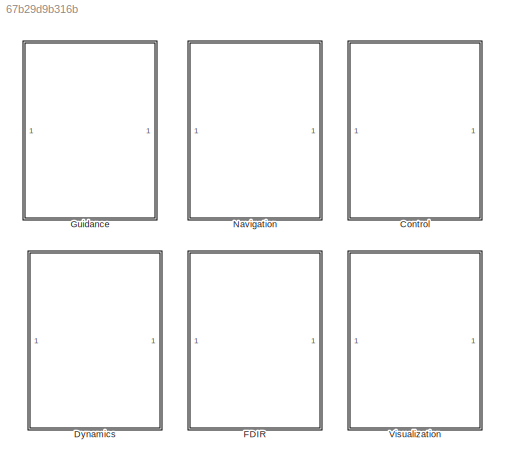
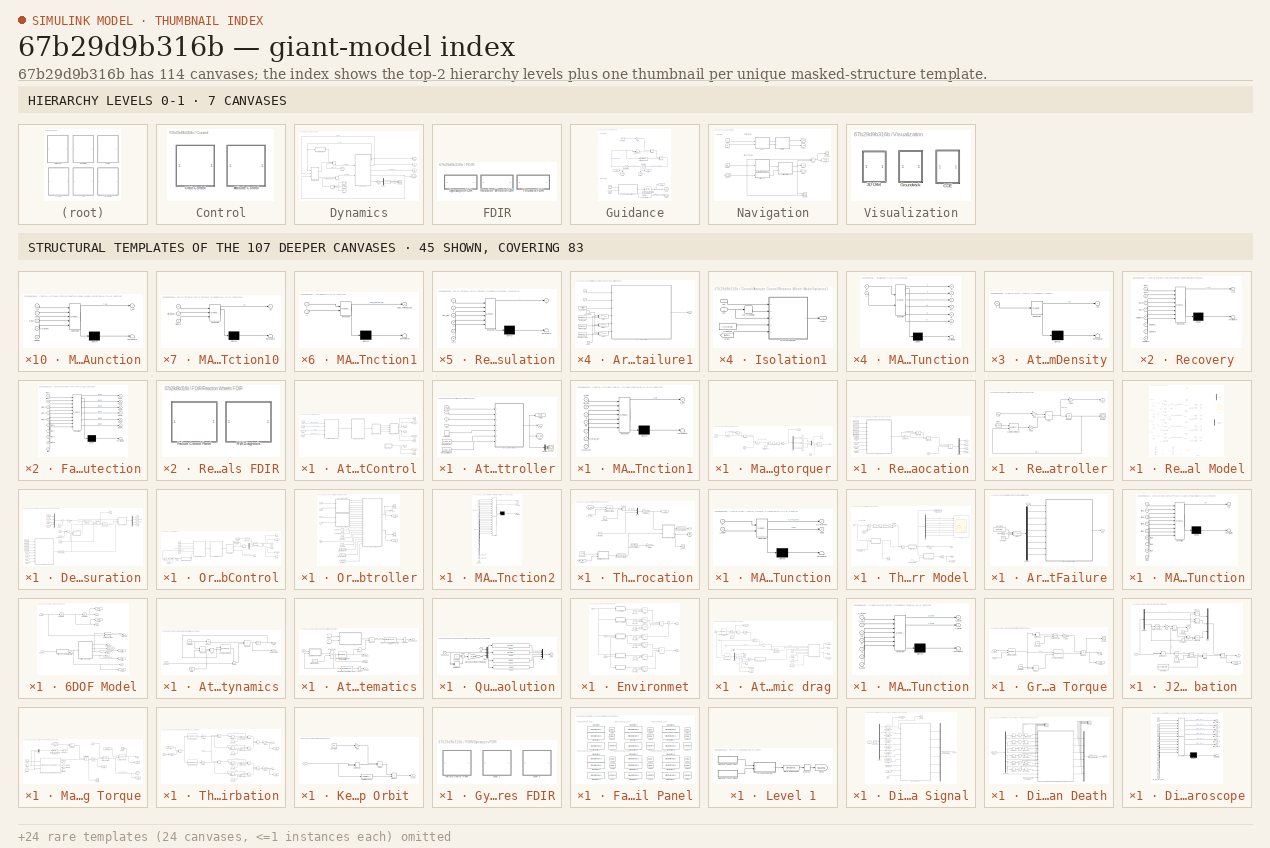
[diagram: thumbnail index - top-2 hierarchy levels (7 canvases) + 45 structural-template representatives of the remaining 107 canvases]
MODEL slx_67b29d9b316b
KIND model
CONFIG AbsTol = 1e-8
CONFIG EnableMultiTasking = off
CONFIG FixedStep = 1e-4
CONFIG MaxStep = 0.25
CONFIG MinStep = auto
CONFIG RelTol = 1e-8
CONFIG SampleTimeConstraint = Unconstrained
CONFIG SolverName = ode45
CONFIG StartTime = 0.0
CONFIG StopTime = 200
BLOCK [SubSystem] Control
  Ports = []
  RequestExecContextInheritance = off
BLOCK [SubSystem] Control/Attitude Control
  Ports = []
  RequestExecContextInheritance = off
BLOCK [SubSystem] Control/Attitude Control/Attitude Controller
  Ports = [4, 1]
  RequestExecContextInheritance = off
BLOCK [Demux] Control/Attitude Control/Attitude Controller/Demux
  Outputs = 3
  Ports = [1, 3]
BLOCK [Goto] Control/Attitude Control/Attitude Controller/Goto
  GotoTag = u_att
  TagVisibility = global
BLOCK [Constant] Control/Attitude Control/Attitude Controller/Inertia Matrix
  Value = I
BLOCK [SubSystem] Control/Attitude Control/Attitude Controller/MATLAB Function1
  ErrorFcn = Stateflow.Translate.translate
  PermitHierarchicalResolution = ExplicitOnly
  Ports = [7, 1]
  RequestExecContextInheritance = off
  SFBlockType = MATLAB Function
  SystemSampleTime = gyr.rate
  TreatAsAtomicUnit = on
BLOCK [Demux] Control/Attitude Control/Attitude Controller/MATLAB Function1/ Demux 
  Outputs = 1
  Ports = [1, 1]
BLOCK [S-Function] Control/Attitude Control/Attitude Controller/MATLAB Function1/ SFunction 
  EnableBusSupport = on
  FunctionName = sf_sfun
  PortCounts = [7 2]
  Ports = [7, 2]
  SFcnIsStateOwnerBlock = off
  SFunctionDeploymentMode = off
  Tag = Stateflow S-Function 16
BLOCK [Terminator] Control/Attitude Control/Attitude Controller/MATLAB Function1/ Terminator 
BLOCK [Inport] Control/Attitude Control/Attitude Controller/MATLAB Function1/I
  Port = 5
BLOCK [Inport] Control/Attitude Control/Attitude Controller/MATLAB Function1/e_max_att
  Port = 6
BLOCK [Inport] Control/Attitude Control/Attitude Controller/MATLAB Function1/q
  Port = 3
BLOCK [Inport] Control/Attitude Control/Attitude Controller/MATLAB Function1/q_des
BLOCK [Outport] Control/Attitude Control/Attitude Controller/MATLAB Function1/u_att
  VectorParamsAs1DForOutWhenUnconnected = off
BLOCK [Inport] Control/Attitude Control/Attitude Controller/MATLAB Function1/u_max_att
  Port = 7
BLOCK [Inport] Control/Attitude Control/Attitude Controller/MATLAB Function1/wb
  Port = 4
BLOCK [Inport] Control/Attitude Control/Attitude Controller/MATLAB Function1/wb_des
  Port = 2
BLOCK [Constant] Control/Attitude Control/Attitude Controller/Max. Control Input
  Value = u_max_att
BLOCK [Constant] Control/Attitude Control/Attitude Controller/Max. Error Allowed
  Value = e_max_att
BLOCK [Scope] Control/Attitude Control/Attitude Controller/Scope
  Floating = off
  NumInputPorts = 3
  Ports = [3]
  ScopeSpecificationString = Simulink.scopes.TimeScopeBlockCfg('CurrentConfiguration', extmgr.ConfigurationSet(extmgr.Configuration('Core','General UI',true),extmgr.Configuration('Core','Source UI',true),extmgr.Configuration('Sources','WiredSimulink',true,'DataLoggingVariableName','ScopeData1'),extmgr.Configuration('Visuals','Time Domain',true,'SerializedDisplays',{struct('MinYLimReal','-0.000002','MaxYLimReal','0.0000019','Y...<+2805ch>
BLOCK [ToFile] Control/Attitude Control/Attitude Controller/To File1
  Commented = on
  Filename = u_att.mat
  MatrixName = u_att
  Ports = [1]
BLOCK [Inport] Control/Attitude Control/Attitude Controller/q
  Port = 3
BLOCK [Inport] Control/Attitude Control/Attitude Controller/q_des
BLOCK [Outport] Control/Attitude Control/Attitude Controller/u_att
  VectorParamsAs1DForOutWhenUnconnected = off
BLOCK [Inport] Control/Attitude Control/Attitude Controller/wb
  Port = 4
BLOCK [Inport] Control/Attitude Control/Attitude Controller/wb_des
  Port = 2
BLOCK [From] Control/Attitude Control/From
  GotoTag = q_des
  TagVisibility = global
BLOCK [From] Control/Attitude Control/From1
  GotoTag = q_b_est
  TagVisibility = global
BLOCK [From] Control/Attitude Control/From2
  GotoTag = wb_est
  TagVisibility = global
BLOCK [From] Control/Attitude Control/From3
  GotoTag = wb_des
  TagVisibility = global
BLOCK [Goto] Control/Attitude Control/Goto1
  GotoTag = T_rw
  TagVisibility = global
BLOCK [Goto] Control/Attitude Control/Goto2
  GotoTag = hrw
  TagVisibility = global
BLOCK [Goto] Control/Attitude Control/Goto3
  GotoTag = T_mt
  TagVisibility = global
BLOCK [SubSystem] Control/Attitude Control/Magnetorquer
  Ports = [0, 1]
  RequestExecContextInheritance = off
BLOCK [Reference] Control/Attitude Control/Magnetorquer/3x3 Cross Product  REF=sharedutil/3x3 Cross Product
  Ports = [2, 1]
  SourceBlock = sharedutil/3x3 Cross Product
  SourceProductBaseCode = AE,PW,MT,UV,VE,VP
  SourceType = CrossProduct
BLOCK [Sum] Control/Attitude Control/Magnetorquer/Add
  IconShape = rectangular
  Ports = [2, 1]
BLOCK [Sum] Control/Attitude Control/Magnetorquer/Add1
  IconShape = rectangular
  Ports = [2, 1]
BLOCK [Sum] Control/Attitude Control/Magnetorquer/Add2
  IconShape = rectangular
  Ports = [2, 1]
BLOCK [Constant] Control/Attitude Control/Magnetorquer/Constant
  Value = A_mag
BLOCK [Demux] Control/Attitude Control/Magnetorquer/Demux
  Outputs = 6
  Ports = [1, 6]
BLOCK [From] Control/Attitude Control/Magnetorquer/From
  GotoTag = B_b
  TagVisibility = global
BLOCK [From] Control/Attitude Control/Magnetorquer/From1
  GotoTag = m_mt_c
  TagVisibility = global
BLOCK [Product] Control/Attitude Control/Magnetorquer/Matrix Divide
  Inputs = */
  Multiplication = Matrix(*)
  Ports = [2, 1]
BLOCK [Product] Control/Attitude Control/Magnetorquer/Matrix Multiply
  Multiplication = Matrix(*)
  Ports = [2, 1]
BLOCK [Mux] Control/Attitude Control/Magnetorquer/Mux
  DisplayOption = bar
  Inputs = 3
  Ports = [3, 1]
BLOCK [Product] Control/Attitude Control/Magnetorquer/Product
  Multiplication = Matrix(*)
  Ports = [2, 1]
BLOCK [Product] Control/Attitude Control/Magnetorquer/Product1
  Ports = [2, 1]
BLOCK [Quantizer] Control/Attitude Control/Magnetorquer/Quantizer
  QuantizationInterval = 2*mag.sat/(2^mag.bits-1)
BLOCK [Saturate] Control/Attitude Control/Magnetorquer/Saturation
  LowerLimit = -ones(6,1)*mag.sat
  UpperLimit = ones(6,1)*mag.sat
BLOCK [Scope] Control/Attitude Control/Magnetorquer/Scope
  Floating = off
  NumInputPorts = 1
  Ports = [1]
  ScopeSpecificationString = Simulink.scopes.TimeScopeBlockCfg('CurrentConfiguration', extmgr.ConfigurationSet(extmgr.Configuration('Core','General UI',true),extmgr.Configuration('Core','Source UI',true),extmgr.Configuration('Sources','WiredSimulink',true,'DataLoggingVariableName','ScopeData3'),extmgr.Configuration('Visuals','Time Domain',true,'SerializedDisplays',{struct('MinYLimReal','-0.00914','MaxYLimReal','0.0021','YLabe...<+1447ch>
BLOCK [Outport] Control/Attitude Control/Magnetorquer/T_mt
  VectorParamsAs1DForOutWhenUnconnected = off
BLOCK [ToFile] Control/Attitude Control/Magnetorquer/To File3
  Commented = on
  Filename = m_mt.mat
  MatrixName = m_mt
  Ports = [1]
BLOCK [Math] Control/Attitude Control/Magnetorquer/Transpose
  Operator = transpose
  Ports = [1, 1]
  SignedPower = on
BLOCK [UniformRandomNumber] Control/Attitude Control/Magnetorquer/Uniform Random Number2
  Maximum = (100+mag.error/3)/100
  Minimum = (100-mag.error/3)/100
  Seed = [30 31 32 33 34 35]
BLOCK [RateTransition] Control/Attitude Control/Magnetorquer/Update Rate
  InitialCondition = zeros(6,1)
  OutPortSampleTime = mag.rate
BLOCK [SubSystem] Control/Attitude Control/Reaction Wheel Allocation
  Ports = [1, 4]
  RequestExecContextInheritance = off
BLOCK [Constant] Control/Attitude Control/Reaction Wheel Allocation/Constant
  Value = RW1.pos
BLOCK [Constant] Control/Attitude Control/Reaction Wheel Allocation/Constant1
  Value = RW2.pos
BLOCK [Constant] Control/Attitude Control/Reaction Wheel Allocation/Constant2
  Value = RW3.pos
BLOCK [Constant] Control/Attitude Control/Reaction Wheel Allocation/Constant3
  Value = RW4.pos
BLOCK [Demux] Control/Attitude Control/Reaction Wheel Allocation/Demux
  Ports = [1, 4]
BLOCK [From] Control/Attitude Control/Reaction Wheel Allocation/From
  GotoTag = flagRW1
  TagVisibility = global
BLOCK [From] Control/Attitude Control/Reaction Wheel Allocation/From1
  GotoTag = flagRW2
  TagVisibility = global
BLOCK [From] Control/Attitude Control/Reaction Wheel Allocation/From2
  GotoTag = flagRW3
  TagVisibility = global
BLOCK [From] Control/Attitude Control/Reaction Wheel Allocation/From3
  GotoTag = flagRW4
  TagVisibility = global
BLOCK [Product] Control/Attitude Control/Reaction Wheel Allocation/Matrix Divide
  Inputs = */
  Multiplication = Matrix(*)
  Ports = [2, 1]
BLOCK [Product] Control/Attitude Control/Reaction Wheel Allocation/Matrix Multiply
  Multiplication = Matrix(*)
  Ports = [2, 1]
BLOCK [Product] Control/Attitude Control/Reaction Wheel Allocation/Product
  Multiplication = Matrix(*)
  Ports = [2, 1]
BLOCK [SubSystem] Control/Attitude Control/Reaction Wheel Allocation/Recovery
  ErrorFcn = Stateflow.Translate.translate
  PermitHierarchicalResolution = ExplicitOnly
  Ports = [8, 1]
  RequestExecContextInheritance = off
  SFBlockType = MATLAB Function
  TreatAsAtomicUnit = on
BLOCK [Demux] Control/Attitude Control/Reaction Wheel Allocation/Recovery/ Demux 
  Outputs = 1
  Ports = [1, 1]
BLOCK [S-Function] Control/Attitude Control/Reaction Wheel Allocation/Recovery/ SFunction 
  EnableBusSupport = on
  FunctionName = sf_sfun
  PortCounts = [8 2]
  Ports = [8, 2]
  SFcnIsStateOwnerBlock = off
  SFunctionDeploymentMode = off
  Tag = Stateflow S-Function 36
BLOCK [Terminator] Control/Attitude Control/Reaction Wheel Allocation/Recovery/ Terminator 
BLOCK [Outport] Control/Attitude Control/Reaction Wheel Allocation/Recovery/A_rw
  VectorParamsAs1DForOutWhenUnconnected = off
BLOCK [Inport] Control/Attitude Control/Reaction Wheel Allocation/Recovery/RW1
BLOCK [Inport] Control/Attitude Control/Reaction Wheel Allocation/Recovery/RW2
  Port = 2
BLOCK [Inport] Control/Attitude Control/Reaction Wheel Allocation/Recovery/RW3
  Port = 3
BLOCK [Inport] Control/Attitude Control/Reaction Wheel Allocation/Recovery/RW4
  Port = 4
BLOCK [Inport] Control/Attitude Control/Reaction Wheel Allocation/Recovery/flagRW1
  Port = 5
BLOCK [Inport] Control/Attitude Control/Reaction Wheel Allocation/Recovery/flagRW2
  Port = 6
BLOCK [Inport] Control/Attitude Control/Reaction Wheel Allocation/Recovery/flagRW3
  Port = 7
BLOCK [Inport] Control/Attitude Control/Reaction Wheel Allocation/Recovery/flagRW4
  Port = 8
BLOCK [Outport] Control/Attitude Control/Reaction Wheel Allocation/T_RW1_c
  VectorParamsAs1DForOutWhenUnconnected = off
BLOCK [Outport] Control/Attitude Control/Reaction Wheel Allocation/T_RW2_c
  Port = 2
  VectorParamsAs1DForOutWhenUnconnected = off
BLOCK [Outport] Control/Attitude Control/Reaction Wheel Allocation/T_RW3_c
  Port = 3
  VectorParamsAs1DForOutWhenUnconnected = off
BLOCK [Outport] Control/Attitude Control/Reaction Wheel Allocation/T_RW4_c
  Port = 4
  VectorParamsAs1DForOutWhenUnconnected = off
BLOCK [Inport] Control/Attitude Control/Reaction Wheel Allocation/T_rw_c
BLOCK [Math] Control/Attitude Control/Reaction Wheel Allocation/Transpose
  Operator = transpose
  Ports = [1, 1]
  SignedPower = on
BLOCK [SubSystem] Control/Attitude Control/Reaction Wheel Controller
  Ports = [1, 1]
  RequestExecContextInheritance = off
BLOCK [Reference] Control/Attitude Control/Reaction Wheel Controller/3x3 Cross Product  REF=sharedutil/3x3 Cross Product
  Ports = [2, 1]
  SourceBlock = sharedutil/3x3 Cross Product
  SourceProductBaseCode = AE,PW,MT,UV,VE,VP
  SourceType = CrossProduct
BLOCK [Sum] Control/Attitude Control/Reaction Wheel Controller/Add1
  IconShape = rectangular
  Ports = [2, 1]
BLOCK [From] Control/Attitude Control/Reaction Wheel Controller/From
  GotoTag = wb_est
  TagVisibility = global
BLOCK [Gain] Control/Attitude Control/Reaction Wheel Controller/Gain
  Gain = -1
BLOCK [Gain] Control/Attitude Control/Reaction Wheel Controller/Gain1
  Gain = -1
BLOCK [Gain] Control/Attitude Control/Reaction Wheel Controller/Gain3
  Gain = -1
BLOCK [Integrator] Control/Attitude Control/Reaction Wheel Controller/Integrator
  InitialCondition = h_rw_0
  Ports = [1, 1]
BLOCK [Scope] Control/Attitude Control/Reaction Wheel Controller/Scope
  Floating = off
  NumInputPorts = 1
  Ports = [1]
  ScopeSpecificationString = Simulink.scopes.TimeScopeBlockCfg('CurrentConfiguration', extmgr.ConfigurationSet(extmgr.Configuration('Core','General UI',true),extmgr.Configuration('Core','Source UI',true),extmgr.Configuration('Sources','WiredSimulink',true,'DataLoggingVariableName','ScopeData1'),extmgr.Configuration('Visuals','Time Domain',true,'SerializedDisplays',{struct('MinYLimReal','-0.000021','MaxYLimReal','0.000009','YL...<+1448ch>
BLOCK [Outport] Control/Attitude Control/Reaction Wheel Controller/T_rw_c
  VectorParamsAs1DForOutWhenUnconnected = off
BLOCK [Inport] Control/Attitude Control/Reaction Wheel Controller/u_att
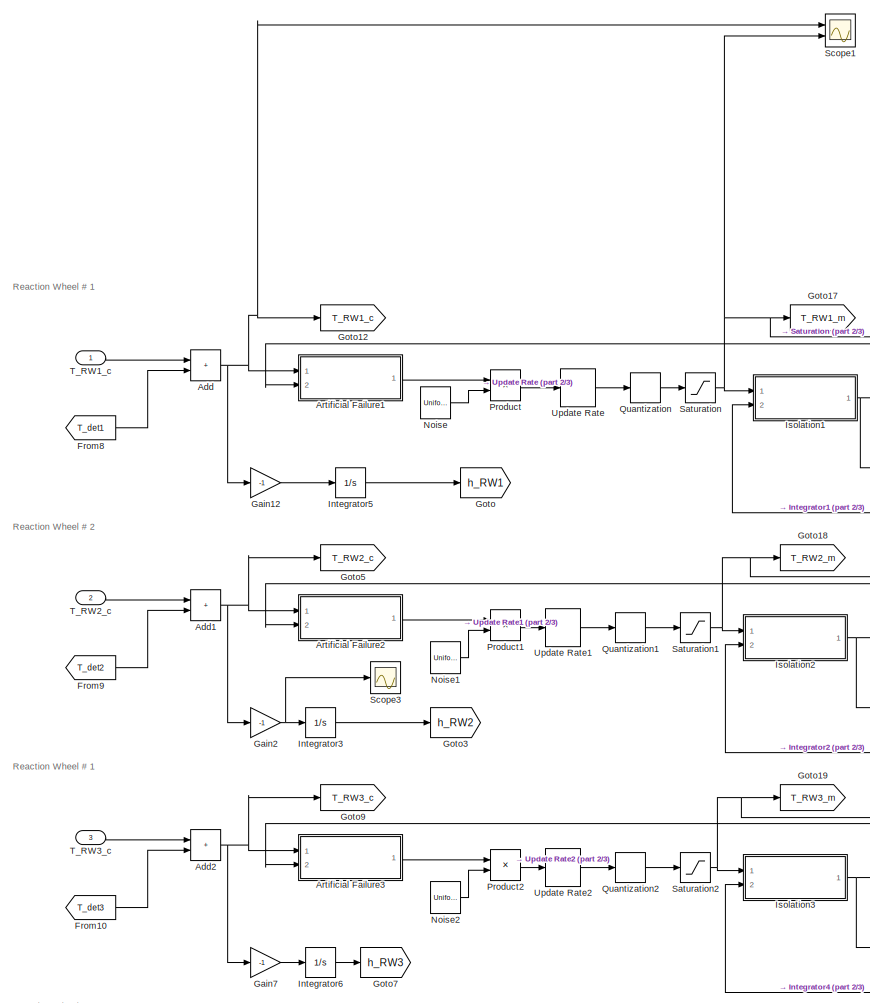
[diagram: Control/Attitude Control/Reaction Wheel Model - part 1/3, middle left region]
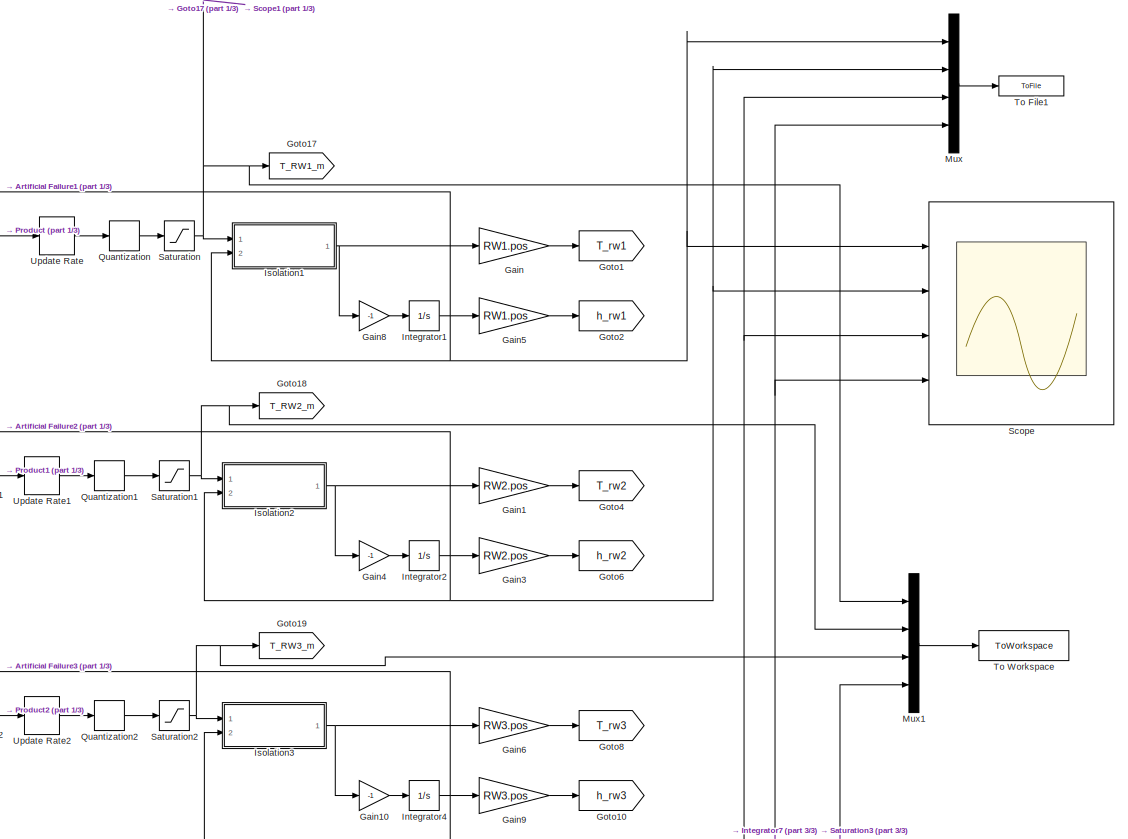
[diagram: Control/Attitude Control/Reaction Wheel Model - part 2/3, central region]
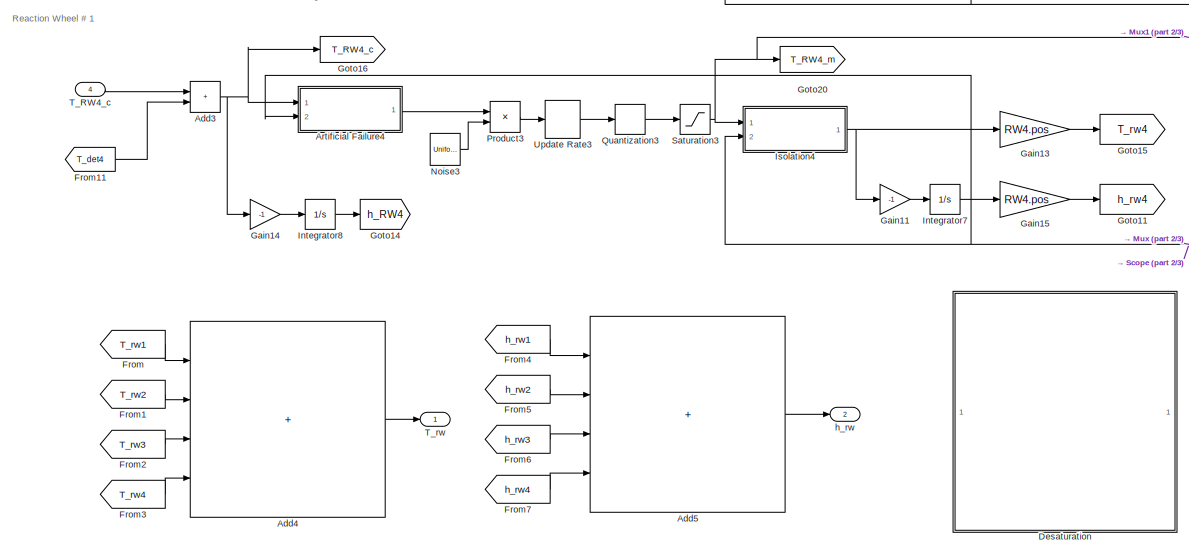
[diagram: Control/Attitude Control/Reaction Wheel Model - part 3/3, bottom center region]
BLOCK [SubSystem] Control/Attitude Control/Reaction Wheel Model
  Ports = [4, 2]
  RequestExecContextInheritance = off
BLOCK [Sum] Control/Attitude Control/Reaction Wheel Model/Add
  IconShape = rectangular
  Ports = [2, 1]
BLOCK [Sum] Control/Attitude Control/Reaction Wheel Model/Add1
  IconShape = rectangular
  Ports = [2, 1]
BLOCK [Sum] Control/Attitude Control/Reaction Wheel Model/Add2
  IconShape = rectangular
  Ports = [2, 1]
BLOCK [Sum] Control/Attitude Control/Reaction Wheel Model/Add3
  IconShape = rectangular
  Ports = [2, 1]
BLOCK [Sum] Control/Attitude Control/Reaction Wheel Model/Add4
  IconShape = rectangular
  Inputs = ++++
  Ports = [4, 1]
BLOCK [Sum] Control/Attitude Control/Reaction Wheel Model/Add5
  IconShape = rectangular
  Inputs = ++++
  Ports = [4, 1]
BLOCK [SubSystem] Control/Attitude Control/Reaction Wheel Model/Artificial Failure1
  Ports = [2, 1]
  RequestExecContextInheritance = off
BLOCK [Constant] Control/Attitude Control/Reaction Wheel Model/Artificial Failure1/Accuracy Loss
  Value = ReWhe(3,1)
BLOCK [Clock] Control/Attitude Control/Reaction Wheel Model/Artificial Failure1/Clock
BLOCK [Constant] Control/Attitude Control/Reaction Wheel Model/Artificial Failure1/Constant
  Value = T_friction
BLOCK [Constant] Control/Attitude Control/Reaction Wheel Model/Artificial Failure1/Constant1
  Value = 0
  VectorParams1D = off
BLOCK [Constant] Control/Attitude Control/Reaction Wheel Model/Artificial Failure1/Friction Failure
  Value = ReWhe(2,1)
BLOCK [Inport] Control/Attitude Control/Reaction Wheel Model/Artificial Failure1/In1
BLOCK [Inport] Control/Attitude Control/Reaction Wheel Model/Artificial Failure1/In2
  Port = 2
BLOCK [SubSystem] Control/Attitude Control/Reaction Wheel Model/Artificial Failure1/MATLAB Function
  ErrorFcn = Stateflow.Translate.translate
  PermitHierarchicalResolution = ExplicitOnly
  Ports = [6, 1]
  RequestExecContextInheritance = off
  SFBlockType = MATLAB Function
  TreatAsAtomicUnit = on
BLOCK [Demux] Control/Attitude Control/Reaction Wheel Model/Artificial Failure1/MATLAB Function/ Demux 
  Outputs = 1
  Ports = [1, 1]
BLOCK [S-Function] Control/Attitude Control/Reaction Wheel Model/Artificial Failure1/MATLAB Function/ SFunction 
  EnableBusSupport = on
  FunctionName = sf_sfun
  PortCounts = [6 2]
  Ports = [6, 2]
  SFcnIsStateOwnerBlock = off
  SFunctionDeploymentMode = off
  Tag = Stateflow S-Function 1
BLOCK [Terminator] Control/Attitude Control/Reaction Wheel Model/Artificial Failure1/MATLAB Function/ Terminator 
BLOCK [Inport] Control/Attitude Control/Reaction Wheel Model/Artificial Failure1/MATLAB Function/T_friction
  Port = 3
BLOCK [Inport] Control/Attitude Control/Reaction Wheel Model/Artificial Failure1/MATLAB Function/flag1
  Port = 4
BLOCK [Inport] Control/Attitude Control/Reaction Wheel Model/Artificial Failure1/MATLAB Function/flag2
  Port = 5
BLOCK [Inport] Control/Attitude Control/Reaction Wheel Model/Artificial Failure1/MATLAB Function/flag3
  Port = 6
BLOCK [Inport] Control/Attitude Control/Reaction Wheel Model/Artificial Failure1/MATLAB Function/h_RW
  Port = 2
BLOCK [Inport] Control/Attitude Control/Reaction Wheel Model/Artificial Failure1/MATLAB Function/in
BLOCK [Outport] Control/Attitude Control/Reaction Wheel Model/Artificial Failure1/MATLAB Function/out
  VectorParamsAs1DForOutWhenUnconnected = off
BLOCK [Constant] Control/Attitude Control/Reaction Wheel Model/Artificial Failure1/Motor Failure
  Value = ReWhe(1,1)
BLOCK [Outport] Control/Attitude Control/Reaction Wheel Model/Artificial Failure1/Out1
  VectorParamsAs1DForOutWhenUnconnected = off
BLOCK [Switch] Control/Attitude Control/Reaction Wheel Model/Artificial Failure1/Switch
  Criteria = u2 > Threshold
  InputSameDT = off
  SaturateOnIntegerOverflow = off
  Threshold = 25+(150*rand)
BLOCK [Switch] Control/Attitude Control/Reaction Wheel Model/Artificial Failure1/Switch1
  Criteria = u2 > Threshold
  InputSameDT = off
  SaturateOnIntegerOverflow = off
  Threshold = 25+(150*rand)
BLOCK [Switch] Control/Attitude Control/Reaction Wheel Model/Artificial Failure1/Switch2
  Criteria = u2 > Threshold
  InputSameDT = off
  SaturateOnIntegerOverflow = off
  Threshold = 25+(150*rand)
BLOCK [SubSystem] Control/Attitude Control/Reaction Wheel Model/Artificial Failure2
  Ports = [2, 1]
  RequestExecContextInheritance = off
BLOCK [Constant] Control/Attitude Control/Reaction Wheel Model/Artificial Failure2/Accuracy Loss
  Value = ReWhe(3,2)
BLOCK [Clock] Control/Attitude Control/Reaction Wheel Model/Artificial Failure2/Clock
BLOCK [Constant] Control/Attitude Control/Reaction Wheel Model/Artificial Failure2/Constant
  Value = T_friction
BLOCK [Constant] Control/Attitude Control/Reaction Wheel Model/Artificial Failure2/Constant1
  Value = 0
  VectorParams1D = off
BLOCK [Constant] Control/Attitude Control/Reaction Wheel Model/Artificial Failure2/Friction Failure
  Value = ReWhe(2,2)
BLOCK [Inport] Control/Attitude Control/Reaction Wheel Model/Artificial Failure2/In1
BLOCK [Inport] Control/Attitude Control/Reaction Wheel Model/Artificial Failure2/In2
  Port = 2
BLOCK [SubSystem] Control/Attitude Control/Reaction Wheel Model/Artificial Failure2/MATLAB Function
  ErrorFcn = Stateflow.Translate.translate
  PermitHierarchicalResolution = ExplicitOnly
  Ports = [6, 1]
  RequestExecContextInheritance = off
  SFBlockType = MATLAB Function
  TreatAsAtomicUnit = on
BLOCK [Demux] Control/Attitude Control/Reaction Wheel Model/Artificial Failure2/MATLAB Function/ Demux 
  Outputs = 1
  Ports = [1, 1]
BLOCK [S-Function] Control/Attitude Control/Reaction Wheel Model/Artificial Failure2/MATLAB Function/ SFunction 
  EnableBusSupport = on
  FunctionName = sf_sfun
  PortCounts = [6 2]
  Ports = [6, 2]
  SFcnIsStateOwnerBlock = off
  SFunctionDeploymentMode = off
  Tag = Stateflow S-Function 30
BLOCK [Terminator] Control/Attitude Control/Reaction Wheel Model/Artificial Failure2/MATLAB Function/ Terminator 
BLOCK [Inport] Control/Attitude Control/Reaction Wheel Model/Artificial Failure2/MATLAB Function/T_friction
  Port = 3
BLOCK [Inport] Control/Attitude Control/Reaction Wheel Model/Artificial Failure2/MATLAB Function/flag1
  Port = 4
BLOCK [Inport] Control/Attitude Control/Reaction Wheel Model/Artificial Failure2/MATLAB Function/flag2
  Port = 5
BLOCK [Inport] Control/Attitude Control/Reaction Wheel Model/Artificial Failure2/MATLAB Function/flag3
  Port = 6
BLOCK [Inport] Control/Attitude Control/Reaction Wheel Model/Artificial Failure2/MATLAB Function/h_RW
  Port = 2
BLOCK [Inport] Control/Attitude Control/Reaction Wheel Model/Artificial Failure2/MATLAB Function/in
BLOCK [Outport] Control/Attitude Control/Reaction Wheel Model/Artificial Failure2/MATLAB Function/out
  VectorParamsAs1DForOutWhenUnconnected = off
BLOCK [Constant] Control/Attitude Control/Reaction Wheel Model/Artificial Failure2/Motor Failure
  Value = ReWhe(1,2)
BLOCK [Outport] Control/Attitude Control/Reaction Wheel Model/Artificial Failure2/Out1
  VectorParamsAs1DForOutWhenUnconnected = off
BLOCK [Switch] Control/Attitude Control/Reaction Wheel Model/Artificial Failure2/Switch
  Criteria = u2 > Threshold
  InputSameDT = off
  SaturateOnIntegerOverflow = off
  Threshold = 25+(150*rand)
BLOCK [Switch] Control/Attitude Control/Reaction Wheel Model/Artificial Failure2/Switch1
  Criteria = u2 > Threshold
  InputSameDT = off
  SaturateOnIntegerOverflow = off
  Threshold = 25+(150*rand)
BLOCK [Switch] Control/Attitude Control/Reaction Wheel Model/Artificial Failure2/Switch2
  Criteria = u2 > Threshold
  InputSameDT = off
  SaturateOnIntegerOverflow = off
  Threshold = 25+(150*rand)
BLOCK [SubSystem] Control/Attitude Control/Reaction Wheel Model/Artificial Failure3
  Ports = [2, 1]
  RequestExecContextInheritance = off
BLOCK [Constant] Control/Attitude Control/Reaction Wheel Model/Artificial Failure3/Accuracy Loss
  Value = ReWhe(3,3)
BLOCK [Clock] Control/Attitude Control/Reaction Wheel Model/Artificial Failure3/Clock
BLOCK [Constant] Control/Attitude Control/Reaction Wheel Model/Artificial Failure3/Constant
  Value = T_friction
BLOCK [Constant] Control/Attitude Control/Reaction Wheel Model/Artificial Failure3/Constant1
  Value = 0
  VectorParams1D = off
BLOCK [Constant] Control/Attitude Control/Reaction Wheel Model/Artificial Failure3/Friction Failure
  Value = ReWhe(2,3)
BLOCK [Inport] Control/Attitude Control/Reaction Wheel Model/Artificial Failure3/In1
BLOCK [Inport] Control/Attitude Control/Reaction Wheel Model/Artificial Failure3/In2
  Port = 2
BLOCK [SubSystem] Control/Attitude Control/Reaction Wheel Model/Artificial Failure3/MATLAB Function
  ErrorFcn = Stateflow.Translate.translate
  PermitHierarchicalResolution = ExplicitOnly
  Ports = [6, 1]
  RequestExecContextInheritance = off
  SFBlockType = MATLAB Function
  TreatAsAtomicUnit = on
BLOCK [Demux] Control/Attitude Control/Reaction Wheel Model/Artificial Failure3/MATLAB Function/ Demux 
  Outputs = 1
  Ports = [1, 1]
BLOCK [S-Function] Control/Attitude Control/Reaction Wheel Model/Artificial Failure3/MATLAB Function/ SFunction 
  EnableBusSupport = on
  FunctionName = sf_sfun
  PortCounts = [6 2]
  Ports = [6, 2]
  SFcnIsStateOwnerBlock = off
  SFunctionDeploymentMode = off
  Tag = Stateflow S-Function 32
BLOCK [Terminator] Control/Attitude Control/Reaction Wheel Model/Artificial Failure3/MATLAB Function/ Terminator 
BLOCK [Inport] Control/Attitude Control/Reaction Wheel Model/Artificial Failure3/MATLAB Function/T_friction
  Port = 3
BLOCK [Inport] Control/Attitude Control/Reaction Wheel Model/Artificial Failure3/MATLAB Function/flag1
  Port = 4
BLOCK [Inport] Control/Attitude Control/Reaction Wheel Model/Artificial Failure3/MATLAB Function/flag2
  Port = 5
BLOCK [Inport] Control/Attitude Control/Reaction Wheel Model/Artificial Failure3/MATLAB Function/flag3
  Port = 6
BLOCK [Inport] Control/Attitude Control/Reaction Wheel Model/Artificial Failure3/MATLAB Function/h_RW
  Port = 2
BLOCK [Inport] Control/Attitude Control/Reaction Wheel Model/Artificial Failure3/MATLAB Function/in
BLOCK [Outport] Control/Attitude Control/Reaction Wheel Model/Artificial Failure3/MATLAB Function/out
  VectorParamsAs1DForOutWhenUnconnected = off
BLOCK [Constant] Control/Attitude Control/Reaction Wheel Model/Artificial Failure3/Motor Failure
  Value = ReWhe(1,3)
BLOCK [Outport] Control/Attitude Control/Reaction Wheel Model/Artificial Failure3/Out1
  VectorParamsAs1DForOutWhenUnconnected = off
BLOCK [Switch] Control/Attitude Control/Reaction Wheel Model/Artificial Failure3/Switch
  Criteria = u2 > Threshold
  InputSameDT = off
  SaturateOnIntegerOverflow = off
  Threshold = 25+(150*rand)
BLOCK [Switch] Control/Attitude Control/Reaction Wheel Model/Artificial Failure3/Switch1
  Criteria = u2 > Threshold
  InputSameDT = off
  SaturateOnIntegerOverflow = off
  Threshold = 25+(150*rand)
BLOCK [Switch] Control/Attitude Control/Reaction Wheel Model/Artificial Failure3/Switch2
  Criteria = u2 > Threshold
  InputSameDT = off
  SaturateOnIntegerOverflow = off
  Threshold = 25+(150*rand)
BLOCK [SubSystem] Control/Attitude Control/Reaction Wheel Model/Artificial Failure4
  Ports = [2, 1]
  RequestExecContextInheritance = off
BLOCK [Constant] Control/Attitude Control/Reaction Wheel Model/Artificial Failure4/Accuracy Loss
  Value = ReWhe(3,4)
BLOCK [Clock] Control/Attitude Control/Reaction Wheel Model/Artificial Failure4/Clock
BLOCK [Constant] Control/Attitude Control/Reaction Wheel Model/Artificial Failure4/Constant
  Value = T_friction
BLOCK [Constant] Control/Attitude Control/Reaction Wheel Model/Artificial Failure4/Constant1
  Value = 0
  VectorParams1D = off
BLOCK [Constant] Control/Attitude Control/Reaction Wheel Model/Artificial Failure4/Friction Failure
  Value = ReWhe(2,4)
BLOCK [Inport] Control/Attitude Control/Reaction Wheel Model/Artificial Failure4/In1
BLOCK [Inport] Control/Attitude Control/Reaction Wheel Model/Artificial Failure4/In2
  Port = 2
BLOCK [SubSystem] Control/Attitude Control/Reaction Wheel Model/Artificial Failure4/MATLAB Function
  ErrorFcn = Stateflow.Translate.translate
  PermitHierarchicalResolution = ExplicitOnly
  Ports = [6, 1]
  RequestExecContextInheritance = off
  SFBlockType = MATLAB Function
  TreatAsAtomicUnit = on
BLOCK [Demux] Control/Attitude Control/Reaction Wheel Model/Artificial Failure4/MATLAB Function/ Demux 
  Outputs = 1
  Ports = [1, 1]
BLOCK [S-Function] Control/Attitude Control/Reaction Wheel Model/Artificial Failure4/MATLAB Function/ SFunction 
  EnableBusSupport = on
  FunctionName = sf_sfun
  PortCounts = [6 2]
  Ports = [6, 2]
  SFcnIsStateOwnerBlock = off
  SFunctionDeploymentMode = off
  Tag = Stateflow S-Function 44
BLOCK [Terminator] Control/Attitude Control/Reaction Wheel Model/Artificial Failure4/MATLAB Function/ Terminator 
BLOCK [Inport] Control/Attitude Control/Reaction Wheel Model/Artificial Failure4/MATLAB Function/T_friction
  Port = 3
BLOCK [Inport] Control/Attitude Control/Reaction Wheel Model/Artificial Failure4/MATLAB Function/flag1
  Port = 4
BLOCK [Inport] Control/Attitude Control/Reaction Wheel Model/Artificial Failure4/MATLAB Function/flag2
  Port = 5
BLOCK [Inport] Control/Attitude Control/Reaction Wheel Model/Artificial Failure4/MATLAB Function/flag3
  Port = 6
BLOCK [Inport] Control/Attitude Control/Reaction Wheel Model/Artificial Failure4/MATLAB Function/h_RW
  Port = 2
BLOCK [Inport] Control/Attitude Control/Reaction Wheel Model/Artificial Failure4/MATLAB Function/in
BLOCK [Outport] Control/Attitude Control/Reaction Wheel Model/Artificial Failure4/MATLAB Function/out
  VectorParamsAs1DForOutWhenUnconnected = off
BLOCK [Constant] Control/Attitude Control/Reaction Wheel Model/Artificial Failure4/Motor Failure
  Value = ReWhe(1,4)
BLOCK [Outport] Control/Attitude Control/Reaction Wheel Model/Artificial Failure4/Out1
  VectorParamsAs1DForOutWhenUnconnected = off
BLOCK [Switch] Control/Attitude Control/Reaction Wheel Model/Artificial Failure4/Switch
  Criteria = u2 > Threshold
  InputSameDT = off
  SaturateOnIntegerOverflow = off
  Threshold = 25+(150*rand)
BLOCK [Switch] Control/Attitude Control/Reaction Wheel Model/Artificial Failure4/Switch1
  Criteria = u2 > Threshold
  InputSameDT = off
  SaturateOnIntegerOverflow = off
  Threshold = 25+(150*rand)
BLOCK [Switch] Control/Attitude Control/Reaction Wheel Model/Artificial Failure4/Switch2
  Criteria = u2 > Threshold
  InputSameDT = off
  SaturateOnIntegerOverflow = off
  Threshold = 25+(150*rand)
BLOCK [SubSystem] Control/Attitude Control/Reaction Wheel Model/Desaturation
  Ports = []
  RequestExecContextInheritance = off
BLOCK [Reference] Control/Attitude Control/Reaction Wheel Model/Desaturation/3x3 Cross Product  REF=sharedutil/3x3 Cross Product
  Ports = [2, 1]
  SourceBlock = sharedutil/3x3 Cross Product
  SourceProductBaseCode = AE,PW,MT,UV,VE,VP
  SourceType = CrossProduct
BLOCK [Sum] Control/Attitude Control/Reaction Wheel Model/Desaturation/Add
  IconShape = rectangular
  Ports = [2, 1]
BLOCK [Constant] Control/Attitude Control/Reaction Wheel Model/Desaturation/Constant
  Value = h_ref
BLOCK [Constant] Control/Attitude Control/Reaction Wheel Model/Desaturation/Constant1
  Value = A_mag
BLOCK [Constant] Control/Attitude Control/Reaction Wheel Model/Desaturation/Constant3
  Value = RW1.pos
BLOCK [Constant] Control/Attitude Control/Reaction Wheel Model/Desaturation/Constant4
  Value = RW2.pos
BLOCK [Constant] Control/Attitude Control/Reaction Wheel Model/Desaturation/Constant5
  Value = RW3.pos
BLOCK [Constant] Control/Attitude Control/Reaction Wheel Model/Desaturation/Constant6
  Value = RW4.pos
BLOCK [Demux] Control/Attitude Control/Reaction Wheel Model/Desaturation/Demux
  Ports = [1, 4]
BLOCK [From] Control/Attitude Control/Reaction Wheel Model/Desaturation/From
  GotoTag = h_RW1
  TagVisibility = global
BLOCK [From] Control/Attitude Control/Reaction Wheel Model/Desaturation/From1
  GotoTag = h_RW2
  TagVisibility = global
BLOCK [From] Control/Attitude Control/Reaction Wheel Model/Desaturation/From2
  GotoTag = h_RW3
  TagVisibility = global
BLOCK [From] Control/Attitude Control/Reaction Wheel Model/Desaturation/From3
  GotoTag = h_RW4
  TagVisibility = global
BLOCK [From] Control/Attitude Control/Reaction Wheel Model/Desaturation/From4
  GotoTag = B_b
  TagVisibility = global
BLOCK [From] Control/Attitude Control/Reaction Wheel Model/Desaturation/From5
  GotoTag = flagRW1
  TagVisibility = global
BLOCK [From] Control/Attitude Control/Reaction Wheel Model/Desaturation/From6
  GotoTag = flagRW2
  TagVisibility = global
BLOCK [From] Control/Attitude Control/Reaction Wheel Model/Desaturation/From7
  GotoTag = flagRW3
  TagVisibility = global
BLOCK [From] Control/Attitude Control/Reaction Wheel Model/Desaturation/From8
  GotoTag = flagRW4
  TagVisibility = global
BLOCK [Gain] Control/Attitude Control/Reaction Wheel Model/Desaturation/Gain
  Gain = -K_det
BLOCK [Goto] Control/Attitude Control/Reaction Wheel Model/Desaturation/Goto
  GotoTag = m_mt_c
  TagVisibility = global
BLOCK [Goto] Control/Attitude Control/Reaction Wheel Model/Desaturation/Goto1
  GotoTag = T_det1
  TagVisibility = global
BLOCK [Goto] Control/Attitude Control/Reaction Wheel Model/Desaturation/Goto2
  GotoTag = T_det2
  TagVisibility = global
BLOCK [Goto] Control/Attitude Control/Reaction Wheel Model/Desaturation/Goto3
  GotoTag = T_det3
  TagVisibility = global
BLOCK [Goto] Control/Attitude Control/Reaction Wheel Model/Desaturation/Goto4
  GotoTag = T_det4
  TagVisibility = global
BLOCK [SubSystem] Control/Attitude Control/Reaction Wheel Model/Desaturation/MATLAB Function
  ErrorFcn = Stateflow.Translate.translate
  PermitHierarchicalResolution = ExplicitOnly
  Ports = [3, 1]
  RequestExecContextInheritance = off
  SFBlockType = MATLAB Function
  TreatAsAtomicUnit = on
BLOCK [Demux] Control/Attitude Control/Reaction Wheel Model/Desaturation/MATLAB Function/ Demux 
  Outputs = 1
  Ports = [1, 1]
BLOCK [S-Function] Control/Attitude Control/Reaction Wheel Model/Desaturation/MATLAB Function/ SFunction 
  EnableBusSupport = on
  FunctionName = sf_sfun
  PortCounts = [3 2]
  Ports = [3, 2]
  SFcnIsStateOwnerBlock = off
  SFunctionDeploymentMode = off
  Tag = Stateflow S-Function 20
BLOCK [Terminator] Control/Attitude Control/Reaction Wheel Model/Desaturation/MATLAB Function/ Terminator 
BLOCK [Inport] Control/Attitude Control/Reaction Wheel Model/Desaturation/MATLAB Function/A_mag
  Port = 2
BLOCK [Inport] Control/Attitude Control/Reaction Wheel Model/Desaturation/MATLAB Function/A_rw
  Port = 3
BLOCK [Inport] Control/Attitude Control/Reaction Wheel Model/Desaturation/MATLAB Function/B_b
BLOCK [Outport] Control/Attitude Control/Reaction Wheel Model/Desaturation/MATLAB Function/y
  VectorParamsAs1DForOutWhenUnconnected = off
BLOCK [SubSystem] Control/Attitude Control/Reaction Wheel Model/Desaturation/MATLAB Function1
  ErrorFcn = Stateflow.Translate.translate
  PermitHierarchicalResolution = ExplicitOnly
  Ports = [3, 1]
  RequestExecContextInheritance = off
  SFBlockType = MATLAB Function
  TreatAsAtomicUnit = on
BLOCK [Demux] Control/Attitude Control/Reaction Wheel Model/Desaturation/MATLAB Function1/ Demux 
  Outputs = 1
  Ports = [1, 1]
BLOCK [S-Function] Control/Attitude Control/Reaction Wheel Model/Desaturation/MATLAB Function1/ SFunction 
  EnableBusSupport = on
  FunctionName = sf_sfun
  PortCounts = [3 2]
  Ports = [3, 2]
  SFcnIsStateOwnerBlock = off
  SFunctionDeploymentMode = off
  Tag = Stateflow S-Function 22
BLOCK [Terminator] Control/Attitude Control/Reaction Wheel Model/Desaturation/MATLAB Function1/ Terminator 
BLOCK [Inport] Control/Attitude Control/Reaction Wheel Model/Desaturation/MATLAB Function1/A_rw
  Port = 3
BLOCK [Outport] Control/Attitude Control/Reaction Wheel Model/Desaturation/MATLAB Function1/T_det
  VectorParamsAs1DForOutWhenUnconnected = off
BLOCK [Inport] Control/Attitude Control/Reaction Wheel Model/Desaturation/MATLAB Function1/T_mt
  Port = 2
BLOCK [Inport] Control/Attitude Control/Reaction Wheel Model/Desaturation/MATLAB Function1/us
BLOCK [Product] Control/Attitude Control/Reaction Wheel Model/Desaturation/Matrix Multiply
  Multiplication = Matrix(*)
  Ports = [2, 1]
BLOCK [Product] Control/Attitude Control/Reaction Wheel Model/Desaturation/Matrix Multiply1
  Multiplication = Matrix(*)
  Ports = [2, 1]
BLOCK [Mux] Control/Attitude Control/Reaction Wheel Model/Desaturation/Mux
  DisplayOption = bar
  Ports = [4, 1]
BLOCK [RandomNumber] Control/Attitude Control/Reaction Wheel Model/Desaturation/Random Number
  SampleTime = mag.rate
  Seed = [23441 23442 23443]
  Variance = mag.noise^2
BLOCK [SubSystem] Control/Attitude Control/Reaction Wheel Model/Desaturation/Recovery
  ErrorFcn = Stateflow.Translate.translate
  PermitHierarchicalResolution = ExplicitOnly
  Ports = [8, 1]
  RequestExecContextInheritance = off
  SFBlockType = MATLAB Function
  TreatAsAtomicUnit = on
BLOCK [Demux] Control/Attitude Control/Reaction Wheel Model/Desaturation/Recovery/ Demux 
  Outputs = 1
  Ports = [1, 1]
BLOCK [S-Function] Control/Attitude Control/Reaction Wheel Model/Desaturation/Recovery/ SFunction 
  EnableBusSupport = on
  FunctionName = sf_sfun
  PortCounts = [8 2]
  Ports = [8, 2]
  SFcnIsStateOwnerBlock = off
  SFunctionDeploymentMode = off
  Tag = Stateflow S-Function 37
BLOCK [Terminator] Control/Attitude Control/Reaction Wheel Model/Desaturation/Recovery/ Terminator 
BLOCK [Outport] Control/Attitude Control/Reaction Wheel Model/Desaturation/Recovery/A_rw
  VectorParamsAs1DForOutWhenUnconnected = off
BLOCK [Inport] Control/Attitude Control/Reaction Wheel Model/Desaturation/Recovery/RW1
BLOCK [Inport] Control/Attitude Control/Reaction Wheel Model/Desaturation/Recovery/RW2
  Port = 2
BLOCK [Inport] Control/Attitude Control/Reaction Wheel Model/Desaturation/Recovery/RW3
  Port = 3
BLOCK [Inport] Control/Attitude Control/Reaction Wheel Model/Desaturation/Recovery/RW4
  Port = 4
BLOCK [Inport] Control/Attitude Control/Reaction Wheel Model/Desaturation/Recovery/flagRW1
  Port = 5
BLOCK [Inport] Control/Attitude Control/Reaction Wheel Model/Desaturation/Recovery/flagRW2
  Port = 6
BLOCK [Inport] Control/Attitude Control/Reaction Wheel Model/Desaturation/Recovery/flagRW3
  Port = 7
BLOCK [Inport] Control/Attitude Control/Reaction Wheel Model/Desaturation/Recovery/flagRW4
  Port = 8
BLOCK [SignalSpecification] Control/Attitude Control/Reaction Wheel Model/Desaturation/Signal Specification
  Dimensions = [3 4]
BLOCK [Sum] Control/Attitude Control/Reaction Wheel Model/Desaturation/Sum
  Inputs = |+-
  Ports = [2, 1]
BLOCK [From] Control/Attitude Control/Reaction Wheel Model/From
  GotoTag = T_rw1
BLOCK [From] Control/Attitude Control/Reaction Wheel Model/From1
  GotoTag = T_rw2
BLOCK [From] Control/Attitude Control/Reaction Wheel Model/From10
  GotoTag = T_det3
  TagVisibility = global
BLOCK [From] Control/Attitude Control/Reaction Wheel Model/From11
  GotoTag = T_det4
  TagVisibility = global
BLOCK [From] Control/Attitude Control/Reaction Wheel Model/From2
  GotoTag = T_rw3
BLOCK [From] Control/Attitude Control/Reaction Wheel Model/From3
  GotoTag = T_rw4
BLOCK [From] Control/Attitude Control/Reaction Wheel Model/From4
  GotoTag = h_rw1
BLOCK [From] Control/Attitude Control/Reaction Wheel Model/From5
  GotoTag = h_rw2
BLOCK [From] Control/Attitude Control/Reaction Wheel Model/From6
  GotoTag = h_rw3
BLOCK [From] Control/Attitude Control/Reaction Wheel Model/From7
  GotoTag = h_rw4
BLOCK [From] Control/Attitude Control/Reaction Wheel Model/From8
  GotoTag = T_det1
  TagVisibility = global
BLOCK [From] Control/Attitude Control/Reaction Wheel Model/From9
  GotoTag = T_det2
  TagVisibility = global
BLOCK [Gain] Control/Attitude Control/Reaction Wheel Model/Gain
  Gain = RW1.pos
BLOCK [Gain] Control/Attitude Control/Reaction Wheel Model/Gain1
  Gain = RW2.pos
BLOCK [Gain] Control/Attitude Control/Reaction Wheel Model/Gain10
  Gain = -1
BLOCK [Gain] Control/Attitude Control/Reaction Wheel Model/Gain11
  Gain = -1
BLOCK [Gain] Control/Attitude Control/Reaction Wheel Model/Gain12
  Gain = -1
BLOCK [Gain] Control/Attitude Control/Reaction Wheel Model/Gain13
  Gain = RW4.pos
BLOCK [Gain] Control/Attitude Control/Reaction Wheel Model/Gain14
  Gain = -1
BLOCK [Gain] Control/Attitude Control/Reaction Wheel Model/Gain15
  Gain = RW4.pos
BLOCK [Gain] Control/Attitude Control/Reaction Wheel Model/Gain2
  Gain = -1
BLOCK [Gain] Control/Attitude Control/Reaction Wheel Model/Gain3
  Gain = RW2.pos
BLOCK [Gain] Control/Attitude Control/Reaction Wheel Model/Gain4
  Gain = -1
BLOCK [Gain] Control/Attitude Control/Reaction Wheel Model/Gain5
  Gain = RW1.pos
BLOCK [Gain] Control/Attitude Control/Reaction Wheel Model/Gain6
  Gain = RW3.pos
BLOCK [Gain] Control/Attitude Control/Reaction Wheel Model/Gain7
  Gain = -1
BLOCK [Gain] Control/Attitude Control/Reaction Wheel Model/Gain8
  Gain = -1
BLOCK [Gain] Control/Attitude Control/Reaction Wheel Model/Gain9
  Gain = RW3.pos
BLOCK [Goto] Control/Attitude Control/Reaction Wheel Model/Goto
  GotoTag = h_RW1
  TagVisibility = global
BLOCK [Goto] Control/Attitude Control/Reaction Wheel Model/Goto1
  GotoTag = T_rw1
BLOCK [Goto] Control/Attitude Control/Reaction Wheel Model/Goto10
  GotoTag = h_rw3
BLOCK [Goto] Control/Attitude Control/Reaction Wheel Model/Goto11
  GotoTag = h_rw4
BLOCK [Goto] Control/Attitude Control/Reaction Wheel Model/Goto12
  GotoTag = T_RW1_c
  TagVisibility = global
BLOCK [Goto] Control/Attitude Control/Reaction Wheel Model/Goto14
  GotoTag = h_RW4
  TagVisibility = global
BLOCK [Goto] Control/Attitude Control/Reaction Wheel Model/Goto15
  GotoTag = T_rw4
BLOCK [Goto] Control/Attitude Control/Reaction Wheel Model/Goto16
  GotoTag = T_RW4_c
  TagVisibility = global
BLOCK [Goto] Control/Attitude Control/Reaction Wheel Model/Goto17
  GotoTag = T_RW1_m
  TagVisibility = global
BLOCK [Goto] Control/Attitude Control/Reaction Wheel Model/Goto18
  GotoTag = T_RW2_m
  TagVisibility = global
BLOCK [Goto] Control/Attitude Control/Reaction Wheel Model/Goto19
  GotoTag = T_RW3_m
  TagVisibility = global
BLOCK [Goto] Control/Attitude Control/Reaction Wheel Model/Goto2
  GotoTag = h_rw1
BLOCK [Goto] Control/Attitude Control/Reaction Wheel Model/Goto20
  GotoTag = T_RW4_m
  TagVisibility = global
BLOCK [Goto] Control/Attitude Control/Reaction Wheel Model/Goto3
  GotoTag = h_RW2
  TagVisibility = global
BLOCK [Goto] Control/Attitude Control/Reaction Wheel Model/Goto4
  GotoTag = T_rw2
BLOCK [Goto] Control/Attitude Control/Reaction Wheel Model/Goto5
  GotoTag = T_RW2_c
  TagVisibility = global
BLOCK [Goto] Control/Attitude Control/Reaction Wheel Model/Goto6
  GotoTag = h_rw2
BLOCK [Goto] Control/Attitude Control/Reaction Wheel Model/Goto7
  GotoTag = h_RW3
  TagVisibility = global
BLOCK [Goto] Control/Attitude Control/Reaction Wheel Model/Goto8
  GotoTag = T_rw3
BLOCK [Goto] Control/Attitude Control/Reaction Wheel Model/Goto9
  GotoTag = T_RW3_c
  TagVisibility = global
BLOCK [Integrator] Control/Attitude Control/Reaction Wheel Model/Integrator1
  InitialCondition = h_RW(1)
  Ports = [1, 1]
BLOCK [Integrator] Control/Attitude Control/Reaction Wheel Model/Integrator2
  InitialCondition = h_RW(2)
  Ports = [1, 1]
BLOCK [Integrator] Control/Attitude Control/Reaction Wheel Model/Integrator3
  InitialCondition = h_RW(2)
  Ports = [1, 1]
BLOCK [Integrator] Control/Attitude Control/Reaction Wheel Model/Integrator4
  InitialCondition = h_RW(3)
  Ports = [1, 1]
BLOCK [Integrator] Control/Attitude Control/Reaction Wheel Model/Integrator5
  InitialCondition = h_RW(2)
  Ports = [1, 1]
BLOCK [Integrator] Control/Attitude Control/Reaction Wheel Model/Integrator6
  InitialCondition = h_RW(3)
  Ports = [1, 1]
BLOCK [Integrator] Control/Attitude Control/Reaction Wheel Model/Integrator7
  InitialCondition = h_RW(4)
  Ports = [1, 1]
BLOCK [Integrator] Control/Attitude Control/Reaction Wheel Model/Integrator8
  InitialCondition = h_RW(4)
  Ports = [1, 1]
BLOCK [SubSystem] Control/Attitude Control/Reaction Wheel Model/Isolation1
  Ports = [2, 1]
  RequestExecContextInheritance = off
BLOCK [Constant] Control/Attitude Control/Reaction Wheel Model/Isolation1/Constant
  Value = T_friction
BLOCK [From] Control/Attitude Control/Reaction Wheel Model/Isolation1/From
  GotoTag = flagRW1
  TagVisibility = global
BLOCK [HitCross] Control/Attitude Control/Reaction Wheel Model/Isolation1/Hit Crossing
  Ports = [1, 1]
BLOCK [Inport] Control/Attitude Control/Reaction Wheel Model/Isolation1/In1
BLOCK [Inport] Control/Attitude Control/Reaction Wheel Model/Isolation1/In2
  Port = 2
BLOCK [SubSystem] Control/Attitude Control/Reaction Wheel Model/Isolation1/MATLAB Function
  ErrorFcn = Stateflow.Translate.translate
  PermitHierarchicalResolution = ExplicitOnly
  Ports = [5, 1]
  RequestExecContextInheritance = off
  SFBlockType = MATLAB Function
  TreatAsAtomicUnit = on
BLOCK [Demux] Control/Attitude Control/Reaction Wheel Model/Isolation1/MATLAB Function/ Demux 
  Outputs = 1
  Ports = [1, 1]
BLOCK [S-Function] Control/Attitude Control/Reaction Wheel Model/Isolation1/MATLAB Function/ SFunction 
  EnableBusSupport = on
  FunctionName = sf_sfun
  PortCounts = [5 2]
  Ports = [5, 2]
  SFcnIsStateOwnerBlock = off
  SFunctionDeploymentMode = off
  Tag = Stateflow S-Function 35
BLOCK [Terminator] Control/Attitude Control/Reaction Wheel Model/Isolation1/MATLAB Function/ Terminator 
BLOCK [Inport] Control/Attitude Control/Reaction Wheel Model/Isolation1/MATLAB Function/T_friction
  Port = 4
BLOCK [Inport] Control/Attitude Control/Reaction Wheel Model/Isolation1/MATLAB Function/T_in
BLOCK [Outport] Control/Attitude Control/Reaction Wheel Model/Isolation1/MATLAB Function/T_out
  VectorParamsAs1DForOutWhenUnconnected = off
BLOCK [Inport] Control/Attitude Control/Reaction Wheel Model/Isolation1/MATLAB Function/flagRW
  Port = 5
BLOCK [Inport] Control/Attitude Control/Reaction Wheel Model/Isolation1/MATLAB Function/h_RW
  Port = 3
BLOCK [Inport] Control/Attitude Control/Reaction Wheel Model/Isolation1/MATLAB Function/stop
  Port = 2
BLOCK [Outport] Control/Attitude Control/Reaction Wheel Model/Isolation1/Out1
  VectorParamsAs1DForOutWhenUnconnected = off
BLOCK [SubSystem] Control/Attitude Control/Reaction Wheel Model/Isolation2
  Ports = [2, 1]
  RequestExecContextInheritance = off
BLOCK [Constant] Control/Attitude Control/Reaction Wheel Model/Isolation2/Constant
  Value = T_friction
BLOCK [From] Control/Attitude Control/Reaction Wheel Model/Isolation2/From
  GotoTag = flagRW2
  TagVisibility = global
BLOCK [HitCross] Control/Attitude Control/Reaction Wheel Model/Isolation2/Hit Crossing
  Ports = [1, 1]
BLOCK [Inport] Control/Attitude Control/Reaction Wheel Model/Isolation2/In1
BLOCK [Inport] Control/Attitude Control/Reaction Wheel Model/Isolation2/In2
  Port = 2
BLOCK [SubSystem] Control/Attitude Control/Reaction Wheel Model/Isolation2/MATLAB Function
  ErrorFcn = Stateflow.Translate.translate
  PermitHierarchicalResolution = ExplicitOnly
  Ports = [5, 1]
  RequestExecContextInheritance = off
  SFBlockType = MATLAB Function
  TreatAsAtomicUnit = on
BLOCK [Demux] Control/Attitude Control/Reaction Wheel Model/Isolation2/MATLAB Function/ Demux 
  Outputs = 1
  Ports = [1, 1]
BLOCK [S-Function] Control/Attitude Control/Reaction Wheel Model/Isolation2/MATLAB Function/ SFunction 
  EnableBusSupport = on
  FunctionName = sf_sfun
  PortCounts = [5 2]
  Ports = [5, 2]
  SFcnIsStateOwnerBlock = off
  SFunctionDeploymentMode = off
  Tag = Stateflow S-Function 31
BLOCK [Terminator] Control/Attitude Control/Reaction Wheel Model/Isolation2/MATLAB Function/ Terminator 
BLOCK [Inport] Control/Attitude Control/Reaction Wheel Model/Isolation2/MATLAB Function/T_friction
  Port = 4
BLOCK [Inport] Control/Attitude Control/Reaction Wheel Model/Isolation2/MATLAB Function/T_in
BLOCK [Outport] Control/Attitude Control/Reaction Wheel Model/Isolation2/MATLAB Function/T_out
  VectorParamsAs1DForOutWhenUnconnected = off
BLOCK [Inport] Control/Attitude Control/Reaction Wheel Model/Isolation2/MATLAB Function/flagRW
  Port = 5
BLOCK [Inport] Control/Attitude Control/Reaction Wheel Model/Isolation2/MATLAB Function/h_RW
  Port = 3
BLOCK [Inport] Control/Attitude Control/Reaction Wheel Model/Isolation2/MATLAB Function/stop
  Port = 2
BLOCK [Outport] Control/Attitude Control/Reaction Wheel Model/Isolation2/Out1
  VectorParamsAs1DForOutWhenUnconnected = off
BLOCK [SubSystem] Control/Attitude Control/Reaction Wheel Model/Isolation3
  Ports = [2, 1]
  RequestExecContextInheritance = off
BLOCK [Constant] Control/Attitude Control/Reaction Wheel Model/Isolation3/Constant
  Value = T_friction
BLOCK [From] Control/Attitude Control/Reaction Wheel Model/Isolation3/From
  GotoTag = flagRW3
  TagVisibility = global
BLOCK [HitCross] Control/Attitude Control/Reaction Wheel Model/Isolation3/Hit Crossing
  Ports = [1, 1]
BLOCK [Inport] Control/Attitude Control/Reaction Wheel Model/Isolation3/In1
BLOCK [Inport] Control/Attitude Control/Reaction Wheel Model/Isolation3/In2
  Port = 2
BLOCK [SubSystem] Control/Attitude Control/Reaction Wheel Model/Isolation3/MATLAB Function
  ErrorFcn = Stateflow.Translate.translate
  PermitHierarchicalResolution = ExplicitOnly
  Ports = [5, 1]
  RequestExecContextInheritance = off
  SFBlockType = MATLAB Function
  TreatAsAtomicUnit = on
BLOCK [Demux] Control/Attitude Control/Reaction Wheel Model/Isolation3/MATLAB Function/ Demux 
  Outputs = 1
  Ports = [1, 1]
BLOCK [S-Function] Control/Attitude Control/Reaction Wheel Model/Isolation3/MATLAB Function/ SFunction 
  EnableBusSupport = on
  FunctionName = sf_sfun
  PortCounts = [5 2]
  Ports = [5, 2]
  SFcnIsStateOwnerBlock = off
  SFunctionDeploymentMode = off
  Tag = Stateflow S-Function 43
BLOCK [Terminator] Control/Attitude Control/Reaction Wheel Model/Isolation3/MATLAB Function/ Terminator 
BLOCK [Inport] Control/Attitude Control/Reaction Wheel Model/Isolation3/MATLAB Function/T_friction
  Port = 4
BLOCK [Inport] Control/Attitude Control/Reaction Wheel Model/Isolation3/MATLAB Function/T_in
BLOCK [Outport] Control/Attitude Control/Reaction Wheel Model/Isolation3/MATLAB Function/T_out
  VectorParamsAs1DForOutWhenUnconnected = off
BLOCK [Inport] Control/Attitude Control/Reaction Wheel Model/Isolation3/MATLAB Function/flagRW
  Port = 5
BLOCK [Inport] Control/Attitude Control/Reaction Wheel Model/Isolation3/MATLAB Function/h_RW
  Port = 3
BLOCK [Inport] Control/Attitude Control/Reaction Wheel Model/Isolation3/MATLAB Function/stop
  Port = 2
BLOCK [Outport] Control/Attitude Control/Reaction Wheel Model/Isolation3/Out1
  VectorParamsAs1DForOutWhenUnconnected = off
BLOCK [SubSystem] Control/Attitude Control/Reaction Wheel Model/Isolation4
  Ports = [2, 1]
  RequestExecContextInheritance = off
BLOCK [Constant] Control/Attitude Control/Reaction Wheel Model/Isolation4/Constant
  Value = T_friction
BLOCK [From] Control/Attitude Control/Reaction Wheel Model/Isolation4/From
  GotoTag = flagRW4
  TagVisibility = global
BLOCK [HitCross] Control/Attitude Control/Reaction Wheel Model/Isolation4/Hit Crossing
  Ports = [1, 1]
BLOCK [Inport] Control/Attitude Control/Reaction Wheel Model/Isolation4/In1
BLOCK [Inport] Control/Attitude Control/Reaction Wheel Model/Isolation4/In2
  Port = 2
BLOCK [SubSystem] Control/Attitude Control/Reaction Wheel Model/Isolation4/MATLAB Function
  ErrorFcn = Stateflow.Translate.translate
  PermitHierarchicalResolution = ExplicitOnly
  Ports = [5, 1]
  RequestExecContextInheritance = off
  SFBlockType = MATLAB Function
  TreatAsAtomicUnit = on
BLOCK [Demux] Control/Attitude Control/Reaction Wheel Model/Isolation4/MATLAB Function/ Demux 
  Outputs = 1
  Ports = [1, 1]
BLOCK [S-Function] Control/Attitude Control/Reaction Wheel Model/Isolation4/MATLAB Function/ SFunction 
  EnableBusSupport = on
  FunctionName = sf_sfun
  PortCounts = [5 2]
  Ports = [5, 2]
  SFcnIsStateOwnerBlock = off
  SFunctionDeploymentMode = off
  Tag = Stateflow S-Function 45
BLOCK [Terminator] Control/Attitude Control/Reaction Wheel Model/Isolation4/MATLAB Function/ Terminator 
BLOCK [Inport] Control/Attitude Control/Reaction Wheel Model/Isolation4/MATLAB Function/T_friction
  Port = 4
BLOCK [Inport] Control/Attitude Control/Reaction Wheel Model/Isolation4/MATLAB Function/T_in
BLOCK [Outport] Control/Attitude Control/Reaction Wheel Model/Isolation4/MATLAB Function/T_out
  VectorParamsAs1DForOutWhenUnconnected = off
BLOCK [Inport] Control/Attitude Control/Reaction Wheel Model/Isolation4/MATLAB Function/flagRW
  Port = 5
BLOCK [Inport] Control/Attitude Control/Reaction Wheel Model/Isolation4/MATLAB Function/h_RW
  Port = 3
BLOCK [Inport] Control/Attitude Control/Reaction Wheel Model/Isolation4/MATLAB Function/stop
  Port = 2
BLOCK [Outport] Control/Attitude Control/Reaction Wheel Model/Isolation4/Out1
  VectorParamsAs1DForOutWhenUnconnected = off
BLOCK [Mux] Control/Attitude Control/Reaction Wheel Model/Mux
  Commented = on
  DisplayOption = bar
  Ports = [4, 1]
BLOCK [Mux] Control/Attitude Control/Reaction Wheel Model/Mux1
  DisplayOption = bar
  Ports = [4, 1]
BLOCK [UniformRandomNumber] Control/Attitude Control/Reaction Wheel Model/Noise
  Maximum = (100+RW1.error/3)/100
  Minimum = (100-RW1.error/3)/100
  Seed = 451
BLOCK [UniformRandomNumber] Control/Attitude Control/Reaction Wheel Model/Noise1
  Maximum = (100+RW2.error/3)/100
  Minimum = (100-RW2.error/3)/100
  Seed = 452
BLOCK [UniformRandomNumber] Control/Attitude Control/Reaction Wheel Model/Noise2
  Maximum = (100+RW3.error/3)/100
  Minimum = (100-RW3.error/3)/100
  Seed = 453
BLOCK [UniformRandomNumber] Control/Attitude Control/Reaction Wheel Model/Noise3
  Maximum = (100+RW4.error/3)/100
  Minimum = (100-RW4.error/3)/100
  Seed = 454
BLOCK [Product] Control/Attitude Control/Reaction Wheel Model/Product
  Ports = [2, 1]
BLOCK [Product] Control/Attitude Control/Reaction Wheel Model/Product1
  Ports = [2, 1]
BLOCK [Product] Control/Attitude Control/Reaction Wheel Model/Product2
  Ports = [2, 1]
BLOCK [Product] Control/Attitude Control/Reaction Wheel Model/Product3
  Ports = [2, 1]
BLOCK [Quantizer] Control/Attitude Control/Reaction Wheel Model/Quantization
  QuantizationInterval = 2*RW1.torque/(2^RW1.bits-1)
BLOCK [Quantizer] Control/Attitude Control/Reaction Wheel Model/Quantization1
  QuantizationInterval = 2*RW2.torque/(2^RW2.bits-1)
BLOCK [Quantizer] Control/Attitude Control/Reaction Wheel Model/Quantization2
  QuantizationInterval = 2*RW3.torque/(2^RW3.bits-1)
BLOCK [Quantizer] Control/Attitude Control/Reaction Wheel Model/Quantization3
  QuantizationInterval = 2*RW4.torque/(2^RW4.bits-1)
BLOCK [Saturate] Control/Attitude Control/Reaction Wheel Model/Saturation
  LowerLimit = -RW1.torque
  UpperLimit = RW1.torque
BLOCK [Saturate] Control/Attitude Control/Reaction Wheel Model/Saturation1
  LowerLimit = -RW2.torque
  UpperLimit = RW2.torque
BLOCK [Saturate] Control/Attitude Control/Reaction Wheel Model/Saturation2
  LowerLimit = -RW3.torque
  UpperLimit = RW3.torque
BLOCK [Saturate] Control/Attitude Control/Reaction Wheel Model/Saturation3
  LowerLimit = -RW4.torque
  UpperLimit = RW4.torque
BLOCK [Scope] Control/Attitude Control/Reaction Wheel Model/Scope
  Commented = on
  Floating = off
  NumInputPorts = 4
  Ports = [4]
  ScopeSpecificationString = Simulink.scopes.TimeScopeBlockCfg('CurrentConfiguration', extmgr.ConfigurationSet(extmgr.Configuration('Core','General UI',true),extmgr.Configuration('Core','Source UI',true),extmgr.Configuration('Sources','WiredSimulink',true,'DataLoggingVariableName','ScopeData1'),extmgr.Configuration('Visuals','Time Domain',true,'SerializedDisplays',{struct('MinYLimReal','-0.00092','MaxYLimReal','-0.00066','YLa...<+3482ch>
BLOCK [Scope] Control/Attitude Control/Reaction Wheel Model/Scope1
  Floating = off
  NumInputPorts = 2
  Ports = [2]
  ScopeSpecificationString = Simulink.scopes.TimeScopeBlockCfg('CurrentConfiguration', extmgr.ConfigurationSet(extmgr.Configuration('Core','General UI',true),extmgr.Configuration('Core','Source UI',true),extmgr.Configuration('Sources','WiredSimulink',true,'DataLoggingVariableName','ScopeData2'),extmgr.Configuration('Visuals','Time Domain',true,'SerializedDisplays',{struct('MinYLimReal','-0.00009','MaxYLimReal','0.00004','YLab...<+1448ch>
BLOCK [Scope] Control/Attitude Control/Reaction Wheel Model/Scope3
  Floating = off
  NumInputPorts = 1
  Ports = [1]
  ScopeSpecificationString = Simulink.scopes.TimeScopeBlockCfg('CurrentConfiguration', extmgr.ConfigurationSet(extmgr.Configuration('Core','General UI',true),extmgr.Configuration('Core','Source UI',true),extmgr.Configuration('Sources','WiredSimulink',true,'DataLoggingVariableName','ScopeData2'),extmgr.Configuration('Visuals','Time Domain',true,'SerializedDisplays',{struct('MinYLimReal','-0.000008','MaxYLimReal','0.000014','YL...<+1405ch>
BLOCK [Inport] Control/Attitude Control/Reaction Wheel Model/T_RW1_c
BLOCK [Inport] Control/Attitude Control/Reaction Wheel Model/T_RW2_c
  Port = 2
BLOCK [Inport] Control/Attitude Control/Reaction Wheel Model/T_RW3_c
  Port = 3
BLOCK [Inport] Control/Attitude Control/Reaction Wheel Model/T_RW4_c
  Port = 4
BLOCK [Outport] Control/Attitude Control/Reaction Wheel Model/T_rw
  VectorParamsAs1DForOutWhenUnconnected = off
BLOCK [ToFile] Control/Attitude Control/Reaction Wheel Model/To File1
  Commented = on
  Filename = h_RW.mat
  MatrixName = h_RW
  Ports = [1]
BLOCK [ToWorkspace] Control/Attitude Control/Reaction Wheel Model/To Workspace
  FixptAsFi = on
  MaxDataPoints = inf
  Ports = [1]
  SampleTime = 0.25
  SaveFormat = Timeseries
  VariableName = ReWhe_Data
BLOCK [RateTransition] Control/Attitude Control/Reaction Wheel Model/Update Rate
  OutPortSampleTime = RW1.rate
BLOCK [RateTransition] Control/Attitude Control/Reaction Wheel Model/Update Rate1
  OutPortSampleTime = RW2.rate
BLOCK [RateTransition] Control/Attitude Control/Reaction Wheel Model/Update Rate2
  OutPortSampleTime = RW3.rate
BLOCK [RateTransition] Control/Attitude Control/Reaction Wheel Model/Update Rate3
  OutPortSampleTime = RW4.rate
BLOCK [Outport] Control/Attitude Control/Reaction Wheel Model/h_rw
  Port = 2
  VectorParamsAs1DForOutWhenUnconnected = off
BLOCK [Scope] Control/Attitude Control/Scope
  Floating = off
  NumInputPorts = 1
  Ports = [1]
  ScopeSpecificationString = Simulink.scopes.TimeScopeBlockCfg('CurrentConfiguration', extmgr.ConfigurationSet(extmgr.Configuration('Core','General UI',true),extmgr.Configuration('Core','Source UI',true),extmgr.Configuration('Sources','WiredSimulink',true,'DataLoggingVariableName','ScopeData1'),extmgr.Configuration('Visuals','Time Domain',true,'SerializedDisplays',{struct('MinYLimReal','-0.00022','MaxYLimReal','0.0002','YLabe...<+1506ch>
BLOCK [Scope] Control/Attitude Control/Scope1
  Floating = off
  NumInputPorts = 1
  Ports = [1]
  ScopeSpecificationString = Simulink.scopes.TimeScopeBlockCfg('CurrentConfiguration', extmgr.ConfigurationSet(extmgr.Configuration('Core','General UI',true),extmgr.Configuration('Core','Source UI',true),extmgr.Configuration('Sources','WiredSimulink',true,'DataLoggingVariableName','ScopeData2'),extmgr.Configuration('Visuals','Time Domain',true,'SerializedDisplays',{struct('MinYLimReal','-0.00033','MaxYLimReal','0.0002','YLabe...<+1514ch>
BLOCK [Scope] Control/Attitude Control/Scope3
  Floating = off
  NumInputPorts = 1
  Ports = [1]
  ScopeSpecificationString = Simulink.scopes.TimeScopeBlockCfg('CurrentConfiguration', extmgr.ConfigurationSet(extmgr.Configuration('Core','General UI',true),extmgr.Configuration('Core','Source UI',true),extmgr.Configuration('Sources','WiredSimulink',true,'DataLoggingVariableName','ScopeData2'),extmgr.Configuration('Visuals','Time Domain',true,'SerializedDisplays',{struct('MinYLimReal','-0.00000002','MaxYLimReal','0.00000013'...<+1502ch>
BLOCK [ToFile] Control/Attitude Control/To File1
  Commented = on
  Filename = T_rw.mat
  MatrixName = T_rw
  Ports = [1]
BLOCK [ToFile] Control/Attitude Control/To File2
  Commented = on
  Filename = h_rw_sum.mat
  MatrixName = h_rw_sum
  Ports = [1]
BLOCK [ToFile] Control/Attitude Control/To File3
  Commented = on
  Filename = T_mt.mat
  MatrixName = T_mt
  Ports = [1]
BLOCK [SubSystem] Control/Orbit Control
  Ports = []
  RequestExecContextInheritance = off
BLOCK [SubSystem] Control/Orbit Control/Atmospheric Density
  ErrorFcn = Stateflow.Translate.translate
  PermitHierarchicalResolution = ExplicitOnly
  Ports = [1, 1]
  RequestExecContextInheritance = off
  SFBlockType = MATLAB Function
  TreatAsAtomicUnit = on
BLOCK [Demux] Control/Orbit Control/Atmospheric Density/ Demux 
  Outputs = 1
  Ports = [1, 1]
BLOCK [S-Function] Control/Orbit Control/Atmospheric Density/ SFunction 
  EnableBusSupport = on
  FunctionName = sf_sfun
  PortCounts = [1 2]
  Ports = [1, 2]
  SFcnIsStateOwnerBlock = off
  SFunctionDeploymentMode = off
  Tag = Stateflow S-Function 10
BLOCK [Terminator] Control/Orbit Control/Atmospheric Density/ Terminator 
BLOCK [Inport] Control/Orbit Control/Atmospheric Density/h
BLOCK [Outport] Control/Orbit Control/Atmospheric Density/rho
  VectorParamsAs1DForOutWhenUnconnected = off
BLOCK [Reference] Control/Orbit Control/Body frame to ECI  REF=aerolibutil/Quaternion
Rotation
  Ports = [2, 1]
  SourceBlock = aerolibutil/Quaternion\nRotation
  SourceProductBaseCode = AE
  SourceType = Quaternion Rotation
BLOCK [Constant] Control/Orbit Control/Constant1
  Value = Re
BLOCK [Constant] Control/Orbit Control/Constant2
  Value = A_FEEP_real
BLOCK [Demux] Control/Orbit Control/Demux
  Outputs = 2
  Ports = [1, 2]
BLOCK [DotProduct] Control/Orbit Control/Dot Product
  OutDataTypeStr = Inherit: Inherit via internal rule
BLOCK [From] Control/Orbit Control/From1
  GotoTag = v_des
  TagVisibility = global
BLOCK [From] Control/Orbit Control/From2
  GotoTag = r_des
  TagVisibility = global
BLOCK [From] Control/Orbit Control/From3
  GotoTag = v_est
  NameLocation = top
  TagVisibility = global
BLOCK [From] Control/Orbit Control/From4
  GotoTag = r_est
  TagVisibility = global
BLOCK [From] Control/Orbit Control/From5
  GotoTag = q_b_est
  TagVisibility = global
BLOCK [Gain] Control/Orbit Control/Gain
  Gain = 1/m
BLOCK [Goto] Control/Orbit Control/Goto
  GotoTag = a_F
  TagVisibility = global
BLOCK [Goto] Control/Orbit Control/Goto1
  GotoTag = T_F
  TagVisibility = global
BLOCK [Product] Control/Orbit Control/Matrix Multiply
  Multiplication = Matrix(*)
  Ports = [2, 1]
BLOCK [SubSystem] Control/Orbit Control/Orbit Controller
  Ports = [5, 1]
  RequestExecContextInheritance = off
BLOCK [Constant] Control/Orbit Control/Orbit Controller/Constant
  Value = mu
BLOCK [Constant] Control/Orbit Control/Orbit Controller/Constant1
  Value = Re
BLOCK [Constant] Control/Orbit Control/Orbit Controller/Constant2
  Value = J2
BLOCK [Constant] Control/Orbit Control/Orbit Controller/Constant3
  Value = m
BLOCK [From] Control/Orbit Control/Orbit Controller/From
  GotoTag = n_thruster
  TagVisibility = global
BLOCK [SubSystem] Control/Orbit Control/Orbit Controller/MATLAB Function
  ErrorFcn = Stateflow.Translate.translate
  PermitHierarchicalResolution = ExplicitOnly
  Ports = [2, 6]
  RequestExecContextInheritance = off
  SFBlockType = MATLAB Function
  SystemSampleTime = GNSS.rate
  TreatAsAtomicUnit = on
BLOCK [Demux] Control/Orbit Control/Orbit Controller/MATLAB Function/ Demux 
  Outputs = 1
  Ports = [1, 1]
BLOCK [S-Function] Control/Orbit Control/Orbit Controller/MATLAB Function/ SFunction 
  EnableBusSupport = on
  FunctionName = sf_sfun
  PortCounts = [2 7]
  Ports = [2, 7]
  SFcnIsStateOwnerBlock = off
  SFunctionDeploymentMode = off
  Tag = Stateflow S-Function 12
BLOCK [Terminator] Control/Orbit Control/Orbit Controller/MATLAB Function/ Terminator 
BLOCK [Inport] Control/Orbit Control/Orbit Controller/MATLAB Function/R
BLOCK [Outport] Control/Orbit Control/Orbit Controller/MATLAB Function/RA
  Port = 4
  VectorParamsAs1DForOutWhenUnconnected = off
BLOCK [Inport] Control/Orbit Control/Orbit Controller/MATLAB Function/V
  Port = 2
BLOCK [Outport] Control/Orbit Control/Orbit Controller/MATLAB Function/a
  VectorParamsAs1DForOutWhenUnconnected = off
BLOCK [Outport] Control/Orbit Control/Orbit Controller/MATLAB Function/e
  Port = 2
  VectorParamsAs1DForOutWhenUnconnected = off
BLOCK [Outport] Control/Orbit Control/Orbit Controller/MATLAB Function/i
  Port = 3
  VectorParamsAs1DForOutWhenUnconnected = off
BLOCK [Outport] Control/Orbit Control/Orbit Controller/MATLAB Function/u
  Port = 6
  VectorParamsAs1DForOutWhenUnconnected = off
BLOCK [Outport] Control/Orbit Control/Orbit Controller/MATLAB Function/w
  Port = 5
  VectorParamsAs1DForOutWhenUnconnected = off
BLOCK [SubSystem] Control/Orbit Control/Orbit Controller/MATLAB Function1
  ErrorFcn = Stateflow.Translate.translate
  PermitHierarchicalResolution = ExplicitOnly
  Ports = [2, 6]
  RequestExecContextInheritance = off
  SFBlockType = MATLAB Function
  SystemSampleTime = GNSS.rate
  TreatAsAtomicUnit = on
BLOCK [Demux] Control/Orbit Control/Orbit Controller/MATLAB Function1/ Demux 
  Outputs = 1
  Ports = [1, 1]
BLOCK [S-Function] Control/Orbit Control/Orbit Controller/MATLAB Function1/ SFunction 
  EnableBusSupport = on
  FunctionName = sf_sfun
  PortCounts = [2 7]
  Ports = [2, 7]
  SFcnIsStateOwnerBlock = off
  SFunctionDeploymentMode = off
  Tag = Stateflow S-Function 13
BLOCK [Terminator] Control/Orbit Control/Orbit Controller/MATLAB Function1/ Terminator 
BLOCK [Inport] Control/Orbit Control/Orbit Controller/MATLAB Function1/R
BLOCK [Outport] Control/Orbit Control/Orbit Controller/MATLAB Function1/RA
  Port = 4
  VectorParamsAs1DForOutWhenUnconnected = off
BLOCK [Inport] Control/Orbit Control/Orbit Controller/MATLAB Function1/V
  Port = 2
BLOCK [Outport] Control/Orbit Control/Orbit Controller/MATLAB Function1/a
  VectorParamsAs1DForOutWhenUnconnected = off
BLOCK [Outport] Control/Orbit Control/Orbit Controller/MATLAB Function1/e
  Port = 2
  VectorParamsAs1DForOutWhenUnconnected = off
BLOCK [Outport] Control/Orbit Control/Orbit Controller/MATLAB Function1/i
  Port = 3
  VectorParamsAs1DForOutWhenUnconnected = off
BLOCK [Outport] Control/Orbit Control/Orbit Controller/MATLAB Function1/u
  Port = 6
  VectorParamsAs1DForOutWhenUnconnected = off
BLOCK [Outport] Control/Orbit Control/Orbit Controller/MATLAB Function1/w
  Port = 5
  VectorParamsAs1DForOutWhenUnconnected = off
BLOCK [SubSystem] Control/Orbit Control/Orbit Controller/MATLAB Function2
  ErrorFcn = Stateflow.Translate.translate
  PermitHierarchicalResolution = ExplicitOnly
  Ports = [20, 2]
  RequestExecContextInheritance = off
  SFBlockType = MATLAB Function
  SystemSampleTime = 1
  TreatAsAtomicUnit = on
BLOCK [Demux] Control/Orbit Control/Orbit Controller/MATLAB Function2/ Demux 
  Outputs = 1
  Ports = [1, 1]
BLOCK [S-Function] Control/Orbit Control/Orbit Controller/MATLAB Function2/ SFunction 
  EnableBusSupport = on
  FunctionName = sf_sfun
  PortCounts = [20 3]
  Ports = [20, 3]
  SFcnIsStateOwnerBlock = off
  SFunctionDeploymentMode = off
  Tag = Stateflow S-Function 14
BLOCK [Terminator] Control/Orbit Control/Orbit Controller/MATLAB Function2/ Terminator 
BLOCK [Inport] Control/Orbit Control/Orbit Controller/MATLAB Function2/J2
  Port = 15
BLOCK [Inport] Control/Orbit Control/Orbit Controller/MATLAB Function2/RAAN
  Port = 10
BLOCK [Inport] Control/Orbit Control/Orbit Controller/MATLAB Function2/RAAN_N
  Port = 4
BLOCK [Inport] Control/Orbit Control/Orbit Controller/MATLAB Function2/Re
  Port = 14
BLOCK [Inport] Control/Orbit Control/Orbit Controller/MATLAB Function2/a
  Port = 7
BLOCK [Inport] Control/Orbit Control/Orbit Controller/MATLAB Function2/a_N
BLOCK [Outport] Control/Orbit Control/Orbit Controller/MATLAB Function2/a_RSW
  Port = 2
  VectorParamsAs1DForOutWhenUnconnected = off
BLOCK [Outport] Control/Orbit Control/Orbit Controller/MATLAB Function2/a_c
  VectorParamsAs1DForOutWhenUnconnected = off
BLOCK [Inport] Control/Orbit Control/Orbit Controller/MATLAB Function2/e
  Port = 8
BLOCK [Inport] Control/Orbit Control/Orbit Controller/MATLAB Function2/e_N
  Port = 2
BLOCK [Inport] Control/Orbit Control/Orbit Controller/MATLAB Function2/e_max_orb
  Port = 18
BLOCK [Inport] Control/Orbit Control/Orbit Controller/MATLAB Function2/i
  Port = 9
BLOCK [Inport] Control/Orbit Control/Orbit Controller/MATLAB Function2/i_N
  Port = 3
BLOCK [Inport] Control/Orbit Control/Orbit Controller/MATLAB Function2/m
  Port = 17
BLOCK [Inport] Control/Orbit Control/Orbit Controller/MATLAB Function2/mu
  Port = 13
BLOCK [Inport] Control/Orbit Control/Orbit Controller/MATLAB Function2/n_thruster
  Port = 20
BLOCK [Inport] Control/Orbit Control/Orbit Controller/MATLAB Function2/rho
  Port = 16
BLOCK [Inport] Control/Orbit Control/Orbit Controller/MATLAB Function2/u
  Port = 12
BLOCK [Inport] Control/Orbit Control/Orbit Controller/MATLAB Function2/u_N
  Port = 6
BLOCK [Inport] Control/Orbit Control/Orbit Controller/MATLAB Function2/u_max_orb
  Port = 19
BLOCK [Inport] Control/Orbit Control/Orbit Controller/MATLAB Function2/w
  Port = 11
BLOCK [Inport] Control/Orbit Control/Orbit Controller/MATLAB Function2/w_N
  Port = 5
BLOCK [Constant] Control/Orbit Control/Orbit Controller/Max. Control Input
  Value = u_max_orb
BLOCK [Constant] Control/Orbit Control/Orbit Controller/Max. Error Allowed
  Value = e_max_orb
BLOCK [Scope] Control/Orbit Control/Orbit Controller/Scope
  Floating = off
  NumInputPorts = 1
  Ports = [1]
  ScopeSpecificationString = Simulink.scopes.TimeScopeBlockCfg('CurrentConfiguration', extmgr.ConfigurationSet(extmgr.Configuration('Core','General UI',true),extmgr.Configuration('Core','Source UI',true),extmgr.Configuration('Sources','WiredSimulink',true,'DataLoggingVariableName','ScopeData2'),extmgr.Configuration('Visuals','Time Domain',true,'SerializedDisplays',{struct('MinYLimReal','-0.00001','MaxYLimReal','0.000041','YLa...<+1514ch>
BLOCK [Scope] Control/Orbit Control/Orbit Controller/Scope2
  Floating = off
  NumInputPorts = 1
  Ports = [1]
  ScopeSpecificationString = Simulink.scopes.TimeScopeBlockCfg('CurrentConfiguration', extmgr.ConfigurationSet(extmgr.Configuration('Core','General UI',true),extmgr.Configuration('Core','Source UI',true),extmgr.Configuration('Sources','WiredSimulink',true,'DataLoggingVariableName','ScopeData2'),extmgr.Configuration('Visuals','Time Domain',true,'SerializedDisplays',{struct('MinYLimReal','-0.00008','MaxYLimReal','0.00008','YLab...<+1511ch>
BLOCK [ToFile] Control/Orbit Control/Orbit Controller/To File1
  Commented = on
  Filename = a_c_ECI.mat
  MatrixName = a_c_ECI
  Ports = [1]
BLOCK [ToFile] Control/Orbit Control/Orbit Controller/To File2
  Commented = on
  Filename = a_RSW.mat
  MatrixName = a_RSW
  Ports = [1]
BLOCK [Outport] Control/Orbit Control/Orbit Controller/a_c_ECI
  VectorParamsAs1DForOutWhenUnconnected = off
BLOCK [Inport] Control/Orbit Control/Orbit Controller/r
  Port = 3
BLOCK [Inport] Control/Orbit Control/Orbit Controller/r_des
BLOCK [Inport] Control/Orbit Control/Orbit Controller/rho
  Port = 5
BLOCK [Inport] Control/Orbit Control/Orbit Controller/v
  Port = 4
BLOCK [Inport] Control/Orbit Control/Orbit Controller/v_des
  Port = 2
BLOCK [Reference] Control/Orbit Control/Quaternion Inverse  REF=aerolibutil/Quaternion
Inverse
  Ports = [1, 1]
  SourceBlock = aerolibutil/Quaternion\nInverse
  SourceProductBaseCode = AE
  SourceType = Quaternion Inverse
BLOCK [Scope] Control/Orbit Control/Scope
  Floating = off
  NumInputPorts = 1
  Ports = [1]
  ScopeSpecificationString = Simulink.scopes.TimeScopeBlockCfg('CurrentConfiguration', extmgr.ConfigurationSet(extmgr.Configuration('Core','General UI',true),extmgr.Configuration('Core','Source UI',true),extmgr.Configuration('Sources','WiredSimulink',true,'DataLoggingVariableName','ScopeData3'),extmgr.Configuration('Visuals','Time Domain',true,'SerializedDisplays',{struct('MinYLimReal','43.91364','MaxYLimReal','52.47996','YLa...<+1461ch>
BLOCK [Scope] Control/Orbit Control/Scope1
  Floating = off
  NumInputPorts = 1
  Ports = [1]
  ScopeSpecificationString = Simulink.scopes.TimeScopeBlockCfg('CurrentConfiguration', extmgr.ConfigurationSet(extmgr.Configuration('Core','General UI',true),extmgr.Configuration('Core','Source UI',true),extmgr.Configuration('Sources','WiredSimulink',true,'DataLoggingVariableName','ScopeData4'),extmgr.Configuration('Visuals','Time Domain',true,'SerializedDisplays',{struct('MinYLimReal','-0.00007','MaxYLimReal','0.00007','YLab...<+1461ch>
BLOCK [Scope] Control/Orbit Control/Scope2
  Floating = off
  NumInputPorts = 1
  Ports = [1]
  ScopeSpecificationString = Simulink.scopes.TimeScopeBlockCfg('CurrentConfiguration', extmgr.ConfigurationSet(extmgr.Configuration('Core','General UI',true),extmgr.Configuration('Core','Source UI',true),extmgr.Configuration('Sources','WiredSimulink',true,'DataLoggingVariableName','ScopeData5'),extmgr.Configuration('Visuals','Time Domain',true,'SerializedDisplays',{struct('MinYLimReal','-0.0000009','MaxYLimReal','0.0000012','...<+1514ch>
BLOCK [Sqrt] Control/Orbit Control/Sqrt
BLOCK [Sum] Control/Orbit Control/Sum
  Inputs = |+-
  Ports = [2, 1]
BLOCK [SubSystem] Control/Orbit Control/Thruster Allocation
  Ports = [1, 1]
  RequestExecContextInheritance = off
BLOCK [Constant] Control/Orbit Control/Thruster Allocation/Constant
  Value = m
BLOCK [Constant] Control/Orbit Control/Thruster Allocation/Constant1
  Value = [0;0;0]
BLOCK [Constant] Control/Orbit Control/Thruster Allocation/Constant2
  Value = A_FEEP
BLOCK [Reference] Control/Orbit Control/Thruster Allocation/ECI to body frame  REF=aerolibutil/Quaternion
Rotation
  Ports = [2, 1]
  SourceBlock = aerolibutil/Quaternion\nRotation
  SourceProductBaseCode = AE
  SourceType = Quaternion Rotation
BLOCK [Outport] Control/Orbit Control/Thruster Allocation/F_c
  VectorParamsAs1DForOutWhenUnconnected = off
BLOCK [From] Control/Orbit Control/Thruster Allocation/From
  GotoTag = flag_thruster
  TagVisibility = global
BLOCK [From] Control/Orbit Control/Thruster Allocation/From5
  GotoTag = q_b_est
  TagVisibility = global
BLOCK [Gain] Control/Orbit Control/Thruster Allocation/Gain2
  Commented = on
  Gain = 1000000
BLOCK [Goto] Control/Orbit Control/Thruster Allocation/Goto
  GotoTag = firing
  TagVisibility = global
BLOCK [SubSystem] Control/Orbit Control/Thruster Allocation/Isolation & Recovery
  ErrorFcn = Stateflow.Translate.translate
  PermitHierarchicalResolution = ExplicitOnly
  Ports = [2, 1]
  RequestExecContextInheritance = off
  SFBlockType = MATLAB Function
  TreatAsAtomicUnit = on
BLOCK [Demux] Control/Orbit Control/Thruster Allocation/Isolation & Recovery/ Demux 
  Outputs = 1
  Ports = [1, 1]
BLOCK [S-Function] Control/Orbit Control/Thruster Allocation/Isolation & Recovery/ SFunction 
  EnableBusSupport = on
  FunctionName = sf_sfun
  PortCounts = [2 2]
  Ports = [2, 2]
  SFcnIsStateOwnerBlock = off
  SFunctionDeploymentMode = off
  Tag = Stateflow S-Function 51
BLOCK [Terminator] Control/Orbit Control/Thruster Allocation/Isolation & Recovery/ Terminator 
BLOCK [Inport] Control/Orbit Control/Thruster Allocation/Isolation & Recovery/A_FEEP
BLOCK [Inport] Control/Orbit Control/Thruster Allocation/Isolation & Recovery/flag
  Port = 2
BLOCK [Outport] Control/Orbit Control/Thruster Allocation/Isolation & Recovery/y
  VectorParamsAs1DForOutWhenUnconnected = off
BLOCK [SubSystem] Control/Orbit Control/Thruster Allocation/MATLAB Function
  ErrorFcn = Stateflow.Translate.translate
  PermitHierarchicalResolution = ExplicitOnly
  Ports = [2, 2]
  RequestExecContextInheritance = off
  SFBlockType = MATLAB Function
  TreatAsAtomicUnit = on
BLOCK [Demux] Control/Orbit Control/Thruster Allocation/MATLAB Function/ Demux 
  Outputs = 1
  Ports = [1, 1]
BLOCK [S-Function] Control/Orbit Control/Thruster Allocation/MATLAB Function/ SFunction 
  EnableBusSupport = on
  FunctionName = sf_sfun
  PortCounts = [2 3]
  Ports = [2, 3]
  SFcnIsStateOwnerBlock = off
  SFunctionDeploymentMode = off
  Tag = Stateflow S-Function 11
BLOCK [Terminator] Control/Orbit Control/Thruster Allocation/MATLAB Function/ Terminator 
BLOCK [Inport] Control/Orbit Control/Thruster Allocation/MATLAB Function/A_FEEP
  Port = 2
BLOCK [Inport] Control/Orbit Control/Thruster Allocation/MATLAB Function/F
BLOCK [Outport] Control/Orbit Control/Thruster Allocation/MATLAB Function/F_thrusters
  VectorParamsAs1DForOutWhenUnconnected = off
BLOCK [Outport] Control/Orbit Control/Thruster Allocation/MATLAB Function/firing
  Port = 2
  VectorParamsAs1DForOutWhenUnconnected = off
BLOCK [Constant] Control/Orbit Control/Thruster Allocation/Max. Control Input
  Commented = on
  Value = FEEP.thrust
BLOCK [Mux] Control/Orbit Control/Thruster Allocation/Mux
  DisplayOption = bar
  Inputs = 2
  Ports = [2, 1]
BLOCK [Gain] Control/Orbit Control/Thruster Allocation/N to microN
  Gain = 1000000
BLOCK [Product] Control/Orbit Control/Thruster Allocation/Product
  Ports = [2, 1]
BLOCK [Scope] Control/Orbit Control/Thruster Allocation/Scope
  Floating = off
  NumInputPorts = 1
  Ports = [1]
  ScopeSpecificationString = Simulink.scopes.TimeScopeBlockCfg('CurrentConfiguration', extmgr.ConfigurationSet(extmgr.Configuration('Core','General UI',true),extmgr.Configuration('Core','Source UI',true),extmgr.Configuration('Sources','WiredSimulink',true,'DataLoggingVariableName','ScopeData1'),extmgr.Configuration('Visuals','Time Domain',true),extmgr.Configuration('Tools','Plot Navigation',true),extmgr.Configuration('Tools',...<+40ch>
BLOCK [SignalSpecification] Control/Orbit Control/Thruster Allocation/Signal Specification
  Dimensions = [6 8]
BLOCK [SignalSpecification] Control/Orbit Control/Thruster Allocation/Signal Specification1
  Dimensions = [8 1]
BLOCK [ToFile] Control/Orbit Control/Thruster Allocation/To File1
  Commented = on
  Filename = F_T_b.mat
  MatrixName = F_T_b
  Ports = [1]
BLOCK [Inport] Control/Orbit Control/Thruster Allocation/a_c_ECI
BLOCK [SubSystem] Control/Orbit Control/Thruster Model
  Ports = [1, 2]
  RequestExecContextInheritance = off
BLOCK [Sum] Control/Orbit Control/Thruster Model/Add1
  IconShape = rectangular
  Ports = [2, 1]
BLOCK [SubSystem] Control/Orbit Control/Thruster Model/Artificial Failure
  Ports = [1, 1]
  RequestExecContextInheritance = off
BLOCK [Clock] Control/Orbit Control/Thruster Model/Artificial Failure/Clock
BLOCK [Constant] Control/Orbit Control/Thruster Model/Artificial Failure/Constant
  Value = Thrus
BLOCK [Constant] Control/Orbit Control/Thruster Model/Artificial Failure/Constant1
  Value = ones(1,8)
BLOCK [Demux] Control/Orbit Control/Thruster Model/Artificial Failure/Demux
  Outputs = 8
  Ports = [1, 8]
BLOCK [Inport] Control/Orbit Control/Thruster Model/Artificial Failure/In1
BLOCK [SubSystem] Control/Orbit Control/Thruster Model/Artificial Failure/MATLAB Function
  ErrorFcn = Stateflow.Translate.translate
  PermitHierarchicalResolution = ExplicitOnly
  Ports = [9, 1]
  RequestExecContextInheritance = off
  SFBlockType = MATLAB Function
  TreatAsAtomicUnit = on
BLOCK [Demux] Control/Orbit Control/Thruster Model/Artificial Failure/MATLAB Function/ Demux 
  Outputs = 1
  Ports = [1, 1]
BLOCK [S-Function] Control/Orbit Control/Thruster Model/Artificial Failure/MATLAB Function/ SFunction 
  EnableBusSupport = on
  FunctionName = sf_sfun
  PortCounts = [9 2]
  Ports = [9, 2]
  SFcnIsStateOwnerBlock = off
  SFunctionDeploymentMode = off
  Tag = Stateflow S-Function 47
BLOCK [Terminator] Control/Orbit Control/Thruster Model/Artificial Failure/MATLAB Function/ Terminator 
BLOCK [Inport] Control/Orbit Control/Thruster Model/Artificial Failure/MATLAB Function/flag1
  Port = 2
BLOCK [Inport] Control/Orbit Control/Thruster Model/Artificial Failure/MATLAB Function/flag2
  Port = 3
BLOCK [Inport] Control/Orbit Control/Thruster Model/Artificial Failure/MATLAB Function/flag3
  Port = 4
BLOCK [Inport] Control/Orbit Control/Thruster Model/Artificial Failure/MATLAB Function/flag4
  Port = 5
BLOCK [Inport] Control/Orbit Control/Thruster Model/Artificial Failure/MATLAB Function/flag5
  Port = 6
BLOCK [Inport] Control/Orbit Control/Thruster Model/Artificial Failure/MATLAB Function/flag6
  Port = 7
BLOCK [Inport] Control/Orbit Control/Thruster Model/Artificial Failure/MATLAB Function/flag7
  Port = 8
BLOCK [Inport] Control/Orbit Control/Thruster Model/Artificial Failure/MATLAB Function/flag8
  Port = 9
BLOCK [Inport] Control/Orbit Control/Thruster Model/Artificial Failure/MATLAB Function/in
BLOCK [Outport] Control/Orbit Control/Thruster Model/Artificial Failure/MATLAB Function/out
  VectorParamsAs1DForOutWhenUnconnected = off
BLOCK [Outport] Control/Orbit Control/Thruster Model/Artificial Failure/Out1
  VectorParamsAs1DForOutWhenUnconnected = off
BLOCK [Switch] Control/Orbit Control/Thruster Model/Artificial Failure/Switch
  Criteria = u2 > Threshold
  InputSameDT = off
  SaturateOnIntegerOverflow = off
  Threshold = 25+(150*rand)
BLOCK [Constant] Control/Orbit Control/Thruster Model/Constant1
  Value = FEEP.quant*1000000
BLOCK [UnitDelay] Control/Orbit Control/Thruster Model/Delay
  HasFrameUpgradeWarning = on
  InitialCondition = zeros(8,1)
  SampleTime = FEEP.rate
BLOCK [Demux] Control/Orbit Control/Thruster Model/Demux
  Outputs = 8
  Ports = [1, 8]
BLOCK [Outport] Control/Orbit Control/Thruster Model/F [N]
  VectorParamsAs1DForOutWhenUnconnected = off
BLOCK [Inport] Control/Orbit Control/Thruster Model/F_c
BLOCK [Gain] Control/Orbit Control/Thruster Model/Gain1
  Gain = 1/sqrt(FEEP.rate)
  NameLocation = right
BLOCK [Gain] Control/Orbit Control/Thruster Model/Gain2
  Gain = 1/1000000
BLOCK [Constant] Control/Orbit Control/Thruster Model/Gravity Acceleration
  Value = g
BLOCK [Integrator] Control/Orbit Control/Thruster Model/Integrator
  Ports = [1, 1]
BLOCK [SubSystem] Control/Orbit Control/Thruster Model/MATLAB Function
  ErrorFcn = Stateflow.Translate.translate
  PermitHierarchicalResolution = ExplicitOnly
  Ports = [2, 1]
  RequestExecContextInheritance = off
  SFBlockType = MATLAB Function
  TreatAsAtomicUnit = on
BLOCK [Demux] Control/Orbit Control/Thruster Model/MATLAB Function/ Demux 
  Outputs = 1
  Ports = [1, 1]
BLOCK [S-Function] Control/Orbit Control/Thruster Model/MATLAB Function/ SFunction 
  EnableBusSupport = on
  FunctionName = sf_sfun
  PortCounts = [2 2]
  Ports = [2, 2]
  SFcnIsStateOwnerBlock = off
  SFunctionDeploymentMode = off
  Tag = Stateflow S-Function 15
BLOCK [Terminator] Control/Orbit Control/Thruster Model/MATLAB Function/ Terminator 
BLOCK [Inport] Control/Orbit Control/Thruster Model/MATLAB Function/F_c
BLOCK [Inport] Control/Orbit Control/Thruster Model/MATLAB Function/g
  Port = 2
BLOCK [Outport] Control/Orbit Control/Thruster Model/MATLAB Function/m_dot_p
  VectorParamsAs1DForOutWhenUnconnected = off
BLOCK [SubSystem] Control/Orbit Control/Thruster Model/MATLAB Function1
  ErrorFcn = Stateflow.Translate.translate
  PermitHierarchicalResolution = ExplicitOnly
  Ports = [2, 1]
  RequestExecContextInheritance = off
  SFBlockType = MATLAB Function
  TreatAsAtomicUnit = on
BLOCK [Demux] Control/Orbit Control/Thruster Model/MATLAB Function1/ Demux 
  Outputs = 1
  Ports = [1, 1]
BLOCK [S-Function] Control/Orbit Control/Thruster Model/MATLAB Function1/ SFunction 
  EnableBusSupport = on
  FunctionName = sf_sfun
  PortCounts = [2 2]
  Ports = [2, 2]
  SFcnIsStateOwnerBlock = off
  SFunctionDeploymentMode = off
  Tag = Stateflow S-Function 18
BLOCK [Terminator] Control/Orbit Control/Thruster Model/MATLAB Function1/ Terminator 
BLOCK [Inport] Control/Orbit Control/Thruster Model/MATLAB Function1/F_des
BLOCK [Inport] Control/Orbit Control/Thruster Model/MATLAB Function1/quant
  Port = 2
BLOCK [Outport] Control/Orbit Control/Thruster Model/MATLAB Function1/y
  VectorParamsAs1DForOutWhenUnconnected = off
BLOCK [RandomNumber] Control/Orbit Control/Thruster Model/Noise
  Seed = [1;2;3;4;5;6;7;8]
  Variance = (FEEP.noise*1000000).^2
BLOCK [Product] Control/Orbit Control/Thruster Model/Product
  Ports = [2, 1]
BLOCK [Quantizer] Control/Orbit Control/Thruster Model/Quantization
  QuantizationInterval = FEEP.quant*1000000
BLOCK [RateLimiter] Control/Orbit Control/Thruster Model/Response Limiter
  FallingSlewLimit = -FEEP.response*1000000
  InitialCondition = zeros(8,1)
  RisingSlewLimit = FEEP.response*1000000
  SampleTimeMode = inherited
BLOCK [Saturate] Control/Orbit Control/Thruster Model/Saturation
  LowerLimit = zeros(8,1)
  UpperLimit = FEEP.thrust*ones(8,1)*1000000
BLOCK [Scope] Control/Orbit Control/Thruster Model/Scope
  Floating = off
  NumInputPorts = 8
  Ports = [8]
  ScopeSpecificationString = Simulink.scopes.TimeScopeBlockCfg('CurrentConfiguration', extmgr.ConfigurationSet(extmgr.Configuration('Core','General UI',true),extmgr.Configuration('Core','Source UI',true),extmgr.Configuration('Sources','WiredSimulink',true,'DataLoggingVariableName','ScopeData1'),extmgr.Configuration('Visuals','Time Domain',true,'SerializedDisplays',{struct('MinYLimReal','-1.2375','MaxYLimReal','11.1375','YLabe...<+6188ch>
BLOCK [Scope] Control/Orbit Control/Thruster Model/Scope1
  Floating = off
  NumInputPorts = 1
  Ports = [1]
  ScopeSpecificationString = Simulink.scopes.TimeScopeBlockCfg('CurrentConfiguration', extmgr.ConfigurationSet(extmgr.Configuration('Core','General UI',true),extmgr.Configuration('Core','Source UI',true),extmgr.Configuration('Sources','WiredSimulink',true,'DataLoggingVariableName','ScopeData8'),extmgr.Configuration('Visuals','Time Domain',true,'SerializedDisplays',{struct('MinYLimReal','-0.01525','MaxYLimReal','0.02542','YLab...<+1598ch>
BLOCK [ToFile] Control/Orbit Control/Thruster Model/To File2
  Commented = on
  Filename = mp.mat
  MatrixName = mp
  Ports = [1]
BLOCK [ToWorkspace] Control/Orbit Control/Thruster Model/To Workspace
  FixptAsFi = on
  MaxDataPoints = inf
  Ports = [1]
  SampleTime = 0.25
  SaveFormat = Timeseries
  VariableName = Thrus_Data
BLOCK [RateTransition] Control/Orbit Control/Thruster Model/Update Rate
  InitialCondition = zeros(8,1)
  OutPortSampleTime = FEEP.rate
BLOCK [Outport] Control/Orbit Control/Thruster Model/mp [mg]
  Port = 2
  VectorParamsAs1DForOutWhenUnconnected = off
BLOCK [ToFile] Control/Orbit Control/To File1
  Commented = on
  Filename = a_F.mat
  MatrixName = a_F
  Ports = [1]
BLOCK [ToFile] Control/Orbit Control/To File2
  Commented = on
  Filename = T_F.mat
  MatrixName = T_F
  Ports = [1]
BLOCK [Gain] Control/Orbit Control/m to km
  Gain = 1/1000
BLOCK [SubSystem] Dynamics
  Ports = []
  RequestExecContextInheritance = off
BLOCK [SubSystem] Dynamics/6DOF Model
  Ports = [2, 5]
  RequestExecContextInheritance = off
BLOCK [SubSystem] Dynamics/6DOF Model/Attitude Dynamics
  Ports = [1, 2]
  RequestExecContextInheritance = off
BLOCK [Integrator] Dynamics/6DOF Model/Attitude Dynamics/ 
  InitialCondition = w_SC_0
  Ports = [1, 1]
BLOCK [Reference] Dynamics/6DOF Model/Attitude Dynamics/3x3 Cross Product  REF=sharedutil/3x3 Cross Product
  Ports = [2, 1]
  SourceBlock = sharedutil/3x3 Cross Product
  SourceProductBaseCode = AE,PW,MT,UV,VE,VP
  SourceType = CrossProduct
BLOCK [Sum] Dynamics/6DOF Model/Attitude Dynamics/Add
  IconShape = rectangular
  Ports = [2, 1]
BLOCK [From] Dynamics/6DOF Model/Attitude Dynamics/From
  GotoTag = hrw
  TagVisibility = global
BLOCK [Constant] Dynamics/6DOF Model/Attitude Dynamics/Inertia Matrix
  Value = I_real
BLOCK [Inport] Dynamics/6DOF Model/Attitude Dynamics/M_body
BLOCK [Product] Dynamics/6DOF Model/Attitude Dynamics/Product
  Inputs = /
  Multiplication = Matrix(*)
  Ports = [1, 1]
BLOCK [Product] Dynamics/6DOF Model/Attitude Dynamics/Product1
  Multiplication = Matrix(*)
  Ports = [2, 1]
BLOCK [Product] Dynamics/6DOF Model/Attitude Dynamics/Product2
  Multiplication = Matrix(*)
  Ports = [2, 1]
BLOCK [Sum] Dynamics/6DOF Model/Attitude Dynamics/Sum1
  Inputs = -+|
  Ports = [2, 1]
BLOCK [Outport] Dynamics/6DOF Model/Attitude Dynamics/p q r 
  VectorParamsAs1DForOutWhenUnconnected = off
BLOCK [Outport] Dynamics/6DOF Model/Attitude Dynamics/pdot qdot rdot 
  Port = 2
  VectorParamsAs1DForOutWhenUnconnected = off
BLOCK [SubSystem] Dynamics/6DOF Model/Attitude Kinematics
  Ports = [1, 4]
  RequestExecContextInheritance = off
BLOCK [Outport] Dynamics/6DOF Model/Attitude Kinematics/DCM_b//ECI
  Port = 2
  VectorParamsAs1DForOutWhenUnconnected = off
BLOCK [Reference] Dynamics/6DOF Model/Attitude Kinematics/Direction Cosine Matrix to Rotation Angles  REF=sharedtransform/Direction Cosine Matrix
to Rotation Angles
  AttributesFormatString = Rotation Order: %<rotationOrder>
  Ports = [1, 1]
  SourceBlock = sharedtransform/Direction Cosine Matrix\nto Rotation Angles
  SourceProductBaseCode = AE,PW,MT,UV,VE,VP
  SourceType = DCM2Ang
BLOCK [Outport] Dynamics/6DOF Model/Attitude Kinematics/Euler_b//ECI
  VectorParamsAs1DForOutWhenUnconnected = off
BLOCK [Outport] Dynamics/6DOF Model/Attitude Kinematics/Euler_b//LVLH
  Port = 4
  VectorParamsAs1DForOutWhenUnconnected = off
BLOCK [From] Dynamics/6DOF Model/Attitude Kinematics/From4
  GotoTag = r
  TagVisibility = global
BLOCK [From] Dynamics/6DOF Model/Attitude Kinematics/From5
  GotoTag = v
  TagVisibility = global
BLOCK [Constant] Dynamics/6DOF Model/Attitude Kinematics/Initial Quaternion
  Value = q_0
BLOCK [SubSystem] Dynamics/6DOF Model/Attitude Kinematics/MATLAB Function1
  ErrorFcn = Stateflow.Translate.translate
  PermitHierarchicalResolution = ExplicitOnly
  Ports = [2, 1]
  RequestExecContextInheritance = off
  SFBlockType = MATLAB Function
  TreatAsAtomicUnit = on
BLOCK [Demux] Dynamics/6DOF Model/Attitude Kinematics/MATLAB Function1/ Demux 
  Outputs = 1
  Ports = [1, 1]
BLOCK [S-Function] Dynamics/6DOF Model/Attitude Kinematics/MATLAB Function1/ SFunction 
  EnableBusSupport = on
  FunctionName = sf_sfun
  PortCounts = [2 2]
  Ports = [2, 2]
  SFcnIsStateOwnerBlock = off
  SFunctionDeploymentMode = off
  Tag = Stateflow S-Function 17
BLOCK [Terminator] Dynamics/6DOF Model/Attitude Kinematics/MATLAB Function1/ Terminator 
BLOCK [Outport] Dynamics/6DOF Model/Attitude Kinematics/MATLAB Function1/DCM_LVLH_ECI
  VectorParamsAs1DForOutWhenUnconnected = off
BLOCK [Inport] Dynamics/6DOF Model/Attitude Kinematics/MATLAB Function1/r
BLOCK [Inport] Dynamics/6DOF Model/Attitude Kinematics/MATLAB Function1/v
  Port = 2
BLOCK [Product] Dynamics/6DOF Model/Attitude Kinematics/Product
  Inputs = /
  Multiplication = Matrix(*)
  Ports = [1, 1]
BLOCK [Product] Dynamics/6DOF Model/Attitude Kinematics/Product1
  Multiplication = Matrix(*)
  Ports = [2, 1]
BLOCK [SubSystem] Dynamics/6DOF Model/Attitude Kinematics/Quaternion Evolution
  Ports = [2, 1]
  RequestExecContextInheritance = off
BLOCK [Constant] Dynamics/6DOF Model/Attitude Kinematics/Quaternion Evolution/Constant
BLOCK [DotProduct] Dynamics/6DOF Model/Attitude Kinematics/Quaternion Evolution/Dot Product
  InputSameDT = off
  OutDataTypeStr = Inherit: Inherit via internal rule
BLOCK [Gain] Dynamics/6DOF Model/Attitude Kinematics/Quaternion Evolution/High Gain Quaternion Normalization
  Gain = k_quat
  OutDataTypeStr = Inherit: Same as input
  ParamDataTypeStr = Inherit: Same as input
  SaturateOnIntegerOverflow = on
BLOCK [Mux] Dynamics/6DOF Model/Attitude Kinematics/Quaternion Evolution/Mux1
  DisplayOption = bar
  Inputs = [3 4 1]
  Ports = [3, 1]
BLOCK [Mux] Dynamics/6DOF Model/Attitude Kinematics/Quaternion Evolution/Mux2
  DisplayOption = bar
  Ports = [4, 1]
BLOCK [Sum] Dynamics/6DOF Model/Attitude Kinematics/Quaternion Evolution/Sum
  InputSameDT = on
  Inputs = |+-
  OutDataTypeStr = Inherit: Same as first input
  Ports = [2, 1]
  SaturateOnIntegerOverflow = on
BLOCK [Inport] Dynamics/6DOF Model/Attitude Kinematics/Quaternion Evolution/p q r
  NameLocation = top
BLOCK [Inport] Dynamics/6DOF Model/Attitude Kinematics/Quaternion Evolution/q0 q1 q2 q3
  Port = 2
BLOCK [Fcn] Dynamics/6DOF Model/Attitude Kinematics/Quaternion Evolution/q0dot
  Expr = -0.5 * ( u[5]*u[1]+u[6]*u[2]+u[7]*u[3] ) + u[8]*u[4]
BLOCK [Fcn] Dynamics/6DOF Model/Attitude Kinematics/Quaternion Evolution/q1dot
  Expr = 0.5 * ( u[4]*u[1]+u[6]*u[3]-u[7]*u[2] ) + u[8]*u[5]
BLOCK [Fcn] Dynamics/6DOF Model/Attitude Kinematics/Quaternion Evolution/q2dot
  Expr = 0.5 * ( u[4]*u[2]+u[7]*u[1]-u[5]*u[3] ) + u[8]*u[6]
BLOCK [Fcn] Dynamics/6DOF Model/Attitude Kinematics/Quaternion Evolution/q3dot
  Expr = 0.5 * ( u[4]*u[3]+u[5]*u[2]-u[6]*u[1] ) + u[8]*u[7]
BLOCK [Outport] Dynamics/6DOF Model/Attitude Kinematics/Quaternion Evolution/qdot
  InitialOutput = 0
  VectorParamsAs1DForOutWhenUnconnected = off
BLOCK [Reference] Dynamics/6DOF Model/Attitude Kinematics/Quaternions to Direction Cosine Matrix  REF=sharedtransform/Quaternions to 
Direction Cosine Matrix
  Ports = [1, 1]
  SourceBlock = sharedtransform/Quaternions to \nDirection Cosine Matrix
  SourceProductBaseCode = AE,PW,MT,UV,VE,VP
  SourceType = Quaternion2DCM
BLOCK [Reference] Dynamics/6DOF Model/Attitude Kinematics/Quaternions to Rotation Angles  REF=sharedtransform/Quaternions to Rotation Angles
  AttributesFormatString = Rotation Order: %<rotationOrder>
  Ports = [1, 1]
  SourceBlock = sharedtransform/Quaternions to Rotation Angles
  SourceProductBaseCode = AE,PW,MT,UV,VE,VP
  SourceType = Quat2Ang
BLOCK [Selector] Dynamics/6DOF Model/Attitude Kinematics/Selector
  IndexOptions = Index vector (dialog)
  Indices = [3 2 1]
  InputPortWidth = 3
  NameLocation = top
  OutputSizes = 1
  Ports = [1, 1]
BLOCK [Selector] Dynamics/6DOF Model/Attitude Kinematics/Selector2
  IndexOptions = Index vector (dialog)
  Indices = [3 2 1]
  InputPortWidth = 3
  NameLocation = top
  OutputSizes = 1
  Ports = [1, 1]
BLOCK [Inport] Dynamics/6DOF Model/Attitude Kinematics/p q r
BLOCK [Integrator] Dynamics/6DOF Model/Attitude Kinematics/q0 q1 q2 q3
  InitialCondition = [e0_0 e1_0 e2_0 e3_0]
  InitialConditionSource = external
  Ports = [2, 1]
BLOCK [Outport] Dynamics/6DOF Model/Attitude Kinematics/q_b//ECI
  Port = 3
  VectorParamsAs1DForOutWhenUnconnected = off
BLOCK [Reference] Dynamics/6DOF Model/ECI to body frame  REF=aerolibutil/Quaternion
Rotation
  Ports = [2, 1]
  SourceBlock = aerolibutil/Quaternion\nRotation
  SourceProductBaseCode = AE
  SourceType = Quaternion Rotation
BLOCK [Outport] Dynamics/6DOF Model/Euler_b//LVLH
  Port = 5
  VectorParamsAs1DForOutWhenUnconnected = off
BLOCK [Goto] Dynamics/6DOF Model/Goto
  GotoTag = DCM_ECI
  TagVisibility = global
BLOCK [Integrator] Dynamics/6DOF Model/Integrator
  InitialCondition = [vx0, vy0, vz0]
  Ports = [1, 1]
BLOCK [Integrator] Dynamics/6DOF Model/Integrator1
  InitialCondition = [rx0, ry0, rz0]
  Ports = [1, 1]
BLOCK [Inport] Dynamics/6DOF Model/M_body
  Port = 2
BLOCK [Terminator] Dynamics/6DOF Model/Terminator
BLOCK [Terminator] Dynamics/6DOF Model/Terminator2
BLOCK [Terminator] Dynamics/6DOF Model/Terminator3
BLOCK [ToFile] Dynamics/6DOF Model/To File1
  Commented = on
  Filename = r.mat
  MatrixName = r
  Ports = [1]
BLOCK [ToFile] Dynamics/6DOF Model/To File2
  Commented = on
  Filename = v.mat
  MatrixName = v
  Ports = [1]
BLOCK [ToFile] Dynamics/6DOF Model/To File3
  Commented = on
  Filename = q_b.mat
  MatrixName = q_b
  Ports = [1]
BLOCK [ToFile] Dynamics/6DOF Model/To File4
  Commented = on
  Filename = Euler.mat
  MatrixName = Euler
  Ports = [1]
BLOCK [ToFile] Dynamics/6DOF Model/To File5
  Commented = on
  Filename = wb.mat
  MatrixName = wb
  Ports = [1]
BLOCK [Inport] Dynamics/6DOF Model/a_ECI
BLOCK [Outport] Dynamics/6DOF Model/p q r
  Port = 3
  VectorParamsAs1DForOutWhenUnconnected = off
BLOCK [Outport] Dynamics/6DOF Model/q_b//ECI
  Port = 4
  VectorParamsAs1DForOutWhenUnconnected = off
BLOCK [Outport] Dynamics/6DOF Model/r_ECI 
  VectorParamsAs1DForOutWhenUnconnected = off
BLOCK [Outport] Dynamics/6DOF Model/v_ECI
  Port = 2
  VectorParamsAs1DForOutWhenUnconnected = off
BLOCK [Sum] Dynamics/Add
  IconShape = rectangular
  Inputs = +++
  Ports = [3, 1]
BLOCK [Sum] Dynamics/Add1
  IconShape = rectangular
  Ports = [2, 1]
BLOCK [Sum] Dynamics/Add2
  IconShape = rectangular
  Inputs = +++
  NameLocation = top
  Ports = [3, 1]
BLOCK [Demux] Dynamics/Demux
  Outputs = 3
  Ports = [1, 3]
BLOCK [SubSystem] Dynamics/Environmet
  Ports = [3, 2]
  RequestExecContextInheritance = off
BLOCK [Sum] Dynamics/Environmet/Add1
  IconShape = rectangular
  Inputs = +++
  Ports = [3, 1]
BLOCK [Sum] Dynamics/Environmet/Add2
  IconShape = rectangular
  Inputs = +++
  Ports = [3, 1]
BLOCK [SubSystem] Dynamics/Environmet/Atmospheric drag
  Ports = [3, 2]
  RequestExecContextInheritance = off
BLOCK [Sum] Dynamics/Environmet/Atmospheric drag/Add
  IconShape = rectangular
  Inputs = -+
  Ports = [2, 1]
BLOCK [SubSystem] Dynamics/Environmet/Atmospheric drag/Atmospheric Density
  ErrorFcn = Stateflow.Translate.translate
  PermitHierarchicalResolution = ExplicitOnly
  Ports = [1, 1]
  RequestExecContextInheritance = off
  SFBlockType = MATLAB Function
  TreatAsAtomicUnit = on
BLOCK [Demux] Dynamics/Environmet/Atmospheric drag/Atmospheric Density/ Demux 
  Outputs = 1
  Ports = [1, 1]
BLOCK [S-Function] Dynamics/Environmet/Atmospheric drag/Atmospheric Density/ SFunction 
  EnableBusSupport = on
  FunctionName = sf_sfun
  PortCounts = [1 2]
  Ports = [1, 2]
  SFcnIsStateOwnerBlock = off
  SFunctionDeploymentMode = off
  Tag = Stateflow S-Function 4
BLOCK [Terminator] Dynamics/Environmet/Atmospheric drag/Atmospheric Density/ Terminator 
BLOCK [Inport] Dynamics/Environmet/Atmospheric drag/Atmospheric Density/h
BLOCK [Outport] Dynamics/Environmet/Atmospheric drag/Atmospheric Density/rho
  VectorParamsAs1DForOutWhenUnconnected = off
BLOCK [Clock] Dynamics/Environmet/Atmospheric drag/Clock
BLOCK [Constant] Dynamics/Environmet/Atmospheric drag/Constant
  Value = [0;0;1]
BLOCK [Reference] Dynamics/Environmet/Atmospheric drag/Cross Product  REF=vrlib/Utilities/Cross Product
  Ports = [2, 1]
  SourceBlock = vrlib/Utilities/Cross Product
  SourceProductBaseCode = SL
  SourceType = Cross Product
BLOCK [Demux] Dynamics/Environmet/Atmospheric drag/Demux
  Outputs = 3
  Ports = [1, 3]
BLOCK [Reference] Dynamics/Environmet/Atmospheric drag/Direction Cosine Matrix ECI to ECEF  REF=aerolibtransform2/Direction Cosine Matrix
ECI to ECEF
  AttributesFormatString = %<red>
  Ports = [1, 1]
  SourceBlock = aerolibtransform2/Direction Cosine Matrix\nECI to ECEF
  SourceProductBaseCode = AE
  SourceType = DCMECItoECEF
BLOCK [Reference] Dynamics/Environmet/Atmospheric drag/ECI Position to LLA  REF=aerolibtransform2/ECI Position to LLA
  AttributesFormatString = %<red>
  Ports = [2, 1]
  SourceBlock = aerolibtransform2/ECI Position to LLA
  SourceProductBaseCode = AE
  SourceType = ECItoLLA
BLOCK [Reference] Dynamics/Environmet/Atmospheric drag/ECI to body frame  REF=aerolibutil/Quaternion
Rotation
  Ports = [2, 1]
  SourceBlock = aerolibutil/Quaternion\nRotation
  SourceProductBaseCode = AE
  SourceType = Quaternion Rotation
BLOCK [Constant] Dynamics/Environmet/Atmospheric drag/Face Areas
  Value = A
BLOCK [Constant] Dynamics/Environmet/Atmospheric drag/Face Normals
  Value = n
BLOCK [Gain] Dynamics/Environmet/Atmospheric drag/Gain
  Gain = w_Earth
BLOCK [Goto] Dynamics/Environmet/Atmospheric drag/Goto
  GotoTag = lat
  TagVisibility = global
BLOCK [Goto] Dynamics/Environmet/Atmospheric drag/Goto1
  GotoTag = lon
  TagVisibility = global
BLOCK [Goto] Dynamics/Environmet/Atmospheric drag/Goto2
  GotoTag = h
  TagVisibility = global
BLOCK [Goto] Dynamics/Environmet/Atmospheric drag/Goto3
  GotoTag = R_eci_ecef
  TagVisibility = global
BLOCK [SubSystem] Dynamics/Environmet/Atmospheric drag/MATLAB Function
  ErrorFcn = Stateflow.Translate.translate
  PermitHierarchicalResolution = ExplicitOnly
  Ports = [7, 2]
  RequestExecContextInheritance = off
  SFBlockType = MATLAB Function
  TreatAsAtomicUnit = on
BLOCK [Demux] Dynamics/Environmet/Atmospheric drag/MATLAB Function/ Demux 
  Outputs = 1
  Ports = [1, 1]
BLOCK [S-Function] Dynamics/Environmet/Atmospheric drag/MATLAB Function/ SFunction 
  EnableBusSupport = on
  FunctionName = sf_sfun
  PortCounts = [7 3]
  Ports = [7, 3]
  SFcnIsStateOwnerBlock = off
  SFunctionDeploymentMode = off
  Tag = Stateflow S-Function 5
BLOCK [Terminator] Dynamics/Environmet/Atmospheric drag/MATLAB Function/ Terminator 
BLOCK [Inport] Dynamics/Environmet/Atmospheric drag/MATLAB Function/A
  Port = 6
BLOCK [Outport] Dynamics/Environmet/Atmospheric drag/MATLAB Function/T_Drag
  Port = 2
  VectorParamsAs1DForOutWhenUnconnected = off
BLOCK [Outport] Dynamics/Environmet/Atmospheric drag/MATLAB Function/a_Drag
  VectorParamsAs1DForOutWhenUnconnected = off
BLOCK [Inport] Dynamics/Environmet/Atmospheric drag/MATLAB Function/d_face
  Port = 7
BLOCK [Inport] Dynamics/Environmet/Atmospheric drag/MATLAB Function/m
  Port = 4
BLOCK [Inport] Dynamics/Environmet/Atmospheric drag/MATLAB Function/n
  Port = 5
BLOCK [Inport] Dynamics/Environmet/Atmospheric drag/MATLAB Function/rho
  Port = 3
BLOCK [Inport] Dynamics/Environmet/Atmospheric drag/MATLAB Function/v_rel_ECI
BLOCK [Inport] Dynamics/Environmet/Atmospheric drag/MATLAB Function/v_rel_b
  Port = 2
BLOCK [Constant] Dynamics/Environmet/Atmospheric drag/Mass
  Value = m
BLOCK [Math] Dynamics/Environmet/Atmospheric drag/Math Function
  Operator = transpose
  Ports = [1, 1]
  SignedPower = on
BLOCK [Product] Dynamics/Environmet/Atmospheric drag/Product
  Multiplication = Matrix(*)
  Ports = [2, 1]
BLOCK [Constant] Dynamics/Environmet/Atmospheric drag/Side Length
  Value = d_face-[CG_real(1);-CG_real(1);CG_real(2);-CG_real(2);CG_real(3);-CG_real(3)]
BLOCK [Outport] Dynamics/Environmet/Atmospheric drag/T_Drag
  Port = 2
  VectorParamsAs1DForOutWhenUnconnected = off
BLOCK [ToFile] Dynamics/Environmet/Atmospheric drag/To File1
  Commented = on
  Filename = T_Drag.mat
  MatrixName = T_Drag
  Ports = [1]
BLOCK [ToFile] Dynamics/Environmet/Atmospheric drag/To File2
  Commented = on
  Filename = lat.mat
  MatrixName = lat
  Ports = [1]
BLOCK [ToFile] Dynamics/Environmet/Atmospheric drag/To File3
  Commented = on
  Filename = a_Drag.mat
  MatrixName = a_Drag
  Ports = [1]
BLOCK [ToFile] Dynamics/Environmet/Atmospheric drag/To File4
  Commented = on
  Filename = lon.mat
  MatrixName = lon
  Ports = [1]
BLOCK [Outport] Dynamics/Environmet/Atmospheric drag/a_Drag
  VectorParamsAs1DForOutWhenUnconnected = off
BLOCK [Gain] Dynamics/Environmet/Atmospheric drag/m to km
  Gain = 1/1000
BLOCK [Inport] Dynamics/Environmet/Atmospheric drag/q_b//ECI 
  Port = 3
BLOCK [Inport] Dynamics/Environmet/Atmospheric drag/r
BLOCK [Inport] Dynamics/Environmet/Atmospheric drag/v
  Port = 2
BLOCK [Constant] Dynamics/Environmet/Env_Drag 
  Value = Env_Drag
BLOCK [Constant] Dynamics/Environmet/Env_J2 
  Value = Env_J2
BLOCK [Constant] Dynamics/Environmet/Env_Moon 
  Value = Env_Moon
BLOCK [Constant] Dynamics/Environmet/Env_Sun 
  Value = Env_Sun
BLOCK [Constant] Dynamics/Environmet/Env_TGG
  Value = Env_TGG
BLOCK [Constant] Dynamics/Environmet/Env_TMag
  Value = Env_TMag
BLOCK [SubSystem] Dynamics/Environmet/Gravity Gradient Torque
  Ports = [2, 1]
  RequestExecContextInheritance = off
BLOCK [Reference] Dynamics/Environmet/Gravity Gradient Torque/3x3 Cross Product  REF=sharedutil/3x3 Cross Product
  Ports = [2, 1]
  SourceBlock = sharedutil/3x3 Cross Product
  SourceProductBaseCode = AE,PW,MT,UV,VE,VP
  SourceType = CrossProduct
BLOCK [Constant] Dynamics/Environmet/Gravity Gradient Torque/Constant
  Value = -5/2
BLOCK [DotProduct] Dynamics/Environmet/Gravity Gradient Torque/Dot Product
  OutDataTypeStr = Inherit: Inherit via internal rule
BLOCK [Reference] Dynamics/Environmet/Gravity Gradient Torque/ECI to body frame  REF=aerolibutil/Quaternion
Rotation
  Ports = [2, 1]
  SourceBlock = aerolibutil/Quaternion\nRotation
  SourceProductBaseCode = AE
  SourceType = Quaternion Rotation
BLOCK [Gain] Dynamics/Environmet/Gravity Gradient Torque/Gain
  Gain = 3*mu
BLOCK [Constant] Dynamics/Environmet/Gravity Gradient Torque/Inertia Matrix
  Value = I_real
BLOCK [Math] Dynamics/Environmet/Gravity Gradient Torque/Math Function
  Operator = pow
  Ports = [2, 1]
  SignedPower = on
BLOCK [Product] Dynamics/Environmet/Gravity Gradient Torque/Product
  Multiplication = Matrix(*)
  Ports = [2, 1]
BLOCK [Product] Dynamics/Environmet/Gravity Gradient Torque/Product1
  Ports = [2, 1]
BLOCK [Scope] Dynamics/Environmet/Gravity Gradient Torque/Scope
  Floating = off
  NumInputPorts = 1
  Ports = [1]
  ScopeSpecificationString = Simulink.scopes.TimeScopeBlockCfg('CurrentConfiguration', extmgr.ConfigurationSet(extmgr.Configuration('Core','General UI',true),extmgr.Configuration('Core','Source UI',true),extmgr.Configuration('Sources','WiredSimulink',true,'DataLoggingVariableName','ScopeData1'),extmgr.Configuration('Visuals','Time Domain',true,'SerializedDisplays',{struct('MinYLimReal','-0.0000000001','MaxYLimReal','0.0000000...<+1532ch>
BLOCK [Outport] Dynamics/Environmet/Gravity Gradient Torque/T_GG
  VectorParamsAs1DForOutWhenUnconnected = off
BLOCK [ToFile] Dynamics/Environmet/Gravity Gradient Torque/To File3
  Commented = on
  Filename = T_GG.mat
  MatrixName = T_GG
  Ports = [1]
BLOCK [Inport] Dynamics/Environmet/Gravity Gradient Torque/q_b//ECI 
  Port = 2
BLOCK [Inport] Dynamics/Environmet/Gravity Gradient Torque/r 
BLOCK [SubSystem] Dynamics/Environmet/J2 Perturbation 
  Ports = [1, 1]
  RequestExecContextInheritance = off
BLOCK [Constant] Dynamics/Environmet/J2 Perturbation /Constant
  Value = 3*J2*mu*Re^2/2
BLOCK [Constant] Dynamics/Environmet/J2 Perturbation /Constant1
  Value = 5
BLOCK [Constant] Dynamics/Environmet/J2 Perturbation /Constant2
BLOCK [Constant] Dynamics/Environmet/J2 Perturbation /Constant3
  Value = 3
BLOCK [Demux] Dynamics/Environmet/J2 Perturbation /Demux
  Outputs = 3
  Ports = [1, 3]
BLOCK [Product] Dynamics/Environmet/J2 Perturbation /Divide
  Inputs = /*
  Ports = [2, 1]
BLOCK [Product] Dynamics/Environmet/J2 Perturbation /Divide1
  Inputs = */
  Ports = [2, 1]
BLOCK [DotProduct] Dynamics/Environmet/J2 Perturbation /Dot Product
  OutDataTypeStr = Inherit: Inherit via internal rule
BLOCK [Gain] Dynamics/Environmet/J2 Perturbation /Gain
  Gain = 5
BLOCK [Math] Dynamics/Environmet/J2 Perturbation /Math Function
  Operator = pow
  Ports = [2, 1]
  SignedPower = on
BLOCK [Math] Dynamics/Environmet/J2 Perturbation /Math Function1
  Operator = square
  Ports = [1, 1]
  SignedPower = on
BLOCK [Mux] Dynamics/Environmet/J2 Perturbation /Mux
  DisplayOption = bar
  Inputs = 3
  Ports = [3, 1]
BLOCK [Product] Dynamics/Environmet/J2 Perturbation /Product
  Ports = [2, 1]
BLOCK [Product] Dynamics/Environmet/J2 Perturbation /Product1
  Ports = [2, 1]
BLOCK [Product] Dynamics/Environmet/J2 Perturbation /Product2
  Ports = [2, 1]
BLOCK [Product] Dynamics/Environmet/J2 Perturbation /Product3
  Ports = [2, 1]
BLOCK [Sqrt] Dynamics/Environmet/J2 Perturbation /Sqrt
BLOCK [Sum] Dynamics/Environmet/J2 Perturbation /Sum
  Inputs = |+-
  Ports = [2, 1]
BLOCK [Sum] Dynamics/Environmet/J2 Perturbation /Sum1
  Inputs = |+-
  Ports = [2, 1]
BLOCK [ToFile] Dynamics/Environmet/J2 Perturbation /To File3
  Commented = on
  Filename = a_J2.mat
  MatrixName = a_J2
  Ports = [1]
BLOCK [Outport] Dynamics/Environmet/J2 Perturbation /a_J2
  VectorParamsAs1DForOutWhenUnconnected = off
BLOCK [Inport] Dynamics/Environmet/J2 Perturbation /r
BLOCK [SubSystem] Dynamics/Environmet/Magnetic Torque
  Ports = [1, 1]
  RequestExecContextInheritance = off
BLOCK [Reference] Dynamics/Environmet/Magnetic Torque/3x3 Cross Product  REF=sharedutil/3x3 Cross Product
  Ports = [2, 1]
  SourceBlock = sharedutil/3x3 Cross Product
  SourceProductBaseCode = AE,PW,MT,UV,VE,VP
  SourceType = CrossProduct
BLOCK [Constant] Dynamics/Environmet/Magnetic Torque/Constant4
  Value = Dipole_SC
BLOCK [Reference] Dynamics/Environmet/Magnetic Torque/Direction Cosine Matrix ECEF to NED  REF=aerolibtransform2/Direction Cosine Matrix
ECEF to NED
  Ports = [1, 1]
  SourceBlock = aerolibtransform2/Direction Cosine Matrix\nECEF to NED
  SourceProductBaseCode = AE
  SourceType = DCM ECEF to NED
BLOCK [Reference] Dynamics/Environmet/Magnetic Torque/ECI to body frame  REF=aerolibutil/Quaternion
Rotation
  Ports = [2, 1]
  SourceBlock = aerolibutil/Quaternion\nRotation
  SourceProductBaseCode = AE
  SourceType = Quaternion Rotation
BLOCK [From] Dynamics/Environmet/Magnetic Torque/From3
  GotoTag = R_eci_ecef
  TagVisibility = global
BLOCK [From] Dynamics/Environmet/Magnetic Torque/From6
  GotoTag = lat
  TagVisibility = global
BLOCK [From] Dynamics/Environmet/Magnetic Torque/From7
  GotoTag = lon
  TagVisibility = global
BLOCK [From] Dynamics/Environmet/Magnetic Torque/From8
  GotoTag = h
  TagVisibility = global
BLOCK [Goto] Dynamics/Environmet/Magnetic Torque/Goto
  GotoTag = B_b
  TagVisibility = global
BLOCK [Reference] Dynamics/Environmet/Magnetic Torque/International Geomagnetic Reference Field 12  REF=aerolibobsolete/International Geomagnetic Reference Field 12
  Ports = [3, 5]
  SourceBlock = aerolibobsolete/International Geomagnetic Reference Field 12
  SourceProductBaseCode = AE
  SourceType = InternationalGeomagneticReferenceField12
BLOCK [Product] Dynamics/Environmet/Magnetic Torque/Matrix Multiply
  Multiplication = Matrix(*)
  Ports = [2, 1]
BLOCK [Product] Dynamics/Environmet/Magnetic Torque/Matrix Multiply1
  Multiplication = Matrix(*)
  Ports = [2, 1]
BLOCK [Mux] Dynamics/Environmet/Magnetic Torque/Mux
  DisplayOption = bar
  Inputs = 2
  Ports = [2, 1]
BLOCK [Scope] Dynamics/Environmet/Magnetic Torque/Scope
  Floating = off
  NumInputPorts = 1
  Ports = [1]
  ScopeSpecificationString = Simulink.scopes.TimeScopeBlockCfg('CurrentConfiguration', extmgr.ConfigurationSet(extmgr.Configuration('Core','General UI',true),extmgr.Configuration('Core','Source UI',true),extmgr.Configuration('Sources','WiredSimulink',true,'DataLoggingVariableName','ScopeData1'),extmgr.Configuration('Visuals','Time Domain',true,'SerializedDisplays',{struct('MinYLimReal','-0.00000005','MaxYLimReal','0.00000008'...<+1505ch>
BLOCK [Scope] Dynamics/Environmet/Magnetic Torque/Scope1
  Floating = off
  NumInputPorts = 1
  Ports = [1]
  ScopeSpecificationString = Simulink.scopes.TimeScopeBlockCfg('CurrentConfiguration', extmgr.ConfigurationSet(extmgr.Configuration('Core','General UI',true),extmgr.Configuration('Core','Source UI',true),extmgr.Configuration('Sources','WiredSimulink',true,'DataLoggingVariableName','ScopeData1'),extmgr.Configuration('Visuals','Time Domain',true,'SerializedDisplays',{struct('MinYLimReal','-56292.16796','MaxYLimReal','36769.4682...<+1503ch>
BLOCK [Outport] Dynamics/Environmet/Magnetic Torque/T_Mag
  VectorParamsAs1DForOutWhenUnconnected = off
BLOCK [Terminator] Dynamics/Environmet/Magnetic Torque/Terminator
BLOCK [Terminator] Dynamics/Environmet/Magnetic Torque/Terminator1
BLOCK [Terminator] Dynamics/Environmet/Magnetic Torque/Terminator2
BLOCK [Terminator] Dynamics/Environmet/Magnetic Torque/Terminator3
BLOCK [ToFile] Dynamics/Environmet/Magnetic Torque/To File1
  Commented = on
  Filename = B.mat
  MatrixName = B
  Ports = [1]
BLOCK [ToFile] Dynamics/Environmet/Magnetic Torque/To File2
  Commented = on
  Filename = B_b.mat
  MatrixName = B_b
  Ports = [1]
BLOCK [ToFile] Dynamics/Environmet/Magnetic Torque/To File3
  Commented = on
  Filename = T_mag.mat
  MatrixName = T_mag
  Ports = [1]
BLOCK [Math] Dynamics/Environmet/Magnetic Torque/Transpose
  Operator = transpose
  Ports = [1, 1]
  SignedPower = on
BLOCK [Gain] Dynamics/Environmet/Magnetic Torque/nT to T
  Gain = 1e-9
BLOCK [Inport] Dynamics/Environmet/Magnetic Torque/q_b//ECI
BLOCK [Sum] Dynamics/Environmet/Sum
  Inputs = |++
  Ports = [2, 1]
BLOCK [Switch] Dynamics/Environmet/Switch
  Criteria = u2 ~= 0
  InputSameDT = off
  SaturateOnIntegerOverflow = off
BLOCK [Switch] Dynamics/Environmet/Switch1
  Criteria = u2 ~= 0
  InputSameDT = off
  SaturateOnIntegerOverflow = off
BLOCK [Switch] Dynamics/Environmet/Switch2
  Criteria = u2 ~= 0
  InputSameDT = off
  SaturateOnIntegerOverflow = off
BLOCK [Switch] Dynamics/Environmet/Switch3
  Criteria = u2 ~= 0
  InputSameDT = off
  SaturateOnIntegerOverflow = off
BLOCK [Switch] Dynamics/Environmet/Switch4
  Criteria = u2 ~= 0
  InputSameDT = off
  SaturateOnIntegerOverflow = off
BLOCK [Switch] Dynamics/Environmet/Switch5
  Criteria = u2 ~= 0
  InputSameDT = off
  SaturateOnIntegerOverflow = off
BLOCK [Switch] Dynamics/Environmet/Switch6
  Criteria = u2 ~= 0
  InputSameDT = off
  SaturateOnIntegerOverflow = off
BLOCK [Outport] Dynamics/Environmet/T_Env
  Port = 2
  VectorParamsAs1DForOutWhenUnconnected = off
BLOCK [SubSystem] Dynamics/Environmet/Third Body Perturbation
  Ports = [1, 2]
  RequestExecContextInheritance = off
BLOCK [Sum] Dynamics/Environmet/Third Body Perturbation/Add
  IconShape = rectangular
  Inputs = -+
  Ports = [2, 1]
BLOCK [Sum] Dynamics/Environmet/Third Body Perturbation/Add1
  IconShape = rectangular
  Inputs = +-
  Ports = [2, 1]
BLOCK [Sum] Dynamics/Environmet/Third Body Perturbation/Add2
  IconShape = rectangular
  Inputs = -+
  Ports = [2, 1]
BLOCK [Sum] Dynamics/Environmet/Third Body Perturbation/Add3
  IconShape = rectangular
  Inputs = +-
  Ports = [2, 1]
BLOCK [Sum] Dynamics/Environmet/Third Body Perturbation/Add4
  IconShape = rectangular
  Ports = [2, 1]
BLOCK [Clock] Dynamics/Environmet/Third Body Perturbation/Clock
BLOCK [Constant] Dynamics/Environmet/Third Body Perturbation/Constant
  Value = initial_date_JD
BLOCK [Constant] Dynamics/Environmet/Third Body Perturbation/Constant1
  Value = 3/2
BLOCK [Constant] Dynamics/Environmet/Third Body Perturbation/Constant2
  Value = 3/2
BLOCK [Constant] Dynamics/Environmet/Third Body Perturbation/Constant3
  Value = 3/2
BLOCK [Constant] Dynamics/Environmet/Third Body Perturbation/Constant4
  Value = 3/2
BLOCK [Product] Dynamics/Environmet/Third Body Perturbation/Divide
  Inputs = */
  Ports = [2, 1]
BLOCK [Product] Dynamics/Environmet/Third Body Perturbation/Divide1
  Inputs = */
  Ports = [2, 1]
BLOCK [Product] Dynamics/Environmet/Third Body Perturbation/Divide2
  Inputs = */
  Ports = [2, 1]
BLOCK [Product] Dynamics/Environmet/Third Body Perturbation/Divide3
  Inputs = */
  Ports = [2, 1]
BLOCK [DotProduct] Dynamics/Environmet/Third Body Perturbation/Dot Product
  OutDataTypeStr = Inherit: Inherit via internal rule
BLOCK [DotProduct] Dynamics/Environmet/Third Body Perturbation/Dot Product1
  OutDataTypeStr = Inherit: Inherit via internal rule
BLOCK [DotProduct] Dynamics/Environmet/Third Body Perturbation/Dot Product2
  OutDataTypeStr = Inherit: Inherit via internal rule
BLOCK [DotProduct] Dynamics/Environmet/Third Body Perturbation/Dot Product3
  OutDataTypeStr = Inherit: Inherit via internal rule
BLOCK [Gain] Dynamics/Environmet/Third Body Perturbation/Gain
  Gain = 1/86400
BLOCK [Gain] Dynamics/Environmet/Third Body Perturbation/Gain1
  Gain = mu_Moon
BLOCK [Gain] Dynamics/Environmet/Third Body Perturbation/Gain2
  Gain = mu_Sun
BLOCK [Math] Dynamics/Environmet/Third Body Perturbation/Math Function
  Operator = pow
  Ports = [2, 1]
  SignedPower = on
BLOCK [Math] Dynamics/Environmet/Third Body Perturbation/Math Function1
  Operator = pow
  Ports = [2, 1]
  SignedPower = on
BLOCK [Math] Dynamics/Environmet/Third Body Perturbation/Math Function2
  Operator = pow
  Ports = [2, 1]
  SignedPower = on
BLOCK [Math] Dynamics/Environmet/Third Body Perturbation/Math Function3
  Operator = pow
  Ports = [2, 1]
  SignedPower = on
BLOCK [Reference] Dynamics/Environmet/Third Body Perturbation/Moon Ephemeris  REF=aerolibcelestial/Planetary Ephemeris
  Ports = [1, 1]
  SourceBlock = aerolibcelestial/Planetary Ephemeris
  SourceProductBaseCode = AE
  SourceType = PlanetaryEphemeris
BLOCK [Reference] Dynamics/Environmet/Third Body Perturbation/Sun Ephemeris  REF=aerolibcelestial/Planetary Ephemeris
  Ports = [1, 1]
  SourceBlock = aerolibcelestial/Planetary Ephemeris
  SourceProductBaseCode = AE
  SourceType = PlanetaryEphemeris
BLOCK [ToFile] Dynamics/Environmet/Third Body Perturbation/To File1
  Commented = on
  Filename = a_Moon.mat
  MatrixName = a_Moon
  Ports = [1]
BLOCK [ToFile] Dynamics/Environmet/Third Body Perturbation/To File3
  Commented = on
  Filename = a_Sun.mat
  MatrixName = a_Sun
  Ports = [1]
BLOCK [Outport] Dynamics/Environmet/Third Body Perturbation/a_Moon
  Port = 2
  VectorParamsAs1DForOutWhenUnconnected = off
BLOCK [Outport] Dynamics/Environmet/Third Body Perturbation/a_Sun
  VectorParamsAs1DForOutWhenUnconnected = off
BLOCK [Gain] Dynamics/Environmet/Third Body Perturbation/km to m 
  Gain = 1000
BLOCK [Inport] Dynamics/Environmet/Third Body Perturbation/r
BLOCK [Outport] Dynamics/Environmet/a_Env
  VectorParamsAs1DForOutWhenUnconnected = off
BLOCK [Inport] Dynamics/Environmet/q_b//ECI
  Port = 3
BLOCK [Inport] Dynamics/Environmet/r
BLOCK [Inport] Dynamics/Environmet/v
  Port = 2
BLOCK [From] Dynamics/From
  GotoTag = a_F
  NameLocation = top
  TagVisibility = global
BLOCK [From] Dynamics/From1
  GotoTag = T_mt
  NameLocation = top
  TagVisibility = global
BLOCK [From] Dynamics/From2
  GotoTag = T_rw
  NameLocation = top
  TagVisibility = global
BLOCK [From] Dynamics/From3
  GotoTag = T_F
  NameLocation = top
  TagVisibility = global
BLOCK [Gain] Dynamics/Gain
  Gain = 180/pi
BLOCK [Goto] Dynamics/Goto
  GotoTag = r
  TagVisibility = global
BLOCK [Goto] Dynamics/Goto1
  GotoTag = v
  TagVisibility = global
BLOCK [Goto] Dynamics/Goto4
  GotoTag = wb
  TagVisibility = global
BLOCK [Goto] Dynamics/Goto6
  GotoTag = q_b_ECI
  TagVisibility = global
BLOCK [SubSystem] Dynamics/Keplerian Orbit 
  Ports = [1, 1]
  RequestExecContextInheritance = off
BLOCK [Constant] Dynamics/Keplerian Orbit /Constant
  Value = mu
BLOCK [Product] Dynamics/Keplerian Orbit /Divide
  Inputs = */
  Ports = [2, 1]
BLOCK [DotProduct] Dynamics/Keplerian Orbit /Dot Product
  OutDataTypeStr = Inherit: Inherit via internal rule
BLOCK [Gain] Dynamics/Keplerian Orbit /Gain
  Gain = -1
BLOCK [Reference] Dynamics/Keplerian Orbit /Normalize Vector  REF=vrlib/Utilities/Normalize Vector
  Ports = [1, 1]
  SourceBlock = vrlib/Utilities/Normalize Vector
  SourceProductBaseCode = SL
  SourceType = Normalize Vector
BLOCK [Product] Dynamics/Keplerian Orbit /Product
  Ports = [2, 1]
BLOCK [Outport] Dynamics/Keplerian Orbit /a_kep
  VectorParamsAs1DForOutWhenUnconnected = off
BLOCK [Inport] Dynamics/Keplerian Orbit /r
BLOCK [Scope] Dynamics/Scope1
  Floating = off
  NumInputPorts = 3
  Ports = [3]
  ScopeSpecificationString = Simulink.scopes.TimeScopeBlockCfg('CurrentConfiguration', extmgr.ConfigurationSet(extmgr.Configuration('Core','General UI',true),extmgr.Configuration('Core','Source UI',true),extmgr.Configuration('Sources','WiredSimulink',true,'DataLoggingVariableName','ScopeData1'),extmgr.Configuration('Visuals','Time Domain',true,'SerializedDisplays',{struct('MinYLimReal','89.99287','MaxYLimReal','90.00636','YLa...<+2796ch>
BLOCK [SubSystem] FDIR
  Ports = []
  RequestExecContextInheritance = off
BLOCK [SubSystem] FDIR/Gyroscopes FDIR
  Ports = []
  RequestExecContextInheritance = off
BLOCK [SubSystem] FDIR/Gyroscopes FDIR/Failure Control Panel
  Ports = []
  RequestExecContextInheritance = off
BLOCK [LampBlock] FDIR/Gyroscopes FDIR/Failure Control Panel/Lamp
  LabelPosition = Hide
BLOCK [LampBlock] FDIR/Gyroscopes FDIR/Failure Control Panel/Lamp1
  LabelPosition = Hide
BLOCK [LampBlock] FDIR/Gyroscopes FDIR/Failure Control Panel/Lamp10
  LabelPosition = Hide
BLOCK [LampBlock] FDIR/Gyroscopes FDIR/Failure Control Panel/Lamp11
  LabelPosition = Hide
BLOCK [LampBlock] FDIR/Gyroscopes FDIR/Failure Control Panel/Lamp12
  LabelPosition = Hide
BLOCK [LampBlock] FDIR/Gyroscopes FDIR/Failure Control Panel/Lamp13
  LabelPosition = Hide
BLOCK [LampBlock] FDIR/Gyroscopes FDIR/Failure Control Panel/Lamp14
  LabelPosition = Hide
BLOCK [LampBlock] FDIR/Gyroscopes FDIR/Failure Control Panel/Lamp15
  LabelPosition = Hide
BLOCK [LampBlock] FDIR/Gyroscopes FDIR/Failure Control Panel/Lamp16
  LabelPosition = Hide
BLOCK [LampBlock] FDIR/Gyroscopes FDIR/Failure Control Panel/Lamp17
  LabelPosition = Hide
BLOCK [LampBlock] FDIR/Gyroscopes FDIR/Failure Control Panel/Lamp2
  LabelPosition = Hide
BLOCK [LampBlock] FDIR/Gyroscopes FDIR/Failure Control Panel/Lamp3
  LabelPosition = Hide
BLOCK [LampBlock] FDIR/Gyroscopes FDIR/Failure Control Panel/Lamp4
  LabelPosition = Hide
BLOCK [LampBlock] FDIR/Gyroscopes FDIR/Failure Control Panel/Lamp5
  LabelPosition = Hide
BLOCK [LampBlock] FDIR/Gyroscopes FDIR/Failure Control Panel/Lamp6
  LabelPosition = Hide
BLOCK [LampBlock] FDIR/Gyroscopes FDIR/Failure Control Panel/Lamp7
  LabelPosition = Hide
BLOCK [LampBlock] FDIR/Gyroscopes FDIR/Failure Control Panel/Lamp8
  LabelPosition = Hide
BLOCK [LampBlock] FDIR/Gyroscopes FDIR/Failure Control Panel/Lamp9
  LabelPosition = Hide
BLOCK [SliderSwitchBlock] FDIR/Gyroscopes FDIR/Failure Control Panel/Slider Switch
  Commented = on
BLOCK [SliderSwitchBlock] FDIR/Gyroscopes FDIR/Failure Control Panel/Slider Switch1
  Commented = on
BLOCK [SliderSwitchBlock] FDIR/Gyroscopes FDIR/Failure Control Panel/Slider Switch10
  Commented = on
BLOCK [SliderSwitchBlock] FDIR/Gyroscopes FDIR/Failure Control Panel/Slider Switch11
BLOCK [SliderSwitchBlock] FDIR/Gyroscopes FDIR/Failure Control Panel/Slider Switch12
  Commented = on
BLOCK [SliderSwitchBlock] FDIR/Gyroscopes FDIR/Failure Control Panel/Slider Switch13
  Commented = on
BLOCK [SliderSwitchBlock] FDIR/Gyroscopes FDIR/Failure Control Panel/Slider Switch14
BLOCK [SliderSwitchBlock] FDIR/Gyroscopes FDIR/Failure Control Panel/Slider Switch15
  Commented = on
BLOCK [SliderSwitchBlock] FDIR/Gyroscopes FDIR/Failure Control Panel/Slider Switch16
  Commented = on
BLOCK [SliderSwitchBlock] FDIR/Gyroscopes FDIR/Failure Control Panel/Slider Switch17
BLOCK [SliderSwitchBlock] FDIR/Gyroscopes FDIR/Failure Control Panel/Slider Switch2
BLOCK [SliderSwitchBlock] FDIR/Gyroscopes FDIR/Failure Control Panel/Slider Switch3
  Commented = on
BLOCK [SliderSwitchBlock] FDIR/Gyroscopes FDIR/Failure Control Panel/Slider Switch4
  Commented = on
BLOCK [SliderSwitchBlock] FDIR/Gyroscopes FDIR/Failure Control Panel/Slider Switch5
BLOCK [SliderSwitchBlock] FDIR/Gyroscopes FDIR/Failure Control Panel/Slider Switch6
  Commented = on
BLOCK [SliderSwitchBlock] FDIR/Gyroscopes FDIR/Failure Control Panel/Slider Switch7
  Commented = on
BLOCK [SliderSwitchBlock] FDIR/Gyroscopes FDIR/Failure Control Panel/Slider Switch8
BLOCK [SliderSwitchBlock] FDIR/Gyroscopes FDIR/Failure Control Panel/Slider Switch9
  Commented = on
BLOCK [SubSystem] FDIR/Gyroscopes FDIR/Level 1
  Ports = []
  RequestExecContextInheritance = off
BLOCK [SubSystem] FDIR/Gyroscopes FDIR/Level 1/Diagnosis Frozen Signal
  Ports = [0, 1]
  RequestExecContextInheritance = off
BLOCK [Clock] FDIR/Gyroscopes FDIR/Level 1/Diagnosis Frozen Signal/Clock1
  Decimation = 1
BLOCK [Constant] FDIR/Gyroscopes FDIR/Level 1/Diagnosis Frozen Signal/Constant4
  Value = th_FR_gyr
BLOCK [Constant] FDIR/Gyroscopes FDIR/Level 1/Diagnosis Frozen Signal/Constant5
  Value = win_length
BLOCK [Constant] FDIR/Gyroscopes FDIR/Level 1/Diagnosis Frozen Signal/Constant6
  Value = gyr.rate
BLOCK [Demux] FDIR/Gyroscopes FDIR/Level 1/Diagnosis Frozen Signal/Demux1
  Outputs = 6
  Ports = [1, 6]
BLOCK [From] FDIR/Gyroscopes FDIR/Level 1/Diagnosis Frozen Signal/From1
  GotoTag = w_gyr
  TagVisibility = global
BLOCK [SubSystem] FDIR/Gyroscopes FDIR/Level 1/Diagnosis Frozen Signal/MATLAB Function
  ErrorFcn = Stateflow.Translate.translate
  PermitHierarchicalResolution = ExplicitOnly
  Ports = [10, 6]
  RequestExecContextInheritance = off
  SFBlockType = MATLAB Function
  TreatAsAtomicUnit = on
BLOCK [Demux] FDIR/Gyroscopes FDIR/Level 1/Diagnosis Frozen Signal/MATLAB Function/ Demux 
  Outputs = 1
  Ports = [1, 1]
BLOCK [S-Function] FDIR/Gyroscopes FDIR/Level 1/Diagnosis Frozen Signal/MATLAB Function/ SFunction 
  EnableBusSupport = on
  FunctionName = sf_sfun
  PortCounts = [10 7]
  Ports = [10, 7]
  SFcnIsStateOwnerBlock = off
  SFunctionDeploymentMode = off
  Tag = Stateflow S-Function 24
BLOCK [Terminator] FDIR/Gyroscopes FDIR/Level 1/Diagnosis Frozen Signal/MATLAB Function/ Terminator 
BLOCK [Outport] FDIR/Gyroscopes FDIR/Level 1/Diagnosis Frozen Signal/MATLAB Function/flag_FR_1
  VectorParamsAs1DForOutWhenUnconnected = off
BLOCK [Outport] FDIR/Gyroscopes FDIR/Level 1/Diagnosis Frozen Signal/MATLAB Function/flag_FR_2
  Port = 2
  VectorParamsAs1DForOutWhenUnconnected = off
BLOCK [Outport] FDIR/Gyroscopes FDIR/Level 1/Diagnosis Frozen Signal/MATLAB Function/flag_FR_3
  Port = 3
  VectorParamsAs1DForOutWhenUnconnected = off
BLOCK [Outport] FDIR/Gyroscopes FDIR/Level 1/Diagnosis Frozen Signal/MATLAB Function/flag_FR_4
  Port = 4
  VectorParamsAs1DForOutWhenUnconnected = off
BLOCK [Outport] FDIR/Gyroscopes FDIR/Level 1/Diagnosis Frozen Signal/MATLAB Function/flag_FR_5
  Port = 5
  VectorParamsAs1DForOutWhenUnconnected = off
BLOCK [Outport] FDIR/Gyroscopes FDIR/Level 1/Diagnosis Frozen Signal/MATLAB Function/flag_FR_6
  Port = 6
  VectorParamsAs1DForOutWhenUnconnected = off
BLOCK [Inport] FDIR/Gyroscopes FDIR/Level 1/Diagnosis Frozen Signal/MATLAB Function/gyr_rate
  Port = 9
BLOCK [Inport] FDIR/Gyroscopes FDIR/Level 1/Diagnosis Frozen Signal/MATLAB Function/std_1
BLOCK [Inport] FDIR/Gyroscopes FDIR/Level 1/Diagnosis Frozen Signal/MATLAB Function/std_2
  Port = 2
BLOCK [Inport] FDIR/Gyroscopes FDIR/Level 1/Diagnosis Frozen Signal/MATLAB Function/std_3
  Port = 3
BLOCK [Inport] FDIR/Gyroscopes FDIR/Level 1/Diagnosis Frozen Signal/MATLAB Function/std_4
  Port = 4
BLOCK [Inport] FDIR/Gyroscopes FDIR/Level 1/Diagnosis Frozen Signal/MATLAB Function/std_5
  Port = 5
BLOCK [Inport] FDIR/Gyroscopes FDIR/Level 1/Diagnosis Frozen Signal/MATLAB Function/std_6
  Port = 6
BLOCK [Inport] FDIR/Gyroscopes FDIR/Level 1/Diagnosis Frozen Signal/MATLAB Function/t
  Port = 10
BLOCK [Inport] FDIR/Gyroscopes FDIR/Level 1/Diagnosis Frozen Signal/MATLAB Function/th_FR_gyr
  Port = 7
BLOCK [Inport] FDIR/Gyroscopes FDIR/Level 1/Diagnosis Frozen Signal/MATLAB Function/win_length
  Port = 8
BLOCK [Reference] FDIR/Gyroscopes FDIR/Level 1/Diagnosis Frozen Signal/Moving Standard Deviation3  REF=dspstat3/Moving
Standard
Deviation
  Ports = [1, 1]
  SourceBlock = dspstat3/Moving\nStandard\nDeviation
  SourceProductBaseCode = DS
  SourceType = dsp.simulink.MovingStandardDeviation
BLOCK [Reference] FDIR/Gyroscopes FDIR/Level 1/Diagnosis Frozen Signal/Moving Standard Deviation4  REF=dspstat3/Moving
Standard
Deviation
  Ports = [1, 1]
  SourceBlock = dspstat3/Moving\nStandard\nDeviation
  SourceProductBaseCode = DS
  SourceType = dsp.simulink.MovingStandardDeviation
BLOCK [Reference] FDIR/Gyroscopes FDIR/Level 1/Diagnosis Frozen Signal/Moving Standard Deviation5  REF=dspstat3/Moving
Standard
Deviation
  Ports = [1, 1]
  SourceBlock = dspstat3/Moving\nStandard\nDeviation
  SourceProductBaseCode = DS
  SourceType = dsp.simulink.MovingStandardDeviation
BLOCK [Reference] FDIR/Gyroscopes FDIR/Level 1/Diagnosis Frozen Signal/Moving Standard Deviation6  REF=dspstat3/Moving
Standard
Deviation
  Ports = [1, 1]
  SourceBlock = dspstat3/Moving\nStandard\nDeviation
  SourceProductBaseCode = DS
  SourceType = dsp.simulink.MovingStandardDeviation
BLOCK [Reference] FDIR/Gyroscopes FDIR/Level 1/Diagnosis Frozen Signal/Moving Standard Deviation7  REF=dspstat3/Moving
Standard
Deviation
  Ports = [1, 1]
  SourceBlock = dspstat3/Moving\nStandard\nDeviation
  SourceProductBaseCode = DS
  SourceType = dsp.simulink.MovingStandardDeviation
BLOCK [Reference] FDIR/Gyroscopes FDIR/Level 1/Diagnosis Frozen Signal/Moving Standard Deviation8  REF=dspstat3/Moving
Standard
Deviation
  Ports = [1, 1]
  SourceBlock = dspstat3/Moving\nStandard\nDeviation
  SourceProductBaseCode = DS
  SourceType = dsp.simulink.MovingStandardDeviation
BLOCK [Mux] FDIR/Gyroscopes FDIR/Level 1/Diagnosis Frozen Signal/Mux
  DisplayOption = bar
  Inputs = 6
  Ports = [6, 1]
BLOCK [RateTransition] FDIR/Gyroscopes FDIR/Level 1/Diagnosis Frozen Signal/Rate Transition6
  OutPortSampleTime = gyr.rate
BLOCK [Scope] FDIR/Gyroscopes FDIR/Level 1/Diagnosis Frozen Signal/Scope
  Floating = off
  NumInputPorts = 1
  Ports = [1]
  ScopeSpecificationString = Simulink.scopes.TimeScopeBlockCfg('CurrentConfiguration', extmgr.ConfigurationSet(extmgr.Configuration('Core','General UI',true),extmgr.Configuration('Core','Source UI',true),extmgr.Configuration('Sources','WiredSimulink',true,'DataLoggingVariableName','ScopeData1'),extmgr.Configuration('Visuals','Time Domain',true,'SerializedDisplays',{struct('MinYLimReal','0.00000','MaxYLimReal','0.00039','YLabe...<+1483ch>
BLOCK [SignalSpecification] FDIR/Gyroscopes FDIR/Level 1/Diagnosis Frozen Signal/Signal Specification
  Dimensions = [6 1]
BLOCK [ToFile] FDIR/Gyroscopes FDIR/Level 1/Diagnosis Frozen Signal/To File2
  Commented = on
  Filename = FS.mat
  MatrixName = FS
  Ports = [1]
BLOCK [Outport] FDIR/Gyroscopes FDIR/Level 1/Diagnosis Frozen Signal/flag_FR
  VectorParamsAs1DForOutWhenUnconnected = off
BLOCK [SubSystem] FDIR/Gyroscopes FDIR/Level 1/Diagnosis Sudden Death
  Ports = [0, 1]
  RequestExecContextInheritance = off
BLOCK [Abs] FDIR/Gyroscopes FDIR/Level 1/Diagnosis Sudden Death/Abs3
  SaturateOnIntegerOverflow = off
BLOCK [Abs] FDIR/Gyroscopes FDIR/Level 1/Diagnosis Sudden Death/Abs4
  SaturateOnIntegerOverflow = off
BLOCK [Abs] FDIR/Gyroscopes FDIR/Level 1/Diagnosis Sudden Death/Abs5
  SaturateOnIntegerOverflow = off
BLOCK [Abs] FDIR/Gyroscopes FDIR/Level 1/Diagnosis Sudden Death/Abs6
  SaturateOnIntegerOverflow = off
BLOCK [Abs] FDIR/Gyroscopes FDIR/Level 1/Diagnosis Sudden Death/Abs7
  SaturateOnIntegerOverflow = off
BLOCK [Abs] FDIR/Gyroscopes FDIR/Level 1/Diagnosis Sudden Death/Abs8
  SaturateOnIntegerOverflow = off
BLOCK [Constant] FDIR/Gyroscopes FDIR/Level 1/Diagnosis Sudden Death/Constant4
  Value = th_SD_gyr_null
BLOCK [Demux] FDIR/Gyroscopes FDIR/Level 1/Diagnosis Sudden Death/Demux1
  Outputs = 6
  Ports = [1, 6]
BLOCK [Derivative] FDIR/Gyroscopes FDIR/Level 1/Diagnosis Sudden Death/Derivative3
BLOCK [Derivative] FDIR/Gyroscopes FDIR/Level 1/Diagnosis Sudden Death/Derivative4
BLOCK [Derivative] FDIR/Gyroscopes FDIR/Level 1/Diagnosis Sudden Death/Derivative5
BLOCK [Derivative] FDIR/Gyroscopes FDIR/Level 1/Diagnosis Sudden Death/Derivative6
BLOCK [Derivative] FDIR/Gyroscopes FDIR/Level 1/Diagnosis Sudden Death/Derivative7
BLOCK [Derivative] FDIR/Gyroscopes FDIR/Level 1/Diagnosis Sudden Death/Derivative8
BLOCK [SubSystem] FDIR/Gyroscopes FDIR/Level 1/Diagnosis Sudden Death/Diagnosis Sudden Death Gyroscope
  ErrorFcn = Stateflow.Translate.translate
  PermitHierarchicalResolution = ExplicitOnly
  Ports = [13, 6]
  RequestExecContextInheritance = off
  SFBlockType = MATLAB Function
  TreatAsAtomicUnit = on
BLOCK [Demux] FDIR/Gyroscopes FDIR/Level 1/Diagnosis Sudden Death/Diagnosis Sudden Death Gyroscope/ Demux 
  Outputs = 1
  Ports = [1, 1]
BLOCK [S-Function] FDIR/Gyroscopes FDIR/Level 1/Diagnosis Sudden Death/Diagnosis Sudden Death Gyroscope/ SFunction 
  EnableBusSupport = on
  FunctionName = sf_sfun
  PortCounts = [13 7]
  Ports = [13, 7]
  SFcnIsStateOwnerBlock = off
  SFunctionDeploymentMode = off
  Tag = Stateflow S-Function 46
BLOCK [Terminator] FDIR/Gyroscopes FDIR/Level 1/Diagnosis Sudden Death/Diagnosis Sudden Death Gyroscope/ Terminator 
BLOCK [Inport] FDIR/Gyroscopes FDIR/Level 1/Diagnosis Sudden Death/Diagnosis Sudden Death Gyroscope/dm1
BLOCK [Inport] FDIR/Gyroscopes FDIR/Level 1/Diagnosis Sudden Death/Diagnosis Sudden Death Gyroscope/dm2
  Port = 3
BLOCK [Inport] FDIR/Gyroscopes FDIR/Level 1/Diagnosis Sudden Death/Diagnosis Sudden Death Gyroscope/dm3
  Port = 5
BLOCK [Inport] FDIR/Gyroscopes FDIR/Level 1/Diagnosis Sudden Death/Diagnosis Sudden Death Gyroscope/dm4
  Port = 7
BLOCK [Inport] FDIR/Gyroscopes FDIR/Level 1/Diagnosis Sudden Death/Diagnosis Sudden Death Gyroscope/dm5
  Port = 9
BLOCK [Inport] FDIR/Gyroscopes FDIR/Level 1/Diagnosis Sudden Death/Diagnosis Sudden Death Gyroscope/dm6
  Port = 11
BLOCK [Outport] FDIR/Gyroscopes FDIR/Level 1/Diagnosis Sudden Death/Diagnosis Sudden Death Gyroscope/flag_SD_1
  VectorParamsAs1DForOutWhenUnconnected = off
BLOCK [Outport] FDIR/Gyroscopes FDIR/Level 1/Diagnosis Sudden Death/Diagnosis Sudden Death Gyroscope/flag_SD_2
  Port = 2
  VectorParamsAs1DForOutWhenUnconnected = off
BLOCK [Outport] FDIR/Gyroscopes FDIR/Level 1/Diagnosis Sudden Death/Diagnosis Sudden Death Gyroscope/flag_SD_3
  Port = 3
  VectorParamsAs1DForOutWhenUnconnected = off
BLOCK [Outport] FDIR/Gyroscopes FDIR/Level 1/Diagnosis Sudden Death/Diagnosis Sudden Death Gyroscope/flag_SD_4
  Port = 4
  VectorParamsAs1DForOutWhenUnconnected = off
BLOCK [Outport] FDIR/Gyroscopes FDIR/Level 1/Diagnosis Sudden Death/Diagnosis Sudden Death Gyroscope/flag_SD_5
  Port = 5
  VectorParamsAs1DForOutWhenUnconnected = off
BLOCK [Outport] FDIR/Gyroscopes FDIR/Level 1/Diagnosis Sudden Death/Diagnosis Sudden Death Gyroscope/flag_SD_6
  Port = 6
  VectorParamsAs1DForOutWhenUnconnected = off
BLOCK [Inport] FDIR/Gyroscopes FDIR/Level 1/Diagnosis Sudden Death/Diagnosis Sudden Death Gyroscope/m1
  Port = 2
BLOCK [Inport] FDIR/Gyroscopes FDIR/Level 1/Diagnosis Sudden Death/Diagnosis Sudden Death Gyroscope/m2
  Port = 4
BLOCK [Inport] FDIR/Gyroscopes FDIR/Level 1/Diagnosis Sudden Death/Diagnosis Sudden Death Gyroscope/m3
  Port = 6
BLOCK [Inport] FDIR/Gyroscopes FDIR/Level 1/Diagnosis Sudden Death/Diagnosis Sudden Death Gyroscope/m4
  Port = 8
BLOCK [Inport] FDIR/Gyroscopes FDIR/Level 1/Diagnosis Sudden Death/Diagnosis Sudden Death Gyroscope/m5
  Port = 10
BLOCK [Inport] FDIR/Gyroscopes FDIR/Level 1/Diagnosis Sudden Death/Diagnosis Sudden Death Gyroscope/m6
  Port = 12
BLOCK [Inport] FDIR/Gyroscopes FDIR/Level 1/Diagnosis Sudden Death/Diagnosis Sudden Death Gyroscope/th_SD_gyr_null
  Port = 13
BLOCK [From] FDIR/Gyroscopes FDIR/Level 1/Diagnosis Sudden Death/From1
  GotoTag = w_gyr
  TagVisibility = global
BLOCK [HitCross] FDIR/Gyroscopes FDIR/Level 1/Diagnosis Sudden Death/Hit Crossing3
  HitCrossingOffset = th_SD_gyr_der
  Ports = [1, 1]
BLOCK [HitCross] FDIR/Gyroscopes FDIR/Level 1/Diagnosis Sudden Death/Hit Crossing4
  HitCrossingOffset = th_SD_gyr_der
  Ports = [1, 1]
BLOCK [HitCross] FDIR/Gyroscopes FDIR/Level 1/Diagnosis Sudden Death/Hit Crossing5
  HitCrossingOffset = th_SD_gyr_der
  Ports = [1, 1]
BLOCK [HitCross] FDIR/Gyroscopes FDIR/Level 1/Diagnosis Sudden Death/Hit Crossing6
  HitCrossingOffset = th_SD_gyr_der
  Ports = [1, 1]
BLOCK [HitCross] FDIR/Gyroscopes FDIR/Level 1/Diagnosis Sudden Death/Hit Crossing7
  HitCrossingOffset = th_SD_gyr_der
  Ports = [1, 1]
BLOCK [HitCross] FDIR/Gyroscopes FDIR/Level 1/Diagnosis Sudden Death/Hit Crossing8
  HitCrossingOffset = th_SD_gyr_der
  Ports = [1, 1]
BLOCK [Mux] FDIR/Gyroscopes FDIR/Level 1/Diagnosis Sudden Death/Mux
  DisplayOption = bar
  Inputs = 6
  Ports = [6, 1]
BLOCK [Scope] FDIR/Gyroscopes FDIR/Level 1/Diagnosis Sudden Death/Scope
  Floating = off
  NumInputPorts = 6
  Ports = [6]
  ScopeSpecificationString = Simulink.scopes.TimeScopeBlockCfg('CurrentConfiguration', extmgr.ConfigurationSet(extmgr.Configuration('Core','General UI',true),extmgr.Configuration('Core','Source UI',true),extmgr.Configuration('Sources','WiredSimulink',true,'DataLoggingVariableName','ScopeData3'),extmgr.Configuration('Visuals','Time Domain',true,'SerializedDisplays',{struct('MinYLimReal','-0.00323','MaxYLimReal','0.0291','YLabe...<+4893ch>
BLOCK [Scope] FDIR/Gyroscopes FDIR/Level 1/Diagnosis Sudden Death/Scope1
  Floating = off
  NumInputPorts = 6
  Ports = [6]
  ScopeSpecificationString = Simulink.scopes.TimeScopeBlockCfg('CurrentConfiguration', extmgr.ConfigurationSet(extmgr.Configuration('Core','General UI',true),extmgr.Configuration('Core','Source UI',true),extmgr.Configuration('Sources','WiredSimulink',true,'DataLoggingVariableName','ScopeData4'),extmgr.Configuration('Visuals','Time Domain',true,'SerializedDisplays',{struct('MinYLimReal','-1.00000','MaxYLimReal','1.00000','YLab...<+5054ch>
BLOCK [SignalSpecification] FDIR/Gyroscopes FDIR/Level 1/Diagnosis Sudden Death/Signal Specification
  Dimensions = [6 1]
BLOCK [Outport] FDIR/Gyroscopes FDIR/Level 1/Diagnosis Sudden Death/flag_SD
  VectorParamsAs1DForOutWhenUnconnected = off
BLOCK [Goto] FDIR/Gyroscopes FDIR/Level 1/Goto1
  GotoTag = flagLevel1
  TagVisibility = global
BLOCK [SubSystem] FDIR/Gyroscopes FDIR/Level 1/MATLAB Function
  ErrorFcn = Stateflow.Translate.translate
  PermitHierarchicalResolution = ExplicitOnly
  Ports = [2, 1]
  RequestExecContextInheritance = off
  SFBlockType = MATLAB Function
  TreatAsAtomicUnit = on
BLOCK [Demux] FDIR/Gyroscopes FDIR/Level 1/MATLAB Function/ Demux 
  Outputs = 1
  Ports = [1, 1]
BLOCK [S-Function] FDIR/Gyroscopes FDIR/Level 1/MATLAB Function/ SFunction 
  EnableBusSupport = on
  FunctionName = sf_sfun
  PortCounts = [2 2]
  Ports = [2, 2]
  SFcnIsStateOwnerBlock = off
  SFunctionDeploymentMode = off
  Tag = Stateflow S-Function 25
BLOCK [Terminator] FDIR/Gyroscopes FDIR/Level 1/MATLAB Function/ Terminator 
BLOCK [Outport] FDIR/Gyroscopes FDIR/Level 1/MATLAB Function/flagLevel1
  VectorParamsAs1DForOutWhenUnconnected = off
BLOCK [Inport] FDIR/Gyroscopes FDIR/Level 1/MATLAB Function/flag_FR
  Port = 2
BLOCK [Inport] FDIR/Gyroscopes FDIR/Level 1/MATLAB Function/flag_SD
BLOCK [Memory] FDIR/Gyroscopes FDIR/Level 1/Memory
  InheritSampleTime = on
  InitialCondition = zeros(6,1)
BLOCK [SignalSpecification] FDIR/Gyroscopes FDIR/Level 1/Signal Specification
  Dimensions = [6 1]
BLOCK [SubSystem] FDIR/Gyroscopes FDIR/Level 2
  Ports = []
  RequestExecContextInheritance = off
BLOCK [Clock] FDIR/Gyroscopes FDIR/Level 2/Clock
  Decimation = 1
BLOCK [Constant] FDIR/Gyroscopes FDIR/Level 2/Constant
  Value = th_2_gyr
BLOCK [Constant] FDIR/Gyroscopes FDIR/Level 2/Constant1
  Value = gyr.rate
BLOCK [Constant] FDIR/Gyroscopes FDIR/Level 2/Constant2
  Value = win_length
BLOCK [Constant] FDIR/Gyroscopes FDIR/Level 2/Constant3
  Value = win_length
BLOCK [Constant] FDIR/Gyroscopes FDIR/Level 2/Constant4
  Value = sigma1
BLOCK [Constant] FDIR/Gyroscopes FDIR/Level 2/Constant5
  Value = sigma2
BLOCK [SubSystem] FDIR/Gyroscopes FDIR/Level 2/Evaluation
  ErrorFcn = Stateflow.Translate.translate
  PermitHierarchicalResolution = ExplicitOnly
  Ports = [11, 10]
  RequestExecContextInheritance = off
  SFBlockType = MATLAB Function
  SystemSampleTime = gyr.rate
  TreatAsAtomicUnit = on
BLOCK [Demux] FDIR/Gyroscopes FDIR/Level 2/Evaluation/ Demux 
  Outputs = 1
  Ports = [1, 1]
BLOCK [S-Function] FDIR/Gyroscopes FDIR/Level 2/Evaluation/ SFunction 
  EnableBusSupport = on
  FunctionName = sf_sfun
  PortCounts = [11 11]
  Ports = [11, 11]
  SFcnIsStateOwnerBlock = off
  SFunctionDeploymentMode = off
  Tag = Stateflow S-Function 38
BLOCK [Terminator] FDIR/Gyroscopes FDIR/Level 2/Evaluation/ Terminator 
BLOCK [Inport] FDIR/Gyroscopes FDIR/Level 2/Evaluation/S1
BLOCK [Inport] FDIR/Gyroscopes FDIR/Level 2/Evaluation/S2
  Port = 2
BLOCK [Inport] FDIR/Gyroscopes FDIR/Level 2/Evaluation/S3
  Port = 3
BLOCK [Inport] FDIR/Gyroscopes FDIR/Level 2/Evaluation/S4
  Port = 4
BLOCK [Inport] FDIR/Gyroscopes FDIR/Level 2/Evaluation/S5
  Port = 5
BLOCK [Inport] FDIR/Gyroscopes FDIR/Level 2/Evaluation/S6
  Port = 6
BLOCK [Inport] FDIR/Gyroscopes FDIR/Level 2/Evaluation/S7
  Port = 7
BLOCK [Inport] FDIR/Gyroscopes FDIR/Level 2/Evaluation/S8
  Port = 8
BLOCK [Inport] FDIR/Gyroscopes FDIR/Level 2/Evaluation/S9
  Port = 9
BLOCK [Outport] FDIR/Gyroscopes FDIR/Level 2/Evaluation/flag
  Port = 10
  VectorParamsAs1DForOutWhenUnconnected = off
BLOCK [Outport] FDIR/Gyroscopes FDIR/Level 2/Evaluation/flagr1
  VectorParamsAs1DForOutWhenUnconnected = off
BLOCK [Outport] FDIR/Gyroscopes FDIR/Level 2/Evaluation/flagr2
  Port = 2
  VectorParamsAs1DForOutWhenUnconnected = off
BLOCK [Outport] FDIR/Gyroscopes FDIR/Level 2/Evaluation/flagr3
  Port = 3
  VectorParamsAs1DForOutWhenUnconnected = off
BLOCK [Outport] FDIR/Gyroscopes FDIR/Level 2/Evaluation/flagr4
  Port = 4
  VectorParamsAs1DForOutWhenUnconnected = off
BLOCK [Outport] FDIR/Gyroscopes FDIR/Level 2/Evaluation/flagr5
  Port = 5
  VectorParamsAs1DForOutWhenUnconnected = off
BLOCK [Outport] FDIR/Gyroscopes FDIR/Level 2/Evaluation/flagr6
  Port = 6
  VectorParamsAs1DForOutWhenUnconnected = off
BLOCK [Outport] FDIR/Gyroscopes FDIR/Level 2/Evaluation/flagr7
  Port = 7
  VectorParamsAs1DForOutWhenUnconnected = off
BLOCK [Outport] FDIR/Gyroscopes FDIR/Level 2/Evaluation/flagr8
  Port = 8
  VectorParamsAs1DForOutWhenUnconnected = off
BLOCK [Outport] FDIR/Gyroscopes FDIR/Level 2/Evaluation/flagr9
  Port = 9
  VectorParamsAs1DForOutWhenUnconnected = off
BLOCK [Inport] FDIR/Gyroscopes FDIR/Level 2/Evaluation/th
  Port = 11
BLOCK [Inport] FDIR/Gyroscopes FDIR/Level 2/Evaluation/win_length
  Port = 10
BLOCK [SubSystem] FDIR/Gyroscopes FDIR/Level 2/Fault Detection
  ErrorFcn = Stateflow.Translate.translate
  PermitHierarchicalResolution = ExplicitOnly
  Ports = [10, 6]
  RequestExecContextInheritance = off
  SFBlockType = MATLAB Function
  TreatAsAtomicUnit = on
BLOCK [Demux] FDIR/Gyroscopes FDIR/Level 2/Fault Detection/ Demux 
  Outputs = 1
  Ports = [1, 1]
BLOCK [S-Function] FDIR/Gyroscopes FDIR/Level 2/Fault Detection/ SFunction 
  EnableBusSupport = on
  FunctionName = sf_sfun
  PortCounts = [10 7]
  Ports = [10, 7]
  SFcnIsStateOwnerBlock = off
  SFunctionDeploymentMode = off
  Tag = Stateflow S-Function 28
BLOCK [Terminator] FDIR/Gyroscopes FDIR/Level 2/Fault Detection/ Terminator 
BLOCK [Inport] FDIR/Gyroscopes FDIR/Level 2/Fault Detection/flag
  Port = 10
BLOCK [Outport] FDIR/Gyroscopes FDIR/Level 2/Fault Detection/flagm1
  VectorParamsAs1DForOutWhenUnconnected = off
BLOCK [Outport] FDIR/Gyroscopes FDIR/Level 2/Fault Detection/flagm2
  Port = 2
  VectorParamsAs1DForOutWhenUnconnected = off
BLOCK [Outport] FDIR/Gyroscopes FDIR/Level 2/Fault Detection/flagm3
  Port = 3
  VectorParamsAs1DForOutWhenUnconnected = off
BLOCK [Outport] FDIR/Gyroscopes FDIR/Level 2/Fault Detection/flagm4
  Port = 4
  VectorParamsAs1DForOutWhenUnconnected = off
BLOCK [Outport] FDIR/Gyroscopes FDIR/Level 2/Fault Detection/flagm5
  Port = 5
  VectorParamsAs1DForOutWhenUnconnected = off
BLOCK [Outport] FDIR/Gyroscopes FDIR/Level 2/Fault Detection/flagm6
  Port = 6
  VectorParamsAs1DForOutWhenUnconnected = off
BLOCK [Inport] FDIR/Gyroscopes FDIR/Level 2/Fault Detection/flagr1
BLOCK [Inport] FDIR/Gyroscopes FDIR/Level 2/Fault Detection/flagr2
  Port = 2
BLOCK [Inport] FDIR/Gyroscopes FDIR/Level 2/Fault Detection/flagr3
  Port = 3
BLOCK [Inport] FDIR/Gyroscopes FDIR/Level 2/Fault Detection/flagr4
  Port = 4
BLOCK [Inport] FDIR/Gyroscopes FDIR/Level 2/Fault Detection/flagr5
  Port = 5
BLOCK [Inport] FDIR/Gyroscopes FDIR/Level 2/Fault Detection/flagr6
  Port = 6
BLOCK [Inport] FDIR/Gyroscopes FDIR/Level 2/Fault Detection/flagr7
  Port = 7
BLOCK [Inport] FDIR/Gyroscopes FDIR/Level 2/Fault Detection/flagr8
  Port = 8
BLOCK [Inport] FDIR/Gyroscopes FDIR/Level 2/Fault Detection/flagr9
  Port = 9
BLOCK [From] FDIR/Gyroscopes FDIR/Level 2/From
  GotoTag = w_gyr
  TagVisibility = global
BLOCK [SubSystem] FDIR/Gyroscopes FDIR/Level 2/GLR Test
  ErrorFcn = Stateflow.Translate.translate
  PermitHierarchicalResolution = ExplicitOnly
  Ports = [14, 9]
  RequestExecContextInheritance = off
  SFBlockType = MATLAB Function
  TreatAsAtomicUnit = on
BLOCK [Demux] FDIR/Gyroscopes FDIR/Level 2/GLR Test/ Demux 
  Outputs = 1
  Ports = [1, 1]
BLOCK [S-Function] FDIR/Gyroscopes FDIR/Level 2/GLR Test/ SFunction 
  EnableBusSupport = on
  FunctionName = sf_sfun
  PortCounts = [14 10]
  Ports = [14, 10]
  SFcnIsStateOwnerBlock = off
  SFunctionDeploymentMode = off
  Tag = Stateflow S-Function 53
BLOCK [Terminator] FDIR/Gyroscopes FDIR/Level 2/GLR Test/ Terminator 
BLOCK [Outport] FDIR/Gyroscopes FDIR/Level 2/GLR Test/S1
  VectorParamsAs1DForOutWhenUnconnected = off
BLOCK [Outport] FDIR/Gyroscopes FDIR/Level 2/GLR Test/S2
  Port = 2
  VectorParamsAs1DForOutWhenUnconnected = off
BLOCK [Outport] FDIR/Gyroscopes FDIR/Level 2/GLR Test/S3
  Port = 3
  VectorParamsAs1DForOutWhenUnconnected = off
BLOCK [Outport] FDIR/Gyroscopes FDIR/Level 2/GLR Test/S4
  Port = 4
  VectorParamsAs1DForOutWhenUnconnected = off
BLOCK [Outport] FDIR/Gyroscopes FDIR/Level 2/GLR Test/S5
  Port = 5
  VectorParamsAs1DForOutWhenUnconnected = off
BLOCK [Outport] FDIR/Gyroscopes FDIR/Level 2/GLR Test/S6
  Port = 6
  VectorParamsAs1DForOutWhenUnconnected = off
BLOCK [Outport] FDIR/Gyroscopes FDIR/Level 2/GLR Test/S7
  Port = 7
  VectorParamsAs1DForOutWhenUnconnected = off
BLOCK [Outport] FDIR/Gyroscopes FDIR/Level 2/GLR Test/S8
  Port = 8
  VectorParamsAs1DForOutWhenUnconnected = off
BLOCK [Outport] FDIR/Gyroscopes FDIR/Level 2/GLR Test/S9
  Port = 9
  VectorParamsAs1DForOutWhenUnconnected = off
BLOCK [Inport] FDIR/Gyroscopes FDIR/Level 2/GLR Test/gyr_rate
  Port = 14
BLOCK [Inport] FDIR/Gyroscopes FDIR/Level 2/GLR Test/r1
BLOCK [Inport] FDIR/Gyroscopes FDIR/Level 2/GLR Test/r2
  Port = 2
BLOCK [Inport] FDIR/Gyroscopes FDIR/Level 2/GLR Test/r3
  Port = 3
BLOCK [Inport] FDIR/Gyroscopes FDIR/Level 2/GLR Test/r4
  Port = 4
BLOCK [Inport] FDIR/Gyroscopes FDIR/Level 2/GLR Test/r5
  Port = 5
BLOCK [Inport] FDIR/Gyroscopes FDIR/Level 2/GLR Test/r6
  Port = 6
BLOCK [Inport] FDIR/Gyroscopes FDIR/Level 2/GLR Test/r7
  Port = 7
BLOCK [Inport] FDIR/Gyroscopes FDIR/Level 2/GLR Test/r8
  Port = 8
BLOCK [Inport] FDIR/Gyroscopes FDIR/Level 2/GLR Test/r9
  Port = 9
BLOCK [Inport] FDIR/Gyroscopes FDIR/Level 2/GLR Test/sigma1
  Port = 11
BLOCK [Inport] FDIR/Gyroscopes FDIR/Level 2/GLR Test/sigma2
  Port = 12
BLOCK [Inport] FDIR/Gyroscopes FDIR/Level 2/GLR Test/t
  Port = 13
BLOCK [Inport] FDIR/Gyroscopes FDIR/Level 2/GLR Test/win_length
  Port = 10
BLOCK [Goto] FDIR/Gyroscopes FDIR/Level 2/Goto
  GotoTag = flagLevel2
  TagVisibility = global
BLOCK [Memory] FDIR/Gyroscopes FDIR/Level 2/Memory
  InheritSampleTime = on
  InitialCondition = zeros(6,1)
BLOCK [Mux] FDIR/Gyroscopes FDIR/Level 2/Mux
  DisplayOption = bar
  Inputs = 6
  Ports = [6, 1]
BLOCK [SubSystem] FDIR/Gyroscopes FDIR/Level 2/Residuals Generator
  ErrorFcn = Stateflow.Translate.translate
  PermitHierarchicalResolution = ExplicitOnly
  Ports = [1, 9]
  RequestExecContextInheritance = off
  SFBlockType = MATLAB Function
  SystemSampleTime = gyr.rate
  TreatAsAtomicUnit = on
BLOCK [Demux] FDIR/Gyroscopes FDIR/Level 2/Residuals Generator/ Demux 
  Outputs = 1
  Ports = [1, 1]
BLOCK [S-Function] FDIR/Gyroscopes FDIR/Level 2/Residuals Generator/ SFunction 
  EnableBusSupport = on
  FunctionName = sf_sfun
  PortCounts = [1 10]
  Ports = [1, 10]
  SFcnIsStateOwnerBlock = off
  SFunctionDeploymentMode = off
  Tag = Stateflow S-Function 33
BLOCK [Terminator] FDIR/Gyroscopes FDIR/Level 2/Residuals Generator/ Terminator 
BLOCK [Outport] FDIR/Gyroscopes FDIR/Level 2/Residuals Generator/r1
  VectorParamsAs1DForOutWhenUnconnected = off
BLOCK [Outport] FDIR/Gyroscopes FDIR/Level 2/Residuals Generator/r2
  Port = 2
  VectorParamsAs1DForOutWhenUnconnected = off
BLOCK [Outport] FDIR/Gyroscopes FDIR/Level 2/Residuals Generator/r3
  Port = 3
  VectorParamsAs1DForOutWhenUnconnected = off
BLOCK [Outport] FDIR/Gyroscopes FDIR/Level 2/Residuals Generator/r4
  Port = 4
  VectorParamsAs1DForOutWhenUnconnected = off
BLOCK [Outport] FDIR/Gyroscopes FDIR/Level 2/Residuals Generator/r5
  Port = 5
  VectorParamsAs1DForOutWhenUnconnected = off
BLOCK [Outport] FDIR/Gyroscopes FDIR/Level 2/Residuals Generator/r6
  Port = 6
  VectorParamsAs1DForOutWhenUnconnected = off
BLOCK [Outport] FDIR/Gyroscopes FDIR/Level 2/Residuals Generator/r7
  Port = 7
  VectorParamsAs1DForOutWhenUnconnected = off
BLOCK [Outport] FDIR/Gyroscopes FDIR/Level 2/Residuals Generator/r8
  Port = 8
  VectorParamsAs1DForOutWhenUnconnected = off
BLOCK [Outport] FDIR/Gyroscopes FDIR/Level 2/Residuals Generator/r9
  Port = 9
  VectorParamsAs1DForOutWhenUnconnected = off
BLOCK [Inport] FDIR/Gyroscopes FDIR/Level 2/Residuals Generator/w_gyr
BLOCK [Scope] FDIR/Gyroscopes FDIR/Level 2/Scope
  Floating = off
  NumInputPorts = 9
  Ports = [9]
  ScopeSpecificationString = Simulink.scopes.TimeScopeBlockCfg('CurrentConfiguration', extmgr.ConfigurationSet(extmgr.Configuration('Core','General UI',true),extmgr.Configuration('Core','Source UI',true),extmgr.Configuration('Sources','WiredSimulink',true,'DataLoggingVariableName','ScopeData1'),extmgr.Configuration('Visuals','Time Domain',true,'SerializedDisplays',{struct('MinYLimReal','-1.77495','MaxYLimReal','15.97459','YLa...<+9047ch>
BLOCK [Scope] FDIR/Gyroscopes FDIR/Level 2/Scope1
  Floating = off
  NumInputPorts = 10
  Ports = [10]
  ScopeSpecificationString = Simulink.scopes.TimeScopeBlockCfg('CurrentConfiguration', extmgr.ConfigurationSet(extmgr.Configuration('Core','General UI',true),extmgr.Configuration('Core','Source UI',true),extmgr.Configuration('Sources','WiredSimulink',true,'DataLoggingVariableName','ScopeData2'),extmgr.Configuration('Visuals','Time Domain',true,'SerializedDisplays',{struct('MinYLimReal','-0.125','MaxYLimReal','1.125','YLabelRe...<+9047ch>
BLOCK [SignalSpecification] FDIR/Gyroscopes FDIR/Level 2/Signal Specification
  Dimensions = [6 1]
BLOCK [SubSystem] FDIR/Reaction Wheels FDIR
  Ports = []
  RequestExecContextInheritance = off
BLOCK [SubSystem] FDIR/Reaction Wheels FDIR/Failure Control Panel
  Ports = []
  RequestExecContextInheritance = off
BLOCK [LampBlock] FDIR/Reaction Wheels FDIR/Failure Control Panel/Lamp1
  LabelPosition = Hide
BLOCK [LampBlock] FDIR/Reaction Wheels FDIR/Failure Control Panel/Lamp2
  LabelPosition = Hide
BLOCK [LampBlock] FDIR/Reaction Wheels FDIR/Failure Control Panel/Lamp3
  LabelPosition = Hide
BLOCK [LampBlock] FDIR/Reaction Wheels FDIR/Failure Control Panel/Lamp5
  LabelPosition = Hide
BLOCK [SliderSwitchBlock] FDIR/Reaction Wheels FDIR/Failure Control Panel/Slider Switch1
  Commented = on
BLOCK [SliderSwitchBlock] FDIR/Reaction Wheels FDIR/Failure Control Panel/Slider Switch10
  Commented = on
BLOCK [SliderSwitchBlock] FDIR/Reaction Wheels FDIR/Failure Control Panel/Slider Switch11
  Commented = on
BLOCK [SliderSwitchBlock] FDIR/Reaction Wheels FDIR/Failure Control Panel/Slider Switch12
  Commented = on
BLOCK [SliderSwitchBlock] FDIR/Reaction Wheels FDIR/Failure Control Panel/Slider Switch2
  Commented = on
BLOCK [SliderSwitchBlock] FDIR/Reaction Wheels FDIR/Failure Control Panel/Slider Switch3
  Commented = on
BLOCK [SliderSwitchBlock] FDIR/Reaction Wheels FDIR/Failure Control Panel/Slider Switch4
  Commented = on
BLOCK [SliderSwitchBlock] FDIR/Reaction Wheels FDIR/Failure Control Panel/Slider Switch5
  Commented = on
BLOCK [SliderSwitchBlock] FDIR/Reaction Wheels FDIR/Failure Control Panel/Slider Switch6
  Commented = on
BLOCK [SliderSwitchBlock] FDIR/Reaction Wheels FDIR/Failure Control Panel/Slider Switch7
  Commented = on
BLOCK [SliderSwitchBlock] FDIR/Reaction Wheels FDIR/Failure Control Panel/Slider Switch8
  Commented = on
BLOCK [SliderSwitchBlock] FDIR/Reaction Wheels FDIR/Failure Control Panel/Slider Switch9
  Commented = on
BLOCK [SubSystem] FDIR/Reaction Wheels FDIR/RW Diagnosis
  Ports = []
  RequestExecContextInheritance = off
BLOCK [Sum] FDIR/Reaction Wheels FDIR/RW Diagnosis/Add
  IconShape = rectangular
  Inputs = +-
  Ports = [2, 1]
BLOCK [Sum] FDIR/Reaction Wheels FDIR/RW Diagnosis/Add1
  IconShape = rectangular
  Inputs = +-
  Ports = [2, 1]
BLOCK [Sum] FDIR/Reaction Wheels FDIR/RW Diagnosis/Add2
  IconShape = rectangular
  Inputs = +-
  Ports = [2, 1]
BLOCK [Sum] FDIR/Reaction Wheels FDIR/RW Diagnosis/Add3
  IconShape = rectangular
  Inputs = +-
  Ports = [2, 1]
BLOCK [Clock] FDIR/Reaction Wheels FDIR/RW Diagnosis/Clock
BLOCK [Constant] FDIR/Reaction Wheels FDIR/RW Diagnosis/Constant
  Value = RW1.rate
BLOCK [Constant] FDIR/Reaction Wheels FDIR/RW Diagnosis/Constant1
  Value = win_length_RW
BLOCK [Constant] FDIR/Reaction Wheels FDIR/RW Diagnosis/Constant2
  Value = th_RW
BLOCK [SubSystem] FDIR/Reaction Wheels FDIR/RW Diagnosis/Diagnosis Reaction Wheels
  ErrorFcn = Stateflow.Translate.translate
  PermitHierarchicalResolution = ExplicitOnly
  Ports = [8, 4]
  RequestExecContextInheritance = off
  SFBlockType = MATLAB Function
  TreatAsAtomicUnit = on
BLOCK [Demux] FDIR/Reaction Wheels FDIR/RW Diagnosis/Diagnosis Reaction Wheels/ Demux 
  Outputs = 1
  Ports = [1, 1]
BLOCK [S-Function] FDIR/Reaction Wheels FDIR/RW Diagnosis/Diagnosis Reaction Wheels/ SFunction 
  EnableBusSupport = on
  FunctionName = sf_sfun
  PortCounts = [8 5]
  Ports = [8, 5]
  SFcnIsStateOwnerBlock = off
  SFunctionDeploymentMode = off
  Tag = Stateflow S-Function 34
BLOCK [Terminator] FDIR/Reaction Wheels FDIR/RW Diagnosis/Diagnosis Reaction Wheels/ Terminator 
BLOCK [Inport] FDIR/Reaction Wheels FDIR/RW Diagnosis/Diagnosis Reaction Wheels/RW_rate
  Port = 6
BLOCK [Outport] FDIR/Reaction Wheels FDIR/RW Diagnosis/Diagnosis Reaction Wheels/flagRW1
  VectorParamsAs1DForOutWhenUnconnected = off
BLOCK [Outport] FDIR/Reaction Wheels FDIR/RW Diagnosis/Diagnosis Reaction Wheels/flagRW2
  Port = 2
  VectorParamsAs1DForOutWhenUnconnected = off
BLOCK [Outport] FDIR/Reaction Wheels FDIR/RW Diagnosis/Diagnosis Reaction Wheels/flagRW3
  Port = 3
  VectorParamsAs1DForOutWhenUnconnected = off
BLOCK [Outport] FDIR/Reaction Wheels FDIR/RW Diagnosis/Diagnosis Reaction Wheels/flagRW4
  Port = 4
  VectorParamsAs1DForOutWhenUnconnected = off
BLOCK [Inport] FDIR/Reaction Wheels FDIR/RW Diagnosis/Diagnosis Reaction Wheels/r_RW1
BLOCK [Inport] FDIR/Reaction Wheels FDIR/RW Diagnosis/Diagnosis Reaction Wheels/r_RW2
  Port = 2
BLOCK [Inport] FDIR/Reaction Wheels FDIR/RW Diagnosis/Diagnosis Reaction Wheels/r_RW3
  Port = 3
BLOCK [Inport] FDIR/Reaction Wheels FDIR/RW Diagnosis/Diagnosis Reaction Wheels/r_RW4
  Port = 4
BLOCK [Inport] FDIR/Reaction Wheels FDIR/RW Diagnosis/Diagnosis Reaction Wheels/t
  Port = 5
BLOCK [Inport] FDIR/Reaction Wheels FDIR/RW Diagnosis/Diagnosis Reaction Wheels/th_RW
  Port = 8
BLOCK [Inport] FDIR/Reaction Wheels FDIR/RW Diagnosis/Diagnosis Reaction Wheels/win_length
  Port = 7
BLOCK [From] FDIR/Reaction Wheels FDIR/RW Diagnosis/From1
  GotoTag = T_RW1_c
  TagVisibility = global
BLOCK [From] FDIR/Reaction Wheels FDIR/RW Diagnosis/From2
  GotoTag = T_RW2_c
  TagVisibility = global
BLOCK [From] FDIR/Reaction Wheels FDIR/RW Diagnosis/From3
  GotoTag = T_RW2_m
  TagVisibility = global
BLOCK [From] FDIR/Reaction Wheels FDIR/RW Diagnosis/From4
  GotoTag = T_RW3_c
  TagVisibility = global
BLOCK [From] FDIR/Reaction Wheels FDIR/RW Diagnosis/From5
  GotoTag = T_RW1_m
  TagVisibility = global
BLOCK [From] FDIR/Reaction Wheels FDIR/RW Diagnosis/From6
  GotoTag = T_RW3_m
  TagVisibility = global
BLOCK [From] FDIR/Reaction Wheels FDIR/RW Diagnosis/From7
  GotoTag = T_RW4_c
  TagVisibility = global
BLOCK [From] FDIR/Reaction Wheels FDIR/RW Diagnosis/From8
  GotoTag = T_RW4_m
  TagVisibility = global
BLOCK [Goto] FDIR/Reaction Wheels FDIR/RW Diagnosis/Goto
  GotoTag = flagRW1
  TagVisibility = global
BLOCK [Goto] FDIR/Reaction Wheels FDIR/RW Diagnosis/Goto1
  GotoTag = flagRW2
  TagVisibility = global
BLOCK [Goto] FDIR/Reaction Wheels FDIR/RW Diagnosis/Goto2
  GotoTag = flagRW3
  TagVisibility = global
BLOCK [Goto] FDIR/Reaction Wheels FDIR/RW Diagnosis/Goto3
  GotoTag = flagRW4
  TagVisibility = global
BLOCK [Memory] FDIR/Reaction Wheels FDIR/RW Diagnosis/Memory
BLOCK [Memory] FDIR/Reaction Wheels FDIR/RW Diagnosis/Memory1
BLOCK [Memory] FDIR/Reaction Wheels FDIR/RW Diagnosis/Memory2
BLOCK [Memory] FDIR/Reaction Wheels FDIR/RW Diagnosis/Memory3
BLOCK [Reference] FDIR/Reaction Wheels FDIR/RW Diagnosis/Moving RMS  REF=dspstat3/Moving
RMS
  Ports = [1, 1]
  SourceBlock = dspstat3/Moving\nRMS
  SourceProductBaseCode = DS
  SourceType = dsp.simulink.MovingRMS
BLOCK [Reference] FDIR/Reaction Wheels FDIR/RW Diagnosis/Moving RMS1  REF=dspstat3/Moving
RMS
  Ports = [1, 1]
  SourceBlock = dspstat3/Moving\nRMS
  SourceProductBaseCode = DS
  SourceType = dsp.simulink.MovingRMS
BLOCK [Reference] FDIR/Reaction Wheels FDIR/RW Diagnosis/Moving RMS2  REF=dspstat3/Moving
RMS
  Ports = [1, 1]
  SourceBlock = dspstat3/Moving\nRMS
  SourceProductBaseCode = DS
  SourceType = dsp.simulink.MovingRMS
BLOCK [Reference] FDIR/Reaction Wheels FDIR/RW Diagnosis/Moving RMS4  REF=dspstat3/Moving
RMS
  Ports = [1, 1]
  SourceBlock = dspstat3/Moving\nRMS
  SourceProductBaseCode = DS
  SourceType = dsp.simulink.MovingRMS
BLOCK [Scope] FDIR/Reaction Wheels FDIR/RW Diagnosis/Scope
  Floating = off
  NumInputPorts = 4
  Ports = [4]
  ScopeSpecificationString = Simulink.scopes.TimeScopeBlockCfg('CurrentConfiguration', extmgr.ConfigurationSet(extmgr.Configuration('Core','General UI',true),extmgr.Configuration('Core','Source UI',true),extmgr.Configuration('Sources','WiredSimulink',true,'DataLoggingVariableName','ScopeData1'),extmgr.Configuration('Visuals','Time Domain',true,'SerializedDisplays',{struct('MinYLimReal','-0.00000002','MaxYLimReal','0.00000017'...<+3587ch>
BLOCK [Scope] FDIR/Reaction Wheels FDIR/RW Diagnosis/Scope1
  Floating = off
  NumInputPorts = 1
  Ports = [1]
  ScopeSpecificationString = Simulink.scopes.TimeScopeBlockCfg('CurrentConfiguration', extmgr.ConfigurationSet(extmgr.Configuration('Core','General UI',true),extmgr.Configuration('Core','Source UI',true),extmgr.Configuration('Sources','WiredSimulink',true,'DataLoggingVariableName','ScopeData1'),extmgr.Configuration('Visuals','Time Domain',true,'SerializedDisplays',{struct('MinYLimReal','-0.0000038','MaxYLimReal','0.0000041','...<+1451ch>
BLOCK [Scope] FDIR/Reaction Wheels FDIR/RW Diagnosis/Scope2
  Floating = off
  NumInputPorts = 2
  Ports = [2]
  ScopeSpecificationString = Simulink.scopes.TimeScopeBlockCfg('CurrentConfiguration', extmgr.ConfigurationSet(extmgr.Configuration('Core','General UI',true),extmgr.Configuration('Core','Source UI',true),extmgr.Configuration('Sources','WiredSimulink',true,'DataLoggingVariableName','ScopeData2'),extmgr.Configuration('Visuals','Time Domain',true,'SerializedDisplays',{struct('MinYLimReal','-0.000008','MaxYLimReal','0.000008','YL...<+1427ch>
BLOCK [RateTransition] FDIR/Reaction Wheels FDIR/RW Diagnosis/Update Rate
  OutPortSampleTime = RW1.rate
BLOCK [RateTransition] FDIR/Reaction Wheels FDIR/RW Diagnosis/Update Rate1
  OutPortSampleTime = RW3.rate
BLOCK [RateTransition] FDIR/Reaction Wheels FDIR/RW Diagnosis/Update Rate2
  OutPortSampleTime = RW4.rate
BLOCK [RateTransition] FDIR/Reaction Wheels FDIR/RW Diagnosis/Update Rate4
  OutPortSampleTime = RW2.rate
BLOCK [SubSystem] FDIR/Thrusters FDIR
  Ports = []
  RequestExecContextInheritance = off
BLOCK [SubSystem] FDIR/Thrusters FDIR/Failure Control Panel
  Ports = []
  RequestExecContextInheritance = off
BLOCK [LampBlock] FDIR/Thrusters FDIR/Failure Control Panel/Lamp
  LabelPosition = Hide
BLOCK [LampBlock] FDIR/Thrusters FDIR/Failure Control Panel/Lamp1
  LabelPosition = Hide
BLOCK [LampBlock] FDIR/Thrusters FDIR/Failure Control Panel/Lamp2
  LabelPosition = Hide
BLOCK [LampBlock] FDIR/Thrusters FDIR/Failure Control Panel/Lamp3
  LabelPosition = Hide
BLOCK [LampBlock] FDIR/Thrusters FDIR/Failure Control Panel/Lamp4
  LabelPosition = Hide
BLOCK [LampBlock] FDIR/Thrusters FDIR/Failure Control Panel/Lamp5
  LabelPosition = Hide
BLOCK [LampBlock] FDIR/Thrusters FDIR/Failure Control Panel/Lamp6
  LabelPosition = Hide
BLOCK [LampBlock] FDIR/Thrusters FDIR/Failure Control Panel/Lamp7
  LabelPosition = Hide
BLOCK [SliderSwitchBlock] FDIR/Thrusters FDIR/Failure Control Panel/Slider Switch
  Commented = on
BLOCK [SliderSwitchBlock] FDIR/Thrusters FDIR/Failure Control Panel/Slider Switch1
  Commented = on
BLOCK [SliderSwitchBlock] FDIR/Thrusters FDIR/Failure Control Panel/Slider Switch2
  Commented = on
BLOCK [SliderSwitchBlock] FDIR/Thrusters FDIR/Failure Control Panel/Slider Switch3
  Commented = on
BLOCK [SliderSwitchBlock] FDIR/Thrusters FDIR/Failure Control Panel/Slider Switch4
  Commented = on
BLOCK [SliderSwitchBlock] FDIR/Thrusters FDIR/Failure Control Panel/Slider Switch5
  Commented = on
BLOCK [SliderSwitchBlock] FDIR/Thrusters FDIR/Failure Control Panel/Slider Switch6
  Commented = on
BLOCK [SliderSwitchBlock] FDIR/Thrusters FDIR/Failure Control Panel/Slider Switch7
  Commented = on
BLOCK [SubSystem] FDIR/Thrusters FDIR/Thruster Diagnosis
  Ports = []
  RequestExecContextInheritance = off
BLOCK [Clock] FDIR/Thrusters FDIR/Thruster Diagnosis/Clock
  Decimation = 1
BLOCK [Constant] FDIR/Thrusters FDIR/Thruster Diagnosis/Constant12
  Value = win_length_T
BLOCK [Constant] FDIR/Thrusters FDIR/Thruster Diagnosis/Constant13
  Value = gyr.rate
BLOCK [Constant] FDIR/Thrusters FDIR/Thruster Diagnosis/Constant14
  Value = win_length_T
BLOCK [Constant] FDIR/Thrusters FDIR/Thruster Diagnosis/Constant15
  Value = win_length_T
BLOCK [Constant] FDIR/Thrusters FDIR/Thruster Diagnosis/Constant16
  Value = I
BLOCK [Constant] FDIR/Thrusters FDIR/Thruster Diagnosis/Constant17
  Value = th_thruster
BLOCK [Constant] FDIR/Thrusters FDIR/Thruster Diagnosis/Constant7
  Value = 1e-10
BLOCK [Demux] FDIR/Thrusters FDIR/Thruster Diagnosis/Demux2
  Outputs = 3
  Ports = [1, 3]
BLOCK [From] FDIR/Thrusters FDIR/Thruster Diagnosis/From2
  GotoTag = Pk1
  TagVisibility = global
BLOCK [From] FDIR/Thrusters FDIR/Thruster Diagnosis/From5
  GotoTag = u_att
  TagVisibility = global
BLOCK [From] FDIR/Thrusters FDIR/Thruster Diagnosis/From6
  GotoTag = wb_est
  TagVisibility = global
BLOCK [From] FDIR/Thrusters FDIR/Thruster Diagnosis/From7
  GotoTag = firing
  TagVisibility = global
BLOCK [Goto] FDIR/Thrusters FDIR/Thruster Diagnosis/Goto
  GotoTag = flag_thruster
  TagVisibility = global
BLOCK [Goto] FDIR/Thrusters FDIR/Thruster Diagnosis/Goto8
  GotoTag = n_thruster
  TagVisibility = global
BLOCK [SubSystem] FDIR/Thrusters FDIR/Thruster Diagnosis/MATLAB Function
  ErrorFcn = Stateflow.Translate.translate
  PermitHierarchicalResolution = ExplicitOnly
  Ports = [9, 9]
  RequestExecContextInheritance = off
  SFBlockType = MATLAB Function
  TreatAsAtomicUnit = on
BLOCK [Demux] FDIR/Thrusters FDIR/Thruster Diagnosis/MATLAB Function/ Demux 
  Outputs = 1
  Ports = [1, 1]
BLOCK [S-Function] FDIR/Thrusters FDIR/Thruster Diagnosis/MATLAB Function/ SFunction 
  EnableBusSupport = on
  FunctionName = sf_sfun
  PortCounts = [9 10]
  Ports = [9, 10]
  SFcnIsStateOwnerBlock = off
  SFunctionDeploymentMode = off
  Tag = Stateflow S-Function 63
BLOCK [Terminator] FDIR/Thrusters FDIR/Thruster Diagnosis/MATLAB Function/ Terminator 
BLOCK [Inport] FDIR/Thrusters FDIR/Thruster Diagnosis/MATLAB Function/S1
BLOCK [Inport] FDIR/Thrusters FDIR/Thruster Diagnosis/MATLAB Function/S2
  Port = 3
BLOCK [Inport] FDIR/Thrusters FDIR/Thruster Diagnosis/MATLAB Function/S3
  Port = 5
BLOCK [Inport] FDIR/Thrusters FDIR/Thruster Diagnosis/MATLAB Function/firing
  Port = 8
BLOCK [Outport] FDIR/Thrusters FDIR/Thruster Diagnosis/MATLAB Function/flagt1
  VectorParamsAs1DForOutWhenUnconnected = off
BLOCK [Outport] FDIR/Thrusters FDIR/Thruster Diagnosis/MATLAB Function/flagt2
  Port = 2
  VectorParamsAs1DForOutWhenUnconnected = off
BLOCK [Outport] FDIR/Thrusters FDIR/Thruster Diagnosis/MATLAB Function/flagt3
  Port = 3
  VectorParamsAs1DForOutWhenUnconnected = off
BLOCK [Outport] FDIR/Thrusters FDIR/Thruster Diagnosis/MATLAB Function/flagt4
  Port = 4
  VectorParamsAs1DForOutWhenUnconnected = off
BLOCK [Outport] FDIR/Thrusters FDIR/Thruster Diagnosis/MATLAB Function/flagt5
  Port = 5
  VectorParamsAs1DForOutWhenUnconnected = off
BLOCK [Outport] FDIR/Thrusters FDIR/Thruster Diagnosis/MATLAB Function/flagt6
  Port = 6
  VectorParamsAs1DForOutWhenUnconnected = off
BLOCK [Outport] FDIR/Thrusters FDIR/Thruster Diagnosis/MATLAB Function/flagt7
  Port = 7
  VectorParamsAs1DForOutWhenUnconnected = off
BLOCK [Outport] FDIR/Thrusters FDIR/Thruster Diagnosis/MATLAB Function/flagt8
  Port = 8
  VectorParamsAs1DForOutWhenUnconnected = off
BLOCK [Inport] FDIR/Thrusters FDIR/Thruster Diagnosis/MATLAB Function/mean1
  Port = 2
BLOCK [Inport] FDIR/Thrusters FDIR/Thruster Diagnosis/MATLAB Function/mean2
  Port = 4
BLOCK [Inport] FDIR/Thrusters FDIR/Thruster Diagnosis/MATLAB Function/mean3
  Port = 6
BLOCK [Outport] FDIR/Thrusters FDIR/Thruster Diagnosis/MATLAB Function/n_thruster
  Port = 9
  VectorParamsAs1DForOutWhenUnconnected = off
BLOCK [Inport] FDIR/Thrusters FDIR/Thruster Diagnosis/MATLAB Function/t
  Port = 9
BLOCK [Inport] FDIR/Thrusters FDIR/Thruster Diagnosis/MATLAB Function/th_thruster
  Port = 7
BLOCK [SubSystem] FDIR/Thrusters FDIR/Thruster Diagnosis/MATLAB Function10
  ErrorFcn = Stateflow.Translate.translate
  PermitHierarchicalResolution = ExplicitOnly
  Ports = [3, 1]
  RequestExecContextInheritance = off
  SFBlockType = MATLAB Function
  SystemSampleTime = gyr.rate
  TreatAsAtomicUnit = on
BLOCK [Demux] FDIR/Thrusters FDIR/Thruster Diagnosis/MATLAB Function10/ Demux 
  Outputs = 1
  Ports = [1, 1]
BLOCK [S-Function] FDIR/Thrusters FDIR/Thruster Diagnosis/MATLAB Function10/ SFunction 
  EnableBusSupport = on
  FunctionName = sf_sfun
  PortCounts = [3 2]
  Ports = [3, 2]
  SFcnIsStateOwnerBlock = off
  SFunctionDeploymentMode = off
  Tag = Stateflow S-Function 60
BLOCK [Terminator] FDIR/Thrusters FDIR/Thruster Diagnosis/MATLAB Function10/ Terminator 
BLOCK [Outport] FDIR/Thrusters FDIR/Thruster Diagnosis/MATLAB Function10/S1
  VectorParamsAs1DForOutWhenUnconnected = off
BLOCK [Inport] FDIR/Thrusters FDIR/Thruster Diagnosis/MATLAB Function10/r
BLOCK [Inport] FDIR/Thrusters FDIR/Thruster Diagnosis/MATLAB Function10/sigma
  Port = 3
BLOCK [Inport] FDIR/Thrusters FDIR/Thruster Diagnosis/MATLAB Function10/win_length
  Port = 2
BLOCK [SubSystem] FDIR/Thrusters FDIR/Thruster Diagnosis/MATLAB Function7
  ErrorFcn = Stateflow.Translate.translate
  PermitHierarchicalResolution = ExplicitOnly
  Ports = [3, 1]
  RequestExecContextInheritance = off
  SFBlockType = MATLAB Function
  SystemSampleTime = gyr.rate
  TreatAsAtomicUnit = on
BLOCK [Demux] FDIR/Thrusters FDIR/Thruster Diagnosis/MATLAB Function7/ Demux 
  Outputs = 1
  Ports = [1, 1]
BLOCK [S-Function] FDIR/Thrusters FDIR/Thruster Diagnosis/MATLAB Function7/ SFunction 
  EnableBusSupport = on
  FunctionName = sf_sfun
  PortCounts = [3 2]
  Ports = [3, 2]
  SFcnIsStateOwnerBlock = off
  SFunctionDeploymentMode = off
  Tag = Stateflow S-Function 58
BLOCK [Terminator] FDIR/Thrusters FDIR/Thruster Diagnosis/MATLAB Function7/ Terminator 
BLOCK [Outport] FDIR/Thrusters FDIR/Thruster Diagnosis/MATLAB Function7/S1
  VectorParamsAs1DForOutWhenUnconnected = off
BLOCK [Inport] FDIR/Thrusters FDIR/Thruster Diagnosis/MATLAB Function7/r
BLOCK [Inport] FDIR/Thrusters FDIR/Thruster Diagnosis/MATLAB Function7/sigma
  Port = 3
BLOCK [Inport] FDIR/Thrusters FDIR/Thruster Diagnosis/MATLAB Function7/win_length
  Port = 2
BLOCK [SubSystem] FDIR/Thrusters FDIR/Thruster Diagnosis/MATLAB Function8
  ErrorFcn = Stateflow.Translate.translate
  PermitHierarchicalResolution = ExplicitOnly
  Ports = [3, 1]
  RequestExecContextInheritance = off
  SFBlockType = MATLAB Function
  SystemSampleTime = gyr.rate
  TreatAsAtomicUnit = on
BLOCK [Demux] FDIR/Thrusters FDIR/Thruster Diagnosis/MATLAB Function8/ Demux 
  Outputs = 1
  Ports = [1, 1]
BLOCK [S-Function] FDIR/Thrusters FDIR/Thruster Diagnosis/MATLAB Function8/ SFunction 
  EnableBusSupport = on
  FunctionName = sf_sfun
  PortCounts = [3 2]
  Ports = [3, 2]
  SFcnIsStateOwnerBlock = off
  SFunctionDeploymentMode = off
  Tag = Stateflow S-Function 61
BLOCK [Terminator] FDIR/Thrusters FDIR/Thruster Diagnosis/MATLAB Function8/ Terminator 
BLOCK [Outport] FDIR/Thrusters FDIR/Thruster Diagnosis/MATLAB Function8/S1
  VectorParamsAs1DForOutWhenUnconnected = off
BLOCK [Inport] FDIR/Thrusters FDIR/Thruster Diagnosis/MATLAB Function8/r
BLOCK [Inport] FDIR/Thrusters FDIR/Thruster Diagnosis/MATLAB Function8/sigma
  Port = 3
BLOCK [Inport] FDIR/Thrusters FDIR/Thruster Diagnosis/MATLAB Function8/win_length
  Port = 2
BLOCK [SubSystem] FDIR/Thrusters FDIR/Thruster Diagnosis/MATLAB Function9
  ErrorFcn = Stateflow.Translate.translate
  PermitHierarchicalResolution = ExplicitOnly
  Ports = [1, 1]
  RequestExecContextInheritance = off
  SFBlockType = MATLAB Function
  TreatAsAtomicUnit = on
BLOCK [Demux] FDIR/Thrusters FDIR/Thruster Diagnosis/MATLAB Function9/ Demux 
  Outputs = 1
  Ports = [1, 1]
BLOCK [S-Function] FDIR/Thrusters FDIR/Thruster Diagnosis/MATLAB Function9/ SFunction 
  EnableBusSupport = on
  FunctionName = sf_sfun
  PortCounts = [1 2]
  Ports = [1, 2]
  SFcnIsStateOwnerBlock = off
  SFunctionDeploymentMode = off
  Tag = Stateflow S-Function 62
BLOCK [Terminator] FDIR/Thrusters FDIR/Thruster Diagnosis/MATLAB Function9/ Terminator 
BLOCK [Inport] FDIR/Thrusters FDIR/Thruster Diagnosis/MATLAB Function9/u
BLOCK [Outport] FDIR/Thrusters FDIR/Thruster Diagnosis/MATLAB Function9/y
  VectorParamsAs1DForOutWhenUnconnected = off
BLOCK [Memory] FDIR/Thrusters FDIR/Thruster Diagnosis/Memory
  InheritSampleTime = on
  InitialCondition = zeros(8,1)
BLOCK [Memory] FDIR/Thrusters FDIR/Thruster Diagnosis/Memory1
  InheritSampleTime = on
  InitialCondition = 8
BLOCK [Reference] FDIR/Thrusters FDIR/Thruster Diagnosis/Moving Average3  REF=dspstat3/Moving
Average
  Ports = [1, 1]
  SourceBlock = dspstat3/Moving\nAverage
  SourceProductBaseCode = DS
  SourceType = dsp.simulink.MovingAverage
BLOCK [Reference] FDIR/Thrusters FDIR/Thruster Diagnosis/Moving Average4  REF=dspstat3/Moving
Average
  Ports = [1, 1]
  SourceBlock = dspstat3/Moving\nAverage
  SourceProductBaseCode = DS
  SourceType = dsp.simulink.MovingAverage
BLOCK [Reference] FDIR/Thrusters FDIR/Thruster Diagnosis/Moving Average5  REF=dspstat3/Moving
Average
  Ports = [1, 1]
  SourceBlock = dspstat3/Moving\nAverage
  SourceProductBaseCode = DS
  SourceType = dsp.simulink.MovingAverage
BLOCK [Reference] FDIR/Thrusters FDIR/Thruster Diagnosis/Moving Standard Deviation3  REF=dspstat3/Moving
Standard
Deviation
  Ports = [1, 1]
  SourceBlock = dspstat3/Moving\nStandard\nDeviation
  SourceProductBaseCode = DS
  SourceType = dsp.simulink.MovingStandardDeviation
BLOCK [Reference] FDIR/Thrusters FDIR/Thruster Diagnosis/Moving Standard Deviation4  REF=dspstat3/Moving
Standard
Deviation
  Ports = [1, 1]
  SourceBlock = dspstat3/Moving\nStandard\nDeviation
  SourceProductBaseCode = DS
  SourceType = dsp.simulink.MovingStandardDeviation
BLOCK [Reference] FDIR/Thrusters FDIR/Thruster Diagnosis/Moving Standard Deviation6  REF=dspstat3/Moving
Standard
Deviation
  Ports = [1, 1]
  SourceBlock = dspstat3/Moving\nStandard\nDeviation
  SourceProductBaseCode = DS
  SourceType = dsp.simulink.MovingStandardDeviation
BLOCK [Mux] FDIR/Thrusters FDIR/Thruster Diagnosis/Mux1
  DisplayOption = bar
  Inputs = 8
  Ports = [8, 1]
BLOCK [SubSystem] FDIR/Thrusters FDIR/Thruster Diagnosis/Residual Calculation
  ErrorFcn = Stateflow.Translate.translate
  PermitHierarchicalResolution = ExplicitOnly
  Ports = [6, 1]
  RequestExecContextInheritance = off
  SFBlockType = MATLAB Function
  SystemSampleTime = gyr.rate
  TreatAsAtomicUnit = on
BLOCK [Demux] FDIR/Thrusters FDIR/Thruster Diagnosis/Residual Calculation/ Demux 
  Outputs = 1
  Ports = [1, 1]
BLOCK [S-Function] FDIR/Thrusters FDIR/Thruster Diagnosis/Residual Calculation/ SFunction 
  EnableBusSupport = on
  FunctionName = sf_sfun
  PortCounts = [6 2]
  Ports = [6, 2]
  SFcnIsStateOwnerBlock = off
  SFunctionDeploymentMode = off
  Tag = Stateflow S-Function 59
BLOCK [Terminator] FDIR/Thrusters FDIR/Thruster Diagnosis/Residual Calculation/ Terminator 
BLOCK [Inport] FDIR/Thrusters FDIR/Thruster Diagnosis/Residual Calculation/I
BLOCK [Inport] FDIR/Thrusters FDIR/Thruster Diagnosis/Residual Calculation/Pk1_EKF
  Port = 3
BLOCK [Inport] FDIR/Thrusters FDIR/Thruster Diagnosis/Residual Calculation/q
  Port = 2
BLOCK [Outport] FDIR/Thrusters FDIR/Thruster Diagnosis/Residual Calculation/r
  VectorParamsAs1DForOutWhenUnconnected = off
BLOCK [Inport] FDIR/Thrusters FDIR/Thruster Diagnosis/Residual Calculation/rate
  Port = 6
BLOCK [Inport] FDIR/Thrusters FDIR/Thruster Diagnosis/Residual Calculation/u
  Port = 4
BLOCK [Inport] FDIR/Thrusters FDIR/Thruster Diagnosis/Residual Calculation/y
  Port = 5
BLOCK [Scope] FDIR/Thrusters FDIR/Thruster Diagnosis/Scope7
  Floating = off
  NumInputPorts = 3
  Ports = [3]
  ScopeSpecificationString = Simulink.scopes.TimeScopeBlockCfg('CurrentConfiguration', extmgr.ConfigurationSet(extmgr.Configuration('Core','General UI',true),extmgr.Configuration('Core','Source UI',true),extmgr.Configuration('Sources','WiredSimulink',true,'DataLoggingVariableName','ScopeData8'),extmgr.Configuration('Visuals','Time Domain',true,'SerializedDisplays',{struct('MinYLimReal','-1.15021','MaxYLimReal','10.35193','YLa...<+2799ch>
BLOCK [Scope] FDIR/Thrusters FDIR/Thruster Diagnosis/Scope8
  Floating = off
  NumInputPorts = 3
  Ports = [3]
  ScopeSpecificationString = Simulink.scopes.TimeScopeBlockCfg('CurrentConfiguration', extmgr.ConfigurationSet(extmgr.Configuration('Core','General UI',true),extmgr.Configuration('Core','Source UI',true),extmgr.Configuration('Sources','WiredSimulink',true,'DataLoggingVariableName','ScopeData9'),extmgr.Configuration('Visuals','Time Domain',true,'SerializedDisplays',{struct('MinYLimReal','-0.0000000014','MaxYLimReal','0.0000000...<+2853ch>
BLOCK [SignalSpecification] FDIR/Thrusters FDIR/Thruster Diagnosis/Signal Specification
  Dimensions = [8 1]
BLOCK [SubSystem] Guidance
  Ports = []
  RequestExecContextInheritance = off
BLOCK [Constant] Guidance/Constant
  Value = mu
BLOCK [Constant] Guidance/Constant1
  Value = [0; 0; -2*pi/(24*3600/n_orbits)]
BLOCK [Reference] Guidance/Direction Cosine Matrix to Quaternions  REF=sharedtransform/Direction Cosine Matrix 
to Quaternions
  Ports = [1, 1]
  SourceBlock = sharedtransform/Direction Cosine Matrix \nto Quaternions
  SourceProductBaseCode = AE,PW,MT,UV,VE,VP
  SourceType = DCM2Quaternion
BLOCK [Product] Guidance/Divide
  Inputs = */
  Ports = [2, 1]
BLOCK [DotProduct] Guidance/Dot Product
  OutDataTypeStr = Inherit: Inherit via internal rule
BLOCK [From] Guidance/From4
  GotoTag = r_est
  TagVisibility = global
BLOCK [From] Guidance/From5
  GotoTag = v_est
  TagVisibility = global
BLOCK [Gain] Guidance/Gain
  Gain = -1
BLOCK [Goto] Guidance/Goto
  GotoTag = r_des
  NameLocation = right
  TagVisibility = global
BLOCK [Goto] Guidance/Goto1
  GotoTag = v_des
  NameLocation = right
  TagVisibility = global
BLOCK [Goto] Guidance/Goto2
  GotoTag = q_des
  TagVisibility = global
BLOCK [Goto] Guidance/Goto3
  GotoTag = wb_des
  TagVisibility = global
BLOCK [Integrator] Guidance/Integrator
  InitialCondition = [vx0, vy0, vz0]
  Ports = [1, 1]
BLOCK [Integrator] Guidance/Integrator1
  InitialCondition = [rx0, ry0, rz0]
  Ports = [1, 1]
BLOCK [SubSystem] Guidance/MATLAB Function1
  ErrorFcn = Stateflow.Translate.translate
  PermitHierarchicalResolution = ExplicitOnly
  Ports = [2, 1]
  RequestExecContextInheritance = off
  SFBlockType = MATLAB Function
  TreatAsAtomicUnit = on
BLOCK [Demux] Guidance/MATLAB Function1/ Demux 
  Outputs = 1
  Ports = [1, 1]
BLOCK [S-Function] Guidance/MATLAB Function1/ SFunction 
  EnableBusSupport = on
  FunctionName = sf_sfun
  PortCounts = [2 2]
  Ports = [2, 2]
  SFcnIsStateOwnerBlock = off
  SFunctionDeploymentMode = off
  Tag = Stateflow S-Function 9
BLOCK [Terminator] Guidance/MATLAB Function1/ Terminator 
BLOCK [Outport] Guidance/MATLAB Function1/DCM_Pointing_ECI
  VectorParamsAs1DForOutWhenUnconnected = off
BLOCK [Inport] Guidance/MATLAB Function1/r
BLOCK [Inport] Guidance/MATLAB Function1/v
  Port = 2
BLOCK [Reference] Guidance/Normalize Vector  REF=vrlib/Utilities/Normalize Vector
  Ports = [1, 1]
  SourceBlock = vrlib/Utilities/Normalize Vector
  SourceProductBaseCode = SL
  SourceType = Normalize Vector
BLOCK [Product] Guidance/Product
  Ports = [2, 1]
BLOCK [ToFile] Guidance/To File1
  Commented = on
  Filename = r_des.mat
  MatrixName = r_des
  NameLocation = top
  Ports = [1]
BLOCK [ToFile] Guidance/To File2
  Commented = on
  Filename = v_des.mat
  MatrixName = v_des
  Ports = [1]
BLOCK [ToFile] Guidance/To File3
  Commented = on
  Filename = q_des.mat
  MatrixName = q_des
  Ports = [1]
BLOCK [SubSystem] Navigation
  Ports = []
  RequestExecContextInheritance = off
BLOCK [Sum] Navigation/Add
  IconShape = rectangular
  Inputs = +-
  Ports = [2, 1]
BLOCK [SubSystem] Navigation/Attitude Filter
  Ports = [2, 2]
  RequestExecContextInheritance = off
BLOCK [Constant] Navigation/Attitude Filter/Constant
  Value = gyr.rate
BLOCK [Constant] Navigation/Attitude Filter/Constant1
  Value = gyr.ARW
BLOCK [Constant] Navigation/Attitude Filter/Constant2
  Value = gyr.RRW
BLOCK [Constant] Navigation/Attitude Filter/Constant3
  Value = star.accu
BLOCK [Constant] Navigation/Attitude Filter/Constant4
  Value = q_0
BLOCK [Constant] Navigation/Attitude Filter/Constant5
  Value = gyr.bias
BLOCK [Constant] Navigation/Attitude Filter/Constant6
  Value = gyr.H
BLOCK [Goto] Navigation/Attitude Filter/Goto
  GotoTag = Pk1
  TagVisibility = global
BLOCK [SubSystem] Navigation/Attitude Filter/MATLAB Function
  ErrorFcn = Stateflow.Translate.translate
  PermitHierarchicalResolution = ExplicitOnly
  Ports = [10, 3]
  RequestExecContextInheritance = off
  SFBlockType = MATLAB Function
  SystemSampleTime = gyr.rate
  TreatAsAtomicUnit = on
BLOCK [Demux] Navigation/Attitude Filter/MATLAB Function/ Demux 
  Outputs = 1
  Ports = [1, 1]
BLOCK [S-Function] Navigation/Attitude Filter/MATLAB Function/ SFunction 
  EnableBusSupport = on
  FunctionName = sf_sfun
  PortCounts = [10 4]
  Ports = [10, 4]
  SFcnIsStateOwnerBlock = off
  SFunctionDeploymentMode = off
  Tag = Stateflow S-Function 19
BLOCK [Terminator] Navigation/Attitude Filter/MATLAB Function/ Terminator 
BLOCK [Inport] Navigation/Attitude Filter/MATLAB Function/ARW
  Port = 6
BLOCK [Outport] Navigation/Attitude Filter/MATLAB Function/Pk1
  Port = 3
  VectorParamsAs1DForOutWhenUnconnected = off
BLOCK [Inport] Navigation/Attitude Filter/MATLAB Function/RRW
  Port = 7
BLOCK [Inport] Navigation/Attitude Filter/MATLAB Function/bias_0
  Port = 4
BLOCK [Inport] Navigation/Attitude Filter/MATLAB Function/dt
  Port = 5
BLOCK [Inport] Navigation/Attitude Filter/MATLAB Function/gyr_H
  Port = 10
BLOCK [Inport] Navigation/Attitude Filter/MATLAB Function/mflag
  Port = 9
BLOCK [Inport] Navigation/Attitude Filter/MATLAB Function/q_0
  Port = 3
BLOCK [Outport] Navigation/Attitude Filter/MATLAB Function/qk1
  Port = 2
  VectorParamsAs1DForOutWhenUnconnected = off
BLOCK [Inport] Navigation/Attitude Filter/MATLAB Function/sig_st
  Port = 8
BLOCK [Outport] Navigation/Attitude Filter/MATLAB Function/wk1
  VectorParamsAs1DForOutWhenUnconnected = off
BLOCK [Inport] Navigation/Attitude Filter/MATLAB Function/wk1t
BLOCK [Inport] Navigation/Attitude Filter/MATLAB Function/yk1
  Port = 2
BLOCK [DiscretePulseGenerator] Navigation/Attitude Filter/Pulse Generator
  Period = star.rate
  Ports = [0, 1]
  PulseType = Time based
  PulseWidth = 0.01
BLOCK [ToFile] Navigation/Attitude Filter/To File1
  Commented = on
  Filename = q_b_est.mat
  MatrixName = q_b_est
  Ports = [1]
BLOCK [ToFile] Navigation/Attitude Filter/To File2
  Commented = on
  Filename = wb_est.mat
  MatrixName = wb_est
  Ports = [1]
BLOCK [Outport] Navigation/Attitude Filter/q_b_est
  Port = 2
  VectorParamsAs1DForOutWhenUnconnected = off
BLOCK [Inport] Navigation/Attitude Filter/q_b_star
  Port = 2
BLOCK [Outport] Navigation/Attitude Filter/wb_est
  VectorParamsAs1DForOutWhenUnconnected = off
BLOCK [Inport] Navigation/Attitude Filter/wb_gyr
BLOCK [From] Navigation/From
  GotoTag = r
  TagVisibility = global
BLOCK [From] Navigation/From1
  GotoTag = v
  TagVisibility = global
BLOCK [From] Navigation/From6
  GotoTag = wb
  TagVisibility = global
BLOCK [From] Navigation/From7
  GotoTag = q_b_ECI
  TagVisibility = global
BLOCK [SubSystem] Navigation/GNSS
  Ports = [2, 2]
  RequestExecContextInheritance = off
BLOCK [Sum] Navigation/GNSS/Add
  IconShape = rectangular
  Ports = [2, 1]
BLOCK [Sum] Navigation/GNSS/Add1
  IconShape = rectangular
  Ports = [2, 1]
BLOCK [RandomNumber] Navigation/GNSS/Random Number
  Seed = [23341 23342 23343]
  Variance = GNSS.pos.^2
BLOCK [RandomNumber] Navigation/GNSS/Random Number1
  Seed = [24341 24342 24343]
  Variance = GNSS.vel.^2
BLOCK [RateTransition] Navigation/GNSS/Rate Transition1
  InitialCondition = [rx0;ry0;rz0]
  OutPortSampleTime = GNSS.rate
BLOCK [RateTransition] Navigation/GNSS/Rate Transition2
  InitialCondition = [vx0;vy0;vz0]
  OutPortSampleTime = GNSS.rate
BLOCK [ToFile] Navigation/GNSS/To File1
  Commented = on
  Filename = v_GNSS.mat
  MatrixName = v_GNSS
  Ports = [1]
BLOCK [ToFile] Navigation/GNSS/To File2
  Commented = on
  Filename = r_GNSS.mat
  MatrixName = r_GNSS
  Ports = [1]
BLOCK [Inport] Navigation/GNSS/r
BLOCK [Outport] Navigation/GNSS/r_GNSS
  VectorParamsAs1DForOutWhenUnconnected = off
BLOCK [Inport] Navigation/GNSS/v
  Port = 2
BLOCK [Outport] Navigation/GNSS/v_GNSS
  Port = 2
  VectorParamsAs1DForOutWhenUnconnected = off
BLOCK [Goto] Navigation/Goto
  GotoTag = r_est
  TagVisibility = global
BLOCK [Goto] Navigation/Goto1
  GotoTag = v_est
  TagVisibility = global
BLOCK [Goto] Navigation/Goto2
  GotoTag = q_b_est
  TagVisibility = global
BLOCK [Goto] Navigation/Goto3
  GotoTag = wb_est
  TagVisibility = global
BLOCK [SubSystem] Navigation/Gyroscope
  Ports = [1, 1]
  RequestExecContextInheritance = off
BLOCK [Goto] Navigation/Gyroscope/Goto
  GotoTag = wb_gyr
  TagVisibility = global
BLOCK [SubSystem] Navigation/Gyroscope/Gyroscope Model
  Ports = [1, 1]
  RequestExecContextInheritance = off
BLOCK [RandomNumber] Navigation/Gyroscope/Gyroscope Model/ARW
  Seed = [7; 8; 9;10;11;12]
  Variance = (gyr.ARW)^2
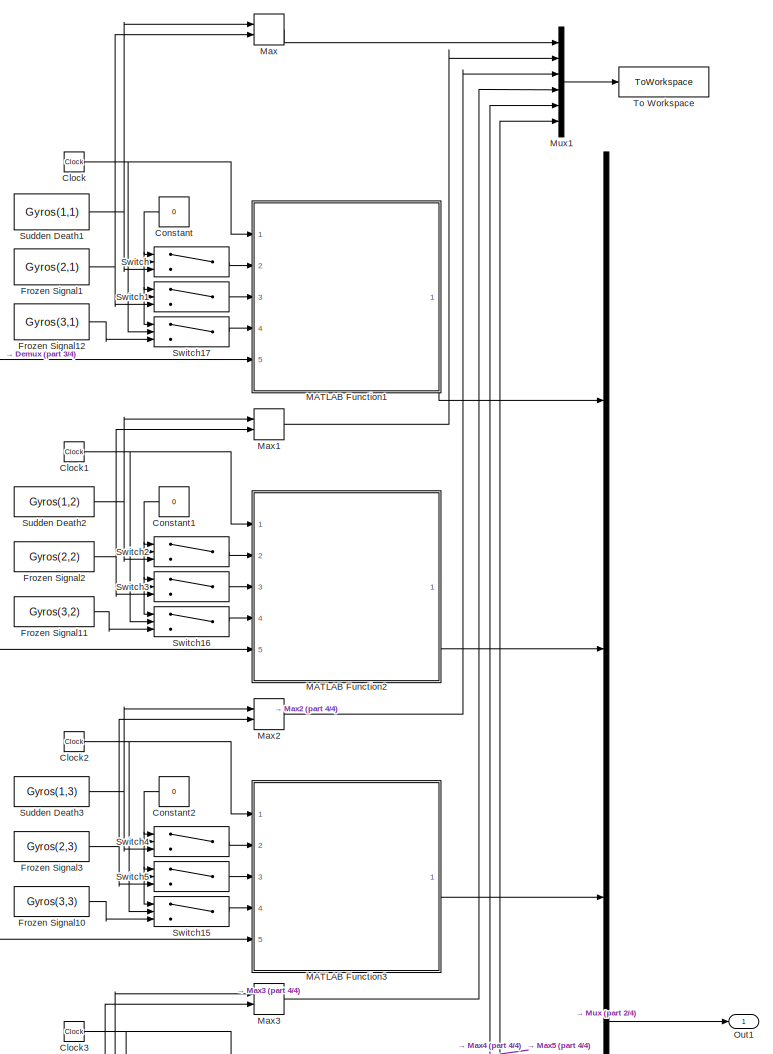
[diagram: Navigation/Gyroscope/Gyroscope Model/Artificial Failure - part 1/4, full width, top band]
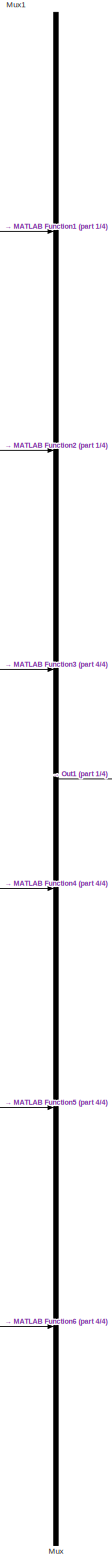
[diagram: Navigation/Gyroscope/Gyroscope Model/Artificial Failure - part 2/4, right side, full height]
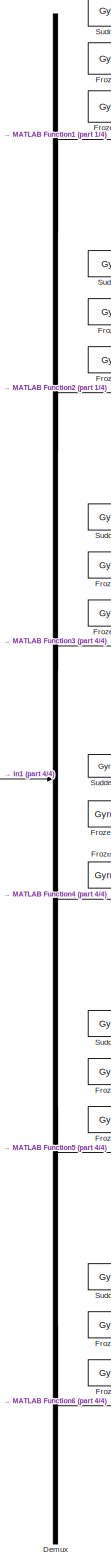
[diagram: Navigation/Gyroscope/Gyroscope Model/Artificial Failure - part 3/4, left side, full height]
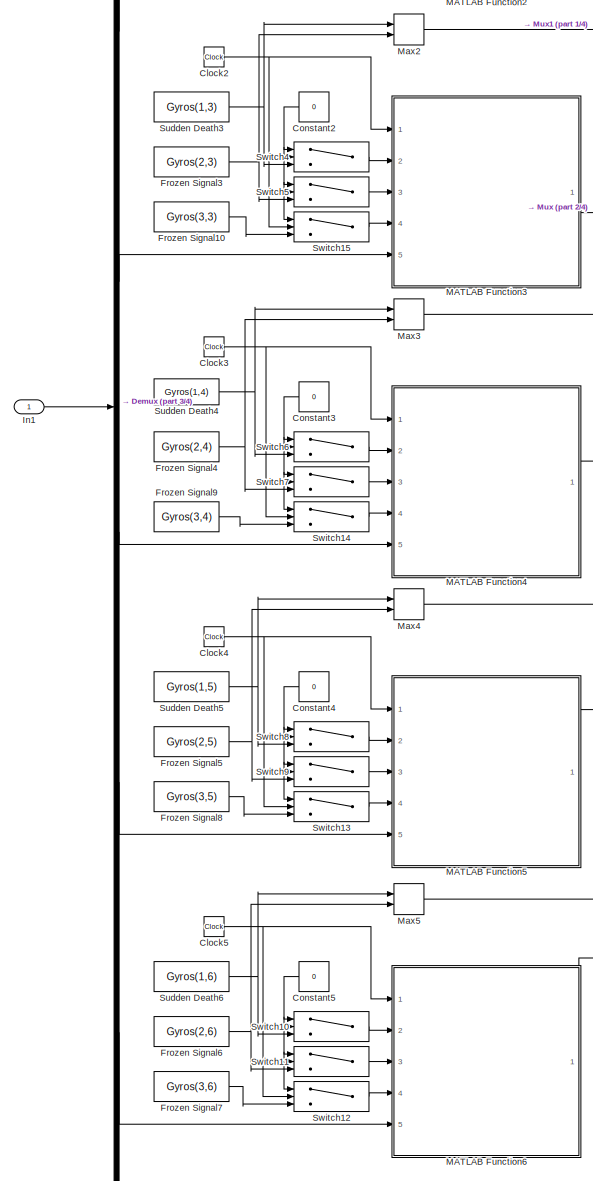
[diagram: Navigation/Gyroscope/Gyroscope Model/Artificial Failure - part 4/4, middle left region]
BLOCK [SubSystem] Navigation/Gyroscope/Gyroscope Model/Artificial Failure
  Ports = [1, 1]
  RequestExecContextInheritance = off
BLOCK [Clock] Navigation/Gyroscope/Gyroscope Model/Artificial Failure/Clock
BLOCK [Clock] Navigation/Gyroscope/Gyroscope Model/Artificial Failure/Clock1
BLOCK [Clock] Navigation/Gyroscope/Gyroscope Model/Artificial Failure/Clock2
BLOCK [Clock] Navigation/Gyroscope/Gyroscope Model/Artificial Failure/Clock3
BLOCK [Clock] Navigation/Gyroscope/Gyroscope Model/Artificial Failure/Clock4
BLOCK [Clock] Navigation/Gyroscope/Gyroscope Model/Artificial Failure/Clock5
BLOCK [Constant] Navigation/Gyroscope/Gyroscope Model/Artificial Failure/Constant
  Value = 0
BLOCK [Constant] Navigation/Gyroscope/Gyroscope Model/Artificial Failure/Constant1
  Value = 0
BLOCK [Constant] Navigation/Gyroscope/Gyroscope Model/Artificial Failure/Constant2
  Value = 0
BLOCK [Constant] Navigation/Gyroscope/Gyroscope Model/Artificial Failure/Constant3
  Value = 0
BLOCK [Constant] Navigation/Gyroscope/Gyroscope Model/Artificial Failure/Constant4
  Value = 0
BLOCK [Constant] Navigation/Gyroscope/Gyroscope Model/Artificial Failure/Constant5
  Value = 0
BLOCK [Demux] Navigation/Gyroscope/Gyroscope Model/Artificial Failure/Demux
  Outputs = 6
  Ports = [1, 6]
BLOCK [Constant] Navigation/Gyroscope/Gyroscope Model/Artificial Failure/Frozen Signal1
  Value = Gyros(2,1)
BLOCK [Constant] Navigation/Gyroscope/Gyroscope Model/Artificial Failure/Frozen Signal10
  Value = Gyros(3,3)
BLOCK [Constant] Navigation/Gyroscope/Gyroscope Model/Artificial Failure/Frozen Signal11
  Value = Gyros(3,2)
BLOCK [Constant] Navigation/Gyroscope/Gyroscope Model/Artificial Failure/Frozen Signal12
  Value = Gyros(3,1)
BLOCK [Constant] Navigation/Gyroscope/Gyroscope Model/Artificial Failure/Frozen Signal2
  Value = Gyros(2,2)
BLOCK [Constant] Navigation/Gyroscope/Gyroscope Model/Artificial Failure/Frozen Signal3
  Value = Gyros(2,3)
BLOCK [Constant] Navigation/Gyroscope/Gyroscope Model/Artificial Failure/Frozen Signal4
  Value = Gyros(2,4)
BLOCK [Constant] Navigation/Gyroscope/Gyroscope Model/Artificial Failure/Frozen Signal5
  Value = Gyros(2,5)
BLOCK [Constant] Navigation/Gyroscope/Gyroscope Model/Artificial Failure/Frozen Signal6
  Value = Gyros(2,6)
BLOCK [Constant] Navigation/Gyroscope/Gyroscope Model/Artificial Failure/Frozen Signal7
  Value = Gyros(3,6)
BLOCK [Constant] Navigation/Gyroscope/Gyroscope Model/Artificial Failure/Frozen Signal8
  Value = Gyros(3,5)
BLOCK [Constant] Navigation/Gyroscope/Gyroscope Model/Artificial Failure/Frozen Signal9
  Value = Gyros(3,4)
BLOCK [Inport] Navigation/Gyroscope/Gyroscope Model/Artificial Failure/In1
BLOCK [SubSystem] Navigation/Gyroscope/Gyroscope Model/Artificial Failure/MATLAB Function1
  ErrorFcn = Stateflow.Translate.translate
  PermitHierarchicalResolution = ExplicitOnly
  Ports = [5, 1]
  RequestExecContextInheritance = off
  SFBlockType = MATLAB Function
  TreatAsAtomicUnit = on
BLOCK [Demux] Navigation/Gyroscope/Gyroscope Model/Artificial Failure/MATLAB Function1/ Demux 
  Outputs = 1
  Ports = [1, 1]
BLOCK [S-Function] Navigation/Gyroscope/Gyroscope Model/Artificial Failure/MATLAB Function1/ SFunction 
  EnableBusSupport = on
  FunctionName = sf_sfun
  PortCounts = [5 2]
  Ports = [5, 2]
  SFcnIsStateOwnerBlock = off
  SFunctionDeploymentMode = off
  Tag = Stateflow S-Function 29
BLOCK [Terminator] Navigation/Gyroscope/Gyroscope Model/Artificial Failure/MATLAB Function1/ Terminator 
BLOCK [Inport] Navigation/Gyroscope/Gyroscope Model/Artificial Failure/MATLAB Function1/flag1
  Port = 2
BLOCK [Inport] Navigation/Gyroscope/Gyroscope Model/Artificial Failure/MATLAB Function1/flag2
  Port = 3
BLOCK [Inport] Navigation/Gyroscope/Gyroscope Model/Artificial Failure/MATLAB Function1/flag3
  Port = 4
BLOCK [Inport] Navigation/Gyroscope/Gyroscope Model/Artificial Failure/MATLAB Function1/in
  Port = 5
BLOCK [Outport] Navigation/Gyroscope/Gyroscope Model/Artificial Failure/MATLAB Function1/out
  VectorParamsAs1DForOutWhenUnconnected = off
BLOCK [Inport] Navigation/Gyroscope/Gyroscope Model/Artificial Failure/MATLAB Function1/t
BLOCK [SubSystem] Navigation/Gyroscope/Gyroscope Model/Artificial Failure/MATLAB Function2
  ErrorFcn = Stateflow.Translate.translate
  PermitHierarchicalResolution = ExplicitOnly
  Ports = [5, 1]
  RequestExecContextInheritance = off
  SFBlockType = MATLAB Function
  TreatAsAtomicUnit = on
BLOCK [Demux] Navigation/Gyroscope/Gyroscope Model/Artificial Failure/MATLAB Function2/ Demux 
  Outputs = 1
  Ports = [1, 1]
BLOCK [S-Function] Navigation/Gyroscope/Gyroscope Model/Artificial Failure/MATLAB Function2/ SFunction 
  EnableBusSupport = on
  FunctionName = sf_sfun
  PortCounts = [5 2]
  Ports = [5, 2]
  SFcnIsStateOwnerBlock = off
  SFunctionDeploymentMode = off
  Tag = Stateflow S-Function 23
BLOCK [Terminator] Navigation/Gyroscope/Gyroscope Model/Artificial Failure/MATLAB Function2/ Terminator 
BLOCK [Inport] Navigation/Gyroscope/Gyroscope Model/Artificial Failure/MATLAB Function2/flag1
  Port = 2
BLOCK [Inport] Navigation/Gyroscope/Gyroscope Model/Artificial Failure/MATLAB Function2/flag2
  Port = 3
BLOCK [Inport] Navigation/Gyroscope/Gyroscope Model/Artificial Failure/MATLAB Function2/flag3
  Port = 4
BLOCK [Inport] Navigation/Gyroscope/Gyroscope Model/Artificial Failure/MATLAB Function2/in
  Port = 5
BLOCK [Outport] Navigation/Gyroscope/Gyroscope Model/Artificial Failure/MATLAB Function2/out
  VectorParamsAs1DForOutWhenUnconnected = off
BLOCK [Inport] Navigation/Gyroscope/Gyroscope Model/Artificial Failure/MATLAB Function2/t
BLOCK [SubSystem] Navigation/Gyroscope/Gyroscope Model/Artificial Failure/MATLAB Function3
  ErrorFcn = Stateflow.Translate.translate
  PermitHierarchicalResolution = ExplicitOnly
  Ports = [5, 1]
  RequestExecContextInheritance = off
  SFBlockType = MATLAB Function
  TreatAsAtomicUnit = on
BLOCK [Demux] Navigation/Gyroscope/Gyroscope Model/Artificial Failure/MATLAB Function3/ Demux 
  Outputs = 1
  Ports = [1, 1]
BLOCK [S-Function] Navigation/Gyroscope/Gyroscope Model/Artificial Failure/MATLAB Function3/ SFunction 
  EnableBusSupport = on
  FunctionName = sf_sfun
  PortCounts = [5 2]
  Ports = [5, 2]
  SFcnIsStateOwnerBlock = off
  SFunctionDeploymentMode = off
  Tag = Stateflow S-Function 39
BLOCK [Terminator] Navigation/Gyroscope/Gyroscope Model/Artificial Failure/MATLAB Function3/ Terminator 
BLOCK [Inport] Navigation/Gyroscope/Gyroscope Model/Artificial Failure/MATLAB Function3/flag1
  Port = 2
BLOCK [Inport] Navigation/Gyroscope/Gyroscope Model/Artificial Failure/MATLAB Function3/flag2
  Port = 3
BLOCK [Inport] Navigation/Gyroscope/Gyroscope Model/Artificial Failure/MATLAB Function3/flag3
  Port = 4
BLOCK [Inport] Navigation/Gyroscope/Gyroscope Model/Artificial Failure/MATLAB Function3/in
  Port = 5
BLOCK [Outport] Navigation/Gyroscope/Gyroscope Model/Artificial Failure/MATLAB Function3/out
  VectorParamsAs1DForOutWhenUnconnected = off
BLOCK [Inport] Navigation/Gyroscope/Gyroscope Model/Artificial Failure/MATLAB Function3/t
BLOCK [SubSystem] Navigation/Gyroscope/Gyroscope Model/Artificial Failure/MATLAB Function4
  ErrorFcn = Stateflow.Translate.translate
  PermitHierarchicalResolution = ExplicitOnly
  Ports = [5, 1]
  RequestExecContextInheritance = off
  SFBlockType = MATLAB Function
  TreatAsAtomicUnit = on
BLOCK [Demux] Navigation/Gyroscope/Gyroscope Model/Artificial Failure/MATLAB Function4/ Demux 
  Outputs = 1
  Ports = [1, 1]
BLOCK [S-Function] Navigation/Gyroscope/Gyroscope Model/Artificial Failure/MATLAB Function4/ SFunction 
  EnableBusSupport = on
  FunctionName = sf_sfun
  PortCounts = [5 2]
  Ports = [5, 2]
  SFcnIsStateOwnerBlock = off
  SFunctionDeploymentMode = off
  Tag = Stateflow S-Function 40
BLOCK [Terminator] Navigation/Gyroscope/Gyroscope Model/Artificial Failure/MATLAB Function4/ Terminator 
BLOCK [Inport] Navigation/Gyroscope/Gyroscope Model/Artificial Failure/MATLAB Function4/flag1
  Port = 2
BLOCK [Inport] Navigation/Gyroscope/Gyroscope Model/Artificial Failure/MATLAB Function4/flag2
  Port = 3
BLOCK [Inport] Navigation/Gyroscope/Gyroscope Model/Artificial Failure/MATLAB Function4/flag3
  Port = 4
BLOCK [Inport] Navigation/Gyroscope/Gyroscope Model/Artificial Failure/MATLAB Function4/in
  Port = 5
BLOCK [Outport] Navigation/Gyroscope/Gyroscope Model/Artificial Failure/MATLAB Function4/out
  VectorParamsAs1DForOutWhenUnconnected = off
BLOCK [Inport] Navigation/Gyroscope/Gyroscope Model/Artificial Failure/MATLAB Function4/t
BLOCK [SubSystem] Navigation/Gyroscope/Gyroscope Model/Artificial Failure/MATLAB Function5
  ErrorFcn = Stateflow.Translate.translate
  PermitHierarchicalResolution = ExplicitOnly
  Ports = [5, 1]
  RequestExecContextInheritance = off
  SFBlockType = MATLAB Function
  TreatAsAtomicUnit = on
BLOCK [Demux] Navigation/Gyroscope/Gyroscope Model/Artificial Failure/MATLAB Function5/ Demux 
  Outputs = 1
  Ports = [1, 1]
BLOCK [S-Function] Navigation/Gyroscope/Gyroscope Model/Artificial Failure/MATLAB Function5/ SFunction 
  EnableBusSupport = on
  FunctionName = sf_sfun
  PortCounts = [5 2]
  Ports = [5, 2]
  SFcnIsStateOwnerBlock = off
  SFunctionDeploymentMode = off
  Tag = Stateflow S-Function 41
BLOCK [Terminator] Navigation/Gyroscope/Gyroscope Model/Artificial Failure/MATLAB Function5/ Terminator 
BLOCK [Inport] Navigation/Gyroscope/Gyroscope Model/Artificial Failure/MATLAB Function5/flag1
  Port = 2
BLOCK [Inport] Navigation/Gyroscope/Gyroscope Model/Artificial Failure/MATLAB Function5/flag2
  Port = 3
BLOCK [Inport] Navigation/Gyroscope/Gyroscope Model/Artificial Failure/MATLAB Function5/flag3
  Port = 4
BLOCK [Inport] Navigation/Gyroscope/Gyroscope Model/Artificial Failure/MATLAB Function5/in
  Port = 5
BLOCK [Outport] Navigation/Gyroscope/Gyroscope Model/Artificial Failure/MATLAB Function5/out
  VectorParamsAs1DForOutWhenUnconnected = off
BLOCK [Inport] Navigation/Gyroscope/Gyroscope Model/Artificial Failure/MATLAB Function5/t
BLOCK [SubSystem] Navigation/Gyroscope/Gyroscope Model/Artificial Failure/MATLAB Function6
  ErrorFcn = Stateflow.Translate.translate
  PermitHierarchicalResolution = ExplicitOnly
  Ports = [5, 1]
  RequestExecContextInheritance = off
  SFBlockType = MATLAB Function
  TreatAsAtomicUnit = on
BLOCK [Demux] Navigation/Gyroscope/Gyroscope Model/Artificial Failure/MATLAB Function6/ Demux 
  Outputs = 1
  Ports = [1, 1]
BLOCK [S-Function] Navigation/Gyroscope/Gyroscope Model/Artificial Failure/MATLAB Function6/ SFunction 
  EnableBusSupport = on
  FunctionName = sf_sfun
  PortCounts = [5 2]
  Ports = [5, 2]
  SFcnIsStateOwnerBlock = off
  SFunctionDeploymentMode = off
  Tag = Stateflow S-Function 42
BLOCK [Terminator] Navigation/Gyroscope/Gyroscope Model/Artificial Failure/MATLAB Function6/ Terminator 
BLOCK [Inport] Navigation/Gyroscope/Gyroscope Model/Artificial Failure/MATLAB Function6/flag1
  Port = 2
BLOCK [Inport] Navigation/Gyroscope/Gyroscope Model/Artificial Failure/MATLAB Function6/flag2
  Port = 3
BLOCK [Inport] Navigation/Gyroscope/Gyroscope Model/Artificial Failure/MATLAB Function6/flag3
  Port = 4
BLOCK [Inport] Navigation/Gyroscope/Gyroscope Model/Artificial Failure/MATLAB Function6/in
  Port = 5
BLOCK [Outport] Navigation/Gyroscope/Gyroscope Model/Artificial Failure/MATLAB Function6/out
  VectorParamsAs1DForOutWhenUnconnected = off
BLOCK [Inport] Navigation/Gyroscope/Gyroscope Model/Artificial Failure/MATLAB Function6/t
BLOCK [MinMax] Navigation/Gyroscope/Gyroscope Model/Artificial Failure/Max
  Function = max
  Inputs = 2
  Ports = [2, 1]
BLOCK [MinMax] Navigation/Gyroscope/Gyroscope Model/Artificial Failure/Max1
  Function = max
  Inputs = 2
  Ports = [2, 1]
BLOCK [MinMax] Navigation/Gyroscope/Gyroscope Model/Artificial Failure/Max2
  Function = max
  Inputs = 2
  Ports = [2, 1]
BLOCK [MinMax] Navigation/Gyroscope/Gyroscope Model/Artificial Failure/Max3
  Function = max
  Inputs = 2
  Ports = [2, 1]
BLOCK [MinMax] Navigation/Gyroscope/Gyroscope Model/Artificial Failure/Max4
  Function = max
  Inputs = 2
  Ports = [2, 1]
BLOCK [MinMax] Navigation/Gyroscope/Gyroscope Model/Artificial Failure/Max5
  Function = max
  Inputs = 2
  Ports = [2, 1]
BLOCK [Mux] Navigation/Gyroscope/Gyroscope Model/Artificial Failure/Mux
  DisplayOption = bar
  Inputs = 6
  Ports = [6, 1]
BLOCK [Mux] Navigation/Gyroscope/Gyroscope Model/Artificial Failure/Mux1
  DisplayOption = bar
  Inputs = 6
  Ports = [6, 1]
BLOCK [Outport] Navigation/Gyroscope/Gyroscope Model/Artificial Failure/Out1
  VectorParamsAs1DForOutWhenUnconnected = off
BLOCK [Constant] Navigation/Gyroscope/Gyroscope Model/Artificial Failure/Sudden Death1
  Value = Gyros(1,1)
BLOCK [Constant] Navigation/Gyroscope/Gyroscope Model/Artificial Failure/Sudden Death2
  Value = Gyros(1,2)
BLOCK [Constant] Navigation/Gyroscope/Gyroscope Model/Artificial Failure/Sudden Death3
  Value = Gyros(1,3)
BLOCK [Constant] Navigation/Gyroscope/Gyroscope Model/Artificial Failure/Sudden Death4
  Value = Gyros(1,4)
BLOCK [Constant] Navigation/Gyroscope/Gyroscope Model/Artificial Failure/Sudden Death5
  Value = Gyros(1,5)
BLOCK [Constant] Navigation/Gyroscope/Gyroscope Model/Artificial Failure/Sudden Death6
  Value = Gyros(1,6)
BLOCK [Switch] Navigation/Gyroscope/Gyroscope Model/Artificial Failure/Switch
  Criteria = u2 > Threshold
  InputSameDT = off
  SaturateOnIntegerOverflow = off
  Threshold = 25+(150*rand)
BLOCK [Switch] Navigation/Gyroscope/Gyroscope Model/Artificial Failure/Switch1
  Criteria = u2 > Threshold
  InputSameDT = off
  SaturateOnIntegerOverflow = off
  Threshold = 25+(150*rand)
BLOCK [Switch] Navigation/Gyroscope/Gyroscope Model/Artificial Failure/Switch10
  Criteria = u2 > Threshold
  InputSameDT = off
  SaturateOnIntegerOverflow = off
  Threshold = 25+(150*rand)
BLOCK [Switch] Navigation/Gyroscope/Gyroscope Model/Artificial Failure/Switch11
  Criteria = u2 > Threshold
  InputSameDT = off
  SaturateOnIntegerOverflow = off
  Threshold = 25+(150*rand)
BLOCK [Switch] Navigation/Gyroscope/Gyroscope Model/Artificial Failure/Switch12
  Criteria = u2 > Threshold
  InputSameDT = off
  SaturateOnIntegerOverflow = off
  Threshold = 25+(150*rand)
BLOCK [Switch] Navigation/Gyroscope/Gyroscope Model/Artificial Failure/Switch13
  Criteria = u2 > Threshold
  InputSameDT = off
  SaturateOnIntegerOverflow = off
  Threshold = 25+(150*rand)
BLOCK [Switch] Navigation/Gyroscope/Gyroscope Model/Artificial Failure/Switch14
  Criteria = u2 > Threshold
  InputSameDT = off
  SaturateOnIntegerOverflow = off
  Threshold = 25+(150*rand)
BLOCK [Switch] Navigation/Gyroscope/Gyroscope Model/Artificial Failure/Switch15
  Criteria = u2 > Threshold
  InputSameDT = off
  SaturateOnIntegerOverflow = off
  Threshold = 25+(150*rand)
BLOCK [Switch] Navigation/Gyroscope/Gyroscope Model/Artificial Failure/Switch16
  Criteria = u2 > Threshold
  InputSameDT = off
  SaturateOnIntegerOverflow = off
  Threshold = 25+(150*rand)
BLOCK [Switch] Navigation/Gyroscope/Gyroscope Model/Artificial Failure/Switch17
  Criteria = u2 > Threshold
  InputSameDT = off
  SaturateOnIntegerOverflow = off
  Threshold = 25+(150*rand)
BLOCK [Switch] Navigation/Gyroscope/Gyroscope Model/Artificial Failure/Switch2
  Criteria = u2 > Threshold
  InputSameDT = off
  SaturateOnIntegerOverflow = off
  Threshold = 25+(150*rand)
BLOCK [Switch] Navigation/Gyroscope/Gyroscope Model/Artificial Failure/Switch3
  Criteria = u2 > Threshold
  InputSameDT = off
  SaturateOnIntegerOverflow = off
  Threshold = 25+(150*rand)
BLOCK [Switch] Navigation/Gyroscope/Gyroscope Model/Artificial Failure/Switch4
  Criteria = u2 > Threshold
  InputSameDT = off
  SaturateOnIntegerOverflow = off
  Threshold = 25+(150*rand)
BLOCK [Switch] Navigation/Gyroscope/Gyroscope Model/Artificial Failure/Switch5
  Criteria = u2 > Threshold
  InputSameDT = off
  SaturateOnIntegerOverflow = off
  Threshold = 25+(150*rand)
BLOCK [Switch] Navigation/Gyroscope/Gyroscope Model/Artificial Failure/Switch6
  Criteria = u2 > Threshold
  InputSameDT = off
  SaturateOnIntegerOverflow = off
  Threshold = 25+(150*rand)
BLOCK [Switch] Navigation/Gyroscope/Gyroscope Model/Artificial Failure/Switch7
  Criteria = u2 > Threshold
  InputSameDT = off
  SaturateOnIntegerOverflow = off
  Threshold = 25+(150*rand)
BLOCK [Switch] Navigation/Gyroscope/Gyroscope Model/Artificial Failure/Switch8
  Criteria = u2 > Threshold
  InputSameDT = off
  SaturateOnIntegerOverflow = off
  Threshold = 25+(150*rand)
BLOCK [Switch] Navigation/Gyroscope/Gyroscope Model/Artificial Failure/Switch9
  Criteria = u2 > Threshold
  InputSameDT = off
  SaturateOnIntegerOverflow = off
  Threshold = 25+(150*rand)
BLOCK [ToWorkspace] Navigation/Gyroscope/Gyroscope Model/Artificial Failure/To Workspace
  FixptAsFi = on
  MaxDataPoints = 1
  Ports = [1]
  SampleTime = -1
  VariableName = Gyros_Labels
BLOCK [Constant] Navigation/Gyroscope/Gyroscope Model/Constant
  Value = gyr.H
BLOCK [From] Navigation/Gyroscope/Gyroscope Model/From
  GotoTag = flagLevel1
  TagVisibility = global
BLOCK [From] Navigation/Gyroscope/Gyroscope Model/From1
  GotoTag = flagLevel2
  TagVisibility = global
BLOCK [From] Navigation/Gyroscope/Gyroscope Model/From2
  GotoTag = flagLevel1
  TagVisibility = global
BLOCK [From] Navigation/Gyroscope/Gyroscope Model/From3
  GotoTag = flagLevel2
  TagVisibility = global
BLOCK [Gain] Navigation/Gyroscope/Gyroscope Model/Gain
  Gain = 1/sqrt(gyr.rate)
  NameLocation = left
BLOCK [Gain] Navigation/Gyroscope/Gyroscope Model/Gain1
  Gain = 1/sqrt(gyr.rate)
  NameLocation = top
BLOCK [Goto] Navigation/Gyroscope/Gyroscope Model/Goto
  GotoTag = w_gyr
  TagVisibility = global
BLOCK [SubSystem] Navigation/Gyroscope/Gyroscope Model/Gyroscope Recovery
  ErrorFcn = Stateflow.Translate.translate
  PermitHierarchicalResolution = ExplicitOnly
  Ports = [3, 1]
  RequestExecContextInheritance = off
  SFBlockType = MATLAB Function
  TreatAsAtomicUnit = on
BLOCK [Demux] Navigation/Gyroscope/Gyroscope Model/Gyroscope Recovery/ Demux 
  Outputs = 1
  Ports = [1, 1]
BLOCK [S-Function] Navigation/Gyroscope/Gyroscope Model/Gyroscope Recovery/ SFunction 
  EnableBusSupport = on
  FunctionName = sf_sfun
  PortCounts = [3 2]
  Ports = [3, 2]
  SFcnIsStateOwnerBlock = off
  SFunctionDeploymentMode = off
  Tag = Stateflow S-Function 26
BLOCK [Terminator] Navigation/Gyroscope/Gyroscope Model/Gyroscope Recovery/ Terminator 
BLOCK [Inport] Navigation/Gyroscope/Gyroscope Model/Gyroscope Recovery/H_in
BLOCK [Outport] Navigation/Gyroscope/Gyroscope Model/Gyroscope Recovery/H_out
  VectorParamsAs1DForOutWhenUnconnected = off
BLOCK [Inport] Navigation/Gyroscope/Gyroscope Model/Gyroscope Recovery/flagLevel1
  Port = 2
BLOCK [Inport] Navigation/Gyroscope/Gyroscope Model/Gyroscope Recovery/flagLevel2
  Port = 3
BLOCK [Integrator] Navigation/Gyroscope/Gyroscope Model/Integrator
  InitialCondition = gyr.bias*ones(6,1)
  NameLocation = top
  Ports = [1, 1]
BLOCK [SubSystem] Navigation/Gyroscope/Gyroscope Model/Isolation Switch off 
  ErrorFcn = Stateflow.Translate.translate
  PermitHierarchicalResolution = ExplicitOnly
  Ports = [3, 1]
  RequestExecContextInheritance = off
  SFBlockType = MATLAB Function
  TreatAsAtomicUnit = on
BLOCK [Demux] Navigation/Gyroscope/Gyroscope Model/Isolation Switch off / Demux 
  Outputs = 1
  Ports = [1, 1]
BLOCK [S-Function] Navigation/Gyroscope/Gyroscope Model/Isolation Switch off / SFunction 
  EnableBusSupport = on
  FunctionName = sf_sfun
  PortCounts = [3 2]
  Ports = [3, 2]
  SFcnIsStateOwnerBlock = off
  SFunctionDeploymentMode = off
  Tag = Stateflow S-Function 27
BLOCK [Terminator] Navigation/Gyroscope/Gyroscope Model/Isolation Switch off / Terminator 
BLOCK [Inport] Navigation/Gyroscope/Gyroscope Model/Isolation Switch off /flagLevel1
  Port = 2
BLOCK [Inport] Navigation/Gyroscope/Gyroscope Model/Isolation Switch off /flagLevel2
  Port = 3
BLOCK [Inport] Navigation/Gyroscope/Gyroscope Model/Isolation Switch off /in
BLOCK [Outport] Navigation/Gyroscope/Gyroscope Model/Isolation Switch off /out
  VectorParamsAs1DForOutWhenUnconnected = off
BLOCK [Product] Navigation/Gyroscope/Gyroscope Model/Matrix Multiply
  Multiplication = Matrix(*)
  Ports = [2, 1]
BLOCK [Product] Navigation/Gyroscope/Gyroscope Model/Matrix Multiply1
  Multiplication = Matrix(*)
  Ports = [2, 1]
BLOCK [Product] Navigation/Gyroscope/Gyroscope Model/Product1
  Ports = [2, 1]
BLOCK [Reference] Navigation/Gyroscope/Gyroscope Model/Pseudoinverse  REF=dspinverses/Pseudoinverse
  Ports = [1, 1]
  SourceBlock = dspinverses/Pseudoinverse
  SourceProductBaseCode = DS
  SourceType = Pseudoinverse
BLOCK [Quantizer] Navigation/Gyroscope/Gyroscope Model/Quantization
  QuantizationInterval = 2*gyr.range/(2^gyr.bits-1)
BLOCK [RandomNumber] Navigation/Gyroscope/Gyroscope Model/RRW
  NameLocation = top
  Seed = [21;22;23;24;25;26]
  Variance = (gyr.RRW)^2
BLOCK [RateTransition] Navigation/Gyroscope/Gyroscope Model/Rate Transition
  InitialCondition = gyr.H*w_SC_0
  OutPortSampleTime = gyr.rate
BLOCK [Saturate] Navigation/Gyroscope/Gyroscope Model/Saturation
  LowerLimit = -gyr.range*ones(6,1)
  UpperLimit = gyr.range*ones(6,1)
BLOCK [UniformRandomNumber] Navigation/Gyroscope/Gyroscope Model/Scale Factor Variation
  Maximum = (100+gyr.scale)/100
  Minimum = (100-gyr.scale)/100
  Seed = [67;68;69;70;71;72]
BLOCK [Scope] Navigation/Gyroscope/Gyroscope Model/Scope
  Floating = off
  NameLocation = top
  NumInputPorts = 1
  Ports = [1]
  ScopeSpecificationString = Simulink.scopes.TimeScopeBlockCfg('CurrentConfiguration', extmgr.ConfigurationSet(extmgr.Configuration('Core','General UI',true),extmgr.Configuration('Core','Source UI',true),extmgr.Configuration('Sources','WiredSimulink',true,'DataLoggingVariableName','ScopeData1'),extmgr.Configuration('Visuals','Time Domain',true,'SerializedDisplays',{struct('MinYLimReal','-0.00079','MaxYLimReal','0.00082','YLab...<+1567ch>
BLOCK [Scope] Navigation/Gyroscope/Gyroscope Model/Scope1
  Floating = off
  NameLocation = top
  NumInputPorts = 1
  Ports = [1]
  ScopeSpecificationString = Simulink.scopes.TimeScopeBlockCfg('CurrentConfiguration', extmgr.ConfigurationSet(extmgr.Configuration('Core','General UI',true),extmgr.Configuration('Core','Source UI',true),extmgr.Configuration('Sources','WiredSimulink',true,'DataLoggingVariableName','ScopeData2'),extmgr.Configuration('Visuals','Time Domain',true,'SerializedDisplays',{struct('MinYLimReal','-0.00283','MaxYLimReal','0.00236','YLab...<+1590ch>
BLOCK [Sum] Navigation/Gyroscope/Gyroscope Model/Sum
  Inputs = +++
  Ports = [3, 1]
BLOCK [ToFile] Navigation/Gyroscope/Gyroscope Model/To File2
  Commented = on
  Filename = wb_gyr.mat
  MatrixName = wb_gyr
  Ports = [1]
BLOCK [ToWorkspace] Navigation/Gyroscope/Gyroscope Model/To Workspace
  FixptAsFi = on
  MaxDataPoints = inf
  Ports = [1]
  SampleTime = -1
  SaveFormat = Timeseries
  VariableName = Gyros_Data
BLOCK [Inport] Navigation/Gyroscope/Gyroscope Model/wb
BLOCK [Outport] Navigation/Gyroscope/Gyroscope Model/wb_gyr
  VectorParamsAs1DForOutWhenUnconnected = off
BLOCK [Inport] Navigation/Gyroscope/wb
BLOCK [Outport] Navigation/Gyroscope/wb_gyr
  VectorParamsAs1DForOutWhenUnconnected = off
BLOCK [SubSystem] Navigation/Orbit Filter
  Ports = [2, 2]
  RequestExecContextInheritance = off
BLOCK [Constant] Navigation/Orbit Filter/Constant
  Value = GNSS.rate
BLOCK [Constant] Navigation/Orbit Filter/Constant1
  Value = GNSS.pos
BLOCK [Constant] Navigation/Orbit Filter/Constant2
  Value = GNSS.vel
BLOCK [SubSystem] Navigation/Orbit Filter/MATLAB Function
  ErrorFcn = Stateflow.Translate.translate
  PermitHierarchicalResolution = ExplicitOnly
  Ports = [4, 2]
  RequestExecContextInheritance = off
  SFBlockType = MATLAB Function
  TreatAsAtomicUnit = on
BLOCK [Demux] Navigation/Orbit Filter/MATLAB Function/ Demux 
  Outputs = 1
  Ports = [1, 1]
BLOCK [S-Function] Navigation/Orbit Filter/MATLAB Function/ SFunction 
  EnableBusSupport = on
  FunctionName = sf_sfun
  PortCounts = [4 3]
  Ports = [4, 3]
  SFcnIsStateOwnerBlock = off
  SFunctionDeploymentMode = off
  Tag = Stateflow S-Function 21
BLOCK [Terminator] Navigation/Orbit Filter/MATLAB Function/ Terminator 
BLOCK [Inport] Navigation/Orbit Filter/MATLAB Function/dt
  Port = 2
BLOCK [Outport] Navigation/Orbit Filter/MATLAB Function/rk1
  VectorParamsAs1DForOutWhenUnconnected = off
BLOCK [Inport] Navigation/Orbit Filter/MATLAB Function/sig_r
  Port = 3
BLOCK [Inport] Navigation/Orbit Filter/MATLAB Function/sig_v
  Port = 4
BLOCK [Outport] Navigation/Orbit Filter/MATLAB Function/vk1
  Port = 2
  VectorParamsAs1DForOutWhenUnconnected = off
BLOCK [Inport] Navigation/Orbit Filter/MATLAB Function/z
BLOCK [Mux] Navigation/Orbit Filter/Mux
  DisplayOption = bar
  Inputs = 2
  Ports = [2, 1]
BLOCK [ToFile] Navigation/Orbit Filter/To File1
  Commented = on
  Filename = v_est.mat
  MatrixName = v_est
  Ports = [1]
BLOCK [ToFile] Navigation/Orbit Filter/To File2
  Commented = on
  Filename = r_est.mat
  MatrixName = r_est
  Ports = [1]
BLOCK [Inport] Navigation/Orbit Filter/r_GNSS
BLOCK [Outport] Navigation/Orbit Filter/r_est
  VectorParamsAs1DForOutWhenUnconnected = off
BLOCK [Inport] Navigation/Orbit Filter/v_GNSS
  Port = 2
BLOCK [Outport] Navigation/Orbit Filter/v_est
  Port = 2
  VectorParamsAs1DForOutWhenUnconnected = off
BLOCK [Scope] Navigation/Scope
  Floating = off
  NumInputPorts = 2
  Ports = [2]
  ScopeSpecificationString = Simulink.scopes.TimeScopeBlockCfg('CurrentConfiguration', extmgr.ConfigurationSet(extmgr.Configuration('Core','General UI',true),extmgr.Configuration('Core','Source UI',true),extmgr.Configuration('Sources','WiredSimulink',true,'DataLoggingVariableName','ScopeData1'),extmgr.Configuration('Visuals','Time Domain',true,'SerializedDisplays',{struct('MinYLimReal','-0.00145','MaxYLimReal','0.00084','YLab...<+2236ch>
BLOCK [Scope] Navigation/Scope1
  Floating = off
  NumInputPorts = 1
  Ports = [1]
  ScopeSpecificationString = Simulink.scopes.TimeScopeBlockCfg('CurrentConfiguration', extmgr.ConfigurationSet(extmgr.Configuration('Core','General UI',true),extmgr.Configuration('Core','Source UI',true),extmgr.Configuration('Sources','WiredSimulink',true,'DataLoggingVariableName','ScopeData1'),extmgr.Configuration('Visuals','Time Domain',true,'SerializedDisplays',{struct('MinYLimReal','-0.00118','MaxYLimReal','0.00162','YLab...<+1458ch>
BLOCK [SubSystem] Navigation/Star tracker
  Ports = [1, 1]
  RequestExecContextInheritance = off
BLOCK [Reference] Navigation/Star tracker/Quaternion Multiplication  REF=aerolibutil/Quaternion
Multiplication
  Ports = [2, 1]
  SourceBlock = aerolibutil/Quaternion\nMultiplication
  SourceProductBaseCode = AE
  SourceType = Quaternion Multiplication
BLOCK [RandomNumber] Navigation/Star tracker/Random Number
  Seed = [20341 20342 20343]
  Variance = star.accu.^2
BLOCK [RateTransition] Navigation/Star tracker/Rate Transition
  InitialCondition = q_0
  OutPortSampleTime = star.rate
BLOCK [Reference] Navigation/Star tracker/Rotation Angles to Quaternions  REF=sharedtransform/Rotation Angles to Quaternions
  AttributesFormatString = Rotation Order: %<rotationOrder>
  Ports = [1, 1]
  SourceBlock = sharedtransform/Rotation Angles to Quaternions
  SourceProductBaseCode = AE,PW,MT,UV,VE,VP
  SourceType = Ang2Quat
BLOCK [Scope] Navigation/Star tracker/Scope
  Floating = off
  NumInputPorts = 1
  Ports = [1]
  ScopeSpecificationString = Simulink.scopes.TimeScopeBlockCfg('CurrentConfiguration', extmgr.ConfigurationSet(extmgr.Configuration('Core','General UI',true),extmgr.Configuration('Core','Source UI',true),extmgr.Configuration('Sources','WiredSimulink',true,'DataLoggingVariableName','ScopeData4'),extmgr.Configuration('Visuals','Time Domain',true,'SerializedDisplays',{struct('MinYLimReal','-0.83352','MaxYLimReal','0.91797','YLab...<+1429ch>
BLOCK [Selector] Navigation/Star tracker/Selector
  IndexOptions = Index vector (dialog)
  Indices = [3 2 1]
  InputPortWidth = 3
  NameLocation = top
  OutputSizes = 1
  Ports = [1, 1]
BLOCK [ToFile] Navigation/Star tracker/To File2
  Commented = on
  Filename = q_b_star.mat
  MatrixName = q_b_star
  Ports = [1]
BLOCK [Inport] Navigation/Star tracker/q_b_ECI
BLOCK [Outport] Navigation/Star tracker/q_b_star
  VectorParamsAs1DForOutWhenUnconnected = off
BLOCK [ToFile] Navigation/To File2
  Commented = on
  Filename = Error_est.mat
  MatrixName = Error_est
  Ports = [1]
BLOCK [SubSystem] Visualization
  Ports = []
  RequestExecContextInheritance = off
BLOCK [SubSystem] Visualization/3D Orbit
  Commented = on
  Ports = []
  RequestExecContextInheritance = off
BLOCK [SubSystem] Visualization/3D Orbit/3D Orbit Plot
  ErrorFcn = Stateflow.Translate.translate
  PermitHierarchicalResolution = ExplicitOnly
  Ports = [4]
  RequestExecContextInheritance = off
  SFBlockType = MATLAB Function
  SystemSampleTime = 100
  TreatAsAtomicUnit = on
BLOCK [Demux] Visualization/3D Orbit/3D Orbit Plot/ Demux 
  Outputs = 1
  Ports = [1, 1]
BLOCK [S-Function] Visualization/3D Orbit/3D Orbit Plot/ SFunction 
  EnableBusSupport = on
  FunctionName = sf_sfun
  PortCounts = [4 1]
  Ports = [4, 1]
  SFcnIsStateOwnerBlock = off
  SFunctionDeploymentMode = off
  Tag = Stateflow S-Function 7
BLOCK [Terminator] Visualization/3D Orbit/3D Orbit Plot/ Terminator 
BLOCK [Inport] Visualization/3D Orbit/3D Orbit Plot/DCM
  Port = 3
BLOCK [Inport] Visualization/3D Orbit/3D Orbit Plot/time
  Port = 4
BLOCK [Inport] Visualization/3D Orbit/3D Orbit Plot/v
  Port = 2
BLOCK [Inport] Visualization/3D Orbit/3D Orbit Plot/x
BLOCK [Clock] Visualization/3D Orbit/Clock
BLOCK [From] Visualization/3D Orbit/From
  GotoTag = r
  TagVisibility = global
BLOCK [From] Visualization/3D Orbit/From1
  GotoTag = v
  TagVisibility = global
BLOCK [From] Visualization/3D Orbit/From2
  GotoTag = DCM_ECI
  TagVisibility = global
BLOCK [SubSystem] Visualization/COE
  Ports = []
  RequestExecContextInheritance = off
BLOCK [From] Visualization/COE/From1
  Commented = on
  GotoTag = v_des
  TagVisibility = global
BLOCK [From] Visualization/COE/From2
  Commented = on
  GotoTag = r_des
  TagVisibility = global
BLOCK [From] Visualization/COE/From3
  GotoTag = v
  TagVisibility = global
BLOCK [From] Visualization/COE/From4
  GotoTag = r
  TagVisibility = global
BLOCK [SubSystem] Visualization/COE/MATLAB Function
  Commented = on
  ErrorFcn = Stateflow.Translate.translate
  PermitHierarchicalResolution = ExplicitOnly
  Ports = [2, 6]
  RequestExecContextInheritance = off
  SFBlockType = MATLAB Function
  TreatAsAtomicUnit = on
BLOCK [Demux] Visualization/COE/MATLAB Function/ Demux 
  Outputs = 1
  Ports = [1, 1]
BLOCK [S-Function] Visualization/COE/MATLAB Function/ SFunction 
  EnableBusSupport = on
  FunctionName = sf_sfun
  PortCounts = [2 7]
  Ports = [2, 7]
  SFcnIsStateOwnerBlock = off
  SFunctionDeploymentMode = off
  Tag = Stateflow S-Function 2
BLOCK [Terminator] Visualization/COE/MATLAB Function/ Terminator 
BLOCK [Inport] Visualization/COE/MATLAB Function/R
BLOCK [Outport] Visualization/COE/MATLAB Function/RA
  Port = 4
  VectorParamsAs1DForOutWhenUnconnected = off
BLOCK [Outport] Visualization/COE/MATLAB Function/TA
  Port = 6
  VectorParamsAs1DForOutWhenUnconnected = off
BLOCK [Inport] Visualization/COE/MATLAB Function/V
  Port = 2
BLOCK [Outport] Visualization/COE/MATLAB Function/a
  VectorParamsAs1DForOutWhenUnconnected = off
BLOCK [Outport] Visualization/COE/MATLAB Function/e
  Port = 2
  VectorParamsAs1DForOutWhenUnconnected = off
BLOCK [Outport] Visualization/COE/MATLAB Function/i
  Port = 3
  VectorParamsAs1DForOutWhenUnconnected = off
BLOCK [Outport] Visualization/COE/MATLAB Function/w
  Port = 5
  VectorParamsAs1DForOutWhenUnconnected = off
BLOCK [SubSystem] Visualization/COE/MATLAB Function1
  ErrorFcn = Stateflow.Translate.translate
  PermitHierarchicalResolution = ExplicitOnly
  Ports = [2, 6]
  RequestExecContextInheritance = off
  SFBlockType = MATLAB Function
  TreatAsAtomicUnit = on
BLOCK [Demux] Visualization/COE/MATLAB Function1/ Demux 
  Outputs = 1
  Ports = [1, 1]
BLOCK [S-Function] Visualization/COE/MATLAB Function1/ SFunction 
  EnableBusSupport = on
  FunctionName = sf_sfun
  PortCounts = [2 7]
  Ports = [2, 7]
  SFcnIsStateOwnerBlock = off
  SFunctionDeploymentMode = off
  Tag = Stateflow S-Function 3
BLOCK [Terminator] Visualization/COE/MATLAB Function1/ Terminator 
BLOCK [Inport] Visualization/COE/MATLAB Function1/R
BLOCK [Outport] Visualization/COE/MATLAB Function1/RA
  Port = 4
  VectorParamsAs1DForOutWhenUnconnected = off
BLOCK [Outport] Visualization/COE/MATLAB Function1/TA
  Port = 6
  VectorParamsAs1DForOutWhenUnconnected = off
BLOCK [Inport] Visualization/COE/MATLAB Function1/V
  Port = 2
BLOCK [Outport] Visualization/COE/MATLAB Function1/a
  VectorParamsAs1DForOutWhenUnconnected = off
BLOCK [Outport] Visualization/COE/MATLAB Function1/e
  Port = 2
  VectorParamsAs1DForOutWhenUnconnected = off
BLOCK [Outport] Visualization/COE/MATLAB Function1/i
  Port = 3
  VectorParamsAs1DForOutWhenUnconnected = off
BLOCK [Outport] Visualization/COE/MATLAB Function1/w
  Port = 5
  VectorParamsAs1DForOutWhenUnconnected = off
BLOCK [Scope] Visualization/COE/Orbit 
  Floating = off
  NumInputPorts = 6
  Ports = [6]
  ScopeSpecificationString = Simulink.scopes.TimeScopeBlockCfg('CurrentConfiguration', extmgr.ConfigurationSet(extmgr.Configuration('Core','General UI',true),extmgr.Configuration('Core','Source UI',true),extmgr.Configuration('Sources','WiredSimulink',true,'DataLoggingVariableName','ScopeData1'),extmgr.Configuration('Visuals','Time Domain',true,'SerializedDisplays',{struct('MinYLimReal','6773443.52133','MaxYLimReal','6797403.8...<+5078ch>
BLOCK [Scope] Visualization/COE/Orbit Desired 
  Commented = on
  Floating = off
  NumInputPorts = 6
  Ports = [6]
  ScopeSpecificationString = Simulink.scopes.TimeScopeBlockCfg('CurrentConfiguration', extmgr.ConfigurationSet(extmgr.Configuration('Core','General UI',true),extmgr.Configuration('Core','Source UI',true),extmgr.Configuration('Sources','WiredSimulink',true),extmgr.Configuration('Visuals','Time Domain',true,'SerializedDisplays',{struct('MinYLimReal','6652555.70132748','MaxYLimReal','6652555.7013276','YLabelReal','','MinYLimMag'...<+5055ch>
BLOCK [SubSystem] Visualization/Groundtrack
  Commented = on
  Ports = []
  RequestExecContextInheritance = off
BLOCK [From] Visualization/Groundtrack/From
  GotoTag = lat
  TagVisibility = global
BLOCK [From] Visualization/Groundtrack/From1
  GotoTag = lon
  TagVisibility = global
BLOCK [SubSystem] Visualization/Groundtrack/Groundtrack
  ErrorFcn = Stateflow.Translate.translate
  PermitHierarchicalResolution = ExplicitOnly
  Ports = [2]
  RequestExecContextInheritance = off
  SFBlockType = MATLAB Function
  SystemSampleTime = 100
  TreatAsAtomicUnit = on
BLOCK [Demux] Visualization/Groundtrack/Groundtrack/ Demux 
  Outputs = 1
  Ports = [1, 1]
BLOCK [S-Function] Visualization/Groundtrack/Groundtrack/ SFunction 
  EnableBusSupport = on
  FunctionName = sf_sfun
  PortCounts = [2 1]
  Ports = [2, 1]
  SFcnIsStateOwnerBlock = off
  SFunctionDeploymentMode = off
  Tag = Stateflow S-Function 8
BLOCK [Terminator] Visualization/Groundtrack/Groundtrack/ Terminator 
BLOCK [Inport] Visualization/Groundtrack/Groundtrack/lat
BLOCK [Inport] Visualization/Groundtrack/Groundtrack/lon
  Port = 2
ANNOTATION Control/Attitude Control/Magnetorquer: Magnetorquer Modelling
ANNOTATION Control/Attitude Control/Reaction Wheel Model: Reaction Wheel # 1
ANNOTATION Control/Attitude Control/Reaction Wheel Model: Reaction Wheel # 2
ANNOTATION Control/Orbit Control/Thruster Model: Thruster Modelling
ANNOTATION FDIR/Gyroscopes FDIR/Failure Control Panel: Gyroscope #1 (x_gyr2)
ANNOTATION FDIR/Gyroscopes FDIR/Failure Control Panel: Gyroscope #2 (z_gyr1)
ANNOTATION FDIR/Gyroscopes FDIR/Failure Control Panel: Gyroscope #3 (y_gyr2)
ANNOTATION FDIR/Gyroscopes FDIR/Failure Control Panel: Gyroscope #4 (x_gyr1)
ANNOTATION FDIR/Gyroscopes FDIR/Failure Control Panel: Gyroscope #5 (z_gyr2)
ANNOTATION FDIR/Gyroscopes FDIR/Failure Control Panel: Gyroscope #6 (y_gyr1)
ANNOTATION FDIR/Reaction Wheels FDIR/Failure Control Panel: Artificial Failure. RW #1
ANNOTATION FDIR/Reaction Wheels FDIR/Failure Control Panel: Artificial Failure. RW #2
ANNOTATION FDIR/Reaction Wheels FDIR/Failure Control Panel: Artificial Failure. RW #3
ANNOTATION FDIR/Reaction Wheels FDIR/Failure Control Panel: Artificial Failure. RW #4
ANNOTATION Guidance: Earth Pointing
ANNOTATION Guidance: Nominal Orbit
ANNOTATION Navigation: Attitude Estimation
ANNOTATION Navigation: Orbit Estimation
ANNOTATION Navigation: True states
LINE Control/Attitude Control/Attitude Controller/Demux:1 -> Control/Attitude Control/Attitude Controller/Scope:1
LINE Control/Attitude Control/Attitude Controller/Demux:2 -> Control/Attitude Control/Attitude Controller/Scope:2
LINE Control/Attitude Control/Attitude Controller/Demux:3 -> Control/Attitude Control/Attitude Controller/Scope:3
LINE Control/Attitude Control/Attitude Controller/Inertia Matrix:1 -> Control/Attitude Control/Attitude Controller/MATLAB Function1:5
NET Control/Attitude Control/Attitude Controller/MATLAB Function1:1 -> Control/Attitude Control/Attitude Controller/Demux:1, Control/Attitude Control/Attitude Controller/Goto:1, Control/Attitude Control/Attitude Controller/To File1:1, Control/Attitude Control/Attitude Controller/u_att:1
LINE Control/Attitude Control/Attitude Controller/Max. Control Input:1 -> Control/Attitude Control/Attitude Controller/MATLAB Function1:7
LINE Control/Attitude Control/Attitude Controller/Max. Error Allowed:1 -> Control/Attitude Control/Attitude Controller/MATLAB Function1:6
LINE Control/Attitude Control/Attitude Controller/q:1 -> Control/Attitude Control/Attitude Controller/MATLAB Function1:3
LINE Control/Attitude Control/Attitude Controller/q_des:1 -> Control/Attitude Control/Attitude Controller/MATLAB Function1:1
LINE Control/Attitude Control/Attitude Controller/wb:1 -> Control/Attitude Control/Attitude Controller/MATLAB Function1:4
LINE Control/Attitude Control/Attitude Controller/wb_des:1 -> Control/Attitude Control/Attitude Controller/MATLAB Function1:2
LINE Control/Attitude Control/Attitude Controller:1 -> Control/Attitude Control/Reaction Wheel Controller:1
LINE Control/Attitude Control/From1:1 -> Control/Attitude Control/Attitude Controller:3
LINE Control/Attitude Control/From2:1 -> Control/Attitude Control/Attitude Controller:4
LINE Control/Attitude Control/From3:1 -> Control/Attitude Control/Attitude Controller:2
LINE Control/Attitude Control/From:1 -> Control/Attitude Control/Attitude Controller:1
LINE Control/Attitude Control/Magnetorquer/3x3 Cross Product:1 -> Control/Attitude Control/Magnetorquer/T_mt:1
LINE Control/Attitude Control/Magnetorquer/Add1:1 -> Control/Attitude Control/Magnetorquer/Mux:2
LINE Control/Attitude Control/Magnetorquer/Add2:1 -> Control/Attitude Control/Magnetorquer/Mux:3
LINE Control/Attitude Control/Magnetorquer/Add:1 -> Control/Attitude Control/Magnetorquer/Mux:1
NET Control/Attitude Control/Magnetorquer/Constant:1 -> Control/Attitude Control/Magnetorquer/Matrix Multiply:1, Control/Attitude Control/Magnetorquer/Transpose:1
LINE Control/Attitude Control/Magnetorquer/Demux:1 -> Control/Attitude Control/Magnetorquer/Add:1
LINE Control/Attitude Control/Magnetorquer/Demux:2 -> Control/Attitude Control/Magnetorquer/Add:2
LINE Control/Attitude Control/Magnetorquer/Demux:3 -> Control/Attitude Control/Magnetorquer/Add1:1
LINE Control/Attitude Control/Magnetorquer/Demux:4 -> Control/Attitude Control/Magnetorquer/Add1:2
LINE Control/Attitude Control/Magnetorquer/Demux:5 -> Control/Attitude Control/Magnetorquer/Add2:1
LINE Control/Attitude Control/Magnetorquer/Demux:6 -> Control/Attitude Control/Magnetorquer/Add2:2
LINE Control/Attitude Control/Magnetorquer/From1:1 -> Control/Attitude Control/Magnetorquer/Product:2
LINE Control/Attitude Control/Magnetorquer/From:1 -> Control/Attitude Control/Magnetorquer/3x3 Cross Product:2
LINE Control/Attitude Control/Magnetorquer/Matrix Divide:1 -> Control/Attitude Control/Magnetorquer/Product:1
LINE Control/Attitude Control/Magnetorquer/Matrix Multiply:1 -> Control/Attitude Control/Magnetorquer/Matrix Divide:2
NET Control/Attitude Control/Magnetorquer/Mux:1 -> Control/Attitude Control/Magnetorquer/3x3 Cross Product:1, Control/Attitude Control/Magnetorquer/Scope:1
LINE Control/Attitude Control/Magnetorquer/Product1:1 -> Control/Attitude Control/Magnetorquer/Update Rate:1
LINE Control/Attitude Control/Magnetorquer/Product:1 -> Control/Attitude Control/Magnetorquer/Product1:1
LINE Control/Attitude Control/Magnetorquer/Quantizer:1 -> Control/Attitude Control/Magnetorquer/Saturation:1
NET Control/Attitude Control/Magnetorquer/Saturation:1 -> Control/Attitude Control/Magnetorquer/Demux:1, Control/Attitude Control/Magnetorquer/To File3:1
NET Control/Attitude Control/Magnetorquer/Transpose:1 -> Control/Attitude Control/Magnetorquer/Matrix Divide:1, Control/Attitude Control/Magnetorquer/Matrix Multiply:2
LINE Control/Attitude Control/Magnetorquer/Uniform Random Number2:1 -> Control/Attitude Control/Magnetorquer/Product1:2
LINE Control/Attitude Control/Magnetorquer/Update Rate:1 -> Control/Attitude Control/Magnetorquer/Quantizer:1
NET Control/Attitude Control/Magnetorquer:1 -> Control/Attitude Control/Goto3:1, Control/Attitude Control/Scope3:1, Control/Attitude Control/To File3:1
LINE Control/Attitude Control/Reaction Wheel Allocation/Constant1:1 -> Control/Attitude Control/Reaction Wheel Allocation/Recovery:2
LINE Control/Attitude Control/Reaction Wheel Allocation/Constant2:1 -> Control/Attitude Control/Reaction Wheel Allocation/Recovery:3
LINE Control/Attitude Control/Reaction Wheel Allocation/Constant3:1 -> Control/Attitude Control/Reaction Wheel Allocation/Recovery:4
LINE Control/Attitude Control/Reaction Wheel Allocation/Constant:1 -> Control/Attitude Control/Reaction Wheel Allocation/Recovery:1
LINE Control/Attitude Control/Reaction Wheel Allocation/Demux:1 -> Control/Attitude Control/Reaction Wheel Allocation/T_RW1_c:1
LINE Control/Attitude Control/Reaction Wheel Allocation/Demux:2 -> Control/Attitude Control/Reaction Wheel Allocation/T_RW2_c:1
LINE Control/Attitude Control/Reaction Wheel Allocation/Demux:3 -> Control/Attitude Control/Reaction Wheel Allocation/T_RW3_c:1
LINE Control/Attitude Control/Reaction Wheel Allocation/Demux:4 -> Control/Attitude Control/Reaction Wheel Allocation/T_RW4_c:1
LINE Control/Attitude Control/Reaction Wheel Allocation/From1:1 -> Control/Attitude Control/Reaction Wheel Allocation/Recovery:6
LINE Control/Attitude Control/Reaction Wheel Allocation/From2:1 -> Control/Attitude Control/Reaction Wheel Allocation/Recovery:7
LINE Control/Attitude Control/Reaction Wheel Allocation/From3:1 -> Control/Attitude Control/Reaction Wheel Allocation/Recovery:8
LINE Control/Attitude Control/Reaction Wheel Allocation/From:1 -> Control/Attitude Control/Reaction Wheel Allocation/Recovery:5
LINE Control/Attitude Control/Reaction Wheel Allocation/Matrix Divide:1 -> Control/Attitude Control/Reaction Wheel Allocation/Product:1
LINE Control/Attitude Control/Reaction Wheel Allocation/Matrix Multiply:1 -> Control/Attitude Control/Reaction Wheel Allocation/Matrix Divide:2
LINE Control/Attitude Control/Reaction Wheel Allocation/Product:1 -> Control/Attitude Control/Reaction Wheel Allocation/Demux:1
NET Control/Attitude Control/Reaction Wheel Allocation/Recovery:1 -> Control/Attitude Control/Reaction Wheel Allocation/Matrix Multiply:1, Control/Attitude Control/Reaction Wheel Allocation/Transpose:1
LINE Control/Attitude Control/Reaction Wheel Allocation/T_rw_c:1 -> Control/Attitude Control/Reaction Wheel Allocation/Product:2
NET Control/Attitude Control/Reaction Wheel Allocation/Transpose:1 -> Control/Attitude Control/Reaction Wheel Allocation/Matrix Divide:1, Control/Attitude Control/Reaction Wheel Allocation/Matrix Multiply:2
LINE Control/Attitude Control/Reaction Wheel Allocation:1 -> Control/Attitude Control/Reaction Wheel Model:1
LINE Control/Attitude Control/Reaction Wheel Allocation:2 -> Control/Attitude Control/Reaction Wheel Model:2
LINE Control/Attitude Control/Reaction Wheel Allocation:3 -> Control/Attitude Control/Reaction Wheel Model:3
LINE Control/Attitude Control/Reaction Wheel Allocation:4 -> Control/Attitude Control/Reaction Wheel Model:4
LINE Control/Attitude Control/Reaction Wheel Controller/3x3 Cross Product:1 -> Control/Attitude Control/Reaction Wheel Controller/Gain1:1
NET Control/Attitude Control/Reaction Wheel Controller/Add1:1 -> Control/Attitude Control/Reaction Wheel Controller/Gain3:1, Control/Attitude Control/Reaction Wheel Controller/Integrator:1
LINE Control/Attitude Control/Reaction Wheel Controller/From:1 -> Control/Attitude Control/Reaction Wheel Controller/3x3 Cross Product:1
LINE Control/Attitude Control/Reaction Wheel Controller/Gain1:1 -> Control/Attitude Control/Reaction Wheel Controller/Add1:2
LINE Control/Attitude Control/Reaction Wheel Controller/Gain3:1 -> Control/Attitude Control/Reaction Wheel Controller/T_rw_c:1
LINE Control/Attitude Control/Reaction Wheel Controller/Gain:1 -> Control/Attitude Control/Reaction Wheel Controller/Add1:1
NET Control/Attitude Control/Reaction Wheel Controller/Integrator:1 -> Control/Attitude Control/Reaction Wheel Controller/3x3 Cross Product:2, Control/Attitude Control/Reaction Wheel Controller/Scope:1
LINE Control/Attitude Control/Reaction Wheel Controller/u_att:1 -> Control/Attitude Control/Reaction Wheel Controller/Gain:1
LINE Control/Attitude Control/Reaction Wheel Controller:1 -> Control/Attitude Control/Reaction Wheel Allocation:1
NET Control/Attitude Control/Reaction Wheel Model/Add1:1 -> Control/Attitude Control/Reaction Wheel Model/Artificial Failure2:1, Control/Attitude Control/Reaction Wheel Model/Gain2:1, Control/Attitude Control/Reaction Wheel Model/Goto5:1
NET Control/Attitude Control/Reaction Wheel Model/Add2:1 -> Control/Attitude Control/Reaction Wheel Model/Artificial Failure3:1, Control/Attitude Control/Reaction Wheel Model/Gain7:1, Control/Attitude Control/Reaction Wheel Model/Goto9:1
NET Control/Attitude Control/Reaction Wheel Model/Add3:1 -> Control/Attitude Control/Reaction Wheel Model/Artificial Failure4:1, Control/Attitude Control/Reaction Wheel Model/Gain14:1, Control/Attitude Control/Reaction Wheel Model/Goto16:1
LINE Control/Attitude Control/Reaction Wheel Model/Add4:1 -> Control/Attitude Control/Reaction Wheel Model/T_rw:1
LINE Control/Attitude Control/Reaction Wheel Model/Add5:1 -> Control/Attitude Control/Reaction Wheel Model/h_rw:1
NET Control/Attitude Control/Reaction Wheel Model/Add:1 -> Control/Attitude Control/Reaction Wheel Model/Artificial Failure1:1, Control/Attitude Control/Reaction Wheel Model/Gain12:1, Control/Attitude Control/Reaction Wheel Model/Goto12:1, Control/Attitude Control/Reaction Wheel Model/Scope1:1
LINE Control/Attitude Control/Reaction Wheel Model/Artificial Failure1/Accuracy Loss:1 -> Control/Attitude Control/Reaction Wheel Model/Artificial Failure1/Switch2:3
NET Control/Attitude Control/Reaction Wheel Model/Artificial Failure1/Clock:1 -> Control/Attitude Control/Reaction Wheel Model/Artificial Failure1/Switch1:2, Control/Attitude Control/Reaction Wheel Model/Artificial Failure1/Switch2:2, Control/Attitude Control/Reaction Wheel Model/Artificial Failure1/Switch:2
NET Control/Attitude Control/Reaction Wheel Model/Artificial Failure1/Constant1:1 -> Control/Attitude Control/Reaction Wheel Model/Artificial Failure1/Switch1:1, Control/Attitude Control/Reaction Wheel Model/Artificial Failure1/Switch2:1, Control/Attitude Control/Reaction Wheel Model/Artificial Failure1/Switch:1
LINE Control/Attitude Control/Reaction Wheel Model/Artificial Failure1/Constant:1 -> Control/Attitude Control/Reaction Wheel Model/Artificial Failure1/MATLAB Function:3
LINE Control/Attitude Control/Reaction Wheel Model/Artificial Failure1/Friction Failure:1 -> Control/Attitude Control/Reaction Wheel Model/Artificial Failure1/Switch1:3
LINE Control/Attitude Control/Reaction Wheel Model/Artificial Failure1/In1:1 -> Control/Attitude Control/Reaction Wheel Model/Artificial Failure1/MATLAB Function:1
LINE Control/Attitude Control/Reaction Wheel Model/Artificial Failure1/In2:1 -> Control/Attitude Control/Reaction Wheel Model/Artificial Failure1/MATLAB Function:2
LINE Control/Attitude Control/Reaction Wheel Model/Artificial Failure1/MATLAB Function:1 -> Control/Attitude Control/Reaction Wheel Model/Artificial Failure1/Out1:1
LINE Control/Attitude Control/Reaction Wheel Model/Artificial Failure1/Motor Failure:1 -> Control/Attitude Control/Reaction Wheel Model/Artificial Failure1/Switch:3
LINE Control/Attitude Control/Reaction Wheel Model/Artificial Failure1/Switch1:1 -> Control/Attitude Control/Reaction Wheel Model/Artificial Failure1/MATLAB Function:5
LINE Control/Attitude Control/Reaction Wheel Model/Artificial Failure1/Switch2:1 -> Control/Attitude Control/Reaction Wheel Model/Artificial Failure1/MATLAB Function:6
LINE Control/Attitude Control/Reaction Wheel Model/Artificial Failure1/Switch:1 -> Control/Attitude Control/Reaction Wheel Model/Artificial Failure1/MATLAB Function:4
LINE Control/Attitude Control/Reaction Wheel Model/Artificial Failure1:1 -> Control/Attitude Control/Reaction Wheel Model/Product:1
LINE Control/Attitude Control/Reaction Wheel Model/Artificial Failure2/Accuracy Loss:1 -> Control/Attitude Control/Reaction Wheel Model/Artificial Failure2/Switch2:3
NET Control/Attitude Control/Reaction Wheel Model/Artificial Failure2/Clock:1 -> Control/Attitude Control/Reaction Wheel Model/Artificial Failure2/Switch1:2, Control/Attitude Control/Reaction Wheel Model/Artificial Failure2/Switch2:2, Control/Attitude Control/Reaction Wheel Model/Artificial Failure2/Switch:2
NET Control/Attitude Control/Reaction Wheel Model/Artificial Failure2/Constant1:1 -> Control/Attitude Control/Reaction Wheel Model/Artificial Failure2/Switch1:1, Control/Attitude Control/Reaction Wheel Model/Artificial Failure2/Switch2:1, Control/Attitude Control/Reaction Wheel Model/Artificial Failure2/Switch:1
LINE Control/Attitude Control/Reaction Wheel Model/Artificial Failure2/Constant:1 -> Control/Attitude Control/Reaction Wheel Model/Artificial Failure2/MATLAB Function:3
LINE Control/Attitude Control/Reaction Wheel Model/Artificial Failure2/Friction Failure:1 -> Control/Attitude Control/Reaction Wheel Model/Artificial Failure2/Switch1:3
LINE Control/Attitude Control/Reaction Wheel Model/Artificial Failure2/In1:1 -> Control/Attitude Control/Reaction Wheel Model/Artificial Failure2/MATLAB Function:1
LINE Control/Attitude Control/Reaction Wheel Model/Artificial Failure2/In2:1 -> Control/Attitude Control/Reaction Wheel Model/Artificial Failure2/MATLAB Function:2
LINE Control/Attitude Control/Reaction Wheel Model/Artificial Failure2/MATLAB Function:1 -> Control/Attitude Control/Reaction Wheel Model/Artificial Failure2/Out1:1
LINE Control/Attitude Control/Reaction Wheel Model/Artificial Failure2/Motor Failure:1 -> Control/Attitude Control/Reaction Wheel Model/Artificial Failure2/Switch:3
LINE Control/Attitude Control/Reaction Wheel Model/Artificial Failure2/Switch1:1 -> Control/Attitude Control/Reaction Wheel Model/Artificial Failure2/MATLAB Function:5
LINE Control/Attitude Control/Reaction Wheel Model/Artificial Failure2/Switch2:1 -> Control/Attitude Control/Reaction Wheel Model/Artificial Failure2/MATLAB Function:6
LINE Control/Attitude Control/Reaction Wheel Model/Artificial Failure2/Switch:1 -> Control/Attitude Control/Reaction Wheel Model/Artificial Failure2/MATLAB Function:4
LINE Control/Attitude Control/Reaction Wheel Model/Artificial Failure2:1 -> Control/Attitude Control/Reaction Wheel Model/Product1:1
LINE Control/Attitude Control/Reaction Wheel Model/Artificial Failure3/Accuracy Loss:1 -> Control/Attitude Control/Reaction Wheel Model/Artificial Failure3/Switch2:3
NET Control/Attitude Control/Reaction Wheel Model/Artificial Failure3/Clock:1 -> Control/Attitude Control/Reaction Wheel Model/Artificial Failure3/Switch1:2, Control/Attitude Control/Reaction Wheel Model/Artificial Failure3/Switch2:2, Control/Attitude Control/Reaction Wheel Model/Artificial Failure3/Switch:2
NET Control/Attitude Control/Reaction Wheel Model/Artificial Failure3/Constant1:1 -> Control/Attitude Control/Reaction Wheel Model/Artificial Failure3/Switch1:1, Control/Attitude Control/Reaction Wheel Model/Artificial Failure3/Switch2:1, Control/Attitude Control/Reaction Wheel Model/Artificial Failure3/Switch:1
LINE Control/Attitude Control/Reaction Wheel Model/Artificial Failure3/Constant:1 -> Control/Attitude Control/Reaction Wheel Model/Artificial Failure3/MATLAB Function:3
LINE Control/Attitude Control/Reaction Wheel Model/Artificial Failure3/Friction Failure:1 -> Control/Attitude Control/Reaction Wheel Model/Artificial Failure3/Switch1:3
LINE Control/Attitude Control/Reaction Wheel Model/Artificial Failure3/In1:1 -> Control/Attitude Control/Reaction Wheel Model/Artificial Failure3/MATLAB Function:1
LINE Control/Attitude Control/Reaction Wheel Model/Artificial Failure3/In2:1 -> Control/Attitude Control/Reaction Wheel Model/Artificial Failure3/MATLAB Function:2
LINE Control/Attitude Control/Reaction Wheel Model/Artificial Failure3/MATLAB Function:1 -> Control/Attitude Control/Reaction Wheel Model/Artificial Failure3/Out1:1
LINE Control/Attitude Control/Reaction Wheel Model/Artificial Failure3/Motor Failure:1 -> Control/Attitude Control/Reaction Wheel Model/Artificial Failure3/Switch:3
LINE Control/Attitude Control/Reaction Wheel Model/Artificial Failure3/Switch1:1 -> Control/Attitude Control/Reaction Wheel Model/Artificial Failure3/MATLAB Function:5
LINE Control/Attitude Control/Reaction Wheel Model/Artificial Failure3/Switch2:1 -> Control/Attitude Control/Reaction Wheel Model/Artificial Failure3/MATLAB Function:6
LINE Control/Attitude Control/Reaction Wheel Model/Artificial Failure3/Switch:1 -> Control/Attitude Control/Reaction Wheel Model/Artificial Failure3/MATLAB Function:4
LINE Control/Attitude Control/Reaction Wheel Model/Artificial Failure3:1 -> Control/Attitude Control/Reaction Wheel Model/Product2:1
LINE Control/Attitude Control/Reaction Wheel Model/Artificial Failure4/Accuracy Loss:1 -> Control/Attitude Control/Reaction Wheel Model/Artificial Failure4/Switch2:3
NET Control/Attitude Control/Reaction Wheel Model/Artificial Failure4/Clock:1 -> Control/Attitude Control/Reaction Wheel Model/Artificial Failure4/Switch1:2, Control/Attitude Control/Reaction Wheel Model/Artificial Failure4/Switch2:2, Control/Attitude Control/Reaction Wheel Model/Artificial Failure4/Switch:2
NET Control/Attitude Control/Reaction Wheel Model/Artificial Failure4/Constant1:1 -> Control/Attitude Control/Reaction Wheel Model/Artificial Failure4/Switch1:1, Control/Attitude Control/Reaction Wheel Model/Artificial Failure4/Switch2:1, Control/Attitude Control/Reaction Wheel Model/Artificial Failure4/Switch:1
LINE Control/Attitude Control/Reaction Wheel Model/Artificial Failure4/Constant:1 -> Control/Attitude Control/Reaction Wheel Model/Artificial Failure4/MATLAB Function:3
LINE Control/Attitude Control/Reaction Wheel Model/Artificial Failure4/Friction Failure:1 -> Control/Attitude Control/Reaction Wheel Model/Artificial Failure4/Switch1:3
LINE Control/Attitude Control/Reaction Wheel Model/Artificial Failure4/In1:1 -> Control/Attitude Control/Reaction Wheel Model/Artificial Failure4/MATLAB Function:1
LINE Control/Attitude Control/Reaction Wheel Model/Artificial Failure4/In2:1 -> Control/Attitude Control/Reaction Wheel Model/Artificial Failure4/MATLAB Function:2
LINE Control/Attitude Control/Reaction Wheel Model/Artificial Failure4/MATLAB Function:1 -> Control/Attitude Control/Reaction Wheel Model/Artificial Failure4/Out1:1
LINE Control/Attitude Control/Reaction Wheel Model/Artificial Failure4/Motor Failure:1 -> Control/Attitude Control/Reaction Wheel Model/Artificial Failure4/Switch:3
LINE Control/Attitude Control/Reaction Wheel Model/Artificial Failure4/Switch1:1 -> Control/Attitude Control/Reaction Wheel Model/Artificial Failure4/MATLAB Function:5
LINE Control/Attitude Control/Reaction Wheel Model/Artificial Failure4/Switch2:1 -> Control/Attitude Control/Reaction Wheel Model/Artificial Failure4/MATLAB Function:6
LINE Control/Attitude Control/Reaction Wheel Model/Artificial Failure4/Switch:1 -> Control/Attitude Control/Reaction Wheel Model/Artificial Failure4/MATLAB Function:4
LINE Control/Attitude Control/Reaction Wheel Model/Artificial Failure4:1 -> Control/Attitude Control/Reaction Wheel Model/Product3:1
LINE Control/Attitude Control/Reaction Wheel Model/Desaturation/3x3 Cross Product:1 -> Control/Attitude Control/Reaction Wheel Model/Desaturation/MATLAB Function1:2
NET Control/Attitude Control/Reaction Wheel Model/Desaturation/Add:1 -> Control/Attitude Control/Reaction Wheel Model/Desaturation/3x3 Cross Product:2, Control/Attitude Control/Reaction Wheel Model/Desaturation/MATLAB Function:1
NET Control/Attitude Control/Reaction Wheel Model/Desaturation/Constant1:1 -> Control/Attitude Control/Reaction Wheel Model/Desaturation/MATLAB Function:2, Control/Attitude Control/Reaction Wheel Model/Desaturation/Matrix Multiply1:1
LINE Control/Attitude Control/Reaction Wheel Model/Desaturation/Constant3:1 -> Control/Attitude Control/Reaction Wheel Model/Desaturation/Recovery:1
LINE Control/Attitude Control/Reaction Wheel Model/Desaturation/Constant4:1 -> Control/Attitude Control/Reaction Wheel Model/Desaturation/Recovery:2
LINE Control/Attitude Control/Reaction Wheel Model/Desaturation/Constant5:1 -> Control/Attitude Control/Reaction Wheel Model/Desaturation/Recovery:3
LINE Control/Attitude Control/Reaction Wheel Model/Desaturation/Constant6:1 -> Control/Attitude Control/Reaction Wheel Model/Desaturation/Recovery:4
LINE Control/Attitude Control/Reaction Wheel Model/Desaturation/Constant:1 -> Control/Attitude Control/Reaction Wheel Model/Desaturation/Sum:2
LINE Control/Attitude Control/Reaction Wheel Model/Desaturation/Demux:1 -> Control/Attitude Control/Reaction Wheel Model/Desaturation/Goto1:1
LINE Control/Attitude Control/Reaction Wheel Model/Desaturation/Demux:2 -> Control/Attitude Control/Reaction Wheel Model/Desaturation/Goto2:1
LINE Control/Attitude Control/Reaction Wheel Model/Desaturation/Demux:3 -> Control/Attitude Control/Reaction Wheel Model/Desaturation/Goto3:1
LINE Control/Attitude Control/Reaction Wheel Model/Desaturation/Demux:4 -> Control/Attitude Control/Reaction Wheel Model/Desaturation/Goto4:1
LINE Control/Attitude Control/Reaction Wheel Model/Desaturation/From1:1 -> Control/Attitude Control/Reaction Wheel Model/Desaturation/Mux:2
LINE Control/Attitude Control/Reaction Wheel Model/Desaturation/From2:1 -> Control/Attitude Control/Reaction Wheel Model/Desaturation/Mux:3
LINE Control/Attitude Control/Reaction Wheel Model/Desaturation/From3:1 -> Control/Attitude Control/Reaction Wheel Model/Desaturation/Mux:4
LINE Control/Attitude Control/Reaction Wheel Model/Desaturation/From4:1 -> Control/Attitude Control/Reaction Wheel Model/Desaturation/Add:1
LINE Control/Attitude Control/Reaction Wheel Model/Desaturation/From5:1 -> Control/Attitude Control/Reaction Wheel Model/Desaturation/Recovery:5
LINE Control/Attitude Control/Reaction Wheel Model/Desaturation/From6:1 -> Control/Attitude Control/Reaction Wheel Model/Desaturation/Recovery:6
LINE Control/Attitude Control/Reaction Wheel Model/Desaturation/From7:1 -> Control/Attitude Control/Reaction Wheel Model/Desaturation/Recovery:7
LINE Control/Attitude Control/Reaction Wheel Model/Desaturation/From8:1 -> Control/Attitude Control/Reaction Wheel Model/Desaturation/Recovery:8
LINE Control/Attitude Control/Reaction Wheel Model/Desaturation/From:1 -> Control/Attitude Control/Reaction Wheel Model/Desaturation/Mux:1
NET Control/Attitude Control/Reaction Wheel Model/Desaturation/Gain:1 -> Control/Attitude Control/Reaction Wheel Model/Desaturation/MATLAB Function1:1, Control/Attitude Control/Reaction Wheel Model/Desaturation/Matrix Multiply:2
LINE Control/Attitude Control/Reaction Wheel Model/Desaturation/MATLAB Function1:1 -> Control/Attitude Control/Reaction Wheel Model/Desaturation/Demux:1
LINE Control/Attitude Control/Reaction Wheel Model/Desaturation/MATLAB Function:1 -> Control/Attitude Control/Reaction Wheel Model/Desaturation/Matrix Multiply:1
NET Control/Attitude Control/Reaction Wheel Model/Desaturation/Matrix Multiply1:1 -> Control/Attitude Control/Reaction Wheel Model/Desaturation/3x3 Cross Product:1, Control/Attitude Control/Reaction Wheel Model/Desaturation/Goto:1
LINE Control/Attitude Control/Reaction Wheel Model/Desaturation/Matrix Multiply:1 -> Control/Attitude Control/Reaction Wheel Model/Desaturation/Matrix Multiply1:2
LINE Control/Attitude Control/Reaction Wheel Model/Desaturation/Mux:1 -> Control/Attitude Control/Reaction Wheel Model/Desaturation/Sum:1
LINE Control/Attitude Control/Reaction Wheel Model/Desaturation/Random Number:1 -> Control/Attitude Control/Reaction Wheel Model/Desaturation/Add:2
LINE Control/Attitude Control/Reaction Wheel Model/Desaturation/Recovery:1 -> Control/Attitude Control/Reaction Wheel Model/Desaturation/Signal Specification:1
NET Control/Attitude Control/Reaction Wheel Model/Desaturation/Signal Specification:1 -> Control/Attitude Control/Reaction Wheel Model/Desaturation/MATLAB Function1:3, Control/Attitude Control/Reaction Wheel Model/Desaturation/MATLAB Function:3
LINE Control/Attitude Control/Reaction Wheel Model/Desaturation/Sum:1 -> Control/Attitude Control/Reaction Wheel Model/Desaturation/Gain:1
LINE Control/Attitude Control/Reaction Wheel Model/From10:1 -> Control/Attitude Control/Reaction Wheel Model/Add2:2
LINE Control/Attitude Control/Reaction Wheel Model/From11:1 -> Control/Attitude Control/Reaction Wheel Model/Add3:2
LINE Control/Attitude Control/Reaction Wheel Model/From1:1 -> Control/Attitude Control/Reaction Wheel Model/Add4:2
LINE Control/Attitude Control/Reaction Wheel Model/From2:1 -> Control/Attitude Control/Reaction Wheel Model/Add4:3
LINE Control/Attitude Control/Reaction Wheel Model/From3:1 -> Control/Attitude Control/Reaction Wheel Model/Add4:4
LINE Control/Attitude Control/Reaction Wheel Model/From4:1 -> Control/Attitude Control/Reaction Wheel Model/Add5:1
LINE Control/Attitude Control/Reaction Wheel Model/From5:1 -> Control/Attitude Control/Reaction Wheel Model/Add5:2
LINE Control/Attitude Control/Reaction Wheel Model/From6:1 -> Control/Attitude Control/Reaction Wheel Model/Add5:3
LINE Control/Attitude Control/Reaction Wheel Model/From7:1 -> Control/Attitude Control/Reaction Wheel Model/Add5:4
LINE Control/Attitude Control/Reaction Wheel Model/From8:1 -> Control/Attitude Control/Reaction Wheel Model/Add:2
LINE Control/Attitude Control/Reaction Wheel Model/From9:1 -> Control/Attitude Control/Reaction Wheel Model/Add1:2
LINE Control/Attitude Control/Reaction Wheel Model/From:1 -> Control/Attitude Control/Reaction Wheel Model/Add4:1
LINE Control/Attitude Control/Reaction Wheel Model/Gain10:1 -> Control/Attitude Control/Reaction Wheel Model/Integrator4:1
LINE Control/Attitude Control/Reaction Wheel Model/Gain11:1 -> Control/Attitude Control/Reaction Wheel Model/Integrator7:1
LINE Control/Attitude Control/Reaction Wheel Model/Gain12:1 -> Control/Attitude Control/Reaction Wheel Model/Integrator5:1
LINE Control/Attitude Control/Reaction Wheel Model/Gain13:1 -> Control/Attitude Control/Reaction Wheel Model/Goto15:1
LINE Control/Attitude Control/Reaction Wheel Model/Gain14:1 -> Control/Attitude Control/Reaction Wheel Model/Integrator8:1
LINE Control/Attitude Control/Reaction Wheel Model/Gain15:1 -> Control/Attitude Control/Reaction Wheel Model/Goto11:1
LINE Control/Attitude Control/Reaction Wheel Model/Gain1:1 -> Control/Attitude Control/Reaction Wheel Model/Goto4:1
NET Control/Attitude Control/Reaction Wheel Model/Gain2:1 -> Control/Attitude Control/Reaction Wheel Model/Integrator3:1, Control/Attitude Control/Reaction Wheel Model/Scope3:1
LINE Control/Attitude Control/Reaction Wheel Model/Gain3:1 -> Control/Attitude Control/Reaction Wheel Model/Goto6:1
LINE Control/Attitude Control/Reaction Wheel Model/Gain4:1 -> Control/Attitude Control/Reaction Wheel Model/Integrator2:1
LINE Control/Attitude Control/Reaction Wheel Model/Gain5:1 -> Control/Attitude Control/Reaction Wheel Model/Goto2:1
LINE Control/Attitude Control/Reaction Wheel Model/Gain6:1 -> Control/Attitude Control/Reaction Wheel Model/Goto8:1
LINE Control/Attitude Control/Reaction Wheel Model/Gain7:1 -> Control/Attitude Control/Reaction Wheel Model/Integrator6:1
LINE Control/Attitude Control/Reaction Wheel Model/Gain8:1 -> Control/Attitude Control/Reaction Wheel Model/Integrator1:1
LINE Control/Attitude Control/Reaction Wheel Model/Gain9:1 -> Control/Attitude Control/Reaction Wheel Model/Goto10:1
LINE Control/Attitude Control/Reaction Wheel Model/Gain:1 -> Control/Attitude Control/Reaction Wheel Model/Goto1:1
NET Control/Attitude Control/Reaction Wheel Model/Integrator1:1 -> Control/Attitude Control/Reaction Wheel Model/Artificial Failure1:2, Control/Attitude Control/Reaction Wheel Model/Gain5:1, Control/Attitude Control/Reaction Wheel Model/Isolation1:2, Control/Attitude Control/Reaction Wheel Model/Mux:1, Control/Attitude Control/Reaction Wheel Model/Scope:1
NET Control/Attitude Control/Reaction Wheel Model/Integrator2:1 -> Control/Attitude Control/Reaction Wheel Model/Artificial Failure2:2, Control/Attitude Control/Reaction Wheel Model/Gain3:1, Control/Attitude Control/Reaction Wheel Model/Isolation2:2, Control/Attitude Control/Reaction Wheel Model/Mux:2, Control/Attitude Control/Reaction Wheel Model/Scope:2
LINE Control/Attitude Control/Reaction Wheel Model/Integrator3:1 -> Control/Attitude Control/Reaction Wheel Model/Goto3:1
NET Control/Attitude Control/Reaction Wheel Model/Integrator4:1 -> Control/Attitude Control/Reaction Wheel Model/Artificial Failure3:2, Control/Attitude Control/Reaction Wheel Model/Gain9:1, Control/Attitude Control/Reaction Wheel Model/Isolation3:2, Control/Attitude Control/Reaction Wheel Model/Mux:3, Control/Attitude Control/Reaction Wheel Model/Scope:3
LINE Control/Attitude Control/Reaction Wheel Model/Integrator5:1 -> Control/Attitude Control/Reaction Wheel Model/Goto:1
LINE Control/Attitude Control/Reaction Wheel Model/Integrator6:1 -> Control/Attitude Control/Reaction Wheel Model/Goto7:1
NET Control/Attitude Control/Reaction Wheel Model/Integrator7:1 -> Control/Attitude Control/Reaction Wheel Model/Artificial Failure4:2, Control/Attitude Control/Reaction Wheel Model/Gain15:1, Control/Attitude Control/Reaction Wheel Model/Isolation4:2, Control/Attitude Control/Reaction Wheel Model/Mux:4, Control/Attitude Control/Reaction Wheel Model/Scope:4
LINE Control/Attitude Control/Reaction Wheel Model/Integrator8:1 -> Control/Attitude Control/Reaction Wheel Model/Goto14:1
LINE Control/Attitude Control/Reaction Wheel Model/Isolation1/Constant:1 -> Control/Attitude Control/Reaction Wheel Model/Isolation1/MATLAB Function:4
LINE Control/Attitude Control/Reaction Wheel Model/Isolation1/From:1 -> Control/Attitude Control/Reaction Wheel Model/Isolation1/MATLAB Function:5
LINE Control/Attitude Control/Reaction Wheel Model/Isolation1/Hit Crossing:1 -> Control/Attitude Control/Reaction Wheel Model/Isolation1/MATLAB Function:2
LINE Control/Attitude Control/Reaction Wheel Model/Isolation1/In1:1 -> Control/Attitude Control/Reaction Wheel Model/Isolation1/MATLAB Function:1
NET Control/Attitude Control/Reaction Wheel Model/Isolation1/In2:1 -> Control/Attitude Control/Reaction Wheel Model/Isolation1/Hit Crossing:1, Control/Attitude Control/Reaction Wheel Model/Isolation1/MATLAB Function:3
LINE Control/Attitude Control/Reaction Wheel Model/Isolation1/MATLAB Function:1 -> Control/Attitude Control/Reaction Wheel Model/Isolation1/Out1:1
NET Control/Attitude Control/Reaction Wheel Model/Isolation1:1 -> Control/Attitude Control/Reaction Wheel Model/Gain8:1, Control/Attitude Control/Reaction Wheel Model/Gain:1
LINE Control/Attitude Control/Reaction Wheel Model/Isolation2/Constant:1 -> Control/Attitude Control/Reaction Wheel Model/Isolation2/MATLAB Function:4
LINE Control/Attitude Control/Reaction Wheel Model/Isolation2/From:1 -> Control/Attitude Control/Reaction Wheel Model/Isolation2/MATLAB Function:5
LINE Control/Attitude Control/Reaction Wheel Model/Isolation2/Hit Crossing:1 -> Control/Attitude Control/Reaction Wheel Model/Isolation2/MATLAB Function:2
LINE Control/Attitude Control/Reaction Wheel Model/Isolation2/In1:1 -> Control/Attitude Control/Reaction Wheel Model/Isolation2/MATLAB Function:1
NET Control/Attitude Control/Reaction Wheel Model/Isolation2/In2:1 -> Control/Attitude Control/Reaction Wheel Model/Isolation2/Hit Crossing:1, Control/Attitude Control/Reaction Wheel Model/Isolation2/MATLAB Function:3
LINE Control/Attitude Control/Reaction Wheel Model/Isolation2/MATLAB Function:1 -> Control/Attitude Control/Reaction Wheel Model/Isolation2/Out1:1
NET Control/Attitude Control/Reaction Wheel Model/Isolation2:1 -> Control/Attitude Control/Reaction Wheel Model/Gain1:1, Control/Attitude Control/Reaction Wheel Model/Gain4:1
LINE Control/Attitude Control/Reaction Wheel Model/Isolation3/Constant:1 -> Control/Attitude Control/Reaction Wheel Model/Isolation3/MATLAB Function:4
LINE Control/Attitude Control/Reaction Wheel Model/Isolation3/From:1 -> Control/Attitude Control/Reaction Wheel Model/Isolation3/MATLAB Function:5
LINE Control/Attitude Control/Reaction Wheel Model/Isolation3/Hit Crossing:1 -> Control/Attitude Control/Reaction Wheel Model/Isolation3/MATLAB Function:2
LINE Control/Attitude Control/Reaction Wheel Model/Isolation3/In1:1 -> Control/Attitude Control/Reaction Wheel Model/Isolation3/MATLAB Function:1
NET Control/Attitude Control/Reaction Wheel Model/Isolation3/In2:1 -> Control/Attitude Control/Reaction Wheel Model/Isolation3/Hit Crossing:1, Control/Attitude Control/Reaction Wheel Model/Isolation3/MATLAB Function:3
LINE Control/Attitude Control/Reaction Wheel Model/Isolation3/MATLAB Function:1 -> Control/Attitude Control/Reaction Wheel Model/Isolation3/Out1:1
NET Control/Attitude Control/Reaction Wheel Model/Isolation3:1 -> Control/Attitude Control/Reaction Wheel Model/Gain10:1, Control/Attitude Control/Reaction Wheel Model/Gain6:1
LINE Control/Attitude Control/Reaction Wheel Model/Isolation4/Constant:1 -> Control/Attitude Control/Reaction Wheel Model/Isolation4/MATLAB Function:4
LINE Control/Attitude Control/Reaction Wheel Model/Isolation4/From:1 -> Control/Attitude Control/Reaction Wheel Model/Isolation4/MATLAB Function:5
LINE Control/Attitude Control/Reaction Wheel Model/Isolation4/Hit Crossing:1 -> Control/Attitude Control/Reaction Wheel Model/Isolation4/MATLAB Function:2
LINE Control/Attitude Control/Reaction Wheel Model/Isolation4/In1:1 -> Control/Attitude Control/Reaction Wheel Model/Isolation4/MATLAB Function:1
NET Control/Attitude Control/Reaction Wheel Model/Isolation4/In2:1 -> Control/Attitude Control/Reaction Wheel Model/Isolation4/Hit Crossing:1, Control/Attitude Control/Reaction Wheel Model/Isolation4/MATLAB Function:3
LINE Control/Attitude Control/Reaction Wheel Model/Isolation4/MATLAB Function:1 -> Control/Attitude Control/Reaction Wheel Model/Isolation4/Out1:1
NET Control/Attitude Control/Reaction Wheel Model/Isolation4:1 -> Control/Attitude Control/Reaction Wheel Model/Gain11:1, Control/Attitude Control/Reaction Wheel Model/Gain13:1
LINE Control/Attitude Control/Reaction Wheel Model/Mux1:1 -> Control/Attitude Control/Reaction Wheel Model/To Workspace:1
LINE Control/Attitude Control/Reaction Wheel Model/Mux:1 -> Control/Attitude Control/Reaction Wheel Model/To File1:1
LINE Control/Attitude Control/Reaction Wheel Model/Noise1:1 -> Control/Attitude Control/Reaction Wheel Model/Product1:2
LINE Control/Attitude Control/Reaction Wheel Model/Noise2:1 -> Control/Attitude Control/Reaction Wheel Model/Product2:2
LINE Control/Attitude Control/Reaction Wheel Model/Noise3:1 -> Control/Attitude Control/Reaction Wheel Model/Product3:2
LINE Control/Attitude Control/Reaction Wheel Model/Noise:1 -> Control/Attitude Control/Reaction Wheel Model/Product:2
LINE Control/Attitude Control/Reaction Wheel Model/Product1:1 -> Control/Attitude Control/Reaction Wheel Model/Update Rate1:1
LINE Control/Attitude Control/Reaction Wheel Model/Product2:1 -> Control/Attitude Control/Reaction Wheel Model/Update Rate2:1
LINE Control/Attitude Control/Reaction Wheel Model/Product3:1 -> Control/Attitude Control/Reaction Wheel Model/Update Rate3:1
LINE Control/Attitude Control/Reaction Wheel Model/Product:1 -> Control/Attitude Control/Reaction Wheel Model/Update Rate:1
LINE Control/Attitude Control/Reaction Wheel Model/Quantization1:1 -> Control/Attitude Control/Reaction Wheel Model/Saturation1:1
LINE Control/Attitude Control/Reaction Wheel Model/Quantization2:1 -> Control/Attitude Control/Reaction Wheel Model/Saturation2:1
LINE Control/Attitude Control/Reaction Wheel Model/Quantization3:1 -> Control/Attitude Control/Reaction Wheel Model/Saturation3:1
LINE Control/Attitude Control/Reaction Wheel Model/Quantization:1 -> Control/Attitude Control/Reaction Wheel Model/Saturation:1
NET Control/Attitude Control/Reaction Wheel Model/Saturation1:1 -> Control/Attitude Control/Reaction Wheel Model/Goto18:1, Control/Attitude Control/Reaction Wheel Model/Isolation2:1, Control/Attitude Control/Reaction Wheel Model/Mux1:2
NET Control/Attitude Control/Reaction Wheel Model/Saturation2:1 -> Control/Attitude Control/Reaction Wheel Model/Goto19:1, Control/Attitude Control/Reaction Wheel Model/Isolation3:1, Control/Attitude Control/Reaction Wheel Model/Mux1:3
NET Control/Attitude Control/Reaction Wheel Model/Saturation3:1 -> Control/Attitude Control/Reaction Wheel Model/Goto20:1, Control/Attitude Control/Reaction Wheel Model/Isolation4:1, Control/Attitude Control/Reaction Wheel Model/Mux1:4
NET Control/Attitude Control/Reaction Wheel Model/Saturation:1 -> Control/Attitude Control/Reaction Wheel Model/Goto17:1, Control/Attitude Control/Reaction Wheel Model/Isolation1:1, Control/Attitude Control/Reaction Wheel Model/Mux1:1, Control/Attitude Control/Reaction Wheel Model/Scope1:2
LINE Control/Attitude Control/Reaction Wheel Model/T_RW1_c:1 -> Control/Attitude Control/Reaction Wheel Model/Add:1
LINE Control/Attitude Control/Reaction Wheel Model/T_RW2_c:1 -> Control/Attitude Control/Reaction Wheel Model/Add1:1
LINE Control/Attitude Control/Reaction Wheel Model/T_RW3_c:1 -> Control/Attitude Control/Reaction Wheel Model/Add2:1
LINE Control/Attitude Control/Reaction Wheel Model/T_RW4_c:1 -> Control/Attitude Control/Reaction Wheel Model/Add3:1
LINE Control/Attitude Control/Reaction Wheel Model/Update Rate1:1 -> Control/Attitude Control/Reaction Wheel Model/Quantization1:1
LINE Control/Attitude Control/Reaction Wheel Model/Update Rate2:1 -> Control/Attitude Control/Reaction Wheel Model/Quantization2:1
LINE Control/Attitude Control/Reaction Wheel Model/Update Rate3:1 -> Control/Attitude Control/Reaction Wheel Model/Quantization3:1
LINE Control/Attitude Control/Reaction Wheel Model/Update Rate:1 -> Control/Attitude Control/Reaction Wheel Model/Quantization:1
NET Control/Attitude Control/Reaction Wheel Model:1 -> Control/Attitude Control/Goto1:1, Control/Attitude Control/Scope:1, Control/Attitude Control/To File1:1
NET Control/Attitude Control/Reaction Wheel Model:2 -> Control/Attitude Control/Goto2:1, Control/Attitude Control/Scope1:1, Control/Attitude Control/To File2:1
LINE Control/Orbit Control/Atmospheric Density:1 -> Control/Orbit Control/Orbit Controller:5
LINE Control/Orbit Control/Body frame to ECI:1 -> Control/Orbit Control/Gain:1
LINE Control/Orbit Control/Constant1:1 -> Control/Orbit Control/Sum:2
LINE Control/Orbit Control/Constant2:1 -> Control/Orbit Control/Matrix Multiply:1
LINE Control/Orbit Control/Demux:1 -> Control/Orbit Control/Body frame to ECI:2
NET Control/Orbit Control/Demux:2 -> Control/Orbit Control/Goto1:1, Control/Orbit Control/Scope2:1, Control/Orbit Control/To File2:1
LINE Control/Orbit Control/Dot Product:1 -> Control/Orbit Control/Sqrt:1
LINE Control/Orbit Control/From1:1 -> Control/Orbit Control/Orbit Controller:2
LINE Control/Orbit Control/From2:1 -> Control/Orbit Control/Orbit Controller:1
LINE Control/Orbit Control/From3:1 -> Control/Orbit Control/Orbit Controller:4
NET Control/Orbit Control/From4:1 -> Control/Orbit Control/Dot Product:1, Control/Orbit Control/Dot Product:2, Control/Orbit Control/Orbit Controller:3
LINE Control/Orbit Control/From5:1 -> Control/Orbit Control/Quaternion Inverse:1
NET Control/Orbit Control/Gain:1 -> Control/Orbit Control/Goto:1, Control/Orbit Control/Scope1:1, Control/Orbit Control/To File1:1
LINE Control/Orbit Control/Matrix Multiply:1 -> Control/Orbit Control/Demux:1
LINE Control/Orbit Control/Orbit Controller/Constant1:1 -> Control/Orbit Control/Orbit Controller/MATLAB Function2:14
LINE Control/Orbit Control/Orbit Controller/Constant2:1 -> Control/Orbit Control/Orbit Controller/MATLAB Function2:15
LINE Control/Orbit Control/Orbit Controller/Constant3:1 -> Control/Orbit Control/Orbit Controller/MATLAB Function2:17
LINE Control/Orbit Control/Orbit Controller/Constant:1 -> Control/Orbit Control/Orbit Controller/MATLAB Function2:13
LINE Control/Orbit Control/Orbit Controller/From:1 -> Control/Orbit Control/Orbit Controller/MATLAB Function2:20
LINE Control/Orbit Control/Orbit Controller/MATLAB Function1:1 -> Control/Orbit Control/Orbit Controller/MATLAB Function2:7
LINE Control/Orbit Control/Orbit Controller/MATLAB Function1:2 -> Control/Orbit Control/Orbit Controller/MATLAB Function2:8
LINE Control/Orbit Control/Orbit Controller/MATLAB Function1:3 -> Control/Orbit Control/Orbit Controller/MATLAB Function2:9
LINE Control/Orbit Control/Orbit Controller/MATLAB Function1:4 -> Control/Orbit Control/Orbit Controller/MATLAB Function2:10
LINE Control/Orbit Control/Orbit Controller/MATLAB Function1:5 -> Control/Orbit Control/Orbit Controller/MATLAB Function2:11
LINE Control/Orbit Control/Orbit Controller/MATLAB Function1:6 -> Control/Orbit Control/Orbit Controller/MATLAB Function2:12
NET Control/Orbit Control/Orbit Controller/MATLAB Function2:1 -> Control/Orbit Control/Orbit Controller/Scope2:1, Control/Orbit Control/Orbit Controller/To File1:1, Control/Orbit Control/Orbit Controller/a_c_ECI:1
NET Control/Orbit Control/Orbit Controller/MATLAB Function2:2 -> Control/Orbit Control/Orbit Controller/Scope:1, Control/Orbit Control/Orbit Controller/To File2:1
LINE Control/Orbit Control/Orbit Controller/MATLAB Function:1 -> Control/Orbit Control/Orbit Controller/MATLAB Function2:1
LINE Control/Orbit Control/Orbit Controller/MATLAB Function:2 -> Control/Orbit Control/Orbit Controller/MATLAB Function2:2
LINE Control/Orbit Control/Orbit Controller/MATLAB Function:3 -> Control/Orbit Control/Orbit Controller/MATLAB Function2:3
LINE Control/Orbit Control/Orbit Controller/MATLAB Function:4 -> Control/Orbit Control/Orbit Controller/MATLAB Function2:4
LINE Control/Orbit Control/Orbit Controller/MATLAB Function:5 -> Control/Orbit Control/Orbit Controller/MATLAB Function2:5
LINE Control/Orbit Control/Orbit Controller/MATLAB Function:6 -> Control/Orbit Control/Orbit Controller/MATLAB Function2:6
LINE Control/Orbit Control/Orbit Controller/Max. Control Input:1 -> Control/Orbit Control/Orbit Controller/MATLAB Function2:19
LINE Control/Orbit Control/Orbit Controller/Max. Error Allowed:1 -> Control/Orbit Control/Orbit Controller/MATLAB Function2:18
LINE Control/Orbit Control/Orbit Controller/r:1 -> Control/Orbit Control/Orbit Controller/MATLAB Function1:1
LINE Control/Orbit Control/Orbit Controller/r_des:1 -> Control/Orbit Control/Orbit Controller/MATLAB Function:1
LINE Control/Orbit Control/Orbit Controller/rho:1 -> Control/Orbit Control/Orbit Controller/MATLAB Function2:16
LINE Control/Orbit Control/Orbit Controller/v:1 -> Control/Orbit Control/Orbit Controller/MATLAB Function1:2
LINE Control/Orbit Control/Orbit Controller/v_des:1 -> Control/Orbit Control/Orbit Controller/MATLAB Function:2
LINE Control/Orbit Control/Orbit Controller:1 -> Control/Orbit Control/Thruster Allocation:1
LINE Control/Orbit Control/Quaternion Inverse:1 -> Control/Orbit Control/Body frame to ECI:1
LINE Control/Orbit Control/Sqrt:1 -> Control/Orbit Control/Sum:1
LINE Control/Orbit Control/Sum:1 -> Control/Orbit Control/m to km:1
LINE Control/Orbit Control/Thruster Allocation/Constant1:1 -> Control/Orbit Control/Thruster Allocation/Mux:2
LINE Control/Orbit Control/Thruster Allocation/Constant2:1 -> Control/Orbit Control/Thruster Allocation/Isolation & Recovery:1
LINE Control/Orbit Control/Thruster Allocation/Constant:1 -> Control/Orbit Control/Thruster Allocation/Product:2
LINE Control/Orbit Control/Thruster Allocation/ECI to body frame:1 -> Control/Orbit Control/Thruster Allocation/Product:1
LINE Control/Orbit Control/Thruster Allocation/From5:1 -> Control/Orbit Control/Thruster Allocation/ECI to body frame:1
LINE Control/Orbit Control/Thruster Allocation/From:1 -> Control/Orbit Control/Thruster Allocation/Isolation & Recovery:2
LINE Control/Orbit Control/Thruster Allocation/Isolation & Recovery:1 -> Control/Orbit Control/Thruster Allocation/Signal Specification:1
LINE Control/Orbit Control/Thruster Allocation/MATLAB Function:1 -> Control/Orbit Control/Thruster Allocation/Signal Specification1:1
NET Control/Orbit Control/Thruster Allocation/MATLAB Function:2 -> Control/Orbit Control/Thruster Allocation/Goto:1, Control/Orbit Control/Thruster Allocation/Scope:1
LINE Control/Orbit Control/Thruster Allocation/Max. Control Input:1 -> Control/Orbit Control/Thruster Allocation/Gain2:1
LINE Control/Orbit Control/Thruster Allocation/Mux:1 -> Control/Orbit Control/Thruster Allocation/N to microN:1
NET Control/Orbit Control/Thruster Allocation/N to microN:1 -> Control/Orbit Control/Thruster Allocation/MATLAB Function:1, Control/Orbit Control/Thruster Allocation/To File1:1
LINE Control/Orbit Control/Thruster Allocation/Product:1 -> Control/Orbit Control/Thruster Allocation/Mux:1
LINE Control/Orbit Control/Thruster Allocation/Signal Specification1:1 -> Control/Orbit Control/Thruster Allocation/F_c:1
LINE Control/Orbit Control/Thruster Allocation/Signal Specification:1 -> Control/Orbit Control/Thruster Allocation/MATLAB Function:2
LINE Control/Orbit Control/Thruster Allocation/a_c_ECI:1 -> Control/Orbit Control/Thruster Allocation/ECI to body frame:2
LINE Control/Orbit Control/Thruster Allocation:1 -> Control/Orbit Control/Thruster Model:1
LINE Control/Orbit Control/Thruster Model/Add1:1 -> Control/Orbit Control/Thruster Model/Update Rate:1
LINE Control/Orbit Control/Thruster Model/Artificial Failure/Clock:1 -> Control/Orbit Control/Thruster Model/Artificial Failure/Switch:2
LINE Control/Orbit Control/Thruster Model/Artificial Failure/Constant1:1 -> Control/Orbit Control/Thruster Model/Artificial Failure/Switch:1
LINE Control/Orbit Control/Thruster Model/Artificial Failure/Constant:1 -> Control/Orbit Control/Thruster Model/Artificial Failure/Switch:3
LINE Control/Orbit Control/Thruster Model/Artificial Failure/Demux:1 -> Control/Orbit Control/Thruster Model/Artificial Failure/MATLAB Function:2
LINE Control/Orbit Control/Thruster Model/Artificial Failure/Demux:2 -> Control/Orbit Control/Thruster Model/Artificial Failure/MATLAB Function:3
LINE Control/Orbit Control/Thruster Model/Artificial Failure/Demux:3 -> Control/Orbit Control/Thruster Model/Artificial Failure/MATLAB Function:4
LINE Control/Orbit Control/Thruster Model/Artificial Failure/Demux:4 -> Control/Orbit Control/Thruster Model/Artificial Failure/MATLAB Function:5
LINE Control/Orbit Control/Thruster Model/Artificial Failure/Demux:5 -> Control/Orbit Control/Thruster Model/Artificial Failure/MATLAB Function:6
LINE Control/Orbit Control/Thruster Model/Artificial Failure/Demux:6 -> Control/Orbit Control/Thruster Model/Artificial Failure/MATLAB Function:7
LINE Control/Orbit Control/Thruster Model/Artificial Failure/Demux:7 -> Control/Orbit Control/Thruster Model/Artificial Failure/MATLAB Function:8
LINE Control/Orbit Control/Thruster Model/Artificial Failure/Demux:8 -> Control/Orbit Control/Thruster Model/Artificial Failure/MATLAB Function:9
LINE Control/Orbit Control/Thruster Model/Artificial Failure/In1:1 -> Control/Orbit Control/Thruster Model/Artificial Failure/MATLAB Function:1
LINE Control/Orbit Control/Thruster Model/Artificial Failure/MATLAB Function:1 -> Control/Orbit Control/Thruster Model/Artificial Failure/Out1:1
LINE Control/Orbit Control/Thruster Model/Artificial Failure/Switch:1 -> Control/Orbit Control/Thruster Model/Artificial Failure/Demux:1
NET Control/Orbit Control/Thruster Model/Artificial Failure:1 -> Control/Orbit Control/Thruster Model/Demux:1, Control/Orbit Control/Thruster Model/Gain2:1, Control/Orbit Control/Thruster Model/MATLAB Function:1, Control/Orbit Control/Thruster Model/To Workspace:1
LINE Control/Orbit Control/Thruster Model/Constant1:1 -> Control/Orbit Control/Thruster Model/MATLAB Function1:2
LINE Control/Orbit Control/Thruster Model/Delay:1 -> Control/Orbit Control/Thruster Model/Response Limiter:1
LINE Control/Orbit Control/Thruster Model/Demux:1 -> Control/Orbit Control/Thruster Model/Scope:1
LINE Control/Orbit Control/Thruster Model/Demux:2 -> Control/Orbit Control/Thruster Model/Scope:2
LINE Control/Orbit Control/Thruster Model/Demux:3 -> Control/Orbit Control/Thruster Model/Scope:3
LINE Control/Orbit Control/Thruster Model/Demux:4 -> Control/Orbit Control/Thruster Model/Scope:4
LINE Control/Orbit Control/Thruster Model/Demux:5 -> Control/Orbit Control/Thruster Model/Scope:5
LINE Control/Orbit Control/Thruster Model/Demux:6 -> Control/Orbit Control/Thruster Model/Scope:6
LINE Control/Orbit Control/Thruster Model/Demux:7 -> Control/Orbit Control/Thruster Model/Scope:7
LINE Control/Orbit Control/Thruster Model/Demux:8 -> Control/Orbit Control/Thruster Model/Scope:8
NET Control/Orbit Control/Thruster Model/F_c:1 -> Control/Orbit Control/Thruster Model/Add1:1, Control/Orbit Control/Thruster Model/MATLAB Function1:1
LINE Control/Orbit Control/Thruster Model/Gain1:1 -> Control/Orbit Control/Thruster Model/Add1:2
LINE Control/Orbit Control/Thruster Model/Gain2:1 -> Control/Orbit Control/Thruster Model/F [N]:1
LINE Control/Orbit Control/Thruster Model/Gravity Acceleration:1 -> Control/Orbit Control/Thruster Model/MATLAB Function:2
NET Control/Orbit Control/Thruster Model/Integrator:1 -> Control/Orbit Control/Thruster Model/To File2:1, Control/Orbit Control/Thruster Model/mp [mg]:1
NET Control/Orbit Control/Thruster Model/MATLAB Function1:1 -> Control/Orbit Control/Thruster Model/Product:2, Control/Orbit Control/Thruster Model/Scope1:1
LINE Control/Orbit Control/Thruster Model/MATLAB Function:1 -> Control/Orbit Control/Thruster Model/Integrator:1
LINE Control/Orbit Control/Thruster Model/Noise:1 -> Control/Orbit Control/Thruster Model/Gain1:1
LINE Control/Orbit Control/Thruster Model/Product:1 -> Control/Orbit Control/Thruster Model/Artificial Failure:1
LINE Control/Orbit Control/Thruster Model/Quantization:1 -> Control/Orbit Control/Thruster Model/Delay:1
LINE Control/Orbit Control/Thruster Model/Response Limiter:1 -> Control/Orbit Control/Thruster Model/Saturation:1
LINE Control/Orbit Control/Thruster Model/Saturation:1 -> Control/Orbit Control/Thruster Model/Product:1
LINE Control/Orbit Control/Thruster Model/Update Rate:1 -> Control/Orbit Control/Thruster Model/Quantization:1
LINE Control/Orbit Control/Thruster Model:1 -> Control/Orbit Control/Matrix Multiply:2
LINE Control/Orbit Control/Thruster Model:2 -> Control/Orbit Control/Scope:1
LINE Control/Orbit Control/m to km:1 -> Control/Orbit Control/Atmospheric Density:1
NET Dynamics/6DOF Model/Attitude Dynamics/ :1 -> Dynamics/6DOF Model/Attitude Dynamics/3x3 Cross Product:1, Dynamics/6DOF Model/Attitude Dynamics/Product2:2, Dynamics/6DOF Model/Attitude Dynamics/p q r :1
LINE Dynamics/6DOF Model/Attitude Dynamics/3x3 Cross Product:1 -> Dynamics/6DOF Model/Attitude Dynamics/Sum1:1
LINE Dynamics/6DOF Model/Attitude Dynamics/Add:1 -> Dynamics/6DOF Model/Attitude Dynamics/3x3 Cross Product:2
LINE Dynamics/6DOF Model/Attitude Dynamics/From:1 -> Dynamics/6DOF Model/Attitude Dynamics/Add:2
NET Dynamics/6DOF Model/Attitude Dynamics/Inertia Matrix:1 -> Dynamics/6DOF Model/Attitude Dynamics/Product2:1, Dynamics/6DOF Model/Attitude Dynamics/Product:1
LINE Dynamics/6DOF Model/Attitude Dynamics/M_body:1 -> Dynamics/6DOF Model/Attitude Dynamics/Sum1:2
NET Dynamics/6DOF Model/Attitude Dynamics/Product1:1 -> Dynamics/6DOF Model/Attitude Dynamics/ :1, Dynamics/6DOF Model/Attitude Dynamics/pdot qdot rdot :1
LINE Dynamics/6DOF Model/Attitude Dynamics/Product2:1 -> Dynamics/6DOF Model/Attitude Dynamics/Add:1
LINE Dynamics/6DOF Model/Attitude Dynamics/Product:1 -> Dynamics/6DOF Model/Attitude Dynamics/Product1:1
LINE Dynamics/6DOF Model/Attitude Dynamics/Sum1:1 -> Dynamics/6DOF Model/Attitude Dynamics/Product1:2
NET Dynamics/6DOF Model/Attitude Dynamics:1 -> Dynamics/6DOF Model/Attitude Kinematics:1, Dynamics/6DOF Model/To File5:1, Dynamics/6DOF Model/p q r:1
LINE Dynamics/6DOF Model/Attitude Dynamics:2 -> Dynamics/6DOF Model/Terminator3:1
LINE Dynamics/6DOF Model/Attitude Kinematics/Direction Cosine Matrix to Rotation Angles:1 -> Dynamics/6DOF Model/Attitude Kinematics/Selector2:1
LINE Dynamics/6DOF Model/Attitude Kinematics/From4:1 -> Dynamics/6DOF Model/Attitude Kinematics/MATLAB Function1:1
LINE Dynamics/6DOF Model/Attitude Kinematics/From5:1 -> Dynamics/6DOF Model/Attitude Kinematics/MATLAB Function1:2
LINE Dynamics/6DOF Model/Attitude Kinematics/Initial Quaternion:1 -> Dynamics/6DOF Model/Attitude Kinematics/q0 q1 q2 q3:2
LINE Dynamics/6DOF Model/Attitude Kinematics/MATLAB Function1:1 -> Dynamics/6DOF Model/Attitude Kinematics/Product1:1
LINE Dynamics/6DOF Model/Attitude Kinematics/Product1:1 -> Dynamics/6DOF Model/Attitude Kinematics/Direction Cosine Matrix to Rotation Angles:1
LINE Dynamics/6DOF Model/Attitude Kinematics/Product:1 -> Dynamics/6DOF Model/Attitude Kinematics/Product1:2
LINE Dynamics/6DOF Model/Attitude Kinematics/Quaternion Evolution/Constant:1 -> Dynamics/6DOF Model/Attitude Kinematics/Quaternion Evolution/Sum:1
LINE Dynamics/6DOF Model/Attitude Kinematics/Quaternion Evolution/Dot Product:1 -> Dynamics/6DOF Model/Attitude Kinematics/Quaternion Evolution/Sum:2
LINE Dynamics/6DOF Model/Attitude Kinematics/Quaternion Evolution/High Gain Quaternion Normalization:1 -> Dynamics/6DOF Model/Attitude Kinematics/Quaternion Evolution/Mux1:3
NET Dynamics/6DOF Model/Attitude Kinematics/Quaternion Evolution/Mux1:1 -> Dynamics/6DOF Model/Attitude Kinematics/Quaternion Evolution/q0dot:1, Dynamics/6DOF Model/Attitude Kinematics/Quaternion Evolution/q1dot:1, Dynamics/6DOF Model/Attitude Kinematics/Quaternion Evolution/q2dot:1, Dynamics/6DOF Model/Attitude Kinematics/Quaternion Evolution/q3dot:1
LINE Dynamics/6DOF Model/Attitude Kinematics/Quaternion Evolution/Mux2:1 -> Dynamics/6DOF Model/Attitude Kinematics/Quaternion Evolution/qdot:1
LINE Dynamics/6DOF Model/Attitude Kinematics/Quaternion Evolution/Sum:1 -> Dynamics/6DOF Model/Attitude Kinematics/Quaternion Evolution/High Gain Quaternion Normalization:1
LINE Dynamics/6DOF Model/Attitude Kinematics/Quaternion Evolution/p q r:1 -> Dynamics/6DOF Model/Attitude Kinematics/Quaternion Evolution/Mux1:1
NET Dynamics/6DOF Model/Attitude Kinematics/Quaternion Evolution/q0 q1 q2 q3:1 -> Dynamics/6DOF Model/Attitude Kinematics/Quaternion Evolution/Dot Product:1, Dynamics/6DOF Model/Attitude Kinematics/Quaternion Evolution/Dot Product:2, Dynamics/6DOF Model/Attitude Kinematics/Quaternion Evolution/Mux1:2
LINE Dynamics/6DOF Model/Attitude Kinematics/Quaternion Evolution/q0dot:1 -> Dynamics/6DOF Model/Attitude Kinematics/Quaternion Evolution/Mux2:1
LINE Dynamics/6DOF Model/Attitude Kinematics/Quaternion Evolution/q1dot:1 -> Dynamics/6DOF Model/Attitude Kinematics/Quaternion Evolution/Mux2:2
LINE Dynamics/6DOF Model/Attitude Kinematics/Quaternion Evolution/q2dot:1 -> Dynamics/6DOF Model/Attitude Kinematics/Quaternion Evolution/Mux2:3
LINE Dynamics/6DOF Model/Attitude Kinematics/Quaternion Evolution/q3dot:1 -> Dynamics/6DOF Model/Attitude Kinematics/Quaternion Evolution/Mux2:4
LINE Dynamics/6DOF Model/Attitude Kinematics/Quaternion Evolution:1 -> Dynamics/6DOF Model/Attitude Kinematics/q0 q1 q2 q3:1
NET Dynamics/6DOF Model/Attitude Kinematics/Quaternions to Direction Cosine Matrix:1 -> Dynamics/6DOF Model/Attitude Kinematics/DCM_b//ECI:1, Dynamics/6DOF Model/Attitude Kinematics/Product:1
LINE Dynamics/6DOF Model/Attitude Kinematics/Quaternions to Rotation Angles:1 -> Dynamics/6DOF Model/Attitude Kinematics/Selector:1
LINE Dynamics/6DOF Model/Attitude Kinematics/Selector2:1 -> Dynamics/6DOF Model/Attitude Kinematics/Euler_b//LVLH:1
LINE Dynamics/6DOF Model/Attitude Kinematics/Selector:1 -> Dynamics/6DOF Model/Attitude Kinematics/Euler_b//ECI:1
LINE Dynamics/6DOF Model/Attitude Kinematics/p q r:1 -> Dynamics/6DOF Model/Attitude Kinematics/Quaternion Evolution:1
NET Dynamics/6DOF Model/Attitude Kinematics/q0 q1 q2 q3:1 -> Dynamics/6DOF Model/Attitude Kinematics/Quaternion Evolution:2, Dynamics/6DOF Model/Attitude Kinematics/Quaternions to Direction Cosine Matrix:1, Dynamics/6DOF Model/Attitude Kinematics/Quaternions to Rotation Angles:1, Dynamics/6DOF Model/Attitude Kinematics/q_b//ECI:1
LINE Dynamics/6DOF Model/Attitude Kinematics:1 -> Dynamics/6DOF Model/Terminator:1
LINE Dynamics/6DOF Model/Attitude Kinematics:2 -> Dynamics/6DOF Model/Goto:1
NET Dynamics/6DOF Model/Attitude Kinematics:3 -> Dynamics/6DOF Model/ECI to body frame:1, Dynamics/6DOF Model/To File3:1, Dynamics/6DOF Model/q_b//ECI:1
NET Dynamics/6DOF Model/Attitude Kinematics:4 -> Dynamics/6DOF Model/Euler_b//LVLH:1, Dynamics/6DOF Model/To File4:1
LINE Dynamics/6DOF Model/ECI to body frame:1 -> Dynamics/6DOF Model/Terminator2:1
NET Dynamics/6DOF Model/Integrator1:1 -> Dynamics/6DOF Model/To File1:1, Dynamics/6DOF Model/r_ECI :1
NET Dynamics/6DOF Model/Integrator:1 -> Dynamics/6DOF Model/Integrator1:1, Dynamics/6DOF Model/To File2:1, Dynamics/6DOF Model/v_ECI:1
LINE Dynamics/6DOF Model/M_body:1 -> Dynamics/6DOF Model/Attitude Dynamics:1
NET Dynamics/6DOF Model/a_ECI:1 -> Dynamics/6DOF Model/ECI to body frame:2, Dynamics/6DOF Model/Integrator:1
NET Dynamics/6DOF Model:1 -> Dynamics/Environmet:1, Dynamics/Goto:1, Dynamics/Keplerian Orbit :1
NET Dynamics/6DOF Model:2 -> Dynamics/Environmet:2, Dynamics/Goto1:1
LINE Dynamics/6DOF Model:3 -> Dynamics/Goto4:1
NET Dynamics/6DOF Model:4 -> Dynamics/Environmet:3, Dynamics/Goto6:1
LINE Dynamics/6DOF Model:5 -> Dynamics/Gain:1
LINE Dynamics/Add1:1 -> Dynamics/6DOF Model:2
LINE Dynamics/Add2:1 -> Dynamics/Add1:2
LINE Dynamics/Add:1 -> Dynamics/6DOF Model:1
LINE Dynamics/Demux:1 -> Dynamics/Scope1:1
LINE Dynamics/Demux:2 -> Dynamics/Scope1:2
LINE Dynamics/Demux:3 -> Dynamics/Scope1:3
LINE Dynamics/Environmet/Add1:1 -> Dynamics/Environmet/T_Env:1
LINE Dynamics/Environmet/Add2:1 -> Dynamics/Environmet/Sum:1
NET Dynamics/Environmet/Atmospheric drag/Add:1 -> Dynamics/Environmet/Atmospheric drag/ECI to body frame:2, Dynamics/Environmet/Atmospheric drag/MATLAB Function:1
LINE Dynamics/Environmet/Atmospheric drag/Atmospheric Density:1 -> Dynamics/Environmet/Atmospheric drag/MATLAB Function:3
NET Dynamics/Environmet/Atmospheric drag/Clock:1 -> Dynamics/Environmet/Atmospheric drag/Direction Cosine Matrix ECI to ECEF:1, Dynamics/Environmet/Atmospheric drag/ECI Position to LLA:2
LINE Dynamics/Environmet/Atmospheric drag/Constant:1 -> Dynamics/Environmet/Atmospheric drag/Product:2
LINE Dynamics/Environmet/Atmospheric drag/Cross Product:1 -> Dynamics/Environmet/Atmospheric drag/Add:1
NET Dynamics/Environmet/Atmospheric drag/Demux:1 -> Dynamics/Environmet/Atmospheric drag/Goto:1, Dynamics/Environmet/Atmospheric drag/To File2:1
NET Dynamics/Environmet/Atmospheric drag/Demux:2 -> Dynamics/Environmet/Atmospheric drag/Goto1:1, Dynamics/Environmet/Atmospheric drag/To File4:1
NET Dynamics/Environmet/Atmospheric drag/Demux:3 -> Dynamics/Environmet/Atmospheric drag/Goto2:1, Dynamics/Environmet/Atmospheric drag/m to km:1
LINE Dynamics/Environmet/Atmospheric drag/Direction Cosine Matrix ECI to ECEF:1 -> Dynamics/Environmet/Atmospheric drag/Math Function:1
LINE Dynamics/Environmet/Atmospheric drag/ECI Position to LLA:1 -> Dynamics/Environmet/Atmospheric drag/Demux:1
LINE Dynamics/Environmet/Atmospheric drag/ECI to body frame:1 -> Dynamics/Environmet/Atmospheric drag/MATLAB Function:2
LINE Dynamics/Environmet/Atmospheric drag/Face Areas:1 -> Dynamics/Environmet/Atmospheric drag/MATLAB Function:6
LINE Dynamics/Environmet/Atmospheric drag/Face Normals:1 -> Dynamics/Environmet/Atmospheric drag/MATLAB Function:5
LINE Dynamics/Environmet/Atmospheric drag/Gain:1 -> Dynamics/Environmet/Atmospheric drag/Cross Product:1
NET Dynamics/Environmet/Atmospheric drag/MATLAB Function:1 -> Dynamics/Environmet/Atmospheric drag/To File3:1, Dynamics/Environmet/Atmospheric drag/a_Drag:1
NET Dynamics/Environmet/Atmospheric drag/MATLAB Function:2 -> Dynamics/Environmet/Atmospheric drag/T_Drag:1, Dynamics/Environmet/Atmospheric drag/To File1:1
LINE Dynamics/Environmet/Atmospheric drag/Mass:1 -> Dynamics/Environmet/Atmospheric drag/MATLAB Function:4
NET Dynamics/Environmet/Atmospheric drag/Math Function:1 -> Dynamics/Environmet/Atmospheric drag/Goto3:1, Dynamics/Environmet/Atmospheric drag/Product:1
LINE Dynamics/Environmet/Atmospheric drag/Product:1 -> Dynamics/Environmet/Atmospheric drag/Gain:1
LINE Dynamics/Environmet/Atmospheric drag/Side Length:1 -> Dynamics/Environmet/Atmospheric drag/MATLAB Function:7
LINE Dynamics/Environmet/Atmospheric drag/m to km:1 -> Dynamics/Environmet/Atmospheric drag/Atmospheric Density:1
LINE Dynamics/Environmet/Atmospheric drag/q_b//ECI :1 -> Dynamics/Environmet/Atmospheric drag/ECI to body frame:1
NET Dynamics/Environmet/Atmospheric drag/r:1 -> Dynamics/Environmet/Atmospheric drag/Cross Product:2, Dynamics/Environmet/Atmospheric drag/ECI Position to LLA:1
LINE Dynamics/Environmet/Atmospheric drag/v:1 -> Dynamics/Environmet/Atmospheric drag/Add:2
LINE Dynamics/Environmet/Atmospheric drag:1 -> Dynamics/Environmet/Switch1:1
LINE Dynamics/Environmet/Atmospheric drag:2 -> Dynamics/Environmet/Switch4:1
NET Dynamics/Environmet/Env_Drag :1 -> Dynamics/Environmet/Switch1:2, Dynamics/Environmet/Switch1:3, Dynamics/Environmet/Switch4:2, Dynamics/Environmet/Switch4:3
NET Dynamics/Environmet/Env_J2 :1 -> Dynamics/Environmet/Switch:2, Dynamics/Environmet/Switch:3
NET Dynamics/Environmet/Env_Moon :1 -> Dynamics/Environmet/Switch3:2, Dynamics/Environmet/Switch3:3
NET Dynamics/Environmet/Env_Sun :1 -> Dynamics/Environmet/Switch2:2, Dynamics/Environmet/Switch2:3
NET Dynamics/Environmet/Env_TGG:1 -> Dynamics/Environmet/Switch5:2, Dynamics/Environmet/Switch5:3
NET Dynamics/Environmet/Env_TMag:1 -> Dynamics/Environmet/Switch6:2, Dynamics/Environmet/Switch6:3
LINE Dynamics/Environmet/Gravity Gradient Torque/3x3 Cross Product:1 -> Dynamics/Environmet/Gravity Gradient Torque/Product1:2
LINE Dynamics/Environmet/Gravity Gradient Torque/Constant:1 -> Dynamics/Environmet/Gravity Gradient Torque/Math Function:2
LINE Dynamics/Environmet/Gravity Gradient Torque/Dot Product:1 -> Dynamics/Environmet/Gravity Gradient Torque/Math Function:1
NET Dynamics/Environmet/Gravity Gradient Torque/ECI to body frame:1 -> Dynamics/Environmet/Gravity Gradient Torque/3x3 Cross Product:1, Dynamics/Environmet/Gravity Gradient Torque/Dot Product:1, Dynamics/Environmet/Gravity Gradient Torque/Dot Product:2, Dynamics/Environmet/Gravity Gradient Torque/Product:2
LINE Dynamics/Environmet/Gravity Gradient Torque/Gain:1 -> Dynamics/Environmet/Gravity Gradient Torque/Product1:1
LINE Dynamics/Environmet/Gravity Gradient Torque/Inertia Matrix:1 -> Dynamics/Environmet/Gravity Gradient Torque/Product:1
LINE Dynamics/Environmet/Gravity Gradient Torque/Math Function:1 -> Dynamics/Environmet/Gravity Gradient Torque/Gain:1
NET Dynamics/Environmet/Gravity Gradient Torque/Product1:1 -> Dynamics/Environmet/Gravity Gradient Torque/Scope:1, Dynamics/Environmet/Gravity Gradient Torque/T_GG:1, Dynamics/Environmet/Gravity Gradient Torque/To File3:1
LINE Dynamics/Environmet/Gravity Gradient Torque/Product:1 -> Dynamics/Environmet/Gravity Gradient Torque/3x3 Cross Product:2
LINE Dynamics/Environmet/Gravity Gradient Torque/q_b//ECI :1 -> Dynamics/Environmet/Gravity Gradient Torque/ECI to body frame:1
LINE Dynamics/Environmet/Gravity Gradient Torque/r :1 -> Dynamics/Environmet/Gravity Gradient Torque/ECI to body frame:2
LINE Dynamics/Environmet/Gravity Gradient Torque:1 -> Dynamics/Environmet/Switch5:1
LINE Dynamics/Environmet/J2 Perturbation /Constant1:1 -> Dynamics/Environmet/J2 Perturbation /Math Function:2
LINE Dynamics/Environmet/J2 Perturbation /Constant2:1 -> Dynamics/Environmet/J2 Perturbation /Sum:2
LINE Dynamics/Environmet/J2 Perturbation /Constant3:1 -> Dynamics/Environmet/J2 Perturbation /Sum1:2
LINE Dynamics/Environmet/J2 Perturbation /Constant:1 -> Dynamics/Environmet/J2 Perturbation /Divide:2
LINE Dynamics/Environmet/J2 Perturbation /Demux:1 -> Dynamics/Environmet/J2 Perturbation /Product:1
LINE Dynamics/Environmet/J2 Perturbation /Demux:2 -> Dynamics/Environmet/J2 Perturbation /Product1:1
NET Dynamics/Environmet/J2 Perturbation /Demux:3 -> Dynamics/Environmet/J2 Perturbation /Math Function1:1, Dynamics/Environmet/J2 Perturbation /Product2:2
NET Dynamics/Environmet/J2 Perturbation /Divide1:1 -> Dynamics/Environmet/J2 Perturbation /Sum1:1, Dynamics/Environmet/J2 Perturbation /Sum:1
LINE Dynamics/Environmet/J2 Perturbation /Divide:1 -> Dynamics/Environmet/J2 Perturbation /Product3:2
NET Dynamics/Environmet/J2 Perturbation /Dot Product:1 -> Dynamics/Environmet/J2 Perturbation /Divide1:2, Dynamics/Environmet/J2 Perturbation /Sqrt:1
LINE Dynamics/Environmet/J2 Perturbation /Gain:1 -> Dynamics/Environmet/J2 Perturbation /Divide1:1
LINE Dynamics/Environmet/J2 Perturbation /Math Function1:1 -> Dynamics/Environmet/J2 Perturbation /Gain:1
LINE Dynamics/Environmet/J2 Perturbation /Math Function:1 -> Dynamics/Environmet/J2 Perturbation /Divide:1
LINE Dynamics/Environmet/J2 Perturbation /Mux:1 -> Dynamics/Environmet/J2 Perturbation /Product3:1
LINE Dynamics/Environmet/J2 Perturbation /Product1:1 -> Dynamics/Environmet/J2 Perturbation /Mux:2
LINE Dynamics/Environmet/J2 Perturbation /Product2:1 -> Dynamics/Environmet/J2 Perturbation /Mux:3
NET Dynamics/Environmet/J2 Perturbation /Product3:1 -> Dynamics/Environmet/J2 Perturbation /To File3:1, Dynamics/Environmet/J2 Perturbation /a_J2:1
LINE Dynamics/Environmet/J2 Perturbation /Product:1 -> Dynamics/Environmet/J2 Perturbation /Mux:1
LINE Dynamics/Environmet/J2 Perturbation /Sqrt:1 -> Dynamics/Environmet/J2 Perturbation /Math Function:1
LINE Dynamics/Environmet/J2 Perturbation /Sum1:1 -> Dynamics/Environmet/J2 Perturbation /Product2:1
NET Dynamics/Environmet/J2 Perturbation /Sum:1 -> Dynamics/Environmet/J2 Perturbation /Product1:2, Dynamics/Environmet/J2 Perturbation /Product:2
NET Dynamics/Environmet/J2 Perturbation /r:1 -> Dynamics/Environmet/J2 Perturbation /Demux:1, Dynamics/Environmet/J2 Perturbation /Dot Product:1, Dynamics/Environmet/J2 Perturbation /Dot Product:2
LINE Dynamics/Environmet/J2 Perturbation :1 -> Dynamics/Environmet/Switch:1
NET Dynamics/Environmet/Magnetic Torque/3x3 Cross Product:1 -> Dynamics/Environmet/Magnetic Torque/Scope:1, Dynamics/Environmet/Magnetic Torque/T_Mag:1, Dynamics/Environmet/Magnetic Torque/To File3:1
LINE Dynamics/Environmet/Magnetic Torque/Constant4:1 -> Dynamics/Environmet/Magnetic Torque/3x3 Cross Product:1
LINE Dynamics/Environmet/Magnetic Torque/Direction Cosine Matrix ECEF to NED:1 -> Dynamics/Environmet/Magnetic Torque/Transpose:1
NET Dynamics/Environmet/Magnetic Torque/ECI to body frame:1 -> Dynamics/Environmet/Magnetic Torque/3x3 Cross Product:2, Dynamics/Environmet/Magnetic Torque/Goto:1, Dynamics/Environmet/Magnetic Torque/To File2:1
LINE Dynamics/Environmet/Magnetic Torque/From3:1 -> Dynamics/Environmet/Magnetic Torque/Matrix Multiply:1
NET Dynamics/Environmet/Magnetic Torque/From6:1 -> Dynamics/Environmet/Magnetic Torque/International Geomagnetic Reference Field 12:2, Dynamics/Environmet/Magnetic Torque/Mux:1
NET Dynamics/Environmet/Magnetic Torque/From7:1 -> Dynamics/Environmet/Magnetic Torque/International Geomagnetic Reference Field 12:3, Dynamics/Environmet/Magnetic Torque/Mux:2
LINE Dynamics/Environmet/Magnetic Torque/From8:1 -> Dynamics/Environmet/Magnetic Torque/International Geomagnetic Reference Field 12:1
LINE Dynamics/Environmet/Magnetic Torque/International Geomagnetic Reference Field 12:1 -> Dynamics/Environmet/Magnetic Torque/Matrix Multiply1:2
LINE Dynamics/Environmet/Magnetic Torque/International Geomagnetic Reference Field 12:2 -> Dynamics/Environmet/Magnetic Torque/Terminator3:1
LINE Dynamics/Environmet/Magnetic Torque/International Geomagnetic Reference Field 12:3 -> Dynamics/Environmet/Magnetic Torque/Terminator2:1
LINE Dynamics/Environmet/Magnetic Torque/International Geomagnetic Reference Field 12:4 -> Dynamics/Environmet/Magnetic Torque/Terminator1:1
LINE Dynamics/Environmet/Magnetic Torque/International Geomagnetic Reference Field 12:5 -> Dynamics/Environmet/Magnetic Torque/Terminator:1
NET Dynamics/Environmet/Magnetic Torque/Matrix Multiply1:1 -> Dynamics/Environmet/Magnetic Torque/Scope1:1, Dynamics/Environmet/Magnetic Torque/nT to T:1
LINE Dynamics/Environmet/Magnetic Torque/Matrix Multiply:1 -> Dynamics/Environmet/Magnetic Torque/Matrix Multiply1:1
LINE Dynamics/Environmet/Magnetic Torque/Mux:1 -> Dynamics/Environmet/Magnetic Torque/Direction Cosine Matrix ECEF to NED:1
LINE Dynamics/Environmet/Magnetic Torque/Transpose:1 -> Dynamics/Environmet/Magnetic Torque/Matrix Multiply:2
NET Dynamics/Environmet/Magnetic Torque/nT to T:1 -> Dynamics/Environmet/Magnetic Torque/ECI to body frame:2, Dynamics/Environmet/Magnetic Torque/To File1:1
LINE Dynamics/Environmet/Magnetic Torque/q_b//ECI:1 -> Dynamics/Environmet/Magnetic Torque/ECI to body frame:1
LINE Dynamics/Environmet/Magnetic Torque:1 -> Dynamics/Environmet/Switch6:1
LINE Dynamics/Environmet/Sum:1 -> Dynamics/Environmet/a_Env:1
LINE Dynamics/Environmet/Switch1:1 -> Dynamics/Environmet/Sum:2
LINE Dynamics/Environmet/Switch2:1 -> Dynamics/Environmet/Add2:2
LINE Dynamics/Environmet/Switch3:1 -> Dynamics/Environmet/Add2:3
LINE Dynamics/Environmet/Switch4:1 -> Dynamics/Environmet/Add1:1
LINE Dynamics/Environmet/Switch5:1 -> Dynamics/Environmet/Add1:2
LINE Dynamics/Environmet/Switch6:1 -> Dynamics/Environmet/Add1:3
LINE Dynamics/Environmet/Switch:1 -> Dynamics/Environmet/Add2:1
LINE Dynamics/Environmet/Third Body Perturbation/Add1:1 -> Dynamics/Environmet/Third Body Perturbation/Gain1:1
NET Dynamics/Environmet/Third Body Perturbation/Add2:1 -> Dynamics/Environmet/Third Body Perturbation/Divide2:1, Dynamics/Environmet/Third Body Perturbation/Dot Product2:1, Dynamics/Environmet/Third Body Perturbation/Dot Product2:2
LINE Dynamics/Environmet/Third Body Perturbation/Add3:1 -> Dynamics/Environmet/Third Body Perturbation/Gain2:1
NET Dynamics/Environmet/Third Body Perturbation/Add4:1 -> Dynamics/Environmet/Third Body Perturbation/Moon Ephemeris:1, Dynamics/Environmet/Third Body Perturbation/Sun Ephemeris:1
NET Dynamics/Environmet/Third Body Perturbation/Add:1 -> Dynamics/Environmet/Third Body Perturbation/Divide:1, Dynamics/Environmet/Third Body Perturbation/Dot Product:1, Dynamics/Environmet/Third Body Perturbation/Dot Product:2
LINE Dynamics/Environmet/Third Body Perturbation/Clock:1 -> Dynamics/Environmet/Third Body Perturbation/Gain:1
LINE Dynamics/Environmet/Third Body Perturbation/Constant1:1 -> Dynamics/Environmet/Third Body Perturbation/Math Function:2
LINE Dynamics/Environmet/Third Body Perturbation/Constant2:1 -> Dynamics/Environmet/Third Body Perturbation/Math Function1:2
LINE Dynamics/Environmet/Third Body Perturbation/Constant3:1 -> Dynamics/Environmet/Third Body Perturbation/Math Function2:2
LINE Dynamics/Environmet/Third Body Perturbation/Constant4:1 -> Dynamics/Environmet/Third Body Perturbation/Math Function3:2
LINE Dynamics/Environmet/Third Body Perturbation/Constant:1 -> Dynamics/Environmet/Third Body Perturbation/Add4:1
LINE Dynamics/Environmet/Third Body Perturbation/Divide1:1 -> Dynamics/Environmet/Third Body Perturbation/Add1:2
LINE Dynamics/Environmet/Third Body Perturbation/Divide2:1 -> Dynamics/Environmet/Third Body Perturbation/Add3:1
LINE Dynamics/Environmet/Third Body Perturbation/Divide3:1 -> Dynamics/Environmet/Third Body Perturbation/Add3:2
LINE Dynamics/Environmet/Third Body Perturbation/Divide:1 -> Dynamics/Environmet/Third Body Perturbation/Add1:1
LINE Dynamics/Environmet/Third Body Perturbation/Dot Product1:1 -> Dynamics/Environmet/Third Body Perturbation/Math Function1:1
LINE Dynamics/Environmet/Third Body Perturbation/Dot Product2:1 -> Dynamics/Environmet/Third Body Perturbation/Math Function2:1
LINE Dynamics/Environmet/Third Body Perturbation/Dot Product3:1 -> Dynamics/Environmet/Third Body Perturbation/Math Function3:1
LINE Dynamics/Environmet/Third Body Perturbation/Dot Product:1 -> Dynamics/Environmet/Third Body Perturbation/Math Function:1
NET Dynamics/Environmet/Third Body Perturbation/Gain1:1 -> Dynamics/Environmet/Third Body Perturbation/To File1:1, Dynamics/Environmet/Third Body Perturbation/a_Moon:1
NET Dynamics/Environmet/Third Body Perturbation/Gain2:1 -> Dynamics/Environmet/Third Body Perturbation/To File3:1, Dynamics/Environmet/Third Body Perturbation/a_Sun:1
LINE Dynamics/Environmet/Third Body Perturbation/Gain:1 -> Dynamics/Environmet/Third Body Perturbation/Add4:2
LINE Dynamics/Environmet/Third Body Perturbation/Math Function1:1 -> Dynamics/Environmet/Third Body Perturbation/Divide1:2
LINE Dynamics/Environmet/Third Body Perturbation/Math Function2:1 -> Dynamics/Environmet/Third Body Perturbation/Divide2:2
LINE Dynamics/Environmet/Third Body Perturbation/Math Function3:1 -> Dynamics/Environmet/Third Body Perturbation/Divide3:2
LINE Dynamics/Environmet/Third Body Perturbation/Math Function:1 -> Dynamics/Environmet/Third Body Perturbation/Divide:2
LINE Dynamics/Environmet/Third Body Perturbation/Moon Ephemeris:1 -> Dynamics/Environmet/Third Body Perturbation/km to m :1
LINE Dynamics/Environmet/Third Body Perturbation/Sun Ephemeris:1 -> Dynamics/Environmet/Third Body Perturbation/km to m :1
NET Dynamics/Environmet/Third Body Perturbation/km to m :1 -> Dynamics/Environmet/Third Body Perturbation/Add2:2, Dynamics/Environmet/Third Body Perturbation/Add:2, Dynamics/Environmet/Third Body Perturbation/Divide1:1, Dynamics/Environmet/Third Body Perturbation/Divide3:1, Dynamics/Environmet/Third Body Perturbation/Dot Product1:1, Dynamics/Environmet/Third Body Perturbation/Dot Product1:2, Dynamics/Environmet/Third Body Perturbation/Dot Product3:1, Dynamics/Environmet/Third Body Perturbation/Dot Product3:2
NET Dynamics/Environmet/Third Body Perturbation/r:1 -> Dynamics/Environmet/Third Body Perturbation/Add2:1, Dynamics/Environmet/Third Body Perturbation/Add:1
LINE Dynamics/Environmet/Third Body Perturbation:1 -> Dynamics/Environmet/Switch2:1
LINE Dynamics/Environmet/Third Body Perturbation:2 -> Dynamics/Environmet/Switch3:1
NET Dynamics/Environmet/q_b//ECI:1 -> Dynamics/Environmet/Atmospheric drag:3, Dynamics/Environmet/Gravity Gradient Torque:2, Dynamics/Environmet/Magnetic Torque:1
NET Dynamics/Environmet/r:1 -> Dynamics/Environmet/Atmospheric drag:1, Dynamics/Environmet/Gravity Gradient Torque:1, Dynamics/Environmet/J2 Perturbation :1, Dynamics/Environmet/Third Body Perturbation:1
LINE Dynamics/Environmet/v:1 -> Dynamics/Environmet/Atmospheric drag:2
LINE Dynamics/Environmet:1 -> Dynamics/Add:2
LINE Dynamics/Environmet:2 -> Dynamics/Add1:1
LINE Dynamics/From1:1 -> Dynamics/Add2:2
LINE Dynamics/From2:1 -> Dynamics/Add2:1
LINE Dynamics/From3:1 -> Dynamics/Add2:3
LINE Dynamics/From:1 -> Dynamics/Add:3
LINE Dynamics/Gain:1 -> Dynamics/Demux:1
LINE Dynamics/Keplerian Orbit /Constant:1 -> Dynamics/Keplerian Orbit /Gain:1
LINE Dynamics/Keplerian Orbit /Divide:1 -> Dynamics/Keplerian Orbit /Product:1
LINE Dynamics/Keplerian Orbit /Dot Product:1 -> Dynamics/Keplerian Orbit /Divide:2
LINE Dynamics/Keplerian Orbit /Gain:1 -> Dynamics/Keplerian Orbit /Divide:1
LINE Dynamics/Keplerian Orbit /Normalize Vector:1 -> Dynamics/Keplerian Orbit /Product:2
LINE Dynamics/Keplerian Orbit /Product:1 -> Dynamics/Keplerian Orbit /a_kep:1
NET Dynamics/Keplerian Orbit /r:1 -> Dynamics/Keplerian Orbit /Dot Product:1, Dynamics/Keplerian Orbit /Dot Product:2, Dynamics/Keplerian Orbit /Normalize Vector:1
LINE Dynamics/Keplerian Orbit :1 -> Dynamics/Add:1
LINE FDIR/Gyroscopes FDIR/Level 1/Diagnosis Frozen Signal/Clock1:1 -> FDIR/Gyroscopes FDIR/Level 1/Diagnosis Frozen Signal/MATLAB Function:10
LINE FDIR/Gyroscopes FDIR/Level 1/Diagnosis Frozen Signal/Constant4:1 -> FDIR/Gyroscopes FDIR/Level 1/Diagnosis Frozen Signal/MATLAB Function:7
LINE FDIR/Gyroscopes FDIR/Level 1/Diagnosis Frozen Signal/Constant5:1 -> FDIR/Gyroscopes FDIR/Level 1/Diagnosis Frozen Signal/MATLAB Function:8
LINE FDIR/Gyroscopes FDIR/Level 1/Diagnosis Frozen Signal/Constant6:1 -> FDIR/Gyroscopes FDIR/Level 1/Diagnosis Frozen Signal/MATLAB Function:9
LINE FDIR/Gyroscopes FDIR/Level 1/Diagnosis Frozen Signal/Demux1:1 -> FDIR/Gyroscopes FDIR/Level 1/Diagnosis Frozen Signal/Moving Standard Deviation3:1
LINE FDIR/Gyroscopes FDIR/Level 1/Diagnosis Frozen Signal/Demux1:2 -> FDIR/Gyroscopes FDIR/Level 1/Diagnosis Frozen Signal/Moving Standard Deviation4:1
LINE FDIR/Gyroscopes FDIR/Level 1/Diagnosis Frozen Signal/Demux1:3 -> FDIR/Gyroscopes FDIR/Level 1/Diagnosis Frozen Signal/Moving Standard Deviation5:1
LINE FDIR/Gyroscopes FDIR/Level 1/Diagnosis Frozen Signal/Demux1:4 -> FDIR/Gyroscopes FDIR/Level 1/Diagnosis Frozen Signal/Moving Standard Deviation6:1
LINE FDIR/Gyroscopes FDIR/Level 1/Diagnosis Frozen Signal/Demux1:5 -> FDIR/Gyroscopes FDIR/Level 1/Diagnosis Frozen Signal/Moving Standard Deviation7:1
LINE FDIR/Gyroscopes FDIR/Level 1/Diagnosis Frozen Signal/Demux1:6 -> FDIR/Gyroscopes FDIR/Level 1/Diagnosis Frozen Signal/Moving Standard Deviation8:1
LINE FDIR/Gyroscopes FDIR/Level 1/Diagnosis Frozen Signal/From1:1 -> FDIR/Gyroscopes FDIR/Level 1/Diagnosis Frozen Signal/Rate Transition6:1
LINE FDIR/Gyroscopes FDIR/Level 1/Diagnosis Frozen Signal/MATLAB Function:1 -> FDIR/Gyroscopes FDIR/Level 1/Diagnosis Frozen Signal/Mux:1
LINE FDIR/Gyroscopes FDIR/Level 1/Diagnosis Frozen Signal/MATLAB Function:2 -> FDIR/Gyroscopes FDIR/Level 1/Diagnosis Frozen Signal/Mux:2
LINE FDIR/Gyroscopes FDIR/Level 1/Diagnosis Frozen Signal/MATLAB Function:3 -> FDIR/Gyroscopes FDIR/Level 1/Diagnosis Frozen Signal/Mux:3
LINE FDIR/Gyroscopes FDIR/Level 1/Diagnosis Frozen Signal/MATLAB Function:4 -> FDIR/Gyroscopes FDIR/Level 1/Diagnosis Frozen Signal/Mux:4
LINE FDIR/Gyroscopes FDIR/Level 1/Diagnosis Frozen Signal/MATLAB Function:5 -> FDIR/Gyroscopes FDIR/Level 1/Diagnosis Frozen Signal/Mux:5
LINE FDIR/Gyroscopes FDIR/Level 1/Diagnosis Frozen Signal/MATLAB Function:6 -> FDIR/Gyroscopes FDIR/Level 1/Diagnosis Frozen Signal/Mux:6
NET FDIR/Gyroscopes FDIR/Level 1/Diagnosis Frozen Signal/Moving Standard Deviation3:1 -> FDIR/Gyroscopes FDIR/Level 1/Diagnosis Frozen Signal/MATLAB Function:1, FDIR/Gyroscopes FDIR/Level 1/Diagnosis Frozen Signal/Scope:1, FDIR/Gyroscopes FDIR/Level 1/Diagnosis Frozen Signal/To File2:1
LINE FDIR/Gyroscopes FDIR/Level 1/Diagnosis Frozen Signal/Moving Standard Deviation4:1 -> FDIR/Gyroscopes FDIR/Level 1/Diagnosis Frozen Signal/MATLAB Function:2
LINE FDIR/Gyroscopes FDIR/Level 1/Diagnosis Frozen Signal/Moving Standard Deviation5:1 -> FDIR/Gyroscopes FDIR/Level 1/Diagnosis Frozen Signal/MATLAB Function:3
LINE FDIR/Gyroscopes FDIR/Level 1/Diagnosis Frozen Signal/Moving Standard Deviation6:1 -> FDIR/Gyroscopes FDIR/Level 1/Diagnosis Frozen Signal/MATLAB Function:4
LINE FDIR/Gyroscopes FDIR/Level 1/Diagnosis Frozen Signal/Moving Standard Deviation7:1 -> FDIR/Gyroscopes FDIR/Level 1/Diagnosis Frozen Signal/MATLAB Function:5
LINE FDIR/Gyroscopes FDIR/Level 1/Diagnosis Frozen Signal/Moving Standard Deviation8:1 -> FDIR/Gyroscopes FDIR/Level 1/Diagnosis Frozen Signal/MATLAB Function:6
LINE FDIR/Gyroscopes FDIR/Level 1/Diagnosis Frozen Signal/Mux:1 -> FDIR/Gyroscopes FDIR/Level 1/Diagnosis Frozen Signal/Signal Specification:1
LINE FDIR/Gyroscopes FDIR/Level 1/Diagnosis Frozen Signal/Rate Transition6:1 -> FDIR/Gyroscopes FDIR/Level 1/Diagnosis Frozen Signal/Demux1:1
LINE FDIR/Gyroscopes FDIR/Level 1/Diagnosis Frozen Signal/Signal Specification:1 -> FDIR/Gyroscopes FDIR/Level 1/Diagnosis Frozen Signal/flag_FR:1
LINE FDIR/Gyroscopes FDIR/Level 1/Diagnosis Frozen Signal:1 -> FDIR/Gyroscopes FDIR/Level 1/MATLAB Function:2
NET FDIR/Gyroscopes FDIR/Level 1/Diagnosis Sudden Death/Abs3:1 -> FDIR/Gyroscopes FDIR/Level 1/Diagnosis Sudden Death/Hit Crossing3:1, FDIR/Gyroscopes FDIR/Level 1/Diagnosis Sudden Death/Scope:1
NET FDIR/Gyroscopes FDIR/Level 1/Diagnosis Sudden Death/Abs4:1 -> FDIR/Gyroscopes FDIR/Level 1/Diagnosis Sudden Death/Hit Crossing4:1, FDIR/Gyroscopes FDIR/Level 1/Diagnosis Sudden Death/Scope:2
NET FDIR/Gyroscopes FDIR/Level 1/Diagnosis Sudden Death/Abs5:1 -> FDIR/Gyroscopes FDIR/Level 1/Diagnosis Sudden Death/Hit Crossing5:1, FDIR/Gyroscopes FDIR/Level 1/Diagnosis Sudden Death/Scope:3
NET FDIR/Gyroscopes FDIR/Level 1/Diagnosis Sudden Death/Abs6:1 -> FDIR/Gyroscopes FDIR/Level 1/Diagnosis Sudden Death/Hit Crossing6:1, FDIR/Gyroscopes FDIR/Level 1/Diagnosis Sudden Death/Scope:4
NET FDIR/Gyroscopes FDIR/Level 1/Diagnosis Sudden Death/Abs7:1 -> FDIR/Gyroscopes FDIR/Level 1/Diagnosis Sudden Death/Hit Crossing7:1, FDIR/Gyroscopes FDIR/Level 1/Diagnosis Sudden Death/Scope:5
NET FDIR/Gyroscopes FDIR/Level 1/Diagnosis Sudden Death/Abs8:1 -> FDIR/Gyroscopes FDIR/Level 1/Diagnosis Sudden Death/Hit Crossing8:1, FDIR/Gyroscopes FDIR/Level 1/Diagnosis Sudden Death/Scope:6
LINE FDIR/Gyroscopes FDIR/Level 1/Diagnosis Sudden Death/Constant4:1 -> FDIR/Gyroscopes FDIR/Level 1/Diagnosis Sudden Death/Diagnosis Sudden Death Gyroscope:13
NET FDIR/Gyroscopes FDIR/Level 1/Diagnosis Sudden Death/Demux1:1 -> FDIR/Gyroscopes FDIR/Level 1/Diagnosis Sudden Death/Derivative3:1, FDIR/Gyroscopes FDIR/Level 1/Diagnosis Sudden Death/Diagnosis Sudden Death Gyroscope:2
NET FDIR/Gyroscopes FDIR/Level 1/Diagnosis Sudden Death/Demux1:2 -> FDIR/Gyroscopes FDIR/Level 1/Diagnosis Sudden Death/Derivative4:1, FDIR/Gyroscopes FDIR/Level 1/Diagnosis Sudden Death/Diagnosis Sudden Death Gyroscope:4
NET FDIR/Gyroscopes FDIR/Level 1/Diagnosis Sudden Death/Demux1:3 -> FDIR/Gyroscopes FDIR/Level 1/Diagnosis Sudden Death/Derivative5:1, FDIR/Gyroscopes FDIR/Level 1/Diagnosis Sudden Death/Diagnosis Sudden Death Gyroscope:6
NET FDIR/Gyroscopes FDIR/Level 1/Diagnosis Sudden Death/Demux1:4 -> FDIR/Gyroscopes FDIR/Level 1/Diagnosis Sudden Death/Derivative6:1, FDIR/Gyroscopes FDIR/Level 1/Diagnosis Sudden Death/Diagnosis Sudden Death Gyroscope:8
NET FDIR/Gyroscopes FDIR/Level 1/Diagnosis Sudden Death/Demux1:5 -> FDIR/Gyroscopes FDIR/Level 1/Diagnosis Sudden Death/Derivative7:1, FDIR/Gyroscopes FDIR/Level 1/Diagnosis Sudden Death/Diagnosis Sudden Death Gyroscope:10
NET FDIR/Gyroscopes FDIR/Level 1/Diagnosis Sudden Death/Demux1:6 -> FDIR/Gyroscopes FDIR/Level 1/Diagnosis Sudden Death/Derivative8:1, FDIR/Gyroscopes FDIR/Level 1/Diagnosis Sudden Death/Diagnosis Sudden Death Gyroscope:12
LINE FDIR/Gyroscopes FDIR/Level 1/Diagnosis Sudden Death/Derivative3:1 -> FDIR/Gyroscopes FDIR/Level 1/Diagnosis Sudden Death/Abs3:1
LINE FDIR/Gyroscopes FDIR/Level 1/Diagnosis Sudden Death/Derivative4:1 -> FDIR/Gyroscopes FDIR/Level 1/Diagnosis Sudden Death/Abs4:1
LINE FDIR/Gyroscopes FDIR/Level 1/Diagnosis Sudden Death/Derivative5:1 -> FDIR/Gyroscopes FDIR/Level 1/Diagnosis Sudden Death/Abs5:1
LINE FDIR/Gyroscopes FDIR/Level 1/Diagnosis Sudden Death/Derivative6:1 -> FDIR/Gyroscopes FDIR/Level 1/Diagnosis Sudden Death/Abs6:1
LINE FDIR/Gyroscopes FDIR/Level 1/Diagnosis Sudden Death/Derivative7:1 -> FDIR/Gyroscopes FDIR/Level 1/Diagnosis Sudden Death/Abs7:1
LINE FDIR/Gyroscopes FDIR/Level 1/Diagnosis Sudden Death/Derivative8:1 -> FDIR/Gyroscopes FDIR/Level 1/Diagnosis Sudden Death/Abs8:1
NET FDIR/Gyroscopes FDIR/Level 1/Diagnosis Sudden Death/Diagnosis Sudden Death Gyroscope:1 -> FDIR/Gyroscopes FDIR/Level 1/Diagnosis Sudden Death/Mux:1, FDIR/Gyroscopes FDIR/Level 1/Diagnosis Sudden Death/Scope1:1
NET FDIR/Gyroscopes FDIR/Level 1/Diagnosis Sudden Death/Diagnosis Sudden Death Gyroscope:2 -> FDIR/Gyroscopes FDIR/Level 1/Diagnosis Sudden Death/Mux:2, FDIR/Gyroscopes FDIR/Level 1/Diagnosis Sudden Death/Scope1:2
NET FDIR/Gyroscopes FDIR/Level 1/Diagnosis Sudden Death/Diagnosis Sudden Death Gyroscope:3 -> FDIR/Gyroscopes FDIR/Level 1/Diagnosis Sudden Death/Mux:3, FDIR/Gyroscopes FDIR/Level 1/Diagnosis Sudden Death/Scope1:3
NET FDIR/Gyroscopes FDIR/Level 1/Diagnosis Sudden Death/Diagnosis Sudden Death Gyroscope:4 -> FDIR/Gyroscopes FDIR/Level 1/Diagnosis Sudden Death/Mux:4, FDIR/Gyroscopes FDIR/Level 1/Diagnosis Sudden Death/Scope1:4
NET FDIR/Gyroscopes FDIR/Level 1/Diagnosis Sudden Death/Diagnosis Sudden Death Gyroscope:5 -> FDIR/Gyroscopes FDIR/Level 1/Diagnosis Sudden Death/Mux:5, FDIR/Gyroscopes FDIR/Level 1/Diagnosis Sudden Death/Scope1:5
NET FDIR/Gyroscopes FDIR/Level 1/Diagnosis Sudden Death/Diagnosis Sudden Death Gyroscope:6 -> FDIR/Gyroscopes FDIR/Level 1/Diagnosis Sudden Death/Mux:6, FDIR/Gyroscopes FDIR/Level 1/Diagnosis Sudden Death/Scope1:6
LINE FDIR/Gyroscopes FDIR/Level 1/Diagnosis Sudden Death/From1:1 -> FDIR/Gyroscopes FDIR/Level 1/Diagnosis Sudden Death/Demux1:1
LINE FDIR/Gyroscopes FDIR/Level 1/Diagnosis Sudden Death/Hit Crossing3:1 -> FDIR/Gyroscopes FDIR/Level 1/Diagnosis Sudden Death/Diagnosis Sudden Death Gyroscope:1
LINE FDIR/Gyroscopes FDIR/Level 1/Diagnosis Sudden Death/Hit Crossing4:1 -> FDIR/Gyroscopes FDIR/Level 1/Diagnosis Sudden Death/Diagnosis Sudden Death Gyroscope:3
LINE FDIR/Gyroscopes FDIR/Level 1/Diagnosis Sudden Death/Hit Crossing5:1 -> FDIR/Gyroscopes FDIR/Level 1/Diagnosis Sudden Death/Diagnosis Sudden Death Gyroscope:5
LINE FDIR/Gyroscopes FDIR/Level 1/Diagnosis Sudden Death/Hit Crossing6:1 -> FDIR/Gyroscopes FDIR/Level 1/Diagnosis Sudden Death/Diagnosis Sudden Death Gyroscope:7
LINE FDIR/Gyroscopes FDIR/Level 1/Diagnosis Sudden Death/Hit Crossing7:1 -> FDIR/Gyroscopes FDIR/Level 1/Diagnosis Sudden Death/Diagnosis Sudden Death Gyroscope:9
LINE FDIR/Gyroscopes FDIR/Level 1/Diagnosis Sudden Death/Hit Crossing8:1 -> FDIR/Gyroscopes FDIR/Level 1/Diagnosis Sudden Death/Diagnosis Sudden Death Gyroscope:11
LINE FDIR/Gyroscopes FDIR/Level 1/Diagnosis Sudden Death/Mux:1 -> FDIR/Gyroscopes FDIR/Level 1/Diagnosis Sudden Death/Signal Specification:1
LINE FDIR/Gyroscopes FDIR/Level 1/Diagnosis Sudden Death/Signal Specification:1 -> FDIR/Gyroscopes FDIR/Level 1/Diagnosis Sudden Death/flag_SD:1
LINE FDIR/Gyroscopes FDIR/Level 1/Diagnosis Sudden Death:1 -> FDIR/Gyroscopes FDIR/Level 1/MATLAB Function:1
LINE FDIR/Gyroscopes FDIR/Level 1/MATLAB Function:1 -> FDIR/Gyroscopes FDIR/Level 1/Signal Specification:1
LINE FDIR/Gyroscopes FDIR/Level 1/Memory:1 -> FDIR/Gyroscopes FDIR/Level 1/Goto1:1
LINE FDIR/Gyroscopes FDIR/Level 1/Signal Specification:1 -> FDIR/Gyroscopes FDIR/Level 1/Memory:1
LINE FDIR/Gyroscopes FDIR/Level 2/Clock:1 -> FDIR/Gyroscopes FDIR/Level 2/GLR Test:13
LINE FDIR/Gyroscopes FDIR/Level 2/Constant1:1 -> FDIR/Gyroscopes FDIR/Level 2/GLR Test:14
LINE FDIR/Gyroscopes FDIR/Level 2/Constant2:1 -> FDIR/Gyroscopes FDIR/Level 2/Evaluation:10
LINE FDIR/Gyroscopes FDIR/Level 2/Constant3:1 -> FDIR/Gyroscopes FDIR/Level 2/GLR Test:10
LINE FDIR/Gyroscopes FDIR/Level 2/Constant4:1 -> FDIR/Gyroscopes FDIR/Level 2/GLR Test:11
LINE FDIR/Gyroscopes FDIR/Level 2/Constant5:1 -> FDIR/Gyroscopes FDIR/Level 2/GLR Test:12
LINE FDIR/Gyroscopes FDIR/Level 2/Constant:1 -> FDIR/Gyroscopes FDIR/Level 2/Evaluation:11
NET FDIR/Gyroscopes FDIR/Level 2/Evaluation:1 -> FDIR/Gyroscopes FDIR/Level 2/Fault Detection:1, FDIR/Gyroscopes FDIR/Level 2/Scope1:1
NET FDIR/Gyroscopes FDIR/Level 2/Evaluation:10 -> FDIR/Gyroscopes FDIR/Level 2/Fault Detection:10, FDIR/Gyroscopes FDIR/Level 2/Scope1:10
NET FDIR/Gyroscopes FDIR/Level 2/Evaluation:2 -> FDIR/Gyroscopes FDIR/Level 2/Fault Detection:2, FDIR/Gyroscopes FDIR/Level 2/Scope1:2
NET FDIR/Gyroscopes FDIR/Level 2/Evaluation:3 -> FDIR/Gyroscopes FDIR/Level 2/Fault Detection:3, FDIR/Gyroscopes FDIR/Level 2/Scope1:3
NET FDIR/Gyroscopes FDIR/Level 2/Evaluation:4 -> FDIR/Gyroscopes FDIR/Level 2/Fault Detection:4, FDIR/Gyroscopes FDIR/Level 2/Scope1:4
NET FDIR/Gyroscopes FDIR/Level 2/Evaluation:5 -> FDIR/Gyroscopes FDIR/Level 2/Fault Detection:5, FDIR/Gyroscopes FDIR/Level 2/Scope1:5
NET FDIR/Gyroscopes FDIR/Level 2/Evaluation:6 -> FDIR/Gyroscopes FDIR/Level 2/Fault Detection:6, FDIR/Gyroscopes FDIR/Level 2/Scope1:6
NET FDIR/Gyroscopes FDIR/Level 2/Evaluation:7 -> FDIR/Gyroscopes FDIR/Level 2/Fault Detection:7, FDIR/Gyroscopes FDIR/Level 2/Scope1:7
NET FDIR/Gyroscopes FDIR/Level 2/Evaluation:8 -> FDIR/Gyroscopes FDIR/Level 2/Fault Detection:8, FDIR/Gyroscopes FDIR/Level 2/Scope1:8
NET FDIR/Gyroscopes FDIR/Level 2/Evaluation:9 -> FDIR/Gyroscopes FDIR/Level 2/Fault Detection:9, FDIR/Gyroscopes FDIR/Level 2/Scope1:9
LINE FDIR/Gyroscopes FDIR/Level 2/Fault Detection:1 -> FDIR/Gyroscopes FDIR/Level 2/Mux:1
LINE FDIR/Gyroscopes FDIR/Level 2/Fault Detection:2 -> FDIR/Gyroscopes FDIR/Level 2/Mux:2
LINE FDIR/Gyroscopes FDIR/Level 2/Fault Detection:3 -> FDIR/Gyroscopes FDIR/Level 2/Mux:3
LINE FDIR/Gyroscopes FDIR/Level 2/Fault Detection:4 -> FDIR/Gyroscopes FDIR/Level 2/Mux:4
LINE FDIR/Gyroscopes FDIR/Level 2/Fault Detection:5 -> FDIR/Gyroscopes FDIR/Level 2/Mux:5
LINE FDIR/Gyroscopes FDIR/Level 2/Fault Detection:6 -> FDIR/Gyroscopes FDIR/Level 2/Mux:6
LINE FDIR/Gyroscopes FDIR/Level 2/From:1 -> FDIR/Gyroscopes FDIR/Level 2/Residuals Generator:1
NET FDIR/Gyroscopes FDIR/Level 2/GLR Test:1 -> FDIR/Gyroscopes FDIR/Level 2/Evaluation:1, FDIR/Gyroscopes FDIR/Level 2/Scope:1
NET FDIR/Gyroscopes FDIR/Level 2/GLR Test:2 -> FDIR/Gyroscopes FDIR/Level 2/Evaluation:2, FDIR/Gyroscopes FDIR/Level 2/Scope:2
NET FDIR/Gyroscopes FDIR/Level 2/GLR Test:3 -> FDIR/Gyroscopes FDIR/Level 2/Evaluation:3, FDIR/Gyroscopes FDIR/Level 2/Scope:3
NET FDIR/Gyroscopes FDIR/Level 2/GLR Test:4 -> FDIR/Gyroscopes FDIR/Level 2/Evaluation:4, FDIR/Gyroscopes FDIR/Level 2/Scope:4
NET FDIR/Gyroscopes FDIR/Level 2/GLR Test:5 -> FDIR/Gyroscopes FDIR/Level 2/Evaluation:5, FDIR/Gyroscopes FDIR/Level 2/Scope:5
NET FDIR/Gyroscopes FDIR/Level 2/GLR Test:6 -> FDIR/Gyroscopes FDIR/Level 2/Evaluation:6, FDIR/Gyroscopes FDIR/Level 2/Scope:6
NET FDIR/Gyroscopes FDIR/Level 2/GLR Test:7 -> FDIR/Gyroscopes FDIR/Level 2/Evaluation:7, FDIR/Gyroscopes FDIR/Level 2/Scope:7
NET FDIR/Gyroscopes FDIR/Level 2/GLR Test:8 -> FDIR/Gyroscopes FDIR/Level 2/Evaluation:8, FDIR/Gyroscopes FDIR/Level 2/Scope:8
NET FDIR/Gyroscopes FDIR/Level 2/GLR Test:9 -> FDIR/Gyroscopes FDIR/Level 2/Evaluation:9, FDIR/Gyroscopes FDIR/Level 2/Scope:9
LINE FDIR/Gyroscopes FDIR/Level 2/Memory:1 -> FDIR/Gyroscopes FDIR/Level 2/Goto:1
LINE FDIR/Gyroscopes FDIR/Level 2/Mux:1 -> FDIR/Gyroscopes FDIR/Level 2/Signal Specification:1
LINE FDIR/Gyroscopes FDIR/Level 2/Residuals Generator:1 -> FDIR/Gyroscopes FDIR/Level 2/GLR Test:1
LINE FDIR/Gyroscopes FDIR/Level 2/Residuals Generator:2 -> FDIR/Gyroscopes FDIR/Level 2/GLR Test:2
LINE FDIR/Gyroscopes FDIR/Level 2/Residuals Generator:3 -> FDIR/Gyroscopes FDIR/Level 2/GLR Test:3
LINE FDIR/Gyroscopes FDIR/Level 2/Residuals Generator:4 -> FDIR/Gyroscopes FDIR/Level 2/GLR Test:4
LINE FDIR/Gyroscopes FDIR/Level 2/Residuals Generator:5 -> FDIR/Gyroscopes FDIR/Level 2/GLR Test:5
LINE FDIR/Gyroscopes FDIR/Level 2/Residuals Generator:6 -> FDIR/Gyroscopes FDIR/Level 2/GLR Test:6
LINE FDIR/Gyroscopes FDIR/Level 2/Residuals Generator:7 -> FDIR/Gyroscopes FDIR/Level 2/GLR Test:7
LINE FDIR/Gyroscopes FDIR/Level 2/Residuals Generator:8 -> FDIR/Gyroscopes FDIR/Level 2/GLR Test:8
LINE FDIR/Gyroscopes FDIR/Level 2/Residuals Generator:9 -> FDIR/Gyroscopes FDIR/Level 2/GLR Test:9
LINE FDIR/Gyroscopes FDIR/Level 2/Signal Specification:1 -> FDIR/Gyroscopes FDIR/Level 2/Memory:1
LINE FDIR/Reaction Wheels FDIR/RW Diagnosis/Add1:1 -> FDIR/Reaction Wheels FDIR/RW Diagnosis/Update Rate4:1
LINE FDIR/Reaction Wheels FDIR/RW Diagnosis/Add2:1 -> FDIR/Reaction Wheels FDIR/RW Diagnosis/Update Rate1:1
LINE FDIR/Reaction Wheels FDIR/RW Diagnosis/Add3:1 -> FDIR/Reaction Wheels FDIR/RW Diagnosis/Update Rate2:1
NET FDIR/Reaction Wheels FDIR/RW Diagnosis/Add:1 -> FDIR/Reaction Wheels FDIR/RW Diagnosis/Scope1:1, FDIR/Reaction Wheels FDIR/RW Diagnosis/Update Rate:1
LINE FDIR/Reaction Wheels FDIR/RW Diagnosis/Clock:1 -> FDIR/Reaction Wheels FDIR/RW Diagnosis/Diagnosis Reaction Wheels:5
LINE FDIR/Reaction Wheels FDIR/RW Diagnosis/Constant1:1 -> FDIR/Reaction Wheels FDIR/RW Diagnosis/Diagnosis Reaction Wheels:7
LINE FDIR/Reaction Wheels FDIR/RW Diagnosis/Constant2:1 -> FDIR/Reaction Wheels FDIR/RW Diagnosis/Diagnosis Reaction Wheels:8
LINE FDIR/Reaction Wheels FDIR/RW Diagnosis/Constant:1 -> FDIR/Reaction Wheels FDIR/RW Diagnosis/Diagnosis Reaction Wheels:6
LINE FDIR/Reaction Wheels FDIR/RW Diagnosis/Diagnosis Reaction Wheels:1 -> FDIR/Reaction Wheels FDIR/RW Diagnosis/Memory:1
LINE FDIR/Reaction Wheels FDIR/RW Diagnosis/Diagnosis Reaction Wheels:2 -> FDIR/Reaction Wheels FDIR/RW Diagnosis/Memory1:1
LINE FDIR/Reaction Wheels FDIR/RW Diagnosis/Diagnosis Reaction Wheels:3 -> FDIR/Reaction Wheels FDIR/RW Diagnosis/Memory2:1
LINE FDIR/Reaction Wheels FDIR/RW Diagnosis/Diagnosis Reaction Wheels:4 -> FDIR/Reaction Wheels FDIR/RW Diagnosis/Memory3:1
NET FDIR/Reaction Wheels FDIR/RW Diagnosis/From1:1 -> FDIR/Reaction Wheels FDIR/RW Diagnosis/Add:2, FDIR/Reaction Wheels FDIR/RW Diagnosis/Scope2:2
LINE FDIR/Reaction Wheels FDIR/RW Diagnosis/From2:1 -> FDIR/Reaction Wheels FDIR/RW Diagnosis/Add1:2
LINE FDIR/Reaction Wheels FDIR/RW Diagnosis/From3:1 -> FDIR/Reaction Wheels FDIR/RW Diagnosis/Add1:1
LINE FDIR/Reaction Wheels FDIR/RW Diagnosis/From4:1 -> FDIR/Reaction Wheels FDIR/RW Diagnosis/Add2:2
NET FDIR/Reaction Wheels FDIR/RW Diagnosis/From5:1 -> FDIR/Reaction Wheels FDIR/RW Diagnosis/Add:1, FDIR/Reaction Wheels FDIR/RW Diagnosis/Scope2:1
LINE FDIR/Reaction Wheels FDIR/RW Diagnosis/From6:1 -> FDIR/Reaction Wheels FDIR/RW Diagnosis/Add2:1
LINE FDIR/Reaction Wheels FDIR/RW Diagnosis/From7:1 -> FDIR/Reaction Wheels FDIR/RW Diagnosis/Add3:2
LINE FDIR/Reaction Wheels FDIR/RW Diagnosis/From8:1 -> FDIR/Reaction Wheels FDIR/RW Diagnosis/Add3:1
LINE FDIR/Reaction Wheels FDIR/RW Diagnosis/Memory1:1 -> FDIR/Reaction Wheels FDIR/RW Diagnosis/Goto1:1
LINE FDIR/Reaction Wheels FDIR/RW Diagnosis/Memory2:1 -> FDIR/Reaction Wheels FDIR/RW Diagnosis/Goto2:1
LINE FDIR/Reaction Wheels FDIR/RW Diagnosis/Memory3:1 -> FDIR/Reaction Wheels FDIR/RW Diagnosis/Goto3:1
LINE FDIR/Reaction Wheels FDIR/RW Diagnosis/Memory:1 -> FDIR/Reaction Wheels FDIR/RW Diagnosis/Goto:1
NET FDIR/Reaction Wheels FDIR/RW Diagnosis/Moving RMS1:1 -> FDIR/Reaction Wheels FDIR/RW Diagnosis/Diagnosis Reaction Wheels:3, FDIR/Reaction Wheels FDIR/RW Diagnosis/Scope:3
NET FDIR/Reaction Wheels FDIR/RW Diagnosis/Moving RMS2:1 -> FDIR/Reaction Wheels FDIR/RW Diagnosis/Diagnosis Reaction Wheels:4, FDIR/Reaction Wheels FDIR/RW Diagnosis/Scope:4
NET FDIR/Reaction Wheels FDIR/RW Diagnosis/Moving RMS4:1 -> FDIR/Reaction Wheels FDIR/RW Diagnosis/Diagnosis Reaction Wheels:2, FDIR/Reaction Wheels FDIR/RW Diagnosis/Scope:2
NET FDIR/Reaction Wheels FDIR/RW Diagnosis/Moving RMS:1 -> FDIR/Reaction Wheels FDIR/RW Diagnosis/Diagnosis Reaction Wheels:1, FDIR/Reaction Wheels FDIR/RW Diagnosis/Scope:1
LINE FDIR/Reaction Wheels FDIR/RW Diagnosis/Update Rate1:1 -> FDIR/Reaction Wheels FDIR/RW Diagnosis/Moving RMS1:1
LINE FDIR/Reaction Wheels FDIR/RW Diagnosis/Update Rate2:1 -> FDIR/Reaction Wheels FDIR/RW Diagnosis/Moving RMS2:1
LINE FDIR/Reaction Wheels FDIR/RW Diagnosis/Update Rate4:1 -> FDIR/Reaction Wheels FDIR/RW Diagnosis/Moving RMS4:1
LINE FDIR/Reaction Wheels FDIR/RW Diagnosis/Update Rate:1 -> FDIR/Reaction Wheels FDIR/RW Diagnosis/Moving RMS:1
LINE FDIR/Thrusters FDIR/Thruster Diagnosis/Clock:1 -> FDIR/Thrusters FDIR/Thruster Diagnosis/MATLAB Function:9
LINE FDIR/Thrusters FDIR/Thruster Diagnosis/Constant12:1 -> FDIR/Thrusters FDIR/Thruster Diagnosis/MATLAB Function8:2
LINE FDIR/Thrusters FDIR/Thruster Diagnosis/Constant13:1 -> FDIR/Thrusters FDIR/Thruster Diagnosis/Residual Calculation:6
LINE FDIR/Thrusters FDIR/Thruster Diagnosis/Constant14:1 -> FDIR/Thrusters FDIR/Thruster Diagnosis/MATLAB Function7:2
LINE FDIR/Thrusters FDIR/Thruster Diagnosis/Constant15:1 -> FDIR/Thrusters FDIR/Thruster Diagnosis/MATLAB Function10:2
LINE FDIR/Thrusters FDIR/Thruster Diagnosis/Constant16:1 -> FDIR/Thrusters FDIR/Thruster Diagnosis/Residual Calculation:1
LINE FDIR/Thrusters FDIR/Thruster Diagnosis/Constant17:1 -> FDIR/Thrusters FDIR/Thruster Diagnosis/MATLAB Function:7
LINE FDIR/Thrusters FDIR/Thruster Diagnosis/Constant7:1 -> FDIR/Thrusters FDIR/Thruster Diagnosis/Residual Calculation:2
NET FDIR/Thrusters FDIR/Thruster Diagnosis/Demux2:1 -> FDIR/Thrusters FDIR/Thruster Diagnosis/MATLAB Function8:1, FDIR/Thrusters FDIR/Thruster Diagnosis/Moving Average3:1, FDIR/Thrusters FDIR/Thruster Diagnosis/Moving Standard Deviation3:1
NET FDIR/Thrusters FDIR/Thruster Diagnosis/Demux2:2 -> FDIR/Thrusters FDIR/Thruster Diagnosis/MATLAB Function7:1, FDIR/Thrusters FDIR/Thruster Diagnosis/Moving Average4:1, FDIR/Thrusters FDIR/Thruster Diagnosis/Moving Standard Deviation4:1
NET FDIR/Thrusters FDIR/Thruster Diagnosis/Demux2:3 -> FDIR/Thrusters FDIR/Thruster Diagnosis/MATLAB Function10:1, FDIR/Thrusters FDIR/Thruster Diagnosis/Moving Average5:1, FDIR/Thrusters FDIR/Thruster Diagnosis/Moving Standard Deviation6:1
LINE FDIR/Thrusters FDIR/Thruster Diagnosis/From2:1 -> FDIR/Thrusters FDIR/Thruster Diagnosis/MATLAB Function9:1
LINE FDIR/Thrusters FDIR/Thruster Diagnosis/From5:1 -> FDIR/Thrusters FDIR/Thruster Diagnosis/Residual Calculation:4
LINE FDIR/Thrusters FDIR/Thruster Diagnosis/From6:1 -> FDIR/Thrusters FDIR/Thruster Diagnosis/Residual Calculation:5
LINE FDIR/Thrusters FDIR/Thruster Diagnosis/From7:1 -> FDIR/Thrusters FDIR/Thruster Diagnosis/MATLAB Function:8
NET FDIR/Thrusters FDIR/Thruster Diagnosis/MATLAB Function10:1 -> FDIR/Thrusters FDIR/Thruster Diagnosis/MATLAB Function:5, FDIR/Thrusters FDIR/Thruster Diagnosis/Scope7:3
NET FDIR/Thrusters FDIR/Thruster Diagnosis/MATLAB Function7:1 -> FDIR/Thrusters FDIR/Thruster Diagnosis/MATLAB Function:3, FDIR/Thrusters FDIR/Thruster Diagnosis/Scope7:2
NET FDIR/Thrusters FDIR/Thruster Diagnosis/MATLAB Function8:1 -> FDIR/Thrusters FDIR/Thruster Diagnosis/MATLAB Function:1, FDIR/Thrusters FDIR/Thruster Diagnosis/Scope7:1
LINE FDIR/Thrusters FDIR/Thruster Diagnosis/MATLAB Function9:1 -> FDIR/Thrusters FDIR/Thruster Diagnosis/Residual Calculation:3
LINE FDIR/Thrusters FDIR/Thruster Diagnosis/MATLAB Function:1 -> FDIR/Thrusters FDIR/Thruster Diagnosis/Mux1:1
LINE FDIR/Thrusters FDIR/Thruster Diagnosis/MATLAB Function:2 -> FDIR/Thrusters FDIR/Thruster Diagnosis/Mux1:2
LINE FDIR/Thrusters FDIR/Thruster Diagnosis/MATLAB Function:3 -> FDIR/Thrusters FDIR/Thruster Diagnosis/Mux1:3
LINE FDIR/Thrusters FDIR/Thruster Diagnosis/MATLAB Function:4 -> FDIR/Thrusters FDIR/Thruster Diagnosis/Mux1:4
LINE FDIR/Thrusters FDIR/Thruster Diagnosis/MATLAB Function:5 -> FDIR/Thrusters FDIR/Thruster Diagnosis/Mux1:5
LINE FDIR/Thrusters FDIR/Thruster Diagnosis/MATLAB Function:6 -> FDIR/Thrusters FDIR/Thruster Diagnosis/Mux1:6
LINE FDIR/Thrusters FDIR/Thruster Diagnosis/MATLAB Function:7 -> FDIR/Thrusters FDIR/Thruster Diagnosis/Mux1:7
LINE FDIR/Thrusters FDIR/Thruster Diagnosis/MATLAB Function:8 -> FDIR/Thrusters FDIR/Thruster Diagnosis/Mux1:8
LINE FDIR/Thrusters FDIR/Thruster Diagnosis/MATLAB Function:9 -> FDIR/Thrusters FDIR/Thruster Diagnosis/Memory1:1
LINE FDIR/Thrusters FDIR/Thruster Diagnosis/Memory1:1 -> FDIR/Thrusters FDIR/Thruster Diagnosis/Goto8:1
LINE FDIR/Thrusters FDIR/Thruster Diagnosis/Memory:1 -> FDIR/Thrusters FDIR/Thruster Diagnosis/Goto:1
NET FDIR/Thrusters FDIR/Thruster Diagnosis/Moving Average3:1 -> FDIR/Thrusters FDIR/Thruster Diagnosis/MATLAB Function:2, FDIR/Thrusters FDIR/Thruster Diagnosis/Scope8:1
NET FDIR/Thrusters FDIR/Thruster Diagnosis/Moving Average4:1 -> FDIR/Thrusters FDIR/Thruster Diagnosis/MATLAB Function:4, FDIR/Thrusters FDIR/Thruster Diagnosis/Scope8:2
NET FDIR/Thrusters FDIR/Thruster Diagnosis/Moving Average5:1 -> FDIR/Thrusters FDIR/Thruster Diagnosis/MATLAB Function:6, FDIR/Thrusters FDIR/Thruster Diagnosis/Scope8:3
LINE FDIR/Thrusters FDIR/Thruster Diagnosis/Moving Standard Deviation3:1 -> FDIR/Thrusters FDIR/Thruster Diagnosis/MATLAB Function8:3
LINE FDIR/Thrusters FDIR/Thruster Diagnosis/Moving Standard Deviation4:1 -> FDIR/Thrusters FDIR/Thruster Diagnosis/MATLAB Function7:3
LINE FDIR/Thrusters FDIR/Thruster Diagnosis/Moving Standard Deviation6:1 -> FDIR/Thrusters FDIR/Thruster Diagnosis/MATLAB Function10:3
LINE FDIR/Thrusters FDIR/Thruster Diagnosis/Mux1:1 -> FDIR/Thrusters FDIR/Thruster Diagnosis/Signal Specification:1
LINE FDIR/Thrusters FDIR/Thruster Diagnosis/Residual Calculation:1 -> FDIR/Thrusters FDIR/Thruster Diagnosis/Demux2:1
LINE FDIR/Thrusters FDIR/Thruster Diagnosis/Signal Specification:1 -> FDIR/Thrusters FDIR/Thruster Diagnosis/Memory:1
LINE Guidance/Constant1:1 -> Guidance/Goto3:1
LINE Guidance/Constant:1 -> Guidance/Gain:1
NET Guidance/Direction Cosine Matrix to Quaternions:1 -> Guidance/Goto2:1, Guidance/To File3:1
LINE Guidance/Divide:1 -> Guidance/Product:1
LINE Guidance/Dot Product:1 -> Guidance/Divide:2
LINE Guidance/From4:1 -> Guidance/MATLAB Function1:1
LINE Guidance/From5:1 -> Guidance/MATLAB Function1:2
LINE Guidance/Gain:1 -> Guidance/Divide:1
NET Guidance/Integrator1:1 -> Guidance/Dot Product:1, Guidance/Dot Product:2, Guidance/Goto:1, Guidance/Normalize Vector:1, Guidance/To File1:1
NET Guidance/Integrator:1 -> Guidance/Goto1:1, Guidance/Integrator1:1, Guidance/To File2:1
LINE Guidance/MATLAB Function1:1 -> Guidance/Direction Cosine Matrix to Quaternions:1
LINE Guidance/Normalize Vector:1 -> Guidance/Product:2
LINE Guidance/Product:1 -> Guidance/Integrator:1
NET Navigation/Add:1 -> Navigation/Scope1:1, Navigation/To File2:1
LINE Navigation/Attitude Filter/Constant1:1 -> Navigation/Attitude Filter/MATLAB Function:6
LINE Navigation/Attitude Filter/Constant2:1 -> Navigation/Attitude Filter/MATLAB Function:7
LINE Navigation/Attitude Filter/Constant3:1 -> Navigation/Attitude Filter/MATLAB Function:8
LINE Navigation/Attitude Filter/Constant4:1 -> Navigation/Attitude Filter/MATLAB Function:3
LINE Navigation/Attitude Filter/Constant5:1 -> Navigation/Attitude Filter/MATLAB Function:4
LINE Navigation/Attitude Filter/Constant6:1 -> Navigation/Attitude Filter/MATLAB Function:10
LINE Navigation/Attitude Filter/Constant:1 -> Navigation/Attitude Filter/MATLAB Function:5
NET Navigation/Attitude Filter/MATLAB Function:1 -> Navigation/Attitude Filter/To File2:1, Navigation/Attitude Filter/wb_est:1
NET Navigation/Attitude Filter/MATLAB Function:2 -> Navigation/Attitude Filter/To File1:1, Navigation/Attitude Filter/q_b_est:1
LINE Navigation/Attitude Filter/MATLAB Function:3 -> Navigation/Attitude Filter/Goto:1
LINE Navigation/Attitude Filter/Pulse Generator:1 -> Navigation/Attitude Filter/MATLAB Function:9
LINE Navigation/Attitude Filter/q_b_star:1 -> Navigation/Attitude Filter/MATLAB Function:2
LINE Navigation/Attitude Filter/wb_gyr:1 -> Navigation/Attitude Filter/MATLAB Function:1
NET Navigation/Attitude Filter:1 -> Navigation/Add:2, Navigation/Goto3:1, Navigation/Scope:1
LINE Navigation/Attitude Filter:2 -> Navigation/Goto2:1
LINE Navigation/From1:1 -> Navigation/GNSS:2
NET Navigation/From6:1 -> Navigation/Add:1, Navigation/Gyroscope:1, Navigation/Scope:2
LINE Navigation/From7:1 -> Navigation/Star tracker:1
LINE Navigation/From:1 -> Navigation/GNSS:1
LINE Navigation/GNSS/Add1:1 -> Navigation/GNSS/Rate Transition2:1
LINE Navigation/GNSS/Add:1 -> Navigation/GNSS/Rate Transition1:1
LINE Navigation/GNSS/Random Number1:1 -> Navigation/GNSS/Add1:2
LINE Navigation/GNSS/Random Number:1 -> Navigation/GNSS/Add:1
NET Navigation/GNSS/Rate Transition1:1 -> Navigation/GNSS/To File2:1, Navigation/GNSS/r_GNSS:1
NET Navigation/GNSS/Rate Transition2:1 -> Navigation/GNSS/To File1:1, Navigation/GNSS/v_GNSS:1
LINE Navigation/GNSS/r:1 -> Navigation/GNSS/Add:2
LINE Navigation/GNSS/v:1 -> Navigation/GNSS/Add1:1
LINE Navigation/GNSS:1 -> Navigation/Orbit Filter:1
LINE Navigation/GNSS:2 -> Navigation/Orbit Filter:2
LINE Navigation/Gyroscope/Gyroscope Model/ARW:1 -> Navigation/Gyroscope/Gyroscope Model/Gain:1
NET Navigation/Gyroscope/Gyroscope Model/Artificial Failure/Clock1:1 -> Navigation/Gyroscope/Gyroscope Model/Artificial Failure/MATLAB Function2:1, Navigation/Gyroscope/Gyroscope Model/Artificial Failure/Switch16:2, Navigation/Gyroscope/Gyroscope Model/Artificial Failure/Switch2:2, Navigation/Gyroscope/Gyroscope Model/Artificial Failure/Switch3:2
NET Navigation/Gyroscope/Gyroscope Model/Artificial Failure/Clock2:1 -> Navigation/Gyroscope/Gyroscope Model/Artificial Failure/MATLAB Function3:1, Navigation/Gyroscope/Gyroscope Model/Artificial Failure/Switch15:2, Navigation/Gyroscope/Gyroscope Model/Artificial Failure/Switch4:2, Navigation/Gyroscope/Gyroscope Model/Artificial Failure/Switch5:2
NET Navigation/Gyroscope/Gyroscope Model/Artificial Failure/Clock3:1 -> Navigation/Gyroscope/Gyroscope Model/Artificial Failure/MATLAB Function4:1, Navigation/Gyroscope/Gyroscope Model/Artificial Failure/Switch14:2, Navigation/Gyroscope/Gyroscope Model/Artificial Failure/Switch6:2, Navigation/Gyroscope/Gyroscope Model/Artificial Failure/Switch7:2
NET Navigation/Gyroscope/Gyroscope Model/Artificial Failure/Clock4:1 -> Navigation/Gyroscope/Gyroscope Model/Artificial Failure/MATLAB Function5:1, Navigation/Gyroscope/Gyroscope Model/Artificial Failure/Switch13:2, Navigation/Gyroscope/Gyroscope Model/Artificial Failure/Switch8:2, Navigation/Gyroscope/Gyroscope Model/Artificial Failure/Switch9:2
NET Navigation/Gyroscope/Gyroscope Model/Artificial Failure/Clock5:1 -> Navigation/Gyroscope/Gyroscope Model/Artificial Failure/MATLAB Function6:1, Navigation/Gyroscope/Gyroscope Model/Artificial Failure/Switch10:2, Navigation/Gyroscope/Gyroscope Model/Artificial Failure/Switch11:2, Navigation/Gyroscope/Gyroscope Model/Artificial Failure/Switch12:2
NET Navigation/Gyroscope/Gyroscope Model/Artificial Failure/Clock:1 -> Navigation/Gyroscope/Gyroscope Model/Artificial Failure/MATLAB Function1:1, Navigation/Gyroscope/Gyroscope Model/Artificial Failure/Switch17:2, Navigation/Gyroscope/Gyroscope Model/Artificial Failure/Switch1:2, Navigation/Gyroscope/Gyroscope Model/Artificial Failure/Switch:2
NET Navigation/Gyroscope/Gyroscope Model/Artificial Failure/Constant1:1 -> Navigation/Gyroscope/Gyroscope Model/Artificial Failure/Switch16:1, Navigation/Gyroscope/Gyroscope Model/Artificial Failure/Switch2:1, Navigation/Gyroscope/Gyroscope Model/Artificial Failure/Switch3:1
NET Navigation/Gyroscope/Gyroscope Model/Artificial Failure/Constant2:1 -> Navigation/Gyroscope/Gyroscope Model/Artificial Failure/Switch15:1, Navigation/Gyroscope/Gyroscope Model/Artificial Failure/Switch4:1, Navigation/Gyroscope/Gyroscope Model/Artificial Failure/Switch5:1
NET Navigation/Gyroscope/Gyroscope Model/Artificial Failure/Constant3:1 -> Navigation/Gyroscope/Gyroscope Model/Artificial Failure/Switch14:1, Navigation/Gyroscope/Gyroscope Model/Artificial Failure/Switch6:1, Navigation/Gyroscope/Gyroscope Model/Artificial Failure/Switch7:1
NET Navigation/Gyroscope/Gyroscope Model/Artificial Failure/Constant4:1 -> Navigation/Gyroscope/Gyroscope Model/Artificial Failure/Switch13:1, Navigation/Gyroscope/Gyroscope Model/Artificial Failure/Switch8:1, Navigation/Gyroscope/Gyroscope Model/Artificial Failure/Switch9:1
NET Navigation/Gyroscope/Gyroscope Model/Artificial Failure/Constant5:1 -> Navigation/Gyroscope/Gyroscope Model/Artificial Failure/Switch10:1, Navigation/Gyroscope/Gyroscope Model/Artificial Failure/Switch11:1, Navigation/Gyroscope/Gyroscope Model/Artificial Failure/Switch12:1
NET Navigation/Gyroscope/Gyroscope Model/Artificial Failure/Constant:1 -> Navigation/Gyroscope/Gyroscope Model/Artificial Failure/Switch17:1, Navigation/Gyroscope/Gyroscope Model/Artificial Failure/Switch1:1, Navigation/Gyroscope/Gyroscope Model/Artificial Failure/Switch:1
LINE Navigation/Gyroscope/Gyroscope Model/Artificial Failure/Demux:1 -> Navigation/Gyroscope/Gyroscope Model/Artificial Failure/MATLAB Function1:5
LINE Navigation/Gyroscope/Gyroscope Model/Artificial Failure/Demux:2 -> Navigation/Gyroscope/Gyroscope Model/Artificial Failure/MATLAB Function2:5
LINE Navigation/Gyroscope/Gyroscope Model/Artificial Failure/Demux:3 -> Navigation/Gyroscope/Gyroscope Model/Artificial Failure/MATLAB Function3:5
LINE Navigation/Gyroscope/Gyroscope Model/Artificial Failure/Demux:4 -> Navigation/Gyroscope/Gyroscope Model/Artificial Failure/MATLAB Function4:5
LINE Navigation/Gyroscope/Gyroscope Model/Artificial Failure/Demux:5 -> Navigation/Gyroscope/Gyroscope Model/Artificial Failure/MATLAB Function5:5
LINE Navigation/Gyroscope/Gyroscope Model/Artificial Failure/Demux:6 -> Navigation/Gyroscope/Gyroscope Model/Artificial Failure/MATLAB Function6:5
LINE Navigation/Gyroscope/Gyroscope Model/Artificial Failure/Frozen Signal10:1 -> Navigation/Gyroscope/Gyroscope Model/Artificial Failure/Switch15:3
LINE Navigation/Gyroscope/Gyroscope Model/Artificial Failure/Frozen Signal11:1 -> Navigation/Gyroscope/Gyroscope Model/Artificial Failure/Switch16:3
LINE Navigation/Gyroscope/Gyroscope Model/Artificial Failure/Frozen Signal12:1 -> Navigation/Gyroscope/Gyroscope Model/Artificial Failure/Switch17:3
NET Navigation/Gyroscope/Gyroscope Model/Artificial Failure/Frozen Signal1:1 -> Navigation/Gyroscope/Gyroscope Model/Artificial Failure/Max:2, Navigation/Gyroscope/Gyroscope Model/Artificial Failure/Switch1:3
NET Navigation/Gyroscope/Gyroscope Model/Artificial Failure/Frozen Signal2:1 -> Navigation/Gyroscope/Gyroscope Model/Artificial Failure/Max1:2, Navigation/Gyroscope/Gyroscope Model/Artificial Failure/Switch3:3
NET Navigation/Gyroscope/Gyroscope Model/Artificial Failure/Frozen Signal3:1 -> Navigation/Gyroscope/Gyroscope Model/Artificial Failure/Max2:2, Navigation/Gyroscope/Gyroscope Model/Artificial Failure/Switch5:3
NET Navigation/Gyroscope/Gyroscope Model/Artificial Failure/Frozen Signal4:1 -> Navigation/Gyroscope/Gyroscope Model/Artificial Failure/Max3:2, Navigation/Gyroscope/Gyroscope Model/Artificial Failure/Switch7:3
NET Navigation/Gyroscope/Gyroscope Model/Artificial Failure/Frozen Signal5:1 -> Navigation/Gyroscope/Gyroscope Model/Artificial Failure/Max4:2, Navigation/Gyroscope/Gyroscope Model/Artificial Failure/Switch9:3
NET Navigation/Gyroscope/Gyroscope Model/Artificial Failure/Frozen Signal6:1 -> Navigation/Gyroscope/Gyroscope Model/Artificial Failure/Max5:2, Navigation/Gyroscope/Gyroscope Model/Artificial Failure/Switch11:3
LINE Navigation/Gyroscope/Gyroscope Model/Artificial Failure/Frozen Signal7:1 -> Navigation/Gyroscope/Gyroscope Model/Artificial Failure/Switch12:3
LINE Navigation/Gyroscope/Gyroscope Model/Artificial Failure/Frozen Signal8:1 -> Navigation/Gyroscope/Gyroscope Model/Artificial Failure/Switch13:3
LINE Navigation/Gyroscope/Gyroscope Model/Artificial Failure/Frozen Signal9:1 -> Navigation/Gyroscope/Gyroscope Model/Artificial Failure/Switch14:3
LINE Navigation/Gyroscope/Gyroscope Model/Artificial Failure/In1:1 -> Navigation/Gyroscope/Gyroscope Model/Artificial Failure/Demux:1
LINE Navigation/Gyroscope/Gyroscope Model/Artificial Failure/MATLAB Function1:1 -> Navigation/Gyroscope/Gyroscope Model/Artificial Failure/Mux:1
LINE Navigation/Gyroscope/Gyroscope Model/Artificial Failure/MATLAB Function2:1 -> Navigation/Gyroscope/Gyroscope Model/Artificial Failure/Mux:2
LINE Navigation/Gyroscope/Gyroscope Model/Artificial Failure/MATLAB Function3:1 -> Navigation/Gyroscope/Gyroscope Model/Artificial Failure/Mux:3
LINE Navigation/Gyroscope/Gyroscope Model/Artificial Failure/MATLAB Function4:1 -> Navigation/Gyroscope/Gyroscope Model/Artificial Failure/Mux:4
LINE Navigation/Gyroscope/Gyroscope Model/Artificial Failure/MATLAB Function5:1 -> Navigation/Gyroscope/Gyroscope Model/Artificial Failure/Mux:5
LINE Navigation/Gyroscope/Gyroscope Model/Artificial Failure/MATLAB Function6:1 -> Navigation/Gyroscope/Gyroscope Model/Artificial Failure/Mux:6
LINE Navigation/Gyroscope/Gyroscope Model/Artificial Failure/Max1:1 -> Navigation/Gyroscope/Gyroscope Model/Artificial Failure/Mux1:2
LINE Navigation/Gyroscope/Gyroscope Model/Artificial Failure/Max2:1 -> Navigation/Gyroscope/Gyroscope Model/Artificial Failure/Mux1:3
LINE Navigation/Gyroscope/Gyroscope Model/Artificial Failure/Max3:1 -> Navigation/Gyroscope/Gyroscope Model/Artificial Failure/Mux1:4
LINE Navigation/Gyroscope/Gyroscope Model/Artificial Failure/Max4:1 -> Navigation/Gyroscope/Gyroscope Model/Artificial Failure/Mux1:5
LINE Navigation/Gyroscope/Gyroscope Model/Artificial Failure/Max5:1 -> Navigation/Gyroscope/Gyroscope Model/Artificial Failure/Mux1:6
LINE Navigation/Gyroscope/Gyroscope Model/Artificial Failure/Max:1 -> Navigation/Gyroscope/Gyroscope Model/Artificial Failure/Mux1:1
LINE Navigation/Gyroscope/Gyroscope Model/Artificial Failure/Mux1:1 -> Navigation/Gyroscope/Gyroscope Model/Artificial Failure/To Workspace:1
LINE Navigation/Gyroscope/Gyroscope Model/Artificial Failure/Mux:1 -> Navigation/Gyroscope/Gyroscope Model/Artificial Failure/Out1:1
NET Navigation/Gyroscope/Gyroscope Model/Artificial Failure/Sudden Death1:1 -> Navigation/Gyroscope/Gyroscope Model/Artificial Failure/Max:1, Navigation/Gyroscope/Gyroscope Model/Artificial Failure/Switch:3
NET Navigation/Gyroscope/Gyroscope Model/Artificial Failure/Sudden Death2:1 -> Navigation/Gyroscope/Gyroscope Model/Artificial Failure/Max1:1, Navigation/Gyroscope/Gyroscope Model/Artificial Failure/Switch2:3
NET Navigation/Gyroscope/Gyroscope Model/Artificial Failure/Sudden Death3:1 -> Navigation/Gyroscope/Gyroscope Model/Artificial Failure/Max2:1, Navigation/Gyroscope/Gyroscope Model/Artificial Failure/Switch4:3
NET Navigation/Gyroscope/Gyroscope Model/Artificial Failure/Sudden Death4:1 -> Navigation/Gyroscope/Gyroscope Model/Artificial Failure/Max3:1, Navigation/Gyroscope/Gyroscope Model/Artificial Failure/Switch6:3
NET Navigation/Gyroscope/Gyroscope Model/Artificial Failure/Sudden Death5:1 -> Navigation/Gyroscope/Gyroscope Model/Artificial Failure/Max4:1, Navigation/Gyroscope/Gyroscope Model/Artificial Failure/Switch8:3
NET Navigation/Gyroscope/Gyroscope Model/Artificial Failure/Sudden Death6:1 -> Navigation/Gyroscope/Gyroscope Model/Artificial Failure/Max5:1, Navigation/Gyroscope/Gyroscope Model/Artificial Failure/Switch10:3
LINE Navigation/Gyroscope/Gyroscope Model/Artificial Failure/Switch10:1 -> Navigation/Gyroscope/Gyroscope Model/Artificial Failure/MATLAB Function6:2
LINE Navigation/Gyroscope/Gyroscope Model/Artificial Failure/Switch11:1 -> Navigation/Gyroscope/Gyroscope Model/Artificial Failure/MATLAB Function6:3
LINE Navigation/Gyroscope/Gyroscope Model/Artificial Failure/Switch12:1 -> Navigation/Gyroscope/Gyroscope Model/Artificial Failure/MATLAB Function6:4
LINE Navigation/Gyroscope/Gyroscope Model/Artificial Failure/Switch13:1 -> Navigation/Gyroscope/Gyroscope Model/Artificial Failure/MATLAB Function5:4
LINE Navigation/Gyroscope/Gyroscope Model/Artificial Failure/Switch14:1 -> Navigation/Gyroscope/Gyroscope Model/Artificial Failure/MATLAB Function4:4
LINE Navigation/Gyroscope/Gyroscope Model/Artificial Failure/Switch15:1 -> Navigation/Gyroscope/Gyroscope Model/Artificial Failure/MATLAB Function3:4
LINE Navigation/Gyroscope/Gyroscope Model/Artificial Failure/Switch16:1 -> Navigation/Gyroscope/Gyroscope Model/Artificial Failure/MATLAB Function2:4
LINE Navigation/Gyroscope/Gyroscope Model/Artificial Failure/Switch17:1 -> Navigation/Gyroscope/Gyroscope Model/Artificial Failure/MATLAB Function1:4
LINE Navigation/Gyroscope/Gyroscope Model/Artificial Failure/Switch1:1 -> Navigation/Gyroscope/Gyroscope Model/Artificial Failure/MATLAB Function1:3
LINE Navigation/Gyroscope/Gyroscope Model/Artificial Failure/Switch2:1 -> Navigation/Gyroscope/Gyroscope Model/Artificial Failure/MATLAB Function2:2
LINE Navigation/Gyroscope/Gyroscope Model/Artificial Failure/Switch3:1 -> Navigation/Gyroscope/Gyroscope Model/Artificial Failure/MATLAB Function2:3
LINE Navigation/Gyroscope/Gyroscope Model/Artificial Failure/Switch4:1 -> Navigation/Gyroscope/Gyroscope Model/Artificial Failure/MATLAB Function3:2
LINE Navigation/Gyroscope/Gyroscope Model/Artificial Failure/Switch5:1 -> Navigation/Gyroscope/Gyroscope Model/Artificial Failure/MATLAB Function3:3
LINE Navigation/Gyroscope/Gyroscope Model/Artificial Failure/Switch6:1 -> Navigation/Gyroscope/Gyroscope Model/Artificial Failure/MATLAB Function4:2
LINE Navigation/Gyroscope/Gyroscope Model/Artificial Failure/Switch7:1 -> Navigation/Gyroscope/Gyroscope Model/Artificial Failure/MATLAB Function4:3
LINE Navigation/Gyroscope/Gyroscope Model/Artificial Failure/Switch8:1 -> Navigation/Gyroscope/Gyroscope Model/Artificial Failure/MATLAB Function5:2
LINE Navigation/Gyroscope/Gyroscope Model/Artificial Failure/Switch9:1 -> Navigation/Gyroscope/Gyroscope Model/Artificial Failure/MATLAB Function5:3
LINE Navigation/Gyroscope/Gyroscope Model/Artificial Failure/Switch:1 -> Navigation/Gyroscope/Gyroscope Model/Artificial Failure/MATLAB Function1:2
NET Navigation/Gyroscope/Gyroscope Model/Artificial Failure:1 -> Navigation/Gyroscope/Gyroscope Model/Product1:1, Navigation/Gyroscope/Gyroscope Model/Scope:1
NET Navigation/Gyroscope/Gyroscope Model/Constant:1 -> Navigation/Gyroscope/Gyroscope Model/Gyroscope Recovery:1, Navigation/Gyroscope/Gyroscope Model/Matrix Multiply:1
LINE Navigation/Gyroscope/Gyroscope Model/From1:1 -> Navigation/Gyroscope/Gyroscope Model/Gyroscope Recovery:3
LINE Navigation/Gyroscope/Gyroscope Model/From2:1 -> Navigation/Gyroscope/Gyroscope Model/Isolation Switch off :2
LINE Navigation/Gyroscope/Gyroscope Model/From3:1 -> Navigation/Gyroscope/Gyroscope Model/Isolation Switch off :3
LINE Navigation/Gyroscope/Gyroscope Model/From:1 -> Navigation/Gyroscope/Gyroscope Model/Gyroscope Recovery:2
LINE Navigation/Gyroscope/Gyroscope Model/Gain1:1 -> Navigation/Gyroscope/Gyroscope Model/Integrator:1
LINE Navigation/Gyroscope/Gyroscope Model/Gain:1 -> Navigation/Gyroscope/Gyroscope Model/Sum:1
LINE Navigation/Gyroscope/Gyroscope Model/Gyroscope Recovery:1 -> Navigation/Gyroscope/Gyroscope Model/Pseudoinverse:1
LINE Navigation/Gyroscope/Gyroscope Model/Integrator:1 -> Navigation/Gyroscope/Gyroscope Model/Sum:3
NET Navigation/Gyroscope/Gyroscope Model/Isolation Switch off :1 -> Navigation/Gyroscope/Gyroscope Model/Goto:1, Navigation/Gyroscope/Gyroscope Model/Matrix Multiply1:2, Navigation/Gyroscope/Gyroscope Model/Scope1:1, Navigation/Gyroscope/Gyroscope Model/To File2:1
LINE Navigation/Gyroscope/Gyroscope Model/Matrix Multiply1:1 -> Navigation/Gyroscope/Gyroscope Model/wb_gyr:1
LINE Navigation/Gyroscope/Gyroscope Model/Matrix Multiply:1 -> Navigation/Gyroscope/Gyroscope Model/Artificial Failure:1
LINE Navigation/Gyroscope/Gyroscope Model/Product1:1 -> Navigation/Gyroscope/Gyroscope Model/Sum:2
LINE Navigation/Gyroscope/Gyroscope Model/Pseudoinverse:1 -> Navigation/Gyroscope/Gyroscope Model/Matrix Multiply1:1
LINE Navigation/Gyroscope/Gyroscope Model/Quantization:1 -> Navigation/Gyroscope/Gyroscope Model/Saturation:1
LINE Navigation/Gyroscope/Gyroscope Model/RRW:1 -> Navigation/Gyroscope/Gyroscope Model/Gain1:1
LINE Navigation/Gyroscope/Gyroscope Model/Rate Transition:1 -> Navigation/Gyroscope/Gyroscope Model/Quantization:1
NET Navigation/Gyroscope/Gyroscope Model/Saturation:1 -> Navigation/Gyroscope/Gyroscope Model/Isolation Switch off :1, Navigation/Gyroscope/Gyroscope Model/To Workspace:1
LINE Navigation/Gyroscope/Gyroscope Model/Scale Factor Variation:1 -> Navigation/Gyroscope/Gyroscope Model/Product1:2
LINE Navigation/Gyroscope/Gyroscope Model/Sum:1 -> Navigation/Gyroscope/Gyroscope Model/Rate Transition:1
LINE Navigation/Gyroscope/Gyroscope Model/wb:1 -> Navigation/Gyroscope/Gyroscope Model/Matrix Multiply:2
NET Navigation/Gyroscope/Gyroscope Model:1 -> Navigation/Gyroscope/Goto:1, Navigation/Gyroscope/wb_gyr:1
LINE Navigation/Gyroscope/wb:1 -> Navigation/Gyroscope/Gyroscope Model:1
LINE Navigation/Gyroscope:1 -> Navigation/Attitude Filter:1
LINE Navigation/Orbit Filter/Constant1:1 -> Navigation/Orbit Filter/MATLAB Function:3
LINE Navigation/Orbit Filter/Constant2:1 -> Navigation/Orbit Filter/MATLAB Function:4
LINE Navigation/Orbit Filter/Constant:1 -> Navigation/Orbit Filter/MATLAB Function:2
NET Navigation/Orbit Filter/MATLAB Function:1 -> Navigation/Orbit Filter/To File2:1, Navigation/Orbit Filter/r_est:1
NET Navigation/Orbit Filter/MATLAB Function:2 -> Navigation/Orbit Filter/To File1:1, Navigation/Orbit Filter/v_est:1
LINE Navigation/Orbit Filter/Mux:1 -> Navigation/Orbit Filter/MATLAB Function:1
LINE Navigation/Orbit Filter/r_GNSS:1 -> Navigation/Orbit Filter/Mux:1
LINE Navigation/Orbit Filter/v_GNSS:1 -> Navigation/Orbit Filter/Mux:2
LINE Navigation/Orbit Filter:1 -> Navigation/Goto:1
LINE Navigation/Orbit Filter:2 -> Navigation/Goto1:1
LINE Navigation/Star tracker/Quaternion Multiplication:1 -> Navigation/Star tracker/Rate Transition:1
LINE Navigation/Star tracker/Random Number:1 -> Navigation/Star tracker/Selector:1
NET Navigation/Star tracker/Rate Transition:1 -> Navigation/Star tracker/To File2:1, Navigation/Star tracker/q_b_star:1
LINE Navigation/Star tracker/Rotation Angles to Quaternions:1 -> Navigation/Star tracker/Quaternion Multiplication:2
LINE Navigation/Star tracker/Selector:1 -> Navigation/Star tracker/Rotation Angles to Quaternions:1
NET Navigation/Star tracker/q_b_ECI:1 -> Navigation/Star tracker/Quaternion Multiplication:1, Navigation/Star tracker/Scope:1
LINE Navigation/Star tracker:1 -> Navigation/Attitude Filter:2
LINE Visualization/3D Orbit/Clock:1 -> Visualization/3D Orbit/3D Orbit Plot:4
LINE Visualization/3D Orbit/From1:1 -> Visualization/3D Orbit/3D Orbit Plot:2
LINE Visualization/3D Orbit/From2:1 -> Visualization/3D Orbit/3D Orbit Plot:3
LINE Visualization/3D Orbit/From:1 -> Visualization/3D Orbit/3D Orbit Plot:1
LINE Visualization/COE/From1:1 -> Visualization/COE/MATLAB Function:2
LINE Visualization/COE/From2:1 -> Visualization/COE/MATLAB Function:1
LINE Visualization/COE/From3:1 -> Visualization/COE/MATLAB Function1:2
LINE Visualization/COE/From4:1 -> Visualization/COE/MATLAB Function1:1
LINE Visualization/COE/MATLAB Function1:1 -> Visualization/COE/Orbit :1
LINE Visualization/COE/MATLAB Function1:2 -> Visualization/COE/Orbit :2
LINE Visualization/COE/MATLAB Function1:3 -> Visualization/COE/Orbit :3
LINE Visualization/COE/MATLAB Function1:4 -> Visualization/COE/Orbit :4
LINE Visualization/COE/MATLAB Function1:5 -> Visualization/COE/Orbit :5
LINE Visualization/COE/MATLAB Function1:6 -> Visualization/COE/Orbit :6
LINE Visualization/COE/MATLAB Function:1 -> Visualization/COE/Orbit Desired :1
LINE Visualization/COE/MATLAB Function:2 -> Visualization/COE/Orbit Desired :2
LINE Visualization/COE/MATLAB Function:3 -> Visualization/COE/Orbit Desired :3
LINE Visualization/COE/MATLAB Function:4 -> Visualization/COE/Orbit Desired :4
LINE Visualization/COE/MATLAB Function:5 -> Visualization/COE/Orbit Desired :5
LINE Visualization/COE/MATLAB Function:6 -> Visualization/COE/Orbit Desired :6
LINE Visualization/Groundtrack/From1:1 -> Visualization/Groundtrack/Groundtrack:2
LINE Visualization/Groundtrack/From:1 -> Visualization/Groundtrack/Groundtrack:1
note: NET lines group one-source signal fan-out (src -> all destinations, sorted); 1:1 wires keep LINE
CHART Guidance/MATLAB Function1 states=1 transitions=1
  STATE_LABEL 'eML_blk_kernel()'
  STATE_LABEL "SCRIPT:\nfunction DCM_Pointing_ECI = fcn(r,v)\n%% Compute the rotation matrix to keep the body frame pointing to Nadir\ni_Pointing = -r/norm(r);\nk_Pointing = -cross(r,v)/norm(cross(r,v));\nj_Pointing = -cross(i_Pointing,k_Pointing);\n\nDCM_Pointing_ECI = [i_Pointing'; j_Pointing'; k_Pointing'];"
CHART Control/Orbit Control/Atmospheric Density states=1 transitions=1
  STATE_LABEL 'eML_blk_kernel()'
  STATE_LABEL 'SCRIPT:\nfunction rho = Exponential_Atm_Model(h)\n%% Initialization\nrho = 0;\n\n%% Parameters of the model\nh_0   = [0; 25; 30; 35; 40; 45; 50; 55; 60; 65; 70; 75; 80; 85; 90; 95; 100; 110; 120; 130; 140; 150; 160; 180; 200; 250; 300; 350; 400; 450; 500; 600; 700; 800; 900; 1000];\nrho_0 = [1.225; 3.899e-2; 1.774e-2; 8.279e-3; 3.972e-3; 1.995e-3; 1.057e-3; 5.821e-4; 3.206e-4; 1.718e-4; 8.770e-5; 4.178e-...<+796ch>'
CHART Control/Orbit Control/Thruster Allocation/MATLAB Function states=1 transitions=1
  STATE_LABEL 'eML_blk_kernel()'
  STATE_LABEL "SCRIPT:\n% function [F, firing] = fcn(b_eq, A_eq, ub)\n% coder.extrinsic('linprog')\n% \n% c  = ones(8,1);\n% lb = zeros(8,1);\n% ub = ones(8,1)*ub;\n% \n% sol1 = linprog(c,[],[],A_eq,b_eq,lb,ub);\n% \n% if isempty(sol1)\n%     sol2 = linprog(c,[],[],A_eq,[0;b_eq(2);0;0;0;0],lb,ub);\n%     if isempty(sol2)\n%         F =zeros(8,1);\n%         firing = 0;\n%     else\n%         F = sol2;\n%         firing = 1;\n%   ...<+1537ch>"
CHART Control/Orbit Control/Orbit Controller/MATLAB Function states=1 transitions=1
  STATE_LABEL 'eML_blk_kernel()'
  STATE_LABEL 'SCRIPT:\nfunction [a, e, i, RA, w, u] = sv2coe(R,V)\n%-------------------------------------------------------------------------\n% This function computes the classical orbital elements (coe)\n% from the state vector (R,V).\n%\n% mu - gravitational parameter (mˆ3/sˆ2)\n% R - position vector in ECI (m)\n% V - velocity vector in ECI (m)\n% r, v - the moduli of R and V\n% vr - radial velocity component (m/s)\n% ...<+2050ch>'
CHART Control/Orbit Control/Orbit Controller/MATLAB Function1 states=1 transitions=1
  STATE_LABEL 'eML_blk_kernel()'
  STATE_LABEL 'SCRIPT:\nfunction [a, e, i, RA, w, u] = sv2coe(R,V)\n%-------------------------------------------------------------------------\n% This function computes the classical orbital elements (coe)\n% from the state vector (R,V).\n%\n% mu - gravitational parameter (mˆ3/sˆ2)\n% R - position vector in ECI (m)\n% V - velocity vector in ECI (m)\n% r, v - the moduli of R and V\n% vr - radial velocity component (m/s)\n% ...<+2050ch>'
CHART Control/Orbit Control/Orbit Controller/MATLAB Function2 states=1 transitions=1
  STATE_LABEL 'eML_blk_kernel()'
  STATE_LABEL 'SCRIPT:\nfunction [a_c, a_RSW] = fcn(a_N,e_N,i_N,RAAN_N,w_N,u_N,a,e,i,RAAN,w,u, mu, Re, J2, rho, m, e_max_orb, u_max_orb,n_thruster)\n%% Computation of error vector\nerror = [(a-a_N)/a;\n         e*cos(w)-e_N*cos(w_N);\n         e*sin(w)-e_N*sin(w_N);\n         i-i_N;\n         (RAAN-RAAN_N)*sin(i);\n         u-u_N];\n\n%% Computation of control matrix B\nn = sqrt(mu/a^3);\nB = [0, 2/(n), 0;\n     sin(u)/(a*n)...<+3041ch>'
CHART Control/Orbit Control/Thruster Model/MATLAB Function states=1 transitions=1
  STATE_LABEL 'eML_blk_kernel()'
  STATE_LABEL 'SCRIPT:\nfunction m_dot_p = fcn(F_c,g)\nm_dot_p0=0;\n\nfor i=1:length(F_c)\n    if F_c(i)<=2\n        m_dot_p = F_c(i)/((8250+250/2*F_c(i))*g);\n    else\n        m_dot_p = F_c(i)/((8500+(3000-8500)*(1-exp(-(F_c(i)-2)/5)))*g);\n    end\n    m_dot_p = m_dot_p0 + m_dot_p;\nend\n\n\n\n'
CHART Control/Attitude Control/Attitude Controller/MATLAB Function1 states=1 transitions=1
  STATE_LABEL 'eML_blk_kernel()'
  STATE_LABEL 'SCRIPT:\nfunction u_att = fcn(q_des, wb_des, q, wb, I, e_max_att, u_max_att)\n%% Reorder Quaternions (Vector goes first)\nq     = [q(2);q(3);q(4);q(1)];\nq_des = [q_des(2);q_des(3);q_des(4);q_des(1)];\n\n%% Calculate Error Vector\n% Quaternion error\nqe = [q_des(4) q_des(3) -q_des(2) -q_des(1);\n      -q_des(3) q_des(4) q_des(1) -q_des(2);\n      q_des(2) -q_des(1) q_des(4) -q_des(3);\n      q_des(1) q_des(2...<+1383ch>'
CHART Dynamics/6DOF Model/Attitude Kinematics/MATLAB Function1 states=1 transitions=1
  STATE_LABEL 'eML_blk_kernel()'
  STATE_LABEL "SCRIPT:\nfunction DCM_LVLH_ECI = fcn(r,v)\n\nk_LVLH = -r/norm(r);\nj_LVLH = -cross(r,v)/norm(cross(r,v));\ni_LVLH = cross(j_LVLH,k_LVLH);\n\nDCM_LVLH_ECI = [i_LVLH'; j_LVLH'; k_LVLH'];"
CHART Control/Orbit Control/Thruster Model/MATLAB Function1 states=1 transitions=1
  STATE_LABEL 'eML_blk_kernel()'
  STATE_LABEL 'SCRIPT:\nfunction y = fcn(F_des, quant)\ny =zeros(length(F_des),1);\n\nfor i=1:length(F_des)\n    if F_des(i)>=quant/2\n        y(i)=1;\n    else\n        y(i)=0;\n    end\nend\n\n'
CHART Navigation/Attitude Filter/MATLAB Function states=1 transitions=1
  STATE_LABEL 'eML_blk_kernel()'
  STATE_LABEL 'SCRIPT:\nfunction [wk1,qk1,Pk1] = MQEKF(wk1t,yk1,q_0,bias_0,dt, ARW, RRW, sig_st,mflag,gyr_H)\n%% Order quaternion\nq_0 = [q_0(2);q_0(3);q_0(4);q_0(1)];\nyk1 = [yk1(2);yk1(3);yk1(4);yk1(1)];\n\n%% Compute standard deviations of gyroscope\nsig_v  = ARW;\nsig_u  = RRW;\nsig_st = sig_st(1);\n\npersistent qk biask wk Pk delX;\n\n%% Initialize States and Measurement\nif isempty(qk)\n    % Initialize states\n    qk    ...<+2131ch>'
CHART Control/Attitude Control/Reaction Wheel Model/Desaturation/MATLAB Function states=1 transitions=1
  STATE_LABEL 'eML_blk_kernel()'
  STATE_LABEL 'SCRIPT:\nfunction y = fcn(B_b, A_mag, A_rw)\n\nB_cross = [0       -B_b(3)  B_b(2);\n           B_b(3)   0      -B_b(1);\n          -B_b(2)   B_b(1)  0];\n\ny       = -pinv(B_cross*A_mag)*A_rw;\n'
CHART Navigation/Orbit Filter/MATLAB Function states=1 transitions=1
  STATE_LABEL 'eML_blk_kernel()'
  STATE_LABEL 'SCRIPT:\nfunction [rk1, vk1]  = Kalman(z, dt, sig_r, sig_v)\n\npersistent xk Pk;\n\n%% State transition matrix\nA = [1 0 0 dt 0 0; \n     0 1 0 0 dt 0; \n     0 0 1 0 0 dt; \n     0 0 0 1 0 0; \n     0 0 0 0 1 0; \n     0 0 0 0 0 1];\n \n%% Process noise matrix \nG = [dt^2/2 0      0;\n     0      dt^2/2 0;\n     0      0      dt^2/2;\n     dt     0      0;\n     0      dt     0;\n     0      0      dt];\n \nQ = 0.25^...<+694ch>'
CHART Control/Attitude Control/Reaction Wheel Model/Desaturation/MATLAB Function1 states=1 transitions=1
  STATE_LABEL 'eML_blk_kernel()'
  STATE_LABEL "SCRIPT:\nfunction T_det = fcn(us, T_mt, A_rw)\n\ndelta_u = (A_rw'/(A_rw*A_rw'))*(T_mt-A_rw*us);\nT_det   = delta_u;\n"
CHART Navigation/Gyroscope/Gyroscope Model/Artificial Failure/MATLAB Function2 states=1 transitions=1
  STATE_LABEL 'eML_blk_kernel()'
  STATE_LABEL 'SCRIPT:\nfunction out = fcn(t, flag1, flag2, flag3,in)\n\npersistent frozen\npersistent t0\n\ndrift = 1e-6;\n\nif isempty(frozen)\n    frozen=0;\nend\n\nif isempty(t0)\n    t0=0;\nend\n\nif flag1>0\n%% Sudden Death\n    out = 0;\nelseif flag2>0\n%% Frozen Signal\n    if frozen == 0\n        frozen=in;\n        out = in;\n    else\n        out = frozen;\n    end\nelseif flag3>0\n    %% Drift x\n    if t0 == 0\n        t0=t;\n   ...<+121ch>'  <repeated x4 — deduplicated; at blocks: MATLAB Function2, MATLAB Function1, MATLAB Function3, MATLAB Function6>
CHART FDIR/Gyroscopes FDIR/Level 1/Diagnosis Frozen Signal/MATLAB Function states=1 transitions=1
  STATE_LABEL 'eML_blk_kernel()'
  STATE_LABEL 'SCRIPT:\nfunction [flag_FR_1,flag_FR_2,flag_FR_3,flag_FR_4,flag_FR_5,flag_FR_6] = fcn(std_1,std_2,std_3,std_4,std_5,std_6,th_FR_gyr, win_length, gyr_rate, t)\n%% Define persistent variables\npersistent flag1\npersistent flag2\npersistent flag3\npersistent flag4\npersistent flag5\npersistent flag6\n\nif isempty(flag1)\n    flag1 = 0;\nend\n\nif isempty(flag2)\n    flag2 = 0;\nend\n\nif isempty(flag3)\n    flag3 = 0;\n...<+751ch>'
CHART FDIR/Gyroscopes FDIR/Level 1/MATLAB Function states=1 transitions=1
  STATE_LABEL 'eML_blk_kernel()'
  STATE_LABEL 'SCRIPT:\nfunction flagLevel1 = fcn(flag_SD, flag_FR)\n%% Define persistent variables\npersistent flag\n\nif isempty(flag)\n    flag = zeros(6,1);\nend\n\n%% Detect the failure\nif flag_SD(1)>0 || flag_FR(1)>0\n    flag(1) = 1;\nend\n\nif flag_SD(2)>0 || flag_FR(2)>0\n    flag(2) = 1;\nend\n\nif flag_SD(3)>0 || flag_FR(3)>0\n    flag(3) = 1;\nend\n\nif flag_SD(4)>0 || flag_FR(4)>0\n    flag(4) = 1;\nend\n\nif flag_SD(5)>0 |...<+131ch>'
CHART Navigation/Gyroscope/Gyroscope Model/Gyroscope Recovery states=1 transitions=1
  STATE_LABEL 'eML_blk_kernel()'
  STATE_LABEL 'SCRIPT:\nfunction H_out = fcn(H_in,flagLevel1,flagLevel2)\n%% Switch off (=0) the faulty gyroscopes\n% Number 1\nif flagLevel1(1) == 0\n    if flagLevel2(1) == 0\n        switch_m1 = 1;\n    else\n        switch_m1 = 0;\n    end\nelse\n    switch_m1 = 0;\nend\n\n% Number 2\nif flagLevel1(2) == 0\n    if flagLevel2(2) == 0\n        switch_m2 = 1;\n    else\n        switch_m2 = 0;\n    end\nelse\n    switch_m2 = 0;\nend\n\n...<+820ch>'
CHART Control/Attitude Control/Reaction Wheel Model/Artificial Failure1/MATLAB Function states=1 transitions=1
  STATE_LABEL 'eML_blk_kernel()'
  STATE_LABEL 'SCRIPT:\nfunction out = fcn(in, h_RW, T_friction, flag1, flag2, flag3)\n\nif flag1>0\n%% Motor failure\n    out = T_friction*sign(h_RW);\nelseif flag2>0\n%% Friction failure\n    out = in*0.75;\nelseif flag3>0\n%% Loss of accuracy\n    out = in*(1-0.3*randn);\nelse\n    out = in;\nend\n'  <repeated x4 — deduplicated; at blocks: MATLAB Function>
CHART Navigation/Gyroscope/Gyroscope Model/Isolation
Switch off
 states=1 transitions=1
  STATE_LABEL 'eML_blk_kernel()'
  STATE_LABEL 'SCRIPT:\nfunction out = fcn(in, flagLevel1, flagLevel2)\n%% The signal from the faulty gyroscopes must be null\n% Number 1\nif flagLevel1(1) == 0\n    if flagLevel2(1) == 0\n        switch_m1 = 1;\n    else\n        switch_m1 = 0;\n    end\nelse\n    switch_m1 = 0;\nend\n\n% Number 2\nif flagLevel1(2) == 0\n    if flagLevel2(2) == 0\n        switch_m2 = 1;\n    else\n        switch_m2 = 0;\n    end\nelse\n    switch_m2...<+784ch>'
CHART FDIR/Gyroscopes FDIR/Level 2/Fault Detection states=1 transitions=1
  STATE_LABEL 'eML_blk_kernel()'
  STATE_LABEL 'SCRIPT:\nfunction [flagm1, flagm2, flagm3, flagm4, flagm5, flagm6] = fcn(flagr1, flagr2, flagr3, flagr4, flagr5, flagr6, flagr7, flagr8, flagr9,flag)\n%% Define persistent variables\npersistent flag1\npersistent flag2\npersistent flag3\npersistent flag4\npersistent flag5\npersistent flag6\n\nif isempty(flag1)\n    flag1=0;\nend\n\nif isempty(flag2)\n    flag2=0;\nend\n\nif isempty(flag3)\n    flag3=0;\nend\n\nif isempt...<+1949ch>'
CHART Navigation/Gyroscope/Gyroscope Model/Artificial Failure/MATLAB Function1 states=1 transitions=1
  STATE_LABEL 'eML_blk_kernel()'
CHART Control/Attitude Control/Reaction Wheel Model/Artificial Failure2/MATLAB Function states=1 transitions=1
  STATE_LABEL 'eML_blk_kernel()'
CHART Control/Attitude Control/Reaction Wheel Model/Isolation2/MATLAB Function states=1 transitions=1
  STATE_LABEL 'eML_blk_kernel()'
  STATE_LABEL 'SCRIPT:\nfunction T_out = fcn(T_in, stop, h_RW, T_friction, flagRW)\n\nif flagRW>0\n    if stop>0\n        T_out = 0;\n    else\n        T_out = T_friction*sign(h_RW);\n    end\nelse\n    T_out = T_in;\nend'  <repeated x4 — deduplicated; at blocks: MATLAB Function>
CHART Control/Attitude Control/Reaction Wheel Model/Artificial Failure3/MATLAB Function states=1 transitions=1
  STATE_LABEL 'eML_blk_kernel()'
CHART FDIR/Gyroscopes FDIR/Level 2/Residuals Generator states=1 transitions=1
  STATE_LABEL 'eML_blk_kernel()'
  STATE_LABEL 'SCRIPT:\nfunction [r1,r2,r3,r4,r5,r6,r7,r8,r9] = fcn(w_gyr)\n%% Measurements from gyroscopes\nm1 = w_gyr(1);\nm2 = w_gyr(2);\nm3 = w_gyr(3);\nm4 = w_gyr(4);\nm5 = w_gyr(5);\nm6 = w_gyr(6);\n\n%% Residuals for detection\nr1 = (m1+m4) - (m2+m5);\nr2 = (m2+m5) - (m3+m6);\nr3 = (m3+m6) - (m1+m4);\n\n%% Residuals for isolation\nr4 = 2*(m1+m3+m5) - 3*(m1+m4);\nr5 = 2*(m2+m4+m6) - 3*(m1+m4);\nr6 = 2*(m1+m3+m5) - 3*(m2+m5)...<+94ch>'
CHART FDIR/Reaction Wheels FDIR/RW Diagnosis/Diagnosis Reaction Wheels states=1 transitions=1
  STATE_LABEL 'eML_blk_kernel()'
  STATE_LABEL 'SCRIPT:\nfunction [flagRW1, flagRW2, flagRW3, flagRW4] = fcn(r_RW1, r_RW2, r_RW3, r_RW4, t, RW_rate, win_length,th_RW)\n\npersistent flag\n\nif t<2*win_length*RW_rate\n    flagRW1 = 0;\n    flagRW2 = 0;\n    flagRW3 = 0;\n    flagRW4 = 0;\n    return\nend\n\nif isempty(flag)\n    flag = zeros(4,1);\nend\n\nif r_RW1>th_RW\n    flag(1) = 1;\nend\n\nif r_RW2>th_RW\n    flag(2) = 1;\nend\n\nif r_RW3>th_RW\n    flag(3) = 1;\nend...<+115ch>'
CHART Control/Attitude Control/Reaction Wheel Model/Isolation1/MATLAB Function states=1 transitions=1
  STATE_LABEL 'eML_blk_kernel()'
CHART Visualization/COE/MATLAB Function states=1 transitions=1
  STATE_LABEL 'eML_blk_kernel()'
  STATE_LABEL 'SCRIPT:\nfunction [a, e, i, RA, w, TA] = sv2coe(R,V)\n%-------------------------------------------------------------------------\n% This function computes the classical orbital elements (coe)\n% from the state vector (R,V).\n%\n% mu - gravitational parameter (mˆ3/sˆ2)\n% R - position vector in ECI (m)\n% V - velocity vector in ECI (m)\n% r, v - the moduli of R and V\n% vr - radial velocity component (m/s)\n%...<+1937ch>'
CHART Control/Attitude Control/Reaction Wheel Allocation/Recovery states=1 transitions=1
  STATE_LABEL 'eML_blk_kernel()'
  STATE_LABEL 'SCRIPT:\nfunction A_rw = fcn(RW1, RW2, RW3, RW4, flagRW1, flagRW2, flagRW3, flagRW4)\n%% Switch off (=0) the faulty wheels\n% Wheel 1\nif flagRW1>0\n    flag1 = 0;\nelse\n    flag1 = 1;\nend\n\n% Wheel 2\nif flagRW2>0\n    flag2 = 0;\nelse\n    flag2 = 1;\nend\n\n% Wheel 3\nif flagRW3>0\n    flag3 = 0;\nelse\n    flag3 = 1;\nend\n\n% Wheel 4\nif flagRW4>0\n    flag4 = 0;\nelse\n    flag4 = 1;\nend\n\n%% Reconfigure configuratio...<+60ch>'
CHART Control/Attitude Control/Reaction Wheel Model/Desaturation/Recovery states=1 transitions=1
  STATE_LABEL 'eML_blk_kernel()'
  STATE_LABEL 'SCRIPT:\nfunction A_rw = fcn(RW1, RW2, RW3, RW4, flagRW1, flagRW2, flagRW3, flagRW4)\n%% Switch off (=0) the faulty wheels\n% Wheel 1\nif flagRW1>0\n    flag1 = 0;\nelse\n    flag1 = 1;\nend\n\n% Wheel 2\nif flagRW2>0\n    flag2 = 0;\nelse\n    flag2 = 1;\nend\n\n% Wheel 3\nif flagRW3>0\n    flag3 = 0;\nelse\n    flag3 = 1;\nend\n\n% Wheel 4\nif flagRW4>0\n    flag4 = 0;\nelse\n    flag4 = 1;\nend\n\n%% Reconfigure configuratio...<+60ch>'
CHART FDIR/Gyroscopes FDIR/Level 2/Evaluation states=1 transitions=1
  STATE_LABEL 'eML_blk_kernel()'
  STATE_LABEL 'SCRIPT:\nfunction [flagr1, flagr2, flagr3, flagr4, flagr5, flagr6, flagr7,flagr8,flagr9,flag] = fcn(S1, S2, S3, S4, S5, S6, S7,S8,S9, win_length, th)\n%% Define persistent variables\npersistent state\npersistent count\n\nif isempty(count)\n    state =zeros(9,2);\nend\n\nif isempty(count)\n    count=0;\nend\n\n%% Evaluation of thresholds\nif S1>th\n    flagr1 = 1;\nelse\n    flagr1 = 0;\nend\n\nif S2>th\n    flagr2 = 1;...<+880ch>'
CHART Navigation/Gyroscope/Gyroscope Model/Artificial Failure/MATLAB Function3 states=1 transitions=1
  STATE_LABEL 'eML_blk_kernel()'
CHART Navigation/Gyroscope/Gyroscope Model/Artificial Failure/MATLAB Function4 states=1 transitions=1
  STATE_LABEL 'eML_blk_kernel()'
  STATE_LABEL 'SCRIPT:\nfunction out = fcn(t, flag1, flag2, flag3,in)\n\npersistent frozen\npersistent t0\n\ndrift = 1e-6;\n\nif isempty(frozen)\n    frozen=0;\nend\n\nif isempty(t0)\n    t0=0;\nend\n\nif flag1>0\n%% Sudden Death\n    out = 0;\nelseif flag2>0\n%% Frozen Signal\n    if frozen == 0\n        frozen=in;\n        out = in;\n    else\n        out = frozen;\n    end\nelseif flag3>0\n    %% Drift x\n    if t0 == 0\n        t0=t;\n   ...<+116ch>'
CHART Navigation/Gyroscope/Gyroscope Model/Artificial Failure/MATLAB Function5 states=1 transitions=1
  STATE_LABEL 'eML_blk_kernel()'
  STATE_LABEL 'SCRIPT:\nfunction out = fcn(t, flag1, flag2, flag3,in)\n\npersistent frozen\npersistent t0\n\ndrift = 1e-6;\n\nif isempty(frozen)\n    frozen=0;\nend\n\nif isempty(t0)\n    t0=0;\nend\n\nif flag1>0\n%% Sudden Death\n    out = 0;\nelseif flag2>0\n%% Frozen Signal\n    if frozen == 0\n        frozen=in;\n        out = in;\n    else\n        out = frozen;\n    end\nelseif flag3>0\n    %% Drift x\n    if t0 == 0\n        t0=t;\n   ...<+120ch>'
CHART Navigation/Gyroscope/Gyroscope Model/Artificial Failure/MATLAB Function6 states=1 transitions=1
  STATE_LABEL 'eML_blk_kernel()'
CHART Control/Attitude Control/Reaction Wheel Model/Isolation3/MATLAB Function states=1 transitions=1
  STATE_LABEL 'eML_blk_kernel()'
CHART Control/Attitude Control/Reaction Wheel Model/Artificial Failure4/MATLAB Function states=1 transitions=1
  STATE_LABEL 'eML_blk_kernel()'
CHART Control/Attitude Control/Reaction Wheel Model/Isolation4/MATLAB Function states=1 transitions=1
  STATE_LABEL 'eML_blk_kernel()'
CHART Visualization/COE/MATLAB Function1 states=1 transitions=1
  STATE_LABEL 'eML_blk_kernel()'
  STATE_LABEL 'SCRIPT:\nfunction [a, e, i, RA, w, TA] = sv2coe(R,V)\n%-------------------------------------------------------------------------\n% This function computes the classical orbital elements (coe)\n% from the state vector (R,V).\n%\n% mu - gravitational parameter (mˆ3/sˆ2)\n% R - position vector in ECI (m)\n% V - velocity vector in ECI (m)\n% r, v - the moduli of R and V\n% vr - radial velocity component (m/s)\n%...<+1937ch>'
CHART FDIR/Gyroscopes FDIR/Level 1/Diagnosis Sudden Death/Diagnosis Sudden Death
Gyroscope states=1 transitions=1
  STATE_LABEL 'eML_blk_kernel()'
  STATE_LABEL 'SCRIPT:\nfunction [flag_SD_1,flag_SD_2,flag_SD_3,flag_SD_4,flag_SD_5,flag_SD_6] = fcn(dm1,m1,dm2,m2,dm3,m3,dm4,m4,dm5,m5,dm6,m6,th_SD_gyr_null)\n%% Define persistent variables\npersistent flag1\npersistent flag2\npersistent flag3\npersistent flag4\npersistent flag5\npersistent flag6\n\nif isempty(flag1)\n    flag1 = 0;\nend\n\nif isempty(flag2)\n    flag2 = 0;\nend\n\nif isempty(flag3)\n    flag3 = 0;\nend\n\nif isempt...<+600ch>'
CHART Control/Orbit Control/Thruster Model/Artificial Failure/MATLAB Function states=1 transitions=1
  STATE_LABEL 'eML_blk_kernel()'
  STATE_LABEL 'SCRIPT:\nfunction out = fcn(in,flag1,flag2,flag3,flag4,flag5,flag6,flag7,flag8)\n\nout = in.*[flag1;flag2;flag3;flag4;flag5;flag6;flag7;flag8];\n'
CHART Control/Orbit Control/Thruster Allocation/Isolation & Recovery states=1 transitions=1
  STATE_LABEL 'eML_blk_kernel()'
  STATE_LABEL 'SCRIPT:\nfunction y = fcn(A_FEEP, flag)\n\ny =[A_FEEP(:,1)*(1-flag(1)), A_FEEP(:,2)*(1-flag(2)), A_FEEP(:,3)*(1-flag(3)), A_FEEP(:,4)*(1-flag(4)), A_FEEP(:,5)*(1-flag(5)), A_FEEP(:,6)*(1-flag(6)), A_FEEP(:,7)*(1-flag(7)), A_FEEP(:,8)*(1-flag(8))];\n\n'
CHART FDIR/Gyroscopes FDIR/Level 2/GLR Test states=1 transitions=1
  STATE_LABEL 'eML_blk_kernel()'
  STATE_LABEL 'SCRIPT:\nfunction [S1,S2,S3,S4,S5,S6,S7,S8,S9] = fcn(r1,r2,r3,r4,r5,r6,r7,r8,r9,win_length,sigma1,sigma2,t,gyr_rate)\n%% Define window length\nN = win_length;\n\n%% Define persistent variable to compute GLR test\npersistent s\n\nif isempty(s)\n    s = zeros(9,N);\nend\n\nfor i=2:N\n    s(1,i-1) = s(1,i);\n    s(2,i-1) = s(2,i);\n    s(3,i-1) = s(3,i);\n    s(4,i-1) = s(4,i);\n    s(5,i-1) = s(5,i);\n    s(6,i-1) = ...<+868ch>'
CHART FDIR/Thrusters FDIR/Thruster Diagnosis/MATLAB Function7 states=1 transitions=1
  STATE_LABEL 'eML_blk_kernel()'
  STATE_LABEL 'SCRIPT:\nfunction S1  = fcn(r, win_length,sigma)\n%% Define window length\nN = win_length;\n\n%% Define persistent variable for GLR test computation\npersistent s1\n\nif isempty(s1)\n    s1 = zeros(1,N);\nend\n\nfor i=2:N\n    s1(1,i-1) = s1(1,i);\nend\n\ns1(1,N) = r;\n\n%% GLR test applied to the mean value(=0)\nS1 = sum((s1-0))^2/(2*sigma^2*N);\n'  <repeated x3 — deduplicated; at blocks: MATLAB Function7, MATLAB Function10, MATLAB Function8>
CHART FDIR/Thrusters FDIR/Thruster Diagnosis/Residual Calculation states=1 transitions=1
  STATE_LABEL 'eML_blk_kernel()'
  STATE_LABEL 'SCRIPT:\nfunction r  = fcn(I, q,  Pk1_EKF, u, y, rate)\n\npersistent xk Pk;\n\n%% State transition matrix\nw=y;\n\nIxx = I(1);\nIyy = I(5);\nIzz = I(9);\n\nA = [0, -(Izz-Iyy)*w(3)/Ixx, -(Izz-Iyy)*w(2)/Ixx;\n     -(Ixx-Izz)*w(3)/Iyy, 0, -(Ixx-Izz)*w(1)/Iyy;\n     -(Iyy-Ixx)*w(2)/Izz, -(Iyy-Ixx)*w(1)/Izz, 0];\n\nA = expm(A*rate);\n \n%% Control matrix\nB = rate*inv(I);\n\n%% Measurement matrix\nC = eye(3);\n\n%% Process no...<+511ch>'
CHART FDIR/Thrusters FDIR/Thruster Diagnosis/MATLAB Function10 states=1 transitions=1
  STATE_LABEL 'eML_blk_kernel()'
CHART FDIR/Thrusters FDIR/Thruster Diagnosis/MATLAB Function8 states=1 transitions=1
  STATE_LABEL 'eML_blk_kernel()'
CHART FDIR/Thrusters FDIR/Thruster Diagnosis/MATLAB Function9 states=1 transitions=1
  STATE_LABEL 'eML_blk_kernel()'
  STATE_LABEL 'SCRIPT:\nfunction y = fcn(u)\n\ny = u(4:6,4:6);\n'
CHART FDIR/Thrusters FDIR/Thruster Diagnosis/MATLAB Function states=1 transitions=1
  STATE_LABEL 'eML_blk_kernel()'
  STATE_LABEL 'SCRIPT:\nfunction [flagt1, flagt2, flagt3, flagt4, flagt5, flagt6, flagt7, flagt8, n_thruster] = fcn(S1,mean1,S2,mean2,S3,mean3,th_thruster, firing,t)\n%% Define persistent flag\npersistent flag1\npersistent flag2\npersistent flag3\npersistent flag4\npersistent flag5\npersistent flag6\npersistent flag7\npersistent flag8\npersistent t0\n\nif isempty(flag1)\n    flag1 = 0;\n    flag2 = 0;\n    flag3 = 0;\n    flag4 ...<+1564ch>'
CHART Dynamics/Environmet/Atmospheric drag/Atmospheric Density states=1 transitions=1
  STATE_LABEL 'eML_blk_kernel()'
  STATE_LABEL 'SCRIPT:\nfunction rho = Exponential_Atm_Model(h)\n%% Initialization\nrho = 0;\n\n%% Parameters of the model\nh_0   = [0; 25; 30; 35; 40; 45; 50; 55; 60; 65; 70; 75; 80; 85; 90; 95; 100; 110; 120; 130; 140; 150; 160; 180; 200; 250; 300; 350; 400; 450; 500; 600; 700; 800; 900; 1000];\nrho_0 = [1.225; 3.899e-2; 1.774e-2; 8.279e-3; 3.972e-3; 1.995e-3; 1.057e-3; 5.821e-4; 3.206e-4; 1.718e-4; 8.770e-5; 4.178e-...<+796ch>'
CHART Dynamics/Environmet/Atmospheric drag/MATLAB Function states=1 transitions=1
  STATE_LABEL 'eML_blk_kernel()'
  STATE_LABEL 'SCRIPT:\nfunction [a_Drag, T_Drag] = fcn(v_rel_ECI, v_rel_b, rho, m, n, A, d_face)\n%% Initialization\na_Drag = zeros(3,1);\nT_Drag = zeros(3,1);\n\n%% Compute incidence and CD\nincidence = n*(v_rel_b/norm(v_rel_b));\nCD = 4*incidence.^3;\n\n%% Calculation of total drag and torque\nfor i=1:size(n,1)\n    if incidence(i)>0\n        a_Drag = a_Drag + (-0.5*rho*CD(i)*A(i)*incidence(i)/m*...\n            norm(v_rel...<+182ch>'
CHART Visualization/3D Orbit/3D Orbit Plot states=1 transitions=1
  STATE_LABEL 'eML_blk_kernel()'
  STATE_LABEL 'SCRIPT:\nfunction fcn(x,v,DCM,time)\n\npersistent initialize;\npersistent pc1;\npersistent pc2;\npersistent pc3;\npersistent pc4;\npersistent pc5;\npersistent pc6;\npersistent pc7;\npersistent pc8;\npersistent pc9;\npersistent pc10;\npersistent pc11;\npersistent pc12;\npersistent pc13;\npersistent pc14;\npersistent th;\npersistent th1;\npersistent th2;\npersistent th3;\npersistent time0;\npersistent globe;\npersistent or...<+3608ch>'
CHART Visualization/Groundtrack/Groundtrack states=1 transitions=1
  STATE_LABEL 'eML_blk_kernel()'
  STATE_LABEL "SCRIPT:\nfunction fcn(lat, lon)\n\npersistent initialize;\npersistent groundtrack;\npersistent lon0;\npersistent sat1;\npersistent sat2;\npersistent sat3;\npersistent sat4;\n\ncoder.extrinsic('animatedline')\ncoder.extrinsic('addpoints')\ncoder.extrinsic('imread')\ncoder.extrinsic('imagesc')\ncoder.extrinsic('delete')\ncoder.extrinsic('patch')\ncoder.extrinsic('line')\n\nif isempty(initialize)\n     figure(2)\n    % C...<+1576ch>"
CHART  states=0 transitions=0
CHART  states=0 transitions=0
CHART  states=0 transitions=0
CHART  states=0 transitions=0
CHART  states=0 transitions=0
CHART  states=0 transitions=0
CHART  states=0 transitions=0
CHART  states=0 transitions=0
CHART  states=0 transitions=0
CHART  states=0 transitions=0
CHART  states=0 transitions=0
CHART  states=0 transitions=0
CHART  states=0 transitions=0
CHART  states=0 transitions=0
CHART  states=0 transitions=0
CHART  states=0 transitions=0
CHART  states=0 transitions=0
CHART  states=0 transitions=0
CHART  states=0 transitions=0
CHART  states=0 transitions=0
CHART  states=0 transitions=0
CHART  states=0 transitions=0
CHART  states=0 transitions=0
CHART  states=0 transitions=0
CHART  states=0 transitions=0
CHART  states=0 transitions=0
CHART  states=0 transitions=0
CHART  states=0 transitions=0
CHART  states=0 transitions=0
CHART  states=0 transitions=0
CHART  states=0 transitions=0
CHART  states=0 transitions=0
CHART  states=0 transitions=0
CHART  states=0 transitions=0
CHART  states=0 transitions=0
CHART  states=0 transitions=0
CHART  states=0 transitions=0
CHART  states=0 transitions=0
CHART  states=0 transitions=0
CHART  states=0 transitions=0
CHART  states=0 transitions=0
CHART  states=0 transitions=0
CHART  states=0 transitions=0
CHART  states=0 transitions=0
CHART  states=0 transitions=0
CHART  states=0 transitions=0
CHART  states=0 transitions=0
CHART  states=0 transitions=0
CHART  states=0 transitions=0
CHART  states=0 transitions=0
CHART  states=0 transitions=0
CHART  states=0 transitions=0
CHART  states=0 transitions=0
CHART  states=0 transitions=0
